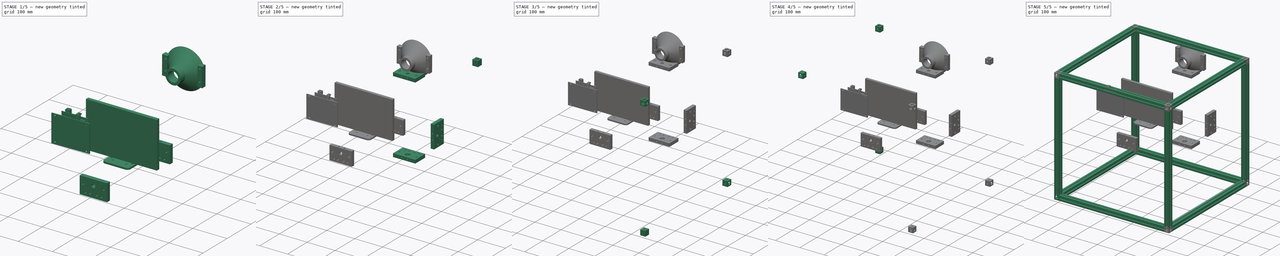
[diagram: build sequence overview — one tinted view per stage of 5, left to right]
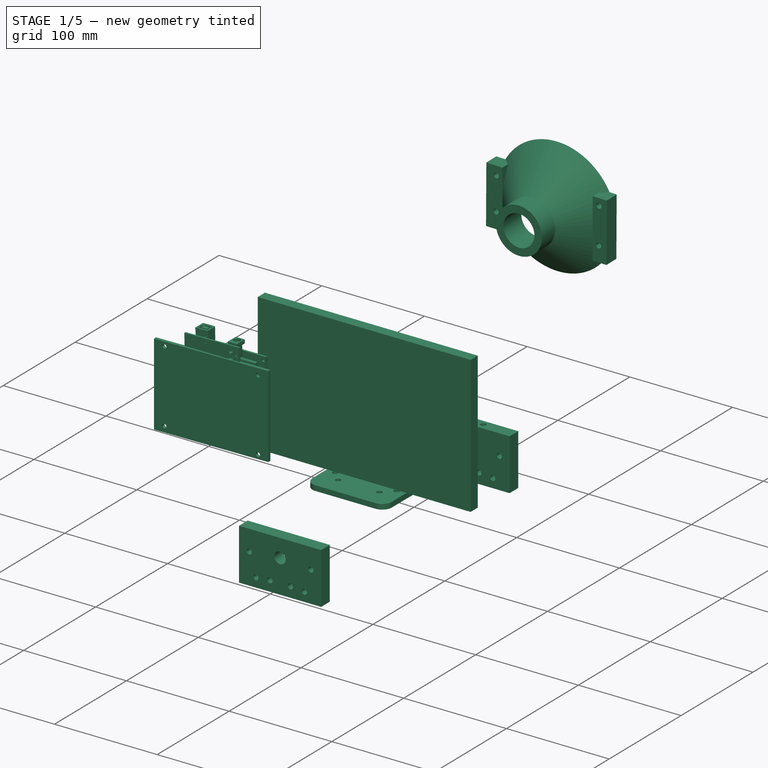
[diagram: stage 1 of 5 — iso view after this stage's code; geometry added in this stage tinted green]
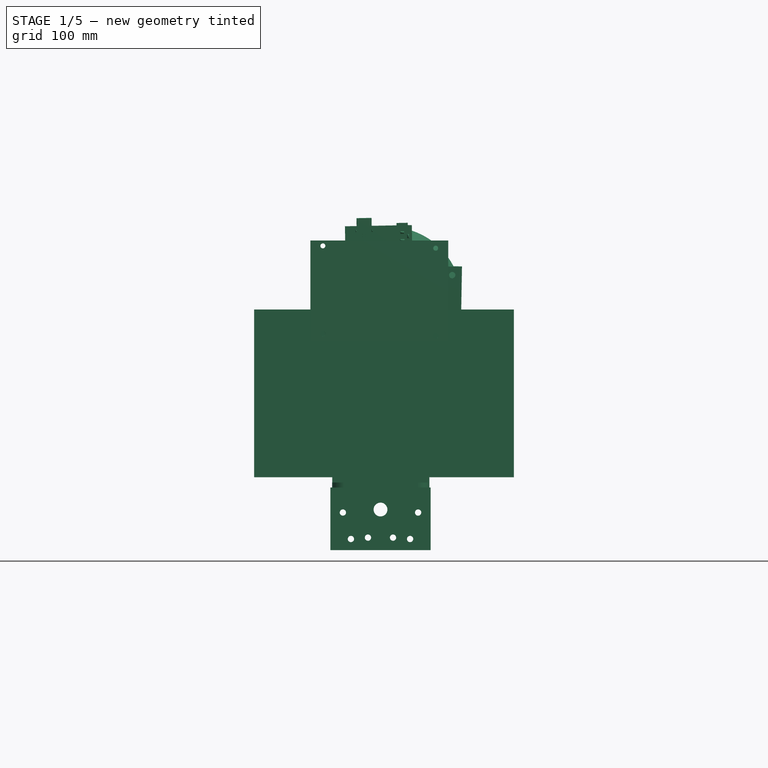
[diagram: stage 1 of 5 — front view after this stage's code; geometry added in this stage tinted green]
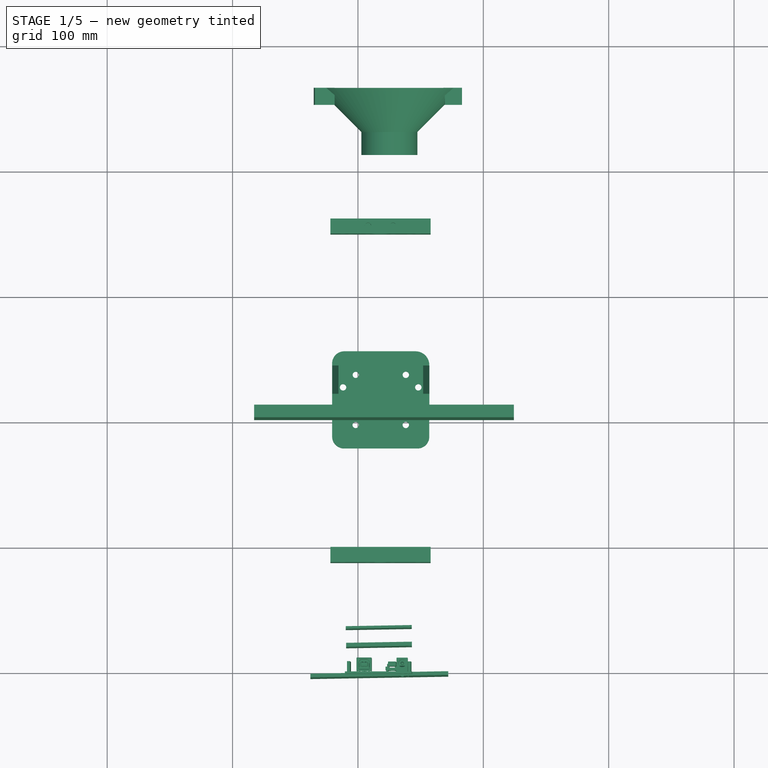
[diagram: stage 1 of 5 — top view after this stage's code; geometry added in this stage tinted green]
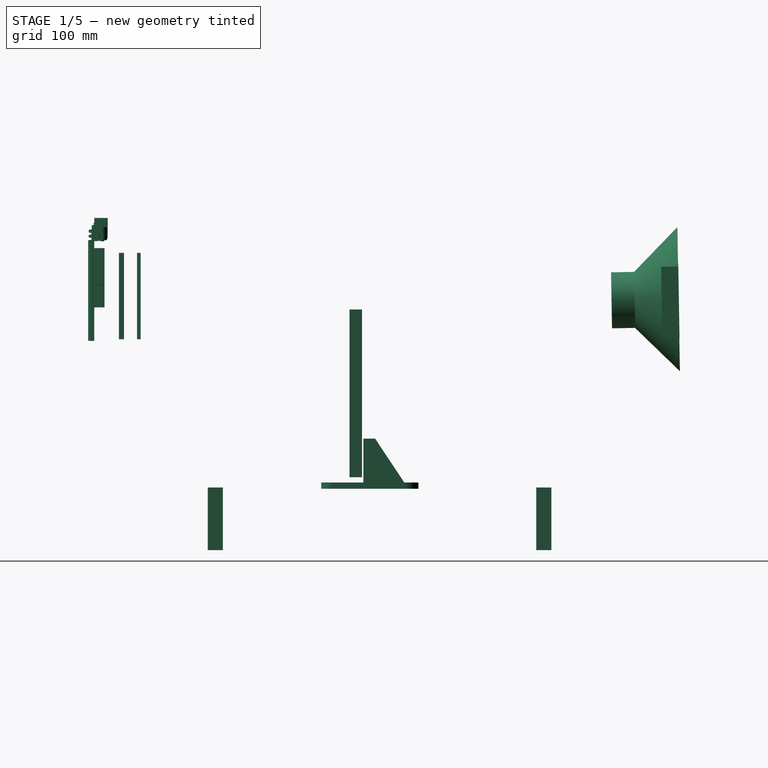
[diagram: stage 1 of 5 — right view after this stage's code; geometry added in this stage tinted green]
FCSTD DOCUMENT  (FreeCAD 0.15R4671 (Git))
Label: microscope design
License: All rights reserved
LicenseURL: http://en.wikipedia.org/wiki/All_rights_reserved
objects: Part::Feature×246, Sketcher::SketchObject×110, PartDesign::Pocket×71, App::DocumentObjectGroup×42, PartDesign::Pad×36, Part::Extrusion×3, PartDesign::Revolution×1, Image::ImagePlane×1, Part::MultiFuse×1
note: 576 computed .brp shape members not serialized (recipe doc carries the construction recipe); baked Part::Feature solids carry a one-line shape summary decoded from their .brp

FEATURE [App::DocumentObjectGroup] Group009  label="endplate003"
  Group = -> [Pad003,Pocket009,Pocket010,Pocket011]
FEATURE [Part::Feature] Part__Feature043  label="gantry assem v018"
  Placement = pos=(217.223,368.136,220.654) rot=(0,-0.707107,0.707107;3.14159rad)
  shape: bbox 77.51 x 6 x 77.52 mm, 60 faces (baked)
FEATURE [Part::Feature] Part__Feature044  label="gantry assem v019"
  Placement = pos=(247.273,368.136,206.403) rot=(0.57735,0.57735,-0.57735;4.18879rad)
  shape: bbox 7.901 x 7.62 x 9.087 mm, 13 faces (baked)
FEATURE [Part::Feature] Part__Feature045  label="gantry assem v020"
  Placement = pos=(187.273,374.486,234.903) rot=(-0.696444,0.696444,-0.17301;2.79896rad)
  shape: bbox 8 x 6.35 x 8 mm, 4 faces (baked)
FEATURE [Part::Feature] Part__Feature046  label="gantry assem v021"
  Placement = pos=(187.273,368.136,206.403) rot=(0.57735,0.57735,-0.57735;4.18879rad)
  shape: bbox 7.901 x 7.62 x 9.087 mm, 13 faces (baked)
FEATURE [Part::Feature] Part__Feature047  label="gantry assem v022"
  Placement = pos=(247.273,374.486,234.903) rot=(-0.696444,0.696444,-0.17301;2.79896rad)
  shape: bbox 8 x 6.35 x 8 mm, 4 faces (baked)
FEATURE [Part::Feature] Part__Feature048  label="gantry assem v023"
  Placement = pos=(187.273,361.886,234.903) rot=(-0.556666,-0.556666,0.616642;2.03646rad)
  shape: bbox 9.5 x 27.17 x 9.5 mm, 18 faces (baked)
FEATURE [Part::Feature] Part__Feature049  label="gantry assem v024"
  Placement = pos=(186.483,361.886,206.403) rot=(-0.556666,-0.556666,0.616642;2.03646rad)
  shape: bbox 9.5 x 27.17 x 9.5 mm, 18 faces (baked)
FEATURE [Part::Feature] Part__Feature050  label="gantry assem v025"
  Placement = pos=(246.483,361.886,206.403) rot=(-0.556666,-0.556666,0.616642;2.03646rad)
  shape: bbox 9.5 x 27.17 x 9.5 mm, 18 faces (baked)
FEATURE [Part::Feature] Part__Feature051  label="gantry assem v026"
  Placement = pos=(247.273,361.886,234.903) rot=(0.621193,0.621193,-0.477744;4.03296rad)
  shape: bbox 9.5 x 27.17 x 9.5 mm, 18 faces (baked)
FEATURE [Part::Feature] Part__Feature052  label="gantry assem v027"
  Placement = pos=(246.483,383.886,206.403) rot=(-0.962564,-0.191664,-0.191664;1.60894rad)
  shape: bbox 6 x 0.36 x 6 mm, 4 faces (baked)
FEATURE [Part::Feature] Part__Feature053  label="gantry assem v028"
  Placement = pos=(246.483,383.886,206.403) rot=(-0.962564,-0.191664,-0.191664;1.60894rad)
  shape: bbox 8.745 x 4.5 x 8.171 mm, 63 faces (baked)
FEATURE [Part::Feature] Part__Feature054  label="gantry assem v029"
  Placement = pos=(187.273,383.886,234.903) rot=(-0.962564,-0.191664,-0.191664;1.60894rad)
  shape: bbox 6 x 0.36 x 6 mm, 4 faces (baked)
FEATURE [Part::Feature] Part__Feature055  label="gantry assem v030"
  Placement = pos=(187.273,383.886,234.903) rot=(-0.962564,-0.191664,-0.191664;1.60894rad)
  shape: bbox 8.745 x 4.5 x 8.171 mm, 63 faces (baked)
FEATURE [Part::Feature] Part__Feature056  label="gantry assem v031"
  Placement = pos=(186.483,383.886,206.403) rot=(-0.962564,-0.191664,-0.191664;1.60894rad)
  shape: bbox 6 x 0.36 x 6 mm, 4 faces (baked)
FEATURE [Part::Feature] Part__Feature057  label="gantry assem v032"
  Placement = pos=(186.483,383.886,206.403) rot=(-0.962564,-0.191664,-0.191664;1.60894rad)
  shape: bbox 8.745 x 4.5 x 8.171 mm, 63 faces (baked)
FEATURE [Part::Feature] Part__Feature058  label="gantry assem v033"
  Placement = pos=(247.273,383.886,234.903) rot=(-0.962564,-0.191664,-0.191664;1.60894rad)
  shape: bbox 6 x 0.36 x 6 mm, 4 faces (baked)
FEATURE [Part::Feature] Part__Feature059  label="gantry assem v034"
  Placement = pos=(247.273,383.886,234.903) rot=(-0.962564,-0.191664,-0.191664;1.60894rad)
  shape: bbox 8.745 x 4.5 x 8.171 mm, 63 faces (baked)
FEATURE [Part::Feature] Part__Feature060  label="MINI WHEEL ASSEM016"
  Placement = pos=(187.273,379.186,234.903) rot=(0,-0.707107,0.707107;3.14159rad)
  shape: bbox 15.23 x 8.8 x 15.23 mm, 12 faces (baked)
FEATURE [Part::Feature] Part__Feature061  label="MINI WHEEL ASSEM017"
  Placement = pos=(187.273,379.686,234.903) rot=(0.57735,-0.57735,0.57735;4.18879rad)
  shape: bbox 8 x 1 x 8 mm, 4 faces (baked)
FEATURE [Part::Feature] Part__Feature062  label="MINI WHEEL ASSEM018"
  Placement = pos=(187.273,381.786,234.903) rot=(0.57735,-0.57735,0.57735;4.18879rad)
  shape: bbox 10 x 4.2 x 10 mm, 15 faces (baked)
FEATURE [Part::Feature] Part__Feature063  label="MINI WHEEL ASSEM019"
  Placement = pos=(187.273,376.586,234.903) rot=(0.639388,0.639388,-0.427043;3.94879rad)
  shape: bbox 10 x 4.2 x 10 mm, 15 faces (baked)
FEATURE [Part::Feature] Part__Feature064  label="MINI WHEEL ASSEM020"
  Placement = pos=(186.483,379.186,206.403) rot=(0,-0.707107,0.707107;3.14159rad)
  shape: bbox 15.23 x 8.8 x 15.23 mm, 12 faces (baked)
FEATURE [Part::Feature] Part__Feature065  label="MINI WHEEL ASSEM021"
  Placement = pos=(186.483,379.686,206.403) rot=(0.57735,-0.57735,0.57735;4.18879rad)
  shape: bbox 8 x 1 x 8 mm, 4 faces (baked)
FEATURE [Part::Feature] Part__Feature066  label="MINI WHEEL ASSEM022"
  Placement = pos=(186.483,381.786,206.403) rot=(0.57735,-0.57735,0.57735;4.18879rad)
  shape: bbox 10 x 4.2 x 10 mm, 15 faces (baked)
FEATURE [Part::Feature] Part__Feature067  label="MINI WHEEL ASSEM023"
  Placement = pos=(186.483,376.586,206.403) rot=(0.639388,0.639388,-0.427043;3.94879rad)
  shape: bbox 10 x 4.2 x 10 mm, 15 faces (baked)
FEATURE [Part::Feature] Part__Feature068  label="MINI WHEEL ASSEM024"
  Placement = pos=(247.273,379.186,234.903) rot=(0,-0.707107,0.707107;3.14159rad)
  shape: bbox 15.23 x 8.8 x 15.23 mm, 12 faces (baked)
FEATURE [Part::Feature] Part__Feature069  label="MINI WHEEL ASSEM025"
  Placement = pos=(247.273,379.686,234.903) rot=(0.57735,-0.57735,0.57735;4.18879rad)
  shape: bbox 8 x 1 x 8 mm, 4 faces (baked)
FEATURE [Part::Feature] Part__Feature070  label="MINI WHEEL ASSEM026"
  Placement = pos=(247.273,381.786,234.903) rot=(0.57735,-0.57735,0.57735;4.18879rad)
  shape: bbox 10 x 4.2 x 10 mm, 15 faces (baked)
FEATURE [Part::Feature] Part__Feature071  label="MINI WHEEL ASSEM027"
  Placement = pos=(247.273,376.586,234.903) rot=(0.639388,0.639388,-0.427043;3.94879rad)
  shape: bbox 10 x 4.2 x 10 mm, 15 faces (baked)
FEATURE [Part::Feature] Part__Feature072  label="MINI WHEEL ASSEM028"
  Placement = pos=(246.483,379.186,206.403) rot=(0,-0.707107,0.707107;3.14159rad)
  shape: bbox 15.23 x 8.8 x 15.23 mm, 12 faces (baked)
FEATURE [Part::Feature] Part__Feature073  label="MINI WHEEL ASSEM029"
  Placement = pos=(246.483,379.686,206.403) rot=(0.57735,-0.57735,0.57735;4.18879rad)
  shape: bbox 8 x 1 x 8 mm, 4 faces (baked)
FEATURE [Part::Feature] Part__Feature074  label="MINI WHEEL ASSEM030"
  Placement = pos=(246.483,381.786,206.403) rot=(0.57735,-0.57735,0.57735;4.18879rad)
  shape: bbox 10 x 4.2 x 10 mm, 15 faces (baked)
FEATURE [Part::Feature] Part__Feature075  label="MINI WHEEL ASSEM031"
  Placement = pos=(246.483,376.586,206.403) rot=(0.639388,0.639388,-0.427043;3.94879rad)
  shape: bbox 10 x 4.2 x 10 mm, 15 faces (baked)
FEATURE [App::DocumentObjectGroup] Group010  label="gantry assembly001"
  Group = -> [Part__Feature043,Part__Feature044,Part__Feature045,Part__Feature046,Part__Feature047,Part__Feature048,Part__Feature049,Part__Feature050,Part__Feature051,Part__Feature052,Part__Feature053,Part__Feature054,Part__Feature055,Part__Feature056,Part__Feature057,Part__Feature058,Part__Feature059,Part__Feature060,Part__Feature061,Part__Feature062,Part__Feature063,Part__Feature064,Part__Feature065,+10 more]
FEATURE [Part::Feature] Part__Feature076  label="1.5 inch Aluminum Spacer002"
  Placement = pos=(88,403,197) rot=(0,1,0;3.14159rad)
  shape: bbox 38.1 x 8 x 8 mm, 6 faces (baked)
FEATURE [Part::Feature] Part__Feature077  label="1.5 inch Aluminum Spacer003"
  Placement = pos=(88,403,245) rot=(0,1,0;3.14159rad)
  shape: bbox 38.1 x 8 x 8 mm, 6 faces (baked)
FEATURE [Part::Feature] Part__Feature078  label="5mm x 8mm Flexible Coupling007"
  Placement = pos=(85,378,220) rot=(0,1,0;1.5708rad)
  shape: bbox 3.49 x 23.97 x 24 mm, 14 faces (baked)
FEATURE [Part::Feature] Part__Feature079  label="5mm x 8mm Flexible Coupling008"
  Placement = pos=(85,378,220) rot=(0,1,0;1.5708rad)
  shape: bbox 3.49 x 23.97 x 24 mm, 10 faces (baked)
FEATURE [Part::Feature] Part__Feature080  label="5mm x 8mm Flexible Coupling009"
  Placement = pos=(85,378,220) rot=(0,1,0;1.5708rad)
  shape: bbox 3.49 x 23.97 x 24 mm, 10 faces (baked)
FEATURE [Part::Feature] Part__Feature081  label="5mm x 8mm Flexible Coupling010"
  Placement = pos=(85,378,220) rot=(0,1,0;1.5708rad)
  shape: bbox 3.67 x 23.96 x 24 mm, 10 faces (baked)
FEATURE [Part::Feature] Part__Feature082  label="5mm x 8mm Flexible Coupling011"
  Placement = pos=(85,378,220) rot=(0,1,0;1.5708rad)
  shape: bbox 9.007 x 23.97 x 24 mm, 31 faces (baked)
FEATURE [Part::Feature] Part__Feature083  label="5mm x 8mm Flexible Coupling012"
  Placement = pos=(85,378,220) rot=(0,1,0;1.5708rad)
  shape: bbox 10.64 x 23.96 x 24 mm, 31 faces (baked)
FEATURE [App::DocumentObjectGroup] Group011  label="5mm x 8mm Flexible Coupling013"
  Group = -> [Part__Feature078,Part__Feature079,Part__Feature080,Part__Feature081,Part__Feature082,Part__Feature083]
FEATURE [Part::Feature] Part__Feature084  label="Nema23Motor_part001"
  Placement = pos=(-50,320,1392) rot=(0.57735,-0.57735,-0.57735;4.18879rad)
  shape: bbox 75.2 x 61.91 x 61.91 mm, 24 faces (baked)
FEATURE [App::DocumentObjectGroup] Group012  label="Y axis linear motor"
  Group = -> [Group007,Group008,Group009,Group010,Part__Feature076,Part__Feature077,Group011,Part__Feature084]
FEATURE [Sketcher::SketchObject] Sketch018
  sketch-geometry (252):
    g0: LineSegment StartX=57.3 StartY=-18.2 StartZ=0 EndX=57.3 EndY=-16.239 EndZ=0
    g1: LineSegment StartX=57.3 StartY=-16.239 StartZ=0 EndX=53.9 EndY=-12.839 EndZ=0
    g2: LineSegment StartX=53.9 StartY=-12.839 StartZ=0 EndX=53.9 EndY=-7.161 EndZ=0
    g3: LineSegment StartX=53.9 StartY=-7.161 StartZ=0 EndX=57.3 EndY=-3.761 EndZ=0
    g4: LineSegment StartX=57.3 StartY=-3.761 StartZ=0 EndX=57.3 EndY=-1.8 EndZ=0
    g5: LineSegment StartX=57.3 StartY=-1.8 StartZ=0 EndX=60 EndY=-1.8 EndZ=0
    g6: LineSegment StartX=60 StartY=-1.8 StartZ=0 EndX=62.7 EndY=-1.8 EndZ=0
    g7: LineSegment StartX=62.7 StartY=-1.8 StartZ=0 EndX=62.7 EndY=-3.761 EndZ=0
    g8: LineSegment StartX=62.7 StartY=-3.761 StartZ=0 EndX=66.1 EndY=-7.161 EndZ=0
    g9: LineSegment StartX=66.1 StartY=-7.161 StartZ=0 EndX=66.1 EndY=-12.839 EndZ=0
    g10: LineSegment StartX=66.1 StartY=-12.839 StartZ=0 EndX=60.6708 EndY=-18.2 EndZ=0
    g11: LineSegment StartX=60.6708 StartY=-18.2 StartZ=0 EndX=60 EndY=-18.2 EndZ=0
    g12: LineSegment StartX=60 StartY=-18.2 StartZ=0 EndX=57.3 EndY=-18.2 EndZ=0
    g13: LineSegment StartX=20 StartY=-18.2 StartZ=0 EndX=19.3292 EndY=-18.2 EndZ=0
    g14: LineSegment StartX=19.3292 StartY=-18.2 StartZ=0 EndX=13.9 EndY=-12.839 EndZ=0
    g15: LineSegment StartX=13.9 StartY=-12.839 StartZ=0 EndX=13.9 EndY=-7.161 EndZ=0
    g16: LineSegment StartX=13.9 StartY=-7.161 StartZ=0 EndX=17.3 EndY=-3.761 EndZ=0
    g17: LineSegment StartX=17.3 StartY=-3.761 StartZ=0 EndX=17.3 EndY=-1.8 EndZ=0
    g18: LineSegment StartX=17.3 StartY=-1.8 StartZ=0 EndX=20 EndY=-1.8 EndZ=0
    g19: LineSegment StartX=20 StartY=-1.8 StartZ=0 EndX=22.7 EndY=-1.8 EndZ=0
    g20: LineSegment StartX=22.7 StartY=-1.8 StartZ=0 EndX=22.7 EndY=-3.761 EndZ=0
    g21: LineSegment StartX=22.7 StartY=-3.761 StartZ=0 EndX=26.1 EndY=-7.161 EndZ=0
    g22: LineSegment StartX=26.1 StartY=-7.161 StartZ=0 EndX=26.1 EndY=-12.839 EndZ=0
    g23: LineSegment StartX=26.1 StartY=-12.839 StartZ=0 EndX=22.7 EndY=-16.239 EndZ=0
    g24: LineSegment StartX=22.7 StartY=-16.239 StartZ=0 EndX=22.7 EndY=-18.2 EndZ=0
    g25: LineSegment StartX=22.7 StartY=-18.2 StartZ=0 EndX=20 EndY=-18.2 EndZ=0
    g26: ArcOfCircle CenterX=1.5 CenterY=-1.5 CenterZ=0 NormalX=0 NormalY=0 NormalZ=1 Radius=1.5 StartAngle=1.5708 EndAngle=3.14159
    g27: LineSegment StartX=5.114 StartY=0 StartZ=0 EndX=1.5 EndY=0 EndZ=0
    g28: LineSegment StartX=0 StartY=-1.5 StartZ=0 EndX=0 EndY=-5.2509 EndZ=0
    g29: LineSegment StartX=0 StartY=-5.2509 StartZ=0 EndX=1.3621 EndY=-6.613 EndZ=0
    g30: LineSegment StartX=1.3621 StartY=-6.613 StartZ=0 EndX=1.6631 EndY=-6.613 EndZ=0
    g31: LineSegment StartX=1.6631 StartY=-6.613 StartZ=0 EndX=1.6631 EndY=-4.5 EndZ=0
    g32: LineSegment StartX=1.6631 StartY=-4.5 StartZ=0 EndX=3.3021 EndY=-4.5 EndZ=0
    g33: LineSegment StartX=3.3021 StartY=-4.5 StartZ=0 EndX=6.1 EndY=-7.2979 EndZ=0
    g34: LineSegment StartX=6.1 StartY=-7.2979 StartZ=0 EndX=6.1 EndY=-12.7021 EndZ=0
    g35: LineSegment StartX=6.1 StartY=-12.7021 StartZ=0 EndX=3.3021 EndY=-15.5 EndZ=0
    g36: LineSegment StartX=3.3021 StartY=-15.5 StartZ=0 EndX=1.6631 EndY=-15.5 EndZ=0
    g37: LineSegment StartX=1.6631 StartY=-15.5 StartZ=0 EndX=1.6631 EndY=-13.387 EndZ=0
    g38: LineSegment StartX=1.6631 StartY=-13.387 StartZ=0 EndX=1.3621 EndY=-13.387 EndZ=0
    g39: LineSegment StartX=1.3621 StartY=-13.387 StartZ=0 EndX=0 EndY=-14.7491 EndZ=0
    g40: LineSegment StartX=0 StartY=-14.7491 StartZ=0 EndX=0 EndY=-25.2509 EndZ=0
    g41: LineSegment StartX=0 StartY=-25.2509 StartZ=0 EndX=1.3621 EndY=-26.613 EndZ=0
    g42: LineSegment StartX=1.3621 StartY=-26.613 StartZ=0 EndX=1.6631 EndY=-26.613 EndZ=0
    g43: LineSegment StartX=1.6631 StartY=-26.613 StartZ=0 EndX=1.6631 EndY=-24.5 EndZ=0
    g44: LineSegment StartX=1.6631 StartY=-24.5 StartZ=0 EndX=3.3021 EndY=-24.5 EndZ=0
    g45: LineSegment StartX=3.3021 StartY=-24.5 StartZ=0 EndX=6.1 EndY=-27.2979 EndZ=0
    g46: LineSegment StartX=6.1 StartY=-27.2979 StartZ=0 EndX=6.1 EndY=-32.7021 EndZ=0
    g47: LineSegment StartX=6.1 StartY=-32.7021 StartZ=0 EndX=3.3021 EndY=-35.5 EndZ=0
    g48: LineSegment StartX=3.3021 StartY=-35.5 StartZ=0 EndX=1.6631 EndY=-35.5 EndZ=0
    g49: LineSegment StartX=1.6631 StartY=-35.5 StartZ=0 EndX=1.6631 EndY=-33.387 EndZ=0
    g50: LineSegment StartX=1.6631 StartY=-33.387 StartZ=0 EndX=1.3621 EndY=-33.387 EndZ=0
    g51: LineSegment StartX=1.3621 StartY=-33.387 StartZ=0 EndX=0 EndY=-34.7491 EndZ=0
    g52: LineSegment StartX=0 StartY=-34.7491 StartZ=0 EndX=0 EndY=-38.5 EndZ=0
    g53: ArcOfCircle CenterX=1.5 CenterY=-38.5 CenterZ=0 NormalX=0 NormalY=0 NormalZ=1 Radius=1.5 StartAngle=3.14159 EndAngle=4.71239
    g54: LineSegment StartX=1.5 StartY=-40 StartZ=0 EndX=5.114 EndY=-40 EndZ=0
    g55: LineSegment StartX=5.114 StartY=-40 StartZ=0 EndX=6.613 EndY=-38.501 EndZ=0
    g56: LineSegment StartX=6.613 StartY=-38.501 StartZ=0 EndX=6.613 EndY=-38.2 EndZ=0
    g57: LineSegment StartX=6.613 StartY=-38.2 StartZ=0 EndX=4.5 EndY=-38.2 EndZ=0
    g58: LineSegment StartX=4.5 StartY=-38.2 StartZ=0 EndX=4.5 EndY=-36.561 EndZ=0
    g59: LineSegment StartX=4.5 StartY=-36.561 StartZ=0 EndX=7.161 EndY=-33.9 EndZ=0
    g60: LineSegment StartX=7.161 StartY=-33.9 StartZ=0 EndX=12.839 EndY=-33.9 EndZ=0
    g61: LineSegment StartX=12.839 StartY=-33.9 StartZ=0 EndX=15.5 EndY=-36.561 EndZ=0
    g62: LineSegment StartX=15.5 StartY=-36.561 StartZ=0 EndX=15.5 EndY=-38.2 EndZ=0
    g63: LineSegment StartX=15.5 StartY=-38.2 StartZ=0 EndX=13.387 EndY=-38.2 EndZ=0
    g64: LineSegment StartX=13.387 StartY=-38.2 StartZ=0 EndX=13.387 EndY=-38.501 EndZ=0
    g65: LineSegment StartX=13.387 StartY=-38.501 StartZ=0 EndX=14.886 EndY=-40 EndZ=0
    g66: LineSegment StartX=14.886 StartY=-40 StartZ=0 EndX=18.5 EndY=-40 EndZ=0
    g67: ArcOfCircle CenterX=18.5 CenterY=-38.5 CenterZ=0 NormalX=0 NormalY=0 NormalZ=1 Radius=1.5 StartAngle=4.71239 EndAngle=6.28319
    g68: LineSegment StartX=20 StartY=-38.5 StartZ=0 EndX=20 EndY=-34.886 EndZ=0
    g69: LineSegment StartX=20 StartY=-34.886 StartZ=0 EndX=18.501 EndY=-33.387 EndZ=0
    g70: LineSegment StartX=18.501 StartY=-33.387 StartZ=0 EndX=18.2 EndY=-33.387 EndZ=0
    g71: LineSegment StartX=18.2 StartY=-33.387 StartZ=0 EndX=18.2 EndY=-35.5 EndZ=0
    g72: LineSegment StartX=18.2 StartY=-35.5 StartZ=0 EndX=16.561 EndY=-35.5 EndZ=0
    g73: LineSegment StartX=16.561 StartY=-35.5 StartZ=0 EndX=13.9 EndY=-32.839 EndZ=0
    g74: LineSegment StartX=13.9 StartY=-32.839 StartZ=0 EndX=13.9 EndY=-27.161 EndZ=0
    g75: LineSegment StartX=13.9 StartY=-27.161 StartZ=0 EndX=16.561 EndY=-24.5 EndZ=0
    g76: LineSegment StartX=16.561 StartY=-24.5 StartZ=0 EndX=18.2 EndY=-24.5 EndZ=0
    g77: LineSegment StartX=18.2 StartY=-24.5 StartZ=0 EndX=18.2 EndY=-26.613 EndZ=0
    g78: LineSegment StartX=18.2 StartY=-26.613 StartZ=0 EndX=18.501 EndY=-26.613 EndZ=0
    g79: LineSegment StartX=18.501 StartY=-26.613 StartZ=0 EndX=20 EndY=-25.114 EndZ=0
    g80: LineSegment StartX=20 StartY=-25.114 StartZ=0 EndX=20 EndY=-20 EndZ=0
    g81: LineSegment StartX=20 StartY=-20 StartZ=0 EndX=25.114 EndY=-20 EndZ=0
    g82: LineSegment StartX=25.114 StartY=-20 StartZ=0 EndX=26.613 EndY=-18.501 EndZ=0
    g83: LineSegment StartX=26.613 StartY=-18.501 StartZ=0 EndX=26.613 EndY=-18.2 EndZ=0
    g84: LineSegment StartX=26.613 StartY=-18.2 StartZ=0 EndX=24.5 EndY=-18.2 EndZ=0
    g85: LineSegment StartX=24.5 StartY=-18.2 StartZ=0 EndX=24.5 EndY=-16.561 EndZ=0
    g86: LineSegment StartX=24.5 StartY=-16.561 StartZ=0 EndX=27.161 EndY=-13.9 EndZ=0
    g87: LineSegment StartX=27.161 StartY=-13.9 StartZ=0 EndX=32.839 EndY=-13.9 EndZ=0
    g88: LineSegment StartX=32.839 StartY=-13.9 StartZ=0 EndX=35.5 EndY=-16.561 EndZ=0
    g89: LineSegment StartX=35.5 StartY=-16.561 StartZ=0 EndX=35.5 EndY=-18.2 EndZ=0
    g90: LineSegment StartX=35.5 StartY=-18.2 StartZ=0 EndX=33.387 EndY=-18.2 EndZ=0
    g91: LineSegment StartX=33.387 StartY=-18.2 StartZ=0 EndX=33.387 EndY=-18.501 EndZ=0
    g92: LineSegment StartX=33.387 StartY=-18.501 StartZ=0 EndX=34.886 EndY=-20 EndZ=0
    g93: LineSegment StartX=34.886 StartY=-20 StartZ=0 EndX=45.114 EndY=-20 EndZ=0
    g94: LineSegment StartX=45.114 StartY=-20 StartZ=0 EndX=46.613 EndY=-18.501 EndZ=0
    g95: LineSegment StartX=46.613 StartY=-18.501 StartZ=0 EndX=46.613 EndY=-18.2 EndZ=0
    g96: LineSegment StartX=46.613 StartY=-18.2 StartZ=0 EndX=44.5 EndY=-18.2 EndZ=0
    g97: LineSegment StartX=44.5 StartY=-18.2 StartZ=0 EndX=44.5 EndY=-16.561 EndZ=0
    g98: LineSegment StartX=44.5 StartY=-16.561 StartZ=0 EndX=47.161 EndY=-13.9 EndZ=0
    g99: LineSegment StartX=47.161 StartY=-13.9 StartZ=0 EndX=52.839 EndY=-13.9 EndZ=0
    g100: LineSegment StartX=52.839 StartY=-13.9 StartZ=0 EndX=55.5 EndY=-16.561 EndZ=0
    g101: LineSegment StartX=55.5 StartY=-16.561 StartZ=0 EndX=55.5 EndY=-18.2 EndZ=0
    g102: LineSegment StartX=55.5 StartY=-18.2 StartZ=0 EndX=53.387 EndY=-18.2 EndZ=0
    g103: LineSegment StartX=53.387 StartY=-18.2 StartZ=0 EndX=53.387 EndY=-18.501 EndZ=0
    g104: LineSegment StartX=53.387 StartY=-18.501 StartZ=0 EndX=54.886 EndY=-20 EndZ=0
    g105: LineSegment StartX=54.886 StartY=-20 StartZ=0 EndX=54.8918 EndY=-20 EndZ=0
    g106: LineSegment StartX=54.8918 StartY=-20 StartZ=0 EndX=55.1918 EndY=-19.9988 EndZ=0
    g107: LineSegment StartX=55.1918 StartY=-19.9988 StartZ=0 EndX=60 EndY=-20 EndZ=0
    g108: LineSegment StartX=60 StartY=-20 StartZ=0 EndX=60 EndY=-25.114 EndZ=0
    g109: LineSegment StartX=60 StartY=-25.114 StartZ=0 EndX=61.499 EndY=-26.613 EndZ=0
    g110: LineSegment StartX=61.499 StartY=-26.613 StartZ=0 EndX=61.8 EndY=-26.613 EndZ=0
    g111: LineSegment StartX=61.8 StartY=-26.613 StartZ=0 EndX=61.8 EndY=-24.5 EndZ=0
    g112: LineSegment StartX=61.8 StartY=-24.5 StartZ=0 EndX=63.439 EndY=-24.5 EndZ=0
    g113: LineSegment StartX=63.439 StartY=-24.5 StartZ=0 EndX=66.1 EndY=-27.161 EndZ=0
    g114: LineSegment StartX=66.1 StartY=-27.161 StartZ=0 EndX=66.1 EndY=-32.839 EndZ=0
    g115: LineSegment StartX=66.1 StartY=-32.839 StartZ=0 EndX=63.439 EndY=-35.5 EndZ=0
    g116: LineSegment StartX=63.439 StartY=-35.5 StartZ=0 EndX=61.8 EndY=-35.5 EndZ=0
    g117: LineSegment StartX=61.8 StartY=-35.5 StartZ=0 EndX=61.8 EndY=-33.387 EndZ=0
    g118: LineSegment StartX=61.8 StartY=-33.387 StartZ=0 EndX=61.499 EndY=-33.387 EndZ=0
    g119: LineSegment StartX=61.499 StartY=-33.387 StartZ=0 EndX=60 EndY=-34.886 EndZ=0
    g120: LineSegment StartX=60 StartY=-34.886 StartZ=0 EndX=60 EndY=-38.5 EndZ=0
    g121: ArcOfCircle CenterX=61.5 CenterY=-38.5 CenterZ=0 NormalX=0 NormalY=0 NormalZ=1 Radius=1.5 StartAngle=3.14159 EndAngle=4.71239
    g122: LineSegment StartX=61.5 StartY=-40 StartZ=0 EndX=65.114 EndY=-40 EndZ=0
    g123: LineSegment StartX=65.114 StartY=-40 StartZ=0 EndX=66.613 EndY=-38.501 EndZ=0
    g124: LineSegment StartX=66.613 StartY=-38.501 StartZ=0 EndX=66.613 EndY=-38.2 EndZ=0
    g125: LineSegment StartX=66.613 StartY=-38.2 StartZ=0 EndX=64.5 EndY=-38.2 EndZ=0
    g126: LineSegment StartX=64.5 StartY=-38.2 StartZ=0 EndX=64.5 EndY=-36.561 EndZ=0
    g127: LineSegment StartX=64.5 StartY=-36.561 StartZ=0 EndX=67.161 EndY=-33.9 EndZ=0
    g128: LineSegment StartX=67.161 StartY=-33.9 StartZ=0 EndX=72.839 EndY=-33.9 EndZ=0
    g129: LineSegment StartX=72.839 StartY=-33.9 StartZ=0 EndX=75.5 EndY=-36.561 EndZ=0
    g130: LineSegment StartX=75.5 StartY=-36.561 StartZ=0 EndX=75.5 EndY=-38.2 EndZ=0
    g131: LineSegment StartX=75.5 StartY=-38.2 StartZ=0 EndX=73.387 EndY=-38.2 EndZ=0
    g132: LineSegment StartX=73.387 StartY=-38.2 StartZ=0 EndX=73.387 EndY=-38.501 EndZ=0
    g133: LineSegment StartX=73.387 StartY=-38.501 StartZ=0 EndX=74.886 EndY=-40 EndZ=0
    g134: LineSegment StartX=74.886 StartY=-40 StartZ=0 EndX=78.5 EndY=-40 EndZ=0
    g135: ArcOfCircle CenterX=78.5 CenterY=-38.5 CenterZ=0 NormalX=0 NormalY=0 NormalZ=1 Radius=1.5 StartAngle=4.71239 EndAngle=6.28319
    g136: LineSegment StartX=80 StartY=-38.5 StartZ=0 EndX=80 EndY=-34.7491 EndZ=0
    g137: LineSegment StartX=80 StartY=-34.7491 StartZ=0 EndX=78.6379 EndY=-33.387 EndZ=0
    g138: LineSegment StartX=78.6379 StartY=-33.387 StartZ=0 EndX=78.3369 EndY=-33.387 EndZ=0
    g139: LineSegment StartX=78.3369 StartY=-33.387 StartZ=0 EndX=78.3369 EndY=-35.5 EndZ=0
    g140: LineSegment StartX=78.3369 StartY=-35.5 StartZ=0 EndX=76.6979 EndY=-35.5 EndZ=0
    g141: LineSegment StartX=76.6979 StartY=-35.5 StartZ=0 EndX=73.9 EndY=-32.7021 EndZ=0
    g142: LineSegment StartX=73.9 StartY=-32.7021 StartZ=0 EndX=73.9 EndY=-27.2979 EndZ=0
    g143: LineSegment StartX=73.9 StartY=-27.2979 StartZ=0 EndX=76.6979 EndY=-24.5 EndZ=0
    g144: LineSegment StartX=76.6979 StartY=-24.5 StartZ=0 EndX=78.3369 EndY=-24.5 EndZ=0
    g145: LineSegment StartX=78.3369 StartY=-24.5 StartZ=0 EndX=78.3369 EndY=-26.613 EndZ=0
    g146: LineSegment StartX=78.3369 StartY=-26.613 StartZ=0 EndX=78.6379 EndY=-26.613 EndZ=0
    g147: LineSegment StartX=78.6379 StartY=-26.613 StartZ=0 EndX=80 EndY=-25.2509 EndZ=0
    g148: LineSegment StartX=80 StartY=-25.2509 StartZ=0 EndX=80 EndY=-14.7491 EndZ=0
    g149: LineSegment StartX=80 StartY=-14.7491 StartZ=0 EndX=78.6379 EndY=-13.387 EndZ=0
    g150: LineSegment StartX=78.6379 StartY=-13.387 StartZ=0 EndX=78.3369 EndY=-13.387 EndZ=0
    g151: LineSegment StartX=78.3369 StartY=-13.387 StartZ=0 EndX=78.3369 EndY=-15.5 EndZ=0
    g152: LineSegment StartX=78.3369 StartY=-15.5 StartZ=0 EndX=76.6979 EndY=-15.5 EndZ=0
    g153: LineSegment StartX=76.6979 StartY=-15.5 StartZ=0 EndX=73.9 EndY=-12.7021 EndZ=0
    g154: LineSegment StartX=73.9 StartY=-12.7021 StartZ=0 EndX=73.9 EndY=-7.2979 EndZ=0
    g155: LineSegment StartX=73.9 StartY=-7.2979 StartZ=0 EndX=76.6979 EndY=-4.5 EndZ=0
    g156: LineSegment StartX=76.6979 StartY=-4.5 StartZ=0 EndX=78.3369 EndY=-4.5 EndZ=0
    g157: LineSegment StartX=78.3369 StartY=-4.5 StartZ=0 EndX=78.3369 EndY=-6.613 EndZ=0
    g158: LineSegment StartX=78.3369 StartY=-6.613 StartZ=0 EndX=78.6379 EndY=-6.613 EndZ=0
    g159: LineSegment StartX=78.6379 StartY=-6.613 StartZ=0 EndX=80 EndY=-5.2509 EndZ=0
    g160: LineSegment StartX=80 StartY=-5.2509 StartZ=0 EndX=80 EndY=-1.5 EndZ=0
    g161: ArcOfCircle CenterX=78.5 CenterY=-1.5 CenterZ=0 NormalX=0 NormalY=0 NormalZ=1 Radius=1.5 StartAngle=0 EndAngle=1.5708
    g162: LineSegment StartX=78.5 StartY=0 StartZ=0 EndX=74.886 EndY=0 EndZ=0
    g163: LineSegment StartX=74.886 StartY=0 StartZ=0 EndX=73.387 EndY=-1.499 EndZ=0
    g164: LineSegment StartX=73.387 StartY=-1.499 StartZ=0 EndX=73.387 EndY=-1.8 EndZ=0
    g165: LineSegment StartX=73.387 StartY=-1.8 StartZ=0 EndX=75.5 EndY=-1.8 EndZ=0
    g166: LineSegment StartX=75.5 StartY=-1.8 StartZ=0 EndX=75.5 EndY=-3.439 EndZ=0
    g167: LineSegment StartX=75.5 StartY=-3.439 StartZ=0 EndX=72.839 EndY=-6.1 EndZ=0
    g168: LineSegment StartX=72.839 StartY=-6.1 StartZ=0 EndX=67.161 EndY=-6.1 EndZ=0
    g169: LineSegment StartX=67.161 StartY=-6.1 StartZ=0 EndX=64.5 EndY=-3.439 EndZ=0
    g170: LineSegment StartX=64.5 StartY=-3.439 StartZ=0 EndX=64.5 EndY=-1.8 EndZ=0
    g171: LineSegment StartX=64.5 StartY=-1.8 StartZ=0 EndX=66.613 EndY=-1.8 EndZ=0
    g172: LineSegment StartX=66.613 StartY=-1.8 StartZ=0 EndX=66.613 EndY=-1.499 EndZ=0
    g173: LineSegment StartX=66.613 StartY=-1.499 StartZ=0 EndX=65.114 EndY=0 EndZ=0
    g174: LineSegment StartX=65.114 StartY=0 StartZ=0 EndX=54.886 EndY=0 EndZ=0
    g175: LineSegment StartX=54.886 StartY=0 StartZ=0 EndX=53.387 EndY=-1.499 EndZ=0
    g176: LineSegment StartX=53.387 StartY=-1.499 StartZ=0 EndX=53.387 EndY=-1.8 EndZ=0
    g177: LineSegment StartX=53.387 StartY=-1.8 StartZ=0 EndX=55.5 EndY=-1.8 EndZ=0
    g178: LineSegment StartX=55.5 StartY=-1.8 StartZ=0 EndX=55.5 EndY=-3.439 EndZ=0
    g179: LineSegment StartX=55.5 StartY=-3.439 StartZ=0 EndX=52.839 EndY=-6.1 EndZ=0
    g180: LineSegment StartX=52.839 StartY=-6.1 StartZ=0 EndX=47.161 EndY=-6.1 EndZ=0
    g181: LineSegment StartX=47.161 StartY=-6.1 StartZ=0 EndX=44.5 EndY=-3.439 EndZ=0
    g182: LineSegment StartX=44.5 StartY=-3.439 StartZ=0 EndX=44.5 EndY=-1.8 EndZ=0
    g183: LineSegment StartX=44.5 StartY=-1.8 StartZ=0 EndX=46.613 EndY=-1.8 EndZ=0
    g184: LineSegment StartX=46.613 StartY=-1.8 StartZ=0 EndX=46.613 EndY=-1.499 EndZ=0
    g185: LineSegment StartX=46.613 StartY=-1.499 StartZ=0 EndX=45.114 EndY=0 EndZ=0
    g186: LineSegment StartX=45.114 StartY=0 StartZ=0 EndX=34.886 EndY=0 EndZ=0
    g187: LineSegment StartX=34.886 StartY=0 StartZ=0 EndX=33.387 EndY=-1.499 EndZ=0
    g188: LineSegment StartX=33.387 StartY=-1.499 StartZ=0 EndX=33.387 EndY=-1.8 EndZ=0
    g189: LineSegment StartX=33.387 StartY=-1.8 StartZ=0 EndX=35.5 EndY=-1.8 EndZ=0
    g190: LineSegment StartX=35.5 StartY=-1.8 StartZ=0 EndX=35.5 EndY=-3.439 EndZ=0
    g191: LineSegment StartX=35.5 StartY=-3.439 StartZ=0 EndX=32.839 EndY=-6.1 EndZ=0
    g192: LineSegment StartX=32.839 StartY=-6.1 StartZ=0 EndX=27.161 EndY=-6.1 EndZ=0
    g193: LineSegment StartX=27.161 StartY=-6.1 StartZ=0 EndX=24.5 EndY=-3.439 EndZ=0
    g194: LineSegment StartX=24.5 StartY=-3.439 StartZ=0 EndX=24.5 EndY=-1.8 EndZ=0
    g195: LineSegment StartX=24.5 StartY=-1.8 StartZ=0 EndX=26.613 EndY=-1.8 EndZ=0
    g196: LineSegment StartX=26.613 StartY=-1.8 StartZ=0 EndX=26.613 EndY=-1.499 EndZ=0
    g197: LineSegment StartX=26.613 StartY=-1.499 StartZ=0 EndX=25.114 EndY=0 EndZ=0
    g198: LineSegment StartX=25.114 StartY=0 StartZ=0 EndX=14.886 EndY=0 EndZ=0
    g199: LineSegment StartX=14.886 StartY=0 StartZ=0 EndX=13.387 EndY=-1.499 EndZ=0
    g200: LineSegment StartX=13.387 StartY=-1.499 StartZ=0 EndX=13.387 EndY=-1.8 EndZ=0
    g201: LineSegment StartX=13.387 StartY=-1.8 StartZ=0 EndX=15.5 EndY=-1.8 EndZ=0
    g202: LineSegment StartX=15.5 StartY=-1.8 StartZ=0 EndX=15.5 EndY=-3.439 EndZ=0
    g203: LineSegment StartX=15.5 StartY=-3.439 StartZ=0 EndX=12.839 EndY=-6.1 EndZ=0
    g204: LineSegment StartX=12.839 StartY=-6.1 StartZ=0 EndX=7.161 EndY=-6.1 EndZ=0
    g205: LineSegment StartX=7.161 StartY=-6.1 StartZ=0 EndX=4.5 EndY=-3.439 EndZ=0
    g206: LineSegment StartX=4.5 StartY=-3.439 StartZ=0 EndX=4.5 EndY=-1.8 EndZ=0
    g207: LineSegment StartX=4.5 StartY=-1.8 StartZ=0 EndX=6.613 EndY=-1.8 EndZ=0
    g208: LineSegment StartX=6.613 StartY=-1.8 StartZ=0 EndX=6.613 EndY=-1.499 EndZ=0
    g209: LineSegment StartX=6.613 StartY=-1.499 StartZ=0 EndX=5.114 EndY=0 EndZ=0
    g210: Circle CenterX=10 CenterY=-30 CenterZ=0 NormalX=0 NormalY=0 NormalZ=-1 Radius=2.1
    g211: Circle CenterX=70 CenterY=-30 CenterZ=0 NormalX=0 NormalY=0 NormalZ=-1 Radius=2.1
    g212: Circle CenterX=70 CenterY=-10 CenterZ=0 NormalX=0 NormalY=0 NormalZ=-1 Radius=2.1
    g213: Circle CenterX=10 CenterY=-10 CenterZ=0 NormalX=0 NormalY=0 NormalZ=-1 Radius=2.1
    g214: Circle CenterX=30 CenterY=-10 CenterZ=0 NormalX=0 NormalY=0 NormalZ=-1 Radius=2.1
    g215: Circle CenterX=50 CenterY=-10 CenterZ=0 NormalX=0 NormalY=0 NormalZ=-1 Radius=2.1
    g216: LineSegment StartX=42.7156 StartY=-3.79115 StartZ=0 EndX=46.1296 EndY=-7.17706 EndZ=0
    g217: LineSegment StartX=46.1296 StartY=-7.17706 StartZ=0 EndX=46.1531 EndY=-12.855 EndZ=0
    g218: LineSegment StartX=46.1531 StartY=-12.855 StartZ=0 EndX=42.7672 EndY=-16.269 EndZ=0
    g219: LineSegment StartX=42.7672 StartY=-16.269 StartZ=0 EndX=42.7753 EndY=-18.23 EndZ=0
    g220: LineSegment StartX=42.7753 StartY=-18.23 StartZ=0 EndX=39.9247 EndY=-18.2412 EndZ=0
    g221: LineSegment StartX=39.9247 StartY=-18.2412 StartZ=0 EndX=37.2247 EndY=-18.23 EndZ=0
    g222: LineSegment StartX=37.2247 StartY=-18.23 StartZ=0 EndX=37.2328 EndY=-16.269 EndZ=0
    g223: LineSegment StartX=37.2328 StartY=-16.269 StartZ=0 EndX=33.8469 EndY=-12.855 EndZ=0
    g224: LineSegment StartX=33.8469 StartY=-12.855 StartZ=0 EndX=33.8704 EndY=-7.17706 EndZ=0
    g225: LineSegment StartX=33.8704 StartY=-7.17706 StartZ=0 EndX=37.2844 EndY=-3.79115 EndZ=0
    g226: LineSegment StartX=37.2844 StartY=-3.79115 StartZ=0 EndX=37.2925 EndY=-1.83017 EndZ=0
    g227: LineSegment StartX=37.2925 StartY=-1.83017 StartZ=0 EndX=39.9925 EndY=-1.84133 EndZ=0
    g228: LineSegment StartX=39.9925 StartY=-1.84133 StartZ=0 EndX=42.7075 EndY=-1.83017 EndZ=0
    g229: LineSegment StartX=42.7075 StartY=-1.83017 StartZ=0 EndX=42.7156 EndY=-3.79115 EndZ=0
    g230: LineSegment StartX=15.939 StartY=-23 StartZ=0 EndX=12.839 EndY=-26.1 EndZ=0
    g231: LineSegment StartX=12.839 StartY=-26.1 StartZ=0 EndX=7.161 EndY=-26.1 EndZ=0
    g232: LineSegment StartX=7.161 StartY=-26.1 StartZ=0 EndX=4.061 EndY=-23 EndZ=0
    g233: LineSegment StartX=4.061 StartY=-23 StartZ=0 EndX=1.6631 EndY=-23 EndZ=0
    g234: LineSegment StartX=1.6631 StartY=-23 StartZ=0 EndX=1.6631 EndY=-17 EndZ=0
    g235: LineSegment StartX=1.6631 StartY=-17 StartZ=0 EndX=4.061 EndY=-17 EndZ=0
    g236: LineSegment StartX=4.061 StartY=-17 StartZ=0 EndX=7.161 EndY=-13.9 EndZ=0
    g237: LineSegment StartX=7.161 StartY=-13.9 StartZ=0 EndX=12.839 EndY=-13.9 EndZ=0
    g238: LineSegment StartX=12.839 StartY=-13.9 StartZ=0 EndX=18.2 EndY=-19.261 EndZ=0
    g239: LineSegment StartX=18.2 StartY=-19.261 StartZ=0 EndX=18.2 EndY=-23 EndZ=0
    g240: LineSegment StartX=18.2 StartY=-23 StartZ=0 EndX=15.939 EndY=-23 EndZ=0
    g241: LineSegment StartX=78.3369 StartY=-23 StartZ=0 EndX=75.939 EndY=-23 EndZ=0
    g242: LineSegment StartX=75.939 StartY=-23 StartZ=0 EndX=72.839 EndY=-26.1 EndZ=0
    g243: LineSegment StartX=72.839 StartY=-26.1 StartZ=0 EndX=67.161 EndY=-26.1 EndZ=0
    g244: LineSegment StartX=67.161 StartY=-26.1 StartZ=0 EndX=64.061 EndY=-23 EndZ=0
    g245: LineSegment StartX=64.061 StartY=-23 StartZ=0 EndX=61.8 EndY=-23 EndZ=0
    g246: LineSegment StartX=61.8 StartY=-23 StartZ=0 EndX=61.8 EndY=-19.261 EndZ=0
    g247: LineSegment StartX=61.8 StartY=-19.261 StartZ=0 EndX=67.161 EndY=-13.9 EndZ=0
    g248: LineSegment StartX=67.161 StartY=-13.9 StartZ=0 EndX=72.839 EndY=-13.9 EndZ=0
    g249: LineSegment StartX=72.839 StartY=-13.9 StartZ=0 EndX=75.939 EndY=-17 EndZ=0
    g250: LineSegment StartX=75.939 StartY=-17 StartZ=0 EndX=78.3369 EndY=-17 EndZ=0
    g251: LineSegment StartX=78.3369 StartY=-17 StartZ=0 EndX=78.3369 EndY=-23 EndZ=0
FEATURE [Part::Extrusion] Extrude002
  Base = -> Sketch018
  Dir = (0,0,250)
  Placement = pos=(178,100,200) rot=(-1,0,0;1.5708rad)
  Solid = false
FEATURE [App::DocumentObjectGroup] Group013  label="profile002"
  Group = -> [Extrude002]
FEATURE [Sketcher::SketchObject] Sketch019
  Placement = pos=(258,88,200) rot=(0,0.707107,0.707107;3.14159rad)
  sketch-geometry (11):
    g0: LineSegment StartX=0 StartY=0 StartZ=0 EndX=80 EndY=0 EndZ=0
    g1: LineSegment StartX=80 StartY=0 StartZ=0 EndX=80 EndY=50 EndZ=0
    g2: LineSegment StartX=80 StartY=50 StartZ=0 EndX=0 EndY=50 EndZ=0
    g3: LineSegment StartX=0 StartY=50 StartZ=0 EndX=0 EndY=0 EndZ=0
    g4: Circle CenterX=10 CenterY=30 CenterZ=0 NormalX=0 NormalY=0 NormalZ=1 Radius=2.5
    g5: Circle CenterX=30 CenterY=10 CenterZ=0 NormalX=0 NormalY=0 NormalZ=1 Radius=2.5
    g6: Circle CenterX=16.4 CenterY=8.9 CenterZ=0 NormalX=0 NormalY=0 NormalZ=1 Radius=2.5
    g7: Circle CenterX=50 CenterY=10 CenterZ=0 NormalX=0 NormalY=0 NormalZ=1 Radius=2.5
    g8: Circle CenterX=63.6 CenterY=8.9 CenterZ=0 NormalX=0 NormalY=0 NormalZ=1 Radius=2.5
    g9: Circle CenterX=70 CenterY=30 CenterZ=0 NormalX=0 NormalY=0 NormalZ=1 Radius=2.5
    g10: Circle CenterX=40 CenterY=32.4 CenterZ=0 NormalX=0 NormalY=0 NormalZ=1 Radius=5.5
  constraints (34):
    c: Coincident(g0,g1)
    c: Coincident(g1,g2)
    c: Coincident(g2,g3)
    c: Coincident(g3,g0)
    c: Horizontal(g0)
    c: Horizontal(g2)
    c: Vertical(g1)
    c: Vertical(g3)
    c: Coincident(g0,g-1)
    c: Radius(g4) = 2.5
    c: Radius(g9) = 2.5
    c: Radius(g8) = 2.5
    c: Radius(g7) = 2.5
    c: Radius(g5) = 2.5
    c: Radius(g6) = 2.5
    c: Radius(g10) = 5.5
    c: Equal(g0,g2)
    c: Equal(g3,g1)
    c: DistanceX(g2) = -80
    c: DistanceY(g3) = -50
    c: DistanceX(g1,g9) = -10
    c: DistanceY(g8,g0) = -8.9
    c: DistanceX(g8,g0) = 16.4
    c: DistanceX(g7,g0) = 30
    c: DistanceY(g7,g0) = -10
    c: DistanceX(g-1,g5) = 30
    c: DistanceY(g-1,g5) = 10
    c: DistanceY(g-1,g6) = 8.9
    c: DistanceX(g-1,g6) = 16.4
    c: DistanceX(g10,g2) = -40
    c: DistanceY(g10,g2) = 17.6
    c: DistanceY(g9,g0) = -30
    c: DistanceY(g-1,g4) = 30
    c: DistanceX(g-1,g4) = 10
FEATURE [PartDesign::Pad] Pad004
  Length = 12
  Length2 = 100
  Placement = pos=(258,88,200) rot=(0,0.707107,0.707107;3.14159rad)
  Sketch = -> Sketch019
  Type = 0
FEATURE [App::DocumentObjectGroup] Group014  label="endplate004"
  Group = -> [Pad004,Pocket012,Pocket013,Pocket014]
FEATURE [Sketcher::SketchObject] Sketch023
  Placement = pos=(178,362,200) rot=(1,0,0;1.5708rad)
  sketch-geometry (11):
    g0: LineSegment StartX=0 StartY=0 StartZ=0 EndX=80 EndY=0 EndZ=0
    g1: LineSegment StartX=80 StartY=0 StartZ=0 EndX=80 EndY=50 EndZ=0
    g2: LineSegment StartX=80 StartY=50 StartZ=0 EndX=0 EndY=50 EndZ=0
    g3: LineSegment StartX=0 StartY=50 StartZ=0 EndX=0 EndY=0 EndZ=0
    g4: Circle CenterX=10 CenterY=30 CenterZ=0 NormalX=0 NormalY=0 NormalZ=1 Radius=2.5
    g5: Circle CenterX=30 CenterY=10 CenterZ=0 NormalX=0 NormalY=0 NormalZ=1 Radius=2.5
    g6: Circle CenterX=16.4 CenterY=8.9 CenterZ=0 NormalX=0 NormalY=0 NormalZ=1 Radius=2.5
    g7: Circle CenterX=50 CenterY=10 CenterZ=0 NormalX=0 NormalY=0 NormalZ=1 Radius=2.5
    g8: Circle CenterX=63.6 CenterY=8.9 CenterZ=0 NormalX=0 NormalY=0 NormalZ=1 Radius=2.5
    g9: Circle CenterX=70 CenterY=30 CenterZ=0 NormalX=0 NormalY=0 NormalZ=1 Radius=2.5
    g10: Circle CenterX=40 CenterY=32.4 CenterZ=0 NormalX=0 NormalY=0 NormalZ=1 Radius=5.5
  constraints (34):
    c: Coincident(g0,g1)
    c: Coincident(g1,g2)
    c: Coincident(g2,g3)
    c: Coincident(g3,g0)
    c: Horizontal(g0)
    c: Horizontal(g2)
    c: Vertical(g1)
    c: Vertical(g3)
    c: Coincident(g0,g-1)
    c: Radius(g4) = 2.5
    c: Radius(g9) = 2.5
    c: Radius(g8) = 2.5
    c: Radius(g7) = 2.5
    c: Radius(g5) = 2.5
    c: Radius(g6) = 2.5
    c: Radius(g10) = 5.5
    c: Equal(g0,g2)
    c: Equal(g3,g1)
    c: DistanceX(g2) = -80
    c: DistanceY(g3) = -50
    c: DistanceX(g1,g9) = -10
    c: DistanceY(g8,g0) = -8.9
    c: DistanceX(g8,g0) = 16.4
    c: DistanceX(g7,g0) = 30
    c: DistanceY(g7,g0) = -10
    c: DistanceX(g-1,g5) = 30
    c: DistanceY(g-1,g5) = 10
    c: DistanceY(g-1,g6) = 8.9
    c: DistanceX(g-1,g6) = 16.4
    c: DistanceX(g10,g2) = -40
    c: DistanceY(g10,g2) = 17.6
    c: DistanceY(g9,g0) = -30
    c: DistanceY(g-1,g4) = 30
    c: DistanceX(g-1,g4) = 10
FEATURE [PartDesign::Pad] Pad005
  Length = 12
  Length2 = 100
  Placement = pos=(178,362,200) rot=(1,0,0;1.5708rad)
  Sketch = -> Sketch023
  Type = 0
FEATURE [Sketcher::SketchObject] Sketch024
  Placement = pos=(178,362,250) rot=(0,0,1;3.14159rad)
  Support = -> Pad005 [Face3]
  sketch-geometry (2):
    g0: Circle CenterX=-30.0338 CenterY=5.85009 CenterZ=0 NormalX=0 NormalY=0 NormalZ=1 Radius=2.5
    g1: Circle CenterX=-50.0038 CenterY=5.78884 CenterZ=0 NormalX=0 NormalY=0 NormalZ=1 Radius=2.5
  constraints (2):
    c: Radius(g0) = 2.5
    c: Radius(g1) = 2.5
FEATURE [PartDesign::Pocket] Pocket015
  Length = 11
  Placement = pos=(178,362,200) rot=(1,0,0;1.5708rad)
  Sketch = -> Sketch024
  Type = 0
FEATURE [Sketcher::SketchObject] Sketch025
  Placement = pos=(178,350,200) rot=(1,0,0;1.5708rad)
  Support = -> Pocket015 [Face5]
  sketch-geometry (1):
    g0: Circle CenterX=40 CenterY=32.4 CenterZ=0 NormalX=0 NormalY=0 NormalZ=1 Radius=8.05
  constraints (3):
    c: Radius(g0) = 8.05
    c: DistanceY(g-1,g0) = 32.4
    c: DistanceX(g-1,g0) = 40
FEATURE [PartDesign::Pocket] Pocket016
  Length = 4.5
  Placement = pos=(178,362,200) rot=(1,0,0;1.5708rad)
  Sketch = -> Sketch025
  Type = 0
FEATURE [Sketcher::SketchObject] Sketch026
  Placement = pos=(178,362,200) rot=(-1,0,0;1.5708rad)
  Support = -> Pocket016 [Face4]
  sketch-geometry (4):
    g0: Circle CenterX=10 CenterY=-30 CenterZ=0 NormalX=0 NormalY=0 NormalZ=1 Radius=4.6
    g1: Circle CenterX=70 CenterY=-30 CenterZ=0 NormalX=0 NormalY=0 NormalZ=1 Radius=4.62459
    g2: Circle CenterX=30 CenterY=-10 CenterZ=0 NormalX=0 NormalY=0 NormalZ=1 Radius=4.58345
    g3: Circle CenterX=50 CenterY=-10 CenterZ=0 NormalX=0 NormalY=0 NormalZ=1 Radius=4.6246
  constraints (9):
    c: Radius(g0) = 4.6
    c: DistanceX(g-1,g2) = 30
    c: DistanceY(g-1,g2) = -10
    c: DistanceX(g-1,g3) = 50
    c: DistanceY(g-1,g3) = -10
    c: DistanceY(g-1,g0) = -30
    c: DistanceX(g-1,g0) = 10
    c: DistanceY(g-1,g1) = -30
    c: DistanceX(g-1,g1) = 70
FEATURE [PartDesign::Pocket] Pocket017
  Length = 1.55
  Placement = pos=(178,362,200) rot=(1,0,0;1.5708rad)
  Sketch = -> Sketch026
  Type = 0
FEATURE [App::DocumentObjectGroup] Group025  label="aluminum_extrusion_20mm_corner_cube7"
  Group = -> [Pad025,Pocket060,Pocket061,Pocket062,Pocket063,Pocket064,Pocket065]
FEATURE [App::DocumentObjectGroup] Group026  label="frame"
  Group = -> [Pad006,Pad007,Pad008,Pad009,Pad010,Pad011,Pad012,Pad013,Pad014,Pad015,Pad016,Pad017,Group019,Group020,Group021,Group022,Group023,Group005,Group024,Group025]
FEATURE [App::DocumentObjectGroup] Group027  label="XYZ assembly"
  Group = -> [Group006,Group012,Group018]
FEATURE [Sketcher::SketchObject] Sketch095
  Placement = pos=(238.863,436.141,334.496) rot=(-0.006224,0.713237,-0.700896;3.15383rad)
  sketch-geometry (2):
    g0: Circle CenterX=14.9157 CenterY=-64.9773 CenterZ=0 NormalX=0 NormalY=0 NormalZ=1 Radius=15.1
    g1: Circle CenterX=14.9157 CenterY=-64.9773 CenterZ=0 NormalX=0 NormalY=0 NormalZ=1 Radius=22.3374
  constraints (2):
    c: Radius(g0) = 15.1
    c: Coincident(g1,g0)
FEATURE [PartDesign::Pad] Pad026  label="tube holder"
  Length = 25
  Length2 = 100
  Placement = pos=(238.863,436.141,334.496) rot=(-0.006224,0.713237,-0.700896;3.15383rad)
  Sketch = -> Sketch095
  Type = 0
FEATURE [App::DocumentObjectGroup] Group028  label="microscope tube holder"
  Group = -> [Pad026]
FEATURE [Part::Feature] Part__Feature127  label="Thorlabs camera"
  Placement = pos=(225,450,400) rot=(0.573962,0.584068,-0.573962;2.11449rad)
  shape: bbox 51.81 x 31.13 x 50.06 mm, 629 faces (baked)
FEATURE [Part::Feature] Part__Feature128  label="microscope objective"
  Placement = pos=(191.534,304.483,371.036) rot=(0.573962,0.584068,-0.573962;2.11449rad)
  shape: bbox 24 x 31.19 x 24.38 mm, 446 faces, 0 solids (baked)
FEATURE [Part::Feature] Part__Feature129  label="microscope tube"
  Placement = pos=(225,324.019,397.801) rot=(-0.006224,0.713237,-0.700896;3.15383rad)
  shape: bbox 30 x 116 x 31.94 mm, 18 faces (baked)
FEATURE [App::DocumentObjectGroup] Group029  label="optical assembly"
  Group = -> [Part__Feature129,Part__Feature128]
FEATURE [Sketcher::SketchObject] Sketch096
  Placement = pos=(225,450,400) rot=(0.999962,7.6e-05,-0.008727;3.15904rad)
  sketch-geometry (4):
    g0: LineSegment StartX=-15.0029 StartY=28.9731 StartZ=0 EndX=-57.514 EndY=-13.538 EndZ=0
    g1: LineSegment StartX=-57.514 StartY=-13.538 StartZ=0 EndX=-43.5665 EndY=-13.538 EndZ=0
    g2: LineSegment StartX=-43.5665 StartY=-13.538 StartZ=0 EndX=-15.0029 EndY=15.0256 EndZ=0
    g3: LineSegment StartX=-15.0029 StartY=15.0256 StartZ=0 EndX=-15.0029 EndY=28.9731 EndZ=0
  constraints (8):
    c: Coincident(g0,g1)
    c: Horizontal(g1)
    c: Coincident(g2,g3)
    c: Coincident(g3,g0)
    c: Vertical(g3)
    c: Coincident(g1,g2)
    c: Angle(g2) = 0.785398
    c: Parallel(g0,g2)
FEATURE [PartDesign::Revolution] Revolution
  Angle = 360
  Axis = (0,-0.999848,-0.0174524)
  Base = (225,450,400)
  Placement = pos=(225,450,400) rot=(0.999962,7.6e-05,-0.008727;3.15904rad)
  ReferenceAxis = -> Sketch096 [V_Axis]
  Sketch = -> Sketch096
FEATURE [Sketcher::SketchObject] Sketch097
  Placement = pos=(225,450,400) rot=(0.573962,0.584068,-0.573962;2.11449rad)
  sketch-geometry (12):
    g0: LineSegment StartX=29.2357 StartY=-44.0703 StartZ=0 EndX=-27.2151 EndY=-44.0703 EndZ=0
    g1: LineSegment StartX=-27.2151 StartY=-44.0703 StartZ=0 EndX=-27.2151 EndY=-59.7845 EndZ=0
    g2: LineSegment StartX=-27.2151 StartY=-59.7845 StartZ=0 EndX=29.2357 EndY=-59.7845 EndZ=0
    g3: LineSegment StartX=29.2357 StartY=-59.7845 StartZ=0 EndX=29.2357 EndY=-44.0703 EndZ=0
    g4: Circle CenterX=-18.472 CenterY=-50.1384 CenterZ=0 NormalX=0 NormalY=0 NormalZ=1 Radius=2.5137
    g5: Circle CenterX=13.5348 CenterY=-50.1384 CenterZ=0 NormalX=0 NormalY=0 NormalZ=1 Radius=2.53094
    g6: LineSegment StartX=-27.1176 StartY=57.5121 StartZ=0 EndX=30.1927 EndY=57.5121 EndZ=0
    g7: LineSegment StartX=30.1927 StartY=57.5121 StartZ=0 EndX=30.1927 EndY=43.8213 EndZ=0
    g8: LineSegment StartX=30.1927 StartY=43.8213 StartZ=0 EndX=-27.1176 EndY=43.8213 EndZ=0
    g9: LineSegment StartX=-27.1176 StartY=43.8213 StartZ=0 EndX=-27.1176 EndY=57.5121 EndZ=0
    g10: Circle CenterX=-20.2722 CenterY=49.8707 CenterZ=0 NormalX=0 NormalY=0 NormalZ=1 Radius=2.5171
    g11: Circle CenterX=15.0691 CenterY=49.7115 CenterZ=0 NormalX=0 NormalY=0 NormalZ=1 Radius=2.51709
  constraints (16):
    c: Coincident(g0,g1)
    c: Coincident(g1,g2)
    c: Coincident(g2,g3)
    c: Coincident(g3,g0)
    c: Horizontal(g0)
    c: Horizontal(g2)
    c: Vertical(g1)
    c: Vertical(g3)
    c: Coincident(g6,g7)
    c: Coincident(g7,g8)
    c: Coincident(g8,g9)
    c: Coincident(g9,g6)
    c: Horizontal(g6)
    c: Horizontal(g8)
    c: Vertical(g7)
    c: Vertical(g9)
FEATURE [PartDesign::Pad] Pad027
  Length = 13.7
  Length2 = 100
  Placement = pos=(225,450,400) rot=(0.573962,0.584068,-0.573962;2.11449rad)
  Reversed = true
  Sketch = -> Sketch097
  Type = 0
FEATURE [App::DocumentObjectGroup] Group030  label="mounting bracket"
  Group = -> [Pad027]
FEATURE [App::DocumentObjectGroup] Group031  label="optics"
  Group = -> [Group028,Part__Feature127,Group029,Revolution,Group030]
FEATURE [Part::Feature] Part__Feature130  label="Document063"
  Placement = pos=(240.677,15.8991,411) rot=(0.573962,0.584068,-0.573962;2.08435rad)
  shape: bbox 2.602 x 2.856 x 3.704 mm, 23 faces, 0 solids (baked)
FEATURE [Part::Feature] Part__Feature131  label="Document"
  Placement = pos=(191.684,15.044,433) rot=(0.573962,0.584068,-0.573962;2.08435rad)
  shape: bbox 0.1102 x 0.6676 x 2.485e-05 mm, 0 faces, 0 solids (baked)
FEATURE [Part::Feature] Part__Feature132  label="Document001"
  Placement = pos=(191.684,15.044,433) rot=(0.573962,0.584068,-0.573962;2.08435rad)
  shape: bbox 0.8447 x 12.7 x 0.6505 mm, 14 faces (baked)
FEATURE [Part::Feature] Part__Feature133  label="Document002"
  Placement = pos=(191.684,15.044,433) rot=(0.573962,0.584068,-0.573962;2.08435rad)
  shape: bbox 0.8447 x 12.7 x 0.6505 mm, 14 faces (baked)
FEATURE [Part::Feature] Part__Feature134  label="Document003"
  Placement = pos=(191.684,15.044,433) rot=(0.573962,0.584068,-0.573962;2.08435rad)
  shape: bbox 0.8447 x 12.7 x 0.6505 mm, 14 faces (baked)
FEATURE [Part::Feature] Part__Feature135  label="Document004"
  Placement = pos=(191.684,15.044,433) rot=(0.573962,0.584068,-0.573962;2.08435rad)
  shape: bbox 0.8447 x 12.7 x 0.6505 mm, 14 faces (baked)
FEATURE [Part::Feature] Part__Feature136  label="Document005"
  Placement = pos=(191.684,15.044,433) rot=(0.573962,0.584068,-0.573962;2.08435rad)
  shape: bbox 0.8447 x 12.7 x 0.6505 mm, 14 faces (baked)
FEATURE [Part::Feature] Part__Feature137  label="Document006"
  Placement = pos=(191.684,15.044,433) rot=(0.573962,0.584068,-0.573962;2.08435rad)
  shape: bbox 2.602 x 2.856 x 3.704 mm, 22 faces, 0 solids (baked)
FEATURE [Part::Feature] Part__Feature138  label="Document007"
  Placement = pos=(191.684,15.044,433) rot=(0.573962,0.584068,-0.573962;2.08435rad)
  shape: bbox 2.602 x 2.856 x 3.704 mm, 22 faces, 0 solids (baked)
FEATURE [Part::Feature] Part__Feature139  label="Document008"
  Placement = pos=(191.684,15.044,433) rot=(0.573962,0.584068,-0.573962;2.08435rad)
  shape: bbox 2.602 x 2.856 x 3.704 mm, 23 faces, 0 solids (baked)
FEATURE [Part::Feature] Part__Feature140  label="Document009"
  Placement = pos=(191.684,15.044,433) rot=(0.573962,0.584068,-0.573962;2.08435rad)
  shape: bbox 2.602 x 2.856 x 3.704 mm, 22 faces, 0 solids (baked)
FEATURE [Part::Feature] Part__Feature141  label="Document010"
  Placement = pos=(191.684,15.044,433) rot=(0.573962,0.584068,-0.573962;2.08435rad)
  shape: bbox 2.602 x 2.856 x 3.704 mm, 23 faces, 0 solids (baked)
FEATURE [App::DocumentObjectGroup] Group032  label="5 pin stacking headers"
  Group = -> [Part__Feature131,Part__Feature132,Part__Feature133,Part__Feature134,Part__Feature135,Part__Feature136,Part__Feature137,Part__Feature138,Part__Feature139,Part__Feature140,Part__Feature141]
FEATURE [Part::Feature] Part__Feature142  label="Document011"
  Placement = pos=(191.684,15.044,415) rot=(0.573962,0.584068,-0.573962;2.08435rad)
  shape: bbox 0.1102 x 0.6676 x 2.485e-05 mm, 0 faces, 0 solids (baked)
FEATURE [Part::Feature] Part__Feature143  label="Document012"
  Placement = pos=(191.684,15.044,415) rot=(0.573962,0.584068,-0.573962;2.08435rad)
  shape: bbox 0.8447 x 12.7 x 0.6505 mm, 14 faces (baked)
FEATURE [Part::Feature] Part__Feature144  label="Document013"
  Placement = pos=(191.684,15.044,415) rot=(0.573962,0.584068,-0.573962;2.08435rad)
  shape: bbox 0.8447 x 12.7 x 0.6505 mm, 14 faces (baked)
FEATURE [Part::Feature] Part__Feature145  label="Document014"
  Placement = pos=(191.684,15.044,415) rot=(0.573962,0.584068,-0.573962;2.08435rad)
  shape: bbox 0.8447 x 12.7 x 0.6505 mm, 14 faces (baked)
FEATURE [Part::Feature] Part__Feature146  label="Document015"
  Placement = pos=(191.684,15.044,415) rot=(0.573962,0.584068,-0.573962;2.08435rad)
  shape: bbox 0.8447 x 12.7 x 0.6505 mm, 14 faces (baked)
FEATURE [Part::Feature] Part__Feature147  label="Document016"
  Placement = pos=(191.684,15.044,415) rot=(0.573962,0.584068,-0.573962;2.08435rad)
  shape: bbox 0.8447 x 12.7 x 0.6505 mm, 14 faces (baked)
FEATURE [Part::Feature] Part__Feature148  label="Document017"
  Placement = pos=(191.684,15.044,415) rot=(0.573962,0.584068,-0.573962;2.08435rad)
  shape: bbox 0.8447 x 12.7 x 0.6505 mm, 14 faces (baked)
FEATURE [Part::Feature] Part__Feature149  label="Document018"
  Placement = pos=(191.684,15.044,415) rot=(0.573962,0.584068,-0.573962;2.08435rad)
  shape: bbox 0.8447 x 12.7 x 0.6505 mm, 14 faces (baked)
FEATURE [Part::Feature] Part__Feature150  label="Document019"
  Placement = pos=(191.684,15.044,415) rot=(0.573962,0.584068,-0.573962;2.08435rad)
  shape: bbox 0.8447 x 12.7 x 0.6505 mm, 14 faces (baked)
FEATURE [Part::Feature] Part__Feature151  label="Document020"
  Placement = pos=(191.684,15.044,415) rot=(0.573962,0.584068,-0.573962;2.08435rad)
  shape: bbox 2.602 x 2.856 x 3.704 mm, 22 faces, 0 solids (baked)
FEATURE [Part::Feature] Part__Feature152  label="Document021"
  Placement = pos=(191.684,15.044,415) rot=(0.573962,0.584068,-0.573962;2.08435rad)
  shape: bbox 2.602 x 2.856 x 3.704 mm, 22 faces, 0 solids (baked)
FEATURE [Part::Feature] Part__Feature153  label="Document022"
  Placement = pos=(191.684,15.044,415) rot=(0.573962,0.584068,-0.573962;2.08435rad)
  shape: bbox 2.602 x 2.856 x 3.704 mm, 22 faces, 0 solids (baked)
FEATURE [Part::Feature] Part__Feature154  label="Document023"
  Placement = pos=(191.684,15.044,415) rot=(0.573962,0.584068,-0.573962;2.08435rad)
  shape: bbox 2.602 x 2.856 x 3.704 mm, 23 faces, 0 solids (baked)
FEATURE [Part::Feature] Part__Feature155  label="Document024"
  Placement = pos=(191.684,15.044,415) rot=(0.573962,0.584068,-0.573962;2.08435rad)
  shape: bbox 2.602 x 2.856 x 3.704 mm, 22 faces, 0 solids (baked)
FEATURE [Part::Feature] Part__Feature156  label="Document025"
  Placement = pos=(191.684,15.044,415) rot=(0.573962,0.584068,-0.573962;2.08435rad)
  shape: bbox 2.602 x 2.856 x 3.704 mm, 22 faces, 0 solids (baked)
FEATURE [Part::Feature] Part__Feature157  label="Document026"
  Placement = pos=(191.684,15.044,415) rot=(0.573962,0.584068,-0.573962;2.08435rad)
  shape: bbox 2.602 x 2.856 x 3.704 mm, 22 faces, 0 solids (baked)
FEATURE [Part::Feature] Part__Feature158  label="Document027"
  Placement = pos=(191.684,15.044,415) rot=(0.573962,0.584068,-0.573962;2.08435rad)
  shape: bbox 2.602 x 2.856 x 3.704 mm, 23 faces, 0 solids (baked)
FEATURE [App::DocumentObjectGroup] Group033  label="8 pin stacking headers"
  Group = -> [Part__Feature142,Part__Feature143,Part__Feature144,Part__Feature145,Part__Feature146,Part__Feature147,Part__Feature148,Part__Feature149,Part__Feature150,Part__Feature151,Part__Feature152,Part__Feature153,Part__Feature154,Part__Feature155,Part__Feature156,Part__Feature157,Part__Feature158]
FEATURE [Part::Feature] Part__Feature159  label="Document028"
  Placement = pos=(240.677,15.8991,433) rot=(0.573962,0.584068,-0.573962;2.08435rad)
  shape: bbox 0.1102 x 0.6676 x 2.485e-05 mm, 0 faces, 0 solids (baked)
FEATURE [Part::Feature] Part__Feature160  label="Document029"
  Placement = pos=(240.677,15.8991,433) rot=(0.573962,0.584068,-0.573962;2.08435rad)
  shape: bbox 0.8447 x 12.7 x 0.6505 mm, 14 faces (baked)
FEATURE [Part::Feature] Part__Feature161  label="Document030"
  Placement = pos=(240.677,15.8991,433) rot=(0.573962,0.584068,-0.573962;2.08435rad)
  shape: bbox 0.8447 x 12.7 x 0.6505 mm, 14 faces (baked)
FEATURE [Part::Feature] Part__Feature162  label="Document031"
  Placement = pos=(240.677,15.8991,433) rot=(0.573962,0.584068,-0.573962;2.08435rad)
  shape: bbox 0.8447 x 12.7 x 0.6505 mm, 14 faces (baked)
FEATURE [Part::Feature] Part__Feature163  label="Document032"
  Placement = pos=(240.677,15.8991,433) rot=(0.573962,0.584068,-0.573962;2.08435rad)
  shape: bbox 0.8447 x 12.7 x 0.6505 mm, 14 faces (baked)
FEATURE [Part::Feature] Part__Feature164  label="Document033"
  Placement = pos=(240.677,15.8991,433) rot=(0.573962,0.584068,-0.573962;2.08435rad)
  shape: bbox 0.8447 x 12.7 x 0.6505 mm, 14 faces (baked)
FEATURE [Part::Feature] Part__Feature165  label="Document034"
  Placement = pos=(240.677,15.8991,433) rot=(0.573962,0.584068,-0.573962;2.08435rad)
  shape: bbox 0.8447 x 12.7 x 0.6505 mm, 14 faces (baked)
FEATURE [Part::Feature] Part__Feature166  label="Document035"
  Placement = pos=(240.677,15.8991,433) rot=(0.573962,0.584068,-0.573962;2.08435rad)
  shape: bbox 0.8447 x 12.7 x 0.6505 mm, 14 faces (baked)
FEATURE [Part::Feature] Part__Feature167  label="Document036"
  Placement = pos=(240.677,15.8991,433) rot=(0.573962,0.584068,-0.573962;2.08435rad)
  shape: bbox 0.8447 x 12.7 x 0.6505 mm, 14 faces (baked)
FEATURE [Part::Feature] Part__Feature168  label="Document037"
  Placement = pos=(240.677,15.8991,433) rot=(0.573962,0.584068,-0.573962;2.08435rad)
  shape: bbox 2.602 x 2.856 x 3.704 mm, 22 faces, 0 solids (baked)
FEATURE [Part::Feature] Part__Feature169  label="Document038"
  Placement = pos=(240.677,15.8991,433) rot=(0.573962,0.584068,-0.573962;2.08435rad)
  shape: bbox 2.602 x 2.856 x 3.704 mm, 22 faces, 0 solids (baked)
FEATURE [Part::Feature] Part__Feature170  label="Document039"
  Placement = pos=(240.677,15.8991,433) rot=(0.573962,0.584068,-0.573962;2.08435rad)
  shape: bbox 2.602 x 2.856 x 3.704 mm, 22 faces, 0 solids (baked)
FEATURE [Part::Feature] Part__Feature171  label="Document040"
  Placement = pos=(240.677,15.8991,433) rot=(0.573962,0.584068,-0.573962;2.08435rad)
  shape: bbox 2.602 x 2.856 x 3.704 mm, 23 faces, 0 solids (baked)
FEATURE [Part::Feature] Part__Feature172  label="Document041"
  Placement = pos=(240.677,15.8991,433) rot=(0.573962,0.584068,-0.573962;2.08435rad)
  shape: bbox 2.602 x 2.856 x 3.704 mm, 22 faces, 0 solids (baked)
FEATURE [Part::Feature] Part__Feature173  label="Document042"
  Placement = pos=(240.677,15.8991,433) rot=(0.573962,0.584068,-0.573962;2.08435rad)
  shape: bbox 2.602 x 2.856 x 3.704 mm, 22 faces, 0 solids (baked)
FEATURE [Part::Feature] Part__Feature174  label="Document043"
  Placement = pos=(240.677,15.8991,433) rot=(0.573962,0.584068,-0.573962;2.08435rad)
  shape: bbox 2.602 x 2.856 x 3.704 mm, 22 faces, 0 solids (baked)
FEATURE [Part::Feature] Part__Feature175  label="Document044"
  Placement = pos=(240.677,15.8991,433) rot=(0.573962,0.584068,-0.573962;2.08435rad)
  shape: bbox 2.602 x 2.856 x 3.704 mm, 23 faces, 0 solids (baked)
FEATURE [App::DocumentObjectGroup] Group034  label="8 pin stacking headers 2"
  Group = -> [Part__Feature159,Part__Feature160,Part__Feature161,Part__Feature162,Part__Feature163,Part__Feature164,Part__Feature165,Part__Feature166,Part__Feature167,Part__Feature168,Part__Feature169,Part__Feature170,Part__Feature171,Part__Feature172,Part__Feature173,Part__Feature174,Part__Feature175]
FEATURE [Part::Feature] Part__Feature176  label="Document045"
  Placement = pos=(240.677,15.8991,411) rot=(0.573962,0.584068,-0.573962;2.08435rad)
  shape: bbox 0.1102 x 0.6676 x 2.485e-05 mm, 0 faces, 0 solids (baked)
FEATURE [Part::Feature] Part__Feature177  label="Document046"
  Placement = pos=(240.677,15.8991,411) rot=(0.573962,0.584068,-0.573962;2.08435rad)
  shape: bbox 0.8447 x 12.7 x 0.6505 mm, 14 faces (baked)
FEATURE [Part::Feature] Part__Feature178  label="Document047"
  Placement = pos=(240.677,15.8991,411) rot=(0.573962,0.584068,-0.573962;2.08435rad)
  shape: bbox 0.8447 x 12.7 x 0.6505 mm, 14 faces (baked)
FEATURE [Part::Feature] Part__Feature179  label="Document048"
  Placement = pos=(240.677,15.8991,411) rot=(0.573962,0.584068,-0.573962;2.08435rad)
  shape: bbox 0.8447 x 12.7 x 0.6505 mm, 14 faces (baked)
FEATURE [Part::Feature] Part__Feature180  label="Document049"
  Placement = pos=(240.677,15.8991,411) rot=(0.573962,0.584068,-0.573962;2.08435rad)
  shape: bbox 0.8447 x 12.7 x 0.6505 mm, 14 faces (baked)
FEATURE [Part::Feature] Part__Feature181  label="Document050"
  Placement = pos=(240.677,15.8991,411) rot=(0.573962,0.584068,-0.573962;2.08435rad)
  shape: bbox 0.8447 x 12.7 x 0.6505 mm, 14 faces (baked)
FEATURE [Part::Feature] Part__Feature182  label="Document051"
  Placement = pos=(240.677,15.8991,411) rot=(0.573962,0.584068,-0.573962;2.08435rad)
  shape: bbox 0.8447 x 12.7 x 0.6505 mm, 14 faces (baked)
FEATURE [Part::Feature] Part__Feature183  label="Document052"
  Placement = pos=(240.677,15.8991,411) rot=(0.573962,0.584068,-0.573962;2.08435rad)
  shape: bbox 0.8447 x 12.7 x 0.6505 mm, 14 faces (baked)
FEATURE [Part::Feature] Part__Feature184  label="Document053"
  Placement = pos=(240.677,15.8991,411) rot=(0.573962,0.584068,-0.573962;2.08435rad)
  shape: bbox 0.8447 x 12.7 x 0.6505 mm, 14 faces (baked)
FEATURE [Part::Feature] Part__Feature185  label="Document054"
  Placement = pos=(240.677,15.8991,411) rot=(0.573962,0.584068,-0.573962;2.08435rad)
  shape: bbox 0.8447 x 12.7 x 0.6505 mm, 14 faces (baked)
FEATURE [Part::Feature] Part__Feature186  label="Document055"
  Placement = pos=(240.677,15.8991,411) rot=(0.573962,0.584068,-0.573962;2.08435rad)
  shape: bbox 2.602 x 2.856 x 3.704 mm, 22 faces, 0 solids (baked)
FEATURE [Part::Feature] Part__Feature187  label="Document056"
  Placement = pos=(240.677,15.8991,411) rot=(0.573962,0.584068,-0.573962;2.08435rad)
  shape: bbox 2.602 x 2.856 x 3.704 mm, 22 faces, 0 solids (baked)
FEATURE [Part::Feature] Part__Feature188  label="Document057"
  Placement = pos=(240.677,15.8991,411) rot=(0.573962,0.584068,-0.573962;2.08435rad)
  shape: bbox 2.602 x 2.856 x 3.704 mm, 22 faces, 0 solids (baked)
FEATURE [Part::Feature] Part__Feature189  label="Document058"
  Placement = pos=(240.677,15.8991,411) rot=(0.573962,0.584068,-0.573962;2.08435rad)
  shape: bbox 2.602 x 2.856 x 3.704 mm, 22 faces, 0 solids (baked)
FEATURE [Part::Feature] Part__Feature190  label="Document059"
  Placement = pos=(240.677,15.8991,411) rot=(0.573962,0.584068,-0.573962;2.08435rad)
  shape: bbox 2.602 x 2.856 x 3.704 mm, 23 faces, 0 solids (baked)
FEATURE [Part::Feature] Part__Feature191  label="Document060"
  Placement = pos=(240.677,15.8991,411) rot=(0.573962,0.584068,-0.573962;2.08435rad)
  shape: bbox 2.602 x 2.856 x 3.704 mm, 22 faces, 0 solids (baked)
FEATURE [Part::Feature] Part__Feature192  label="Document061"
  Placement = pos=(240.677,15.8991,411) rot=(0.573962,0.584068,-0.573962;2.08435rad)
  shape: bbox 2.602 x 2.856 x 3.704 mm, 22 faces, 0 solids (baked)
FEATURE [Part::Feature] Part__Feature193  label="Document062"
  Placement = pos=(240.677,15.8991,411) rot=(0.573962,0.584068,-0.573962;2.08435rad)
  shape: bbox 2.602 x 2.856 x 3.704 mm, 22 faces, 0 solids (baked)
FEATURE [App::DocumentObjectGroup] Group035  label="9 pin stacking headers"
  Group = -> [Part__Feature176,Part__Feature177,Part__Feature178,Part__Feature179,Part__Feature180,Part__Feature181,Part__Feature182,Part__Feature183,Part__Feature184,Part__Feature185,Part__Feature186,Part__Feature187,Part__Feature188,Part__Feature189,Part__Feature190,Part__Feature191,Part__Feature192,Part__Feature193,Part__Feature130]
FEATURE [App::DocumentObjectGroup] Group036  label="Arduino to neopixel shield stacking headers"
  Group = -> [Group032,Group033,Group034,Group035]
FEATURE [Sketcher::SketchObject] Sketch099
  Placement = pos=(188.397,31.4891,435) rot=(0.999924,0.008726,-0.008726;4.71231rad)
  sketch-geometry (4):
    g0: LineSegment StartX=1.87529 StartY=66.7579 StartZ=0 EndX=54.5708 EndY=66.7579 EndZ=0
    g1: LineSegment StartX=54.5708 StartY=66.7579 StartZ=0 EndX=54.5708 EndY=-2.06247 EndZ=0
    g2: LineSegment StartX=54.5708 StartY=-2.06247 StartZ=0 EndX=1.87529 EndY=-2.06247 EndZ=0
    g3: LineSegment StartX=1.87529 StartY=-2.06247 StartZ=0 EndX=1.87529 EndY=66.7579 EndZ=0
  constraints (8):
    c: Coincident(g0,g1)
    c: Coincident(g1,g2)
    c: Coincident(g2,g3)
    c: Coincident(g3,g0)
    c: Horizontal(g0)
    c: Horizontal(g2)
    c: Vertical(g1)
    c: Vertical(g3)
FEATURE [PartDesign::Pad] Pad028  label="diffuser"
  Length = 2
  Length2 = 100
  Placement = pos=(188.397,31.4891,435) rot=(0.999924,0.008726,-0.008726;4.71231rad)
  Sketch = -> Sketch099
  Type = 0
FEATURE [Sketcher::SketchObject] Sketch098  label="neopixel_shield_holes001"
  Placement = pos=(188.397,31.4891,435) rot=(0.999924,0.008726,0.008726;1.57087rad)
  Support = -> Pad028 [Face5]
  sketch-geometry (4):
    g0: Circle CenterX=3.56862 CenterY=-0.376378 CenterZ=0 NormalX=0 NormalY=0 NormalZ=1 Radius=1.5
    g1: Circle CenterX=52.3317 CenterY=-1.34574 CenterZ=0 NormalX=0 NormalY=0 NormalZ=1 Radius=1.5
    g2: Circle CenterX=52.6894 CenterY=-52.4533 CenterZ=0 NormalX=0 NormalY=0 NormalZ=1 Radius=1.5
    g3: Circle CenterX=3.7906 CenterY=-52.8664 CenterZ=0 NormalX=0 NormalY=0 NormalZ=1 Radius=1.5
  constraints (9):
    c: Radius(g3) = 1.5
    c: Radius(g2) = 1.5
    c: Radius(g0) = 1.5
    c: Radius(g1) = 1.5
    c: Distance(g0,g2) = 71.5881
    c: Distance(g3,g1) = 70.7857
    c: Distance(g0,g1) = 48.7727
    c: Distance(g3,g2) = 48.9005
    c: Distance(g0,g3) = 52.4905
FEATURE [PartDesign::Pocket] Pocket066  label="diffuser holes"
  Length = 2
  Placement = pos=(188.397,31.4891,435) rot=(0.999924,0.008726,-0.008726;4.71231rad)
  Sketch = -> Sketch098
  Type = 0
FEATURE [App::DocumentObjectGroup] Group037  label="diffuser001"
  Group = -> [Pad028,Pocket066]
FEATURE [Sketcher::SketchObject] Sketch100  label="neopixel_shield_plate"
  Placement = pos=(14.6765,13.9546,611) rot=(0.999924,0.008726,-0.008726;4.71231rad)
  sketch-geometry (4):
    g0: LineSegment StartX=175.938 StartY=242.819 StartZ=0 EndX=228.425 EndY=242.819 EndZ=0
    g1: LineSegment StartX=228.425 StartY=242.819 StartZ=0 EndX=228.425 EndY=173.908 EndZ=0
    g2: LineSegment StartX=228.425 StartY=173.908 StartZ=0 EndX=175.938 EndY=173.908 EndZ=0
    g3: LineSegment StartX=175.938 StartY=173.908 StartZ=0 EndX=175.938 EndY=242.819 EndZ=0
  constraints (8):
    c: Coincident(g0,g1)
    c: Coincident(g1,g2)
    c: Coincident(g2,g3)
    c: Coincident(g3,g0)
    c: Horizontal(g0)
    c: Horizontal(g2)
    c: Vertical(g1)
    c: Vertical(g3)
FEATURE [Image::ImagePlane] ImagePlane
  Placement = pos=(216.086,20.8707,402.5) rot=(0.573962,0.584068,0.573962;4.19884rad)
  XSize = 68.85
  YSize = 53.36
FEATURE [PartDesign::Pad] Pad029
  Length = 3.22
  Length2 = 100
  Placement = pos=(14.6765,13.9546,611) rot=(0.999924,0.008726,-0.008726;4.71231rad)
  Sketch = -> Sketch100
  Type = 0
FEATURE [Sketcher::SketchObject] Sketch101  label="neopixel_shield_holes"
  Placement = pos=(14.6203,17.1741,611) rot=(-0.999924,-0.008726,0.008726;1.57087rad)
  Support = -> Pad029 [Face6]
  sketch-geometry (4):
    g0: Circle CenterX=177.704 CenterY=229.147 CenterZ=0 NormalX=0 NormalY=0 NormalZ=1 Radius=1.5
    g1: Circle CenterX=226.464 CenterY=228.013 CenterZ=0 NormalX=0 NormalY=0 NormalZ=1 Radius=1.5
    g2: Circle CenterX=226.649 CenterY=176.904 CenterZ=0 NormalX=0 NormalY=0 NormalZ=1 Radius=1.5
    g3: Circle CenterX=177.749 CenterY=176.656 CenterZ=0 NormalX=0 NormalY=0 NormalZ=1 Radius=1.5
  constraints (9):
    c: Radius(g3) = 1.5
    c: Radius(g2) = 1.5
    c: Radius(g0) = 1.5
    c: Radius(g1) = 1.5
    c: Distance(g0,g2) = 71.5881
    c: Distance(g3,g1) = 70.7857
    c: Distance(g0,g1) = 48.7727
    c: Distance(g3,g2) = 48.9005
    c: Distance(g0,g3) = 52.4905
FEATURE [PartDesign::Pocket] Pocket067
  Length = 3.22
  Placement = pos=(14.6765,13.9546,611) rot=(0.999924,0.008726,-0.008726;4.71231rad)
  Sketch = -> Sketch101
  Type = 0
FEATURE [App::DocumentObjectGroup] Group038  label="neopixel shield"
  Group = -> [ImagePlane,Pocket067,Pad029]
FEATURE [PartDesign::Pocket] Pocket068
  Length = 5
  Placement = pos=(422.033,-2.93862,475) rot=(0.58068,-0.570633,-0.58068;4.17868rad)
  Type = 0
FEATURE [Sketcher::SketchObject] Sketch102
  Placement = pos=(422.033,-2.93862,475) rot=(0.58068,-0.570633,-0.58068;4.17868rad)
  sketch-geometry (4):
    g0: LineSegment StartX=28.0672 StartY=259.993 StartZ=0 EndX=108.067 EndY=259.993 EndZ=0
    g1: LineSegment StartX=108.067 StartY=259.993 StartZ=0 EndX=108.067 EndY=149.993 EndZ=0
    g2: LineSegment StartX=108.067 StartY=149.993 StartZ=0 EndX=28.0672 EndY=149.993 EndZ=0
    g3: LineSegment StartX=28.0672 StartY=149.993 StartZ=0 EndX=28.0672 EndY=259.993 EndZ=0
  constraints (12):
    c: Coincident(g0,g1)
    c: Coincident(g1,g2)
    c: Coincident(g2,g3)
    c: Coincident(g3,g0)
    c: Horizontal(g0)
    c: Horizontal(g2)
    c: Vertical(g1)
    c: Vertical(g3)
    c: Equal(g0,g2)
    c: DistanceX(g0) = 80
    c: Equal(g1,g3)
    c: DistanceY(g3) = 110
FEATURE [PartDesign::Pad] Pad030
  Length = 3
  Length2 = 100
  Placement = pos=(422.033,-2.93862,475) rot=(0.58068,-0.570633,-0.58068;4.17868rad)
  Sketch = -> Sketch102
  Type = 0
FEATURE [Sketcher::SketchObject] Sketch103
  Placement = pos=(421.981,0.0609219,475) rot=(-0.58068,0.570633,0.58068;2.1045rad)
  Support = -> Pad030 [Face6]
  sketch-geometry (4):
    g0: Circle CenterX=32.2898 CenterY=250 CenterZ=0 NormalX=0 NormalY=0 NormalZ=1 Radius=2.0007
    g1: Circle CenterX=102.482 CenterY=250 CenterZ=0 NormalX=0 NormalY=0 NormalZ=1 Radius=1.96184
    g2: Circle CenterX=34.1514 CenterY=160 CenterZ=0 NormalX=0 NormalY=0 NormalZ=1 Radius=2.00069
    g3: Circle CenterX=104.124 CenterY=160 CenterZ=0 NormalX=0 NormalY=0 NormalZ=1 Radius=2.05328
FEATURE [PartDesign::Pocket] Pocket069
  Length = 5
  Placement = pos=(422.033,-2.93862,475) rot=(0.58068,-0.570633,-0.58068;4.17868rad)
  Sketch = -> Sketch103
  Type = 0
FEATURE [App::DocumentObjectGroup] Group039  label="arduino frame mounting bracket"
  Group = -> [Pad030,Pocket069,Pocket068]
FEATURE [Part::Feature] Part__Feature194  label="arduino uno038"
  Placement = pos=(418.49,446.423,591.383) rot=(0.700909,0.71325,0;3.14159rad)
  shape: bbox 7.639 x 34.99 x 7.87 mm, 709 faces (baked)
FEATURE [Part::Feature] Part__Feature195  label="dip051"
  Placement = pos=(418.69,434.995,595.193) rot=(0.700909,0.71325,0;3.14159rad)
  shape: bbox 7.384 x 1.717 x 1.7 mm, 18 faces (baked)
FEATURE [Part::Feature] Part__Feature196  label="arduino uno036"
  Placement = pos=(418.49,446.423,591.383) rot=(0.700909,0.71325,0;3.14159rad)
  shape: bbox 5.498 x 1.538 x 7.87 mm, 30 faces (baked)
FEATURE [Part::Feature] Part__Feature197  label="arduino uno035"
  Placement = pos=(418.49,446.423,591.383) rot=(0.700909,0.71325,0;3.14159rad)
  shape: bbox 5.498 x 1.538 x 7.87 mm, 30 faces (baked)
FEATURE [Part::Feature] Part__Feature198  label="arduino uno033"
  Placement = pos=(418.49,446.423,591.383) rot=(0.700909,0.71325,0;3.14159rad)
  shape: bbox 5.498 x 1.038 x 7.87 mm, 22 faces (baked)
FEATURE [Part::Feature] Part__Feature199  label="arduino uno032"
  Placement = pos=(418.49,446.423,591.383) rot=(0.700909,0.71325,0;3.14159rad)
  shape: bbox 5.498 x 1.538 x 7.87 mm, 30 faces (baked)
FEATURE [Part::Feature] Part__Feature200  label="arduino uno031"
  Placement = pos=(418.49,446.423,591.383) rot=(0.700909,0.71325,0;3.14159rad)
  shape: bbox 5.498 x 1.538 x 7.87 mm, 30 faces (baked)
FEATURE [Part::Feature] Part__Feature201  label="arduino uno029"
  Placement = pos=(418.49,446.423,591.383) rot=(0.700909,0.71325,0;3.14159rad)
  shape: bbox 5.498 x 1.538 x 7.87 mm, 30 faces (baked)
FEATURE [Part::Feature] Part__Feature202  label="arduino uno034"
  Placement = pos=(418.49,446.423,591.383) rot=(0.700909,0.71325,0;3.14159rad)
  shape: bbox 5.498 x 1.538 x 7.87 mm, 30 faces (baked)
FEATURE [Part::Feature] Part__Feature203  label="arduino uno030"
  Placement = pos=(418.49,446.423,591.383) rot=(0.700909,0.71325,0;3.14159rad)
  shape: bbox 5.498 x 1.538 x 7.87 mm, 30 faces (baked)
FEATURE [Part::Feature] Part__Feature204  label="arduino uno028"
  Placement = pos=(418.49,446.423,591.383) rot=(0.700909,0.71325,0;3.14159rad)
  shape: bbox 5.489 x 1.096 x 7.87 mm, 22 faces (baked)
FEATURE [Part::Feature] Part__Feature205  label="arduino uno027"
  Placement = pos=(414.672,418.793,625.8) rot=(0.700909,0.71325,0;3.14159rad)
  shape: bbox 10.99 x 25.54 x 2.41 mm, 346 faces (baked)
FEATURE [Part::Feature] Part__Feature206  label="dip056"
  Placement = pos=(418.778,429.915,587.573) rot=(0.700909,0.71325,0;3.14159rad)
  shape: bbox 7.384 x 1.717 x 1.7 mm, 18 faces (baked)
FEATURE [Part::Feature] Part__Feature207  label="dip055"
  Placement = pos=(418.778,429.915,595.193) rot=(0.700909,0.71325,0;3.14159rad)
  shape: bbox 7.384 x 1.717 x 1.7 mm, 18 faces (baked)
FEATURE [Part::Feature] Part__Feature208  label="dip053"
  Placement = pos=(418.734,432.455,595.193) rot=(0.700909,0.71325,0;3.14159rad)
  shape: bbox 7.384 x 1.717 x 1.7 mm, 18 faces (baked)
FEATURE [Part::Feature] Part__Feature209  label="dip052"
  Placement = pos=(418.69,434.995,587.573) rot=(0.700909,0.71325,0;3.14159rad)
  shape: bbox 7.384 x 1.717 x 1.7 mm, 18 faces (baked)
FEATURE [Part::Feature] Part__Feature210  label="arduino uno025"
  Placement = pos=(414.512,427.936,577.54) rot=(0.700909,0.71325,0;3.14159rad)
  shape: bbox 10.9 x 20.47 x 2.41 mm, 278 faces (baked)
FEATURE [Part::Feature] Part__Feature211  label="dip048"
  Placement = pos=(418.601,440.074,587.573) rot=(0.700909,0.71325,0;3.14159rad)
  shape: bbox 7.384 x 1.717 x 1.7 mm, 18 faces (baked)
FEATURE [Part::Feature] Part__Feature212  label="dip047"
  Placement = pos=(418.601,440.074,595.193) rot=(0.700909,0.71325,0;3.14159rad)
  shape: bbox 7.384 x 1.717 x 1.7 mm, 18 faces (baked)
FEATURE [Part::Feature] Part__Feature213  label="dip049"
  Placement = pos=(418.645,437.534,595.193) rot=(0.700909,0.71325,0;3.14159rad)
  shape: bbox 7.384 x 1.717 x 1.7 mm, 18 faces (baked)
FEATURE [Part::Feature] Part__Feature214  label="dip044"
  Placement = pos=(418.513,445.153,587.573) rot=(0.700909,0.71325,0;3.14159rad)
  shape: bbox 7.384 x 1.717 x 1.7 mm, 18 faces (baked)
FEATURE [Part::Feature] Part__Feature215  label="dip043"
  Placement = pos=(418.513,445.153,595.193) rot=(0.700909,0.71325,0;3.14159rad)
  shape: bbox 7.384 x 1.717 x 1.7 mm, 18 faces (baked)
FEATURE [Part::Feature] Part__Feature216  label="dip042"
  Placement = pos=(418.468,447.693,587.573) rot=(0.700909,0.71325,0;3.14159rad)
  shape: bbox 7.384 x 1.717 x 1.7 mm, 18 faces (baked)
FEATURE [Part::Feature] Part__Feature217  label="dip039"
  Placement = pos=(418.424,450.232,595.193) rot=(0.700909,0.71325,0;3.14159rad)
  shape: bbox 7.384 x 1.717 x 1.7 mm, 18 faces (baked)
FEATURE [Part::Feature] Part__Feature218  label="dip040"
  Placement = pos=(418.424,450.232,587.573) rot=(0.700909,0.71325,0;3.14159rad)
  shape: bbox 7.384 x 1.717 x 1.7 mm, 18 faces (baked)
FEATURE [Part::Feature] Part__Feature219  label="dip036"
  Placement = pos=(418.335,455.312,587.573) rot=(0.700909,0.71325,0;3.14159rad)
  shape: bbox 7.384 x 1.717 x 1.7 mm, 18 faces (baked)
FEATURE [Part::Feature] Part__Feature220  label="dip031"
  Placement = pos=(418.247,460.391,595.193) rot=(0.700909,0.71325,0;3.14159rad)
  shape: bbox 7.384 x 1.717 x 1.7 mm, 18 faces (baked)
FEATURE [Part::Feature] Part__Feature221  label="dip030"
  Placement = pos=(418.202,462.93,587.573) rot=(0.700909,0.71325,0;3.14159rad)
  shape: bbox 7.384 x 1.717 x 1.7 mm, 18 faces (baked)
FEATURE [Part::Feature] Part__Feature222  label="arduino uno026"
  Placement = pos=(414.113,450.792,577.54) rot=(0.700909,0.71325,0;3.14159rad)
  shape: bbox 10.81 x 15.39 x 2.41 mm, 210 faces (baked)
FEATURE [Part::Feature] Part__Feature223  label="dip032"
  Placement = pos=(418.247,460.391,587.573) rot=(0.700909,0.71325,0;3.14159rad)
  shape: bbox 7.384 x 1.717 x 1.7 mm, 18 faces (baked)
FEATURE [Part::Feature] Part__Feature224  label="dip046"
  Placement = pos=(418.557,442.614,587.573) rot=(0.700909,0.71325,0;3.14159rad)
  shape: bbox 7.384 x 1.717 x 1.7 mm, 18 faces (baked)
FEATURE [Part::Feature] Part__Feature225  label="arduino uno004"
  Placement = pos=(415.033,398.095,582.675) rot=(0.573962,0.584068,-0.573962;2.08435rad)
  shape: bbox 15.38 x 15.87 x 11.2 mm, 144 faces (baked)
FEATURE [Part::Feature] Part__Feature226  label="arduino uno003"
  Placement = pos=(415.033,398.095,582.675) rot=(0.573962,0.584068,-0.573962;2.08435rad)
  shape: bbox 3.608 x 13.13 x 3.6 mm, 10 faces (baked)
FEATURE [Part::Feature] Part__Feature227  label="dip029"
  Placement = pos=(418.202,462.93,595.193) rot=(0.700909,0.71325,0;3.14159rad)
  shape: bbox 7.384 x 1.717 x 1.7 mm, 18 faces (baked)
FEATURE [Part::Feature] Part__Feature228  label="USB type b.SLDPRT005"
  Placement = pos=(421.623,394.145,614.27) rot=(0.573962,0.584068,-0.573962;2.08435rad)
  shape: bbox 9.867 x 13.75 x 1 mm, 20 faces (baked)
FEATURE [Part::Feature] Part__Feature229  label="dip28"
  Placement = pos=(415.691,446.374,591.383) rot=(0.700909,0.71325,0;3.14159rad)
  shape: bbox 3.419 x 35.52 x 10.1 mm, 158 faces (baked)
FEATURE [Part::Feature] Part__Feature230  label="dip045"
  Placement = pos=(418.557,442.614,595.193) rot=(0.700909,0.71325,0;3.14159rad)
  shape: bbox 7.384 x 1.717 x 1.7 mm, 18 faces (baked)
FEATURE [Part::Feature] Part__Feature231  label="dip037"
  Placement = pos=(418.38,452.772,595.193) rot=(0.700909,0.71325,0;3.14159rad)
  shape: bbox 7.384 x 1.717 x 1.7 mm, 18 faces (baked)
FEATURE [Part::Feature] Part__Feature232  label="USB type b.SLDPRT003"
  Placement = pos=(419.943,394.115,611.77) rot=(0.573962,0.584068,-0.573962;2.08435rad)
  shape: bbox 7.036 x 11.75 x 1 mm, 22 faces (baked)
FEATURE [Part::Feature] Part__Feature233  label="dip033"
  Placement = pos=(418.291,457.851,595.193) rot=(0.700909,0.71325,0;3.14159rad)
  shape: bbox 7.384 x 1.717 x 1.7 mm, 18 faces (baked)
FEATURE [Part::Feature] Part__Feature234  label="USB type b.SLDPRT001"
  Placement = pos=(415.541,393.658,613.02) rot=(0.573962,0.584068,-0.573962;2.08435rad)
  shape: bbox 10.95 x 15.92 x 11.3 mm, 98 faces (baked)
FEATURE [Part::Feature] Part__Feature235  label="arduino uno037"
  Placement = pos=(418.49,446.423,591.383) rot=(0.700909,0.71325,0;3.14159rad)
  shape: bbox 5.498 x 1.538 x 7.87 mm, 30 faces (baked)
FEATURE [Part::Feature] Part__Feature236  label="USB type b.SLDPRT002"
  Placement = pos=(421.623,394.145,611.77) rot=(0.573962,0.584068,-0.573962;2.08435rad)
  shape: bbox 9.867 x 13.75 x 1 mm, 20 faces (baked)
FEATURE [Part::Feature] Part__Feature237  label="dip050"
  Placement = pos=(418.645,437.534,587.573) rot=(0.700909,0.71325,0;3.14159rad)
  shape: bbox 7.384 x 1.717 x 1.7 mm, 18 faces (baked)
FEATURE [Part::Feature] Part__Feature238  label="arduino uno024"
  Placement = pos=(414.202,445.713,625.8) rot=(0.700909,0.71325,0;3.14159rad)
  shape: bbox 10.9 x 20.47 x 2.41 mm, 278 faces (baked)
FEATURE [Part::Feature] Part__Feature239  label="dip054"
  Placement = pos=(418.734,432.455,587.573) rot=(0.700909,0.71325,0;3.14159rad)
  shape: bbox 7.384 x 1.717 x 1.7 mm, 18 faces (baked)
FEATURE [Part::Feature] Part__Feature240  label="USB type b.SLDPRT004"
  Placement = pos=(419.943,394.115,614.27) rot=(0.573962,0.584068,-0.573962;2.08435rad)
  shape: bbox 7.036 x 11.75 x 1 mm, 22 faces (baked)
FEATURE [Part::Feature] Part__Feature241  label="dip038"
  Placement = pos=(418.38,452.772,587.573) rot=(0.700909,0.71325,0;3.14159rad)
  shape: bbox 7.384 x 1.717 x 1.7 mm, 18 faces (baked)
FEATURE [Part::Feature] Part__Feature242  label="dip034"
  Placement = pos=(418.291,457.851,587.573) rot=(0.700909,0.71325,0;3.14159rad)
  shape: bbox 7.384 x 1.717 x 1.7 mm, 18 faces (baked)
FEATURE [Part::Feature] Part__Feature243  label="USB type b.SLDPRT"
  Placement = pos=(415.541,393.658,613.02) rot=(0.573962,0.584068,-0.573962;2.08435rad)
  shape: bbox 15.37 x 16.67 x 13.78 mm, 218 faces (baked)
FEATURE [Part::Feature] Part__Feature244  label="arduino uno"
  Placement = pos=(415,400,575) rot=(0.573962,0.584068,-0.573962;2.08435rad)
  shape: bbox 2.847 x 68.6 x 53.34 mm, 174 faces (baked)
FEATURE [Part::Feature] Part__Feature245  label="dip041"
  Placement = pos=(418.468,447.693,595.193) rot=(0.700909,0.71325,0;3.14159rad)
  shape: bbox 7.384 x 1.717 x 1.7 mm, 18 faces (baked)
FEATURE [Part::Feature] Part__Feature246  label="dip035"
  Placement = pos=(418.335,455.312,595.193) rot=(0.700909,0.71325,0;3.14159rad)
  shape: bbox 7.384 x 1.717 x 1.7 mm, 18 faces (baked)
FEATURE [Part::MultiFuse] Fusion  label="arduino uno039"
  Placement = pos=(811.023,-424.868,861.93) rot=(0.577233,0.587397,-0.567245;4.18861rad)
  Shapes = -> [Part__Feature244,Part__Feature243,Part__Feature234,Part__Feature236,Part__Feature232,Part__Feature240,Part__Feature228,Part__Feature226,Part__Feature225,Part__Feature229,Part__Feature227,Part__Feature221,Part__Feature220,Part__Feature223,Part__Feature233,Part__Feature242,Part__Feature246,Part__Feature219,Part__Feature231,Part__Feature241,Part__Feature217,Part__Feature218,Part__Feature245,+30 more]
FEATURE [App::DocumentObjectGroup] Group040  label="illuminator"
  Group = -> [Group036,Group037,Group038,Group039,Fusion]
FEATURE [Sketcher::SketchObject] Sketch104  label="microplate platform"
  Placement = pos=(0,211,-6) rot=(-1,0,0;4.71239rad)
  sketch-geometry (4):
    g0: LineSegment StartX=324.404 StartY=264.171 StartZ=0 EndX=117.174 EndY=264.171 EndZ=0
    g1: LineSegment StartX=117.174 StartY=264.171 StartZ=0 EndX=117.174 EndY=397.913 EndZ=0
    g2: LineSegment StartX=117.174 StartY=397.913 StartZ=0 EndX=324.404 EndY=397.913 EndZ=0
    g3: LineSegment StartX=324.404 StartY=397.913 StartZ=0 EndX=324.404 EndY=264.171 EndZ=0
  constraints (8):
    c: Coincident(g0,g1)
    c: Coincident(g1,g2)
    c: Coincident(g2,g3)
    c: Coincident(g3,g0)
    c: Horizontal(g0)
    c: Horizontal(g2)
    c: Vertical(g1)
    c: Vertical(g3)
FEATURE [PartDesign::Pad] Pad031  label="microplate platform001"
  Length = 10
  Length2 = 100
  Placement = pos=(0,211,-6) rot=(-1,0,0;4.71239rad)
  Sketch = -> Sketch104
  Type = 0
FEATURE [Sketcher::SketchObject] Sketch105
  Placement = pos=(179.4,256,249) rot=(0,0,1;4.71239rad)
  sketch-geometry (16):
    g0: LineSegment StartX=9.70494 StartY=0 StartZ=0 EndX=67.8794 EndY=0 EndZ=0
    g1: LineSegment StartX=77.51 StartY=9.6306 StartZ=0 EndX=77.51 EndY=68.0986 EndZ=0
    g2: LineSegment StartX=68.0986 StartY=77.51 StartZ=0 EndX=10.9616 EndY=77.51 EndZ=0
    g3: LineSegment StartX=0 StartY=66.5484 StartZ=0 EndX=0 EndY=9.70494 EndZ=0
    g4: Circle CenterX=28.75 CenterY=68.75 CenterZ=0 NormalX=0 NormalY=0 NormalZ=1 Radius=2.55
    g5: Circle CenterX=48.75 CenterY=68.75 CenterZ=0 NormalX=0 NormalY=0 NormalZ=1 Radius=2.55
    g6: Circle CenterX=48.76 CenterY=8.76 CenterZ=0 NormalX=0 NormalY=0 NormalZ=1 Radius=2.55
    g7: Circle CenterX=28.76 CenterY=8.76 CenterZ=0 NormalX=0 NormalY=0 NormalZ=1 Radius=2.55
    g8: Circle CenterX=18.755 CenterY=58.7909 CenterZ=0 NormalX=0 NormalY=0 NormalZ=1 Radius=2.55
    g9: Circle CenterX=58.755 CenterY=58.7765 CenterZ=0 NormalX=0 NormalY=0 NormalZ=1 Radius=2.53802
    g10: Circle CenterX=58.7985 CenterY=18.7777 CenterZ=0 NormalX=0 NormalY=0 NormalZ=1 Radius=2.49102
    g11: Circle CenterX=18.7993 CenterY=18.8618 CenterZ=0 NormalX=0 NormalY=0 NormalZ=1 Radius=2.47518
    g12: ArcOfCircle CenterX=10.9616 CenterY=66.5484 CenterZ=0 NormalX=0 NormalY=0 NormalZ=1 Radius=10.9616 StartAngle=1.5708 EndAngle=3.14159
    g13: ArcOfCircle CenterX=68.0986 CenterY=68.0986 CenterZ=0 NormalX=0 NormalY=0 NormalZ=1 Radius=9.41137 StartAngle=0 EndAngle=1.5708
    g14: ArcOfCircle CenterX=67.8794 CenterY=9.6306 CenterZ=0 NormalX=0 NormalY=0 NormalZ=1 Radius=9.6306 StartAngle=4.71239 EndAngle=6.28319
    g15: ArcOfCircle CenterX=9.70494 CenterY=9.70494 CenterZ=0 NormalX=0 NormalY=0 NormalZ=1 Radius=9.70494 StartAngle=3.14159 EndAngle=4.71239
  constraints (8):
    c: Tangent(g2,g12) = -1.5708
    c: Tangent(g3,g12) = -1.5708
    c: Tangent(g1,g13) = -1.5708
    c: Tangent(g2,g13) = -1.5708
    c: Tangent(g0,g14) = -1.5708
    c: Tangent(g1,g14) = -1.5708
    c: Tangent(g0,g15) = -1.5708
    c: Tangent(g3,g15) = -1.5708
FEATURE [PartDesign::Pad] Pad032
  Length = 5
  Length2 = 100
  Placement = pos=(179.4,256,249) rot=(0,0,1;4.71239rad)
  Sketch = -> Sketch105
  Type = 0
FEATURE [Sketcher::SketchObject] Sketch106
  Placement = pos=(257,256,249) rot=(0,0,1;3.14159rad)
  sketch-geometry (4):
    g0: LineSegment StartX=0 StartY=43.9597 StartZ=0 EndX=77.4599 EndY=43.9597 EndZ=0
    g1: LineSegment StartX=77.4599 StartY=43.9597 StartZ=0 EndX=77.4599 EndY=34.4451 EndZ=0
    g2: LineSegment StartX=77.4599 StartY=34.4451 StartZ=0 EndX=0 EndY=34.4451 EndZ=0
    g3: LineSegment StartX=0 StartY=34.4451 StartZ=0 EndX=0 EndY=43.9597 EndZ=0
  constraints (9):
    c: Coincident(g0,g1)
    c: Coincident(g1,g2)
    c: Coincident(g2,g3)
    c: Coincident(g3,g0)
    c: Horizontal(g0)
    c: Horizontal(g2)
    c: Vertical(g1)
    c: Vertical(g3)
    c: PointOnObject(g0,g-2)
FEATURE [PartDesign::Pad] Pad033
  Length = 40
  Length2 = 100
  Placement = pos=(257,256,249) rot=(0,0,1;3.14159rad)
  Sketch = -> Sketch106
  Type = 0
FEATURE [Sketcher::SketchObject] Sketch107
  Placement = pos=(257,212.04,249) rot=(1,0,0;1.5708rad)
  Support = -> Pad033 [Face1]
  sketch-geometry (4):
    g0: Circle CenterX=-15.7771 CenterY=33.4012 CenterZ=0 NormalX=0 NormalY=0 NormalZ=1 Radius=2.5
    g1: Circle CenterX=-15.4766 CenterY=15.2734 CenterZ=0 NormalX=0 NormalY=0 NormalZ=1 Radius=2.5
    g2: Circle CenterX=-63.35 CenterY=33.4012 CenterZ=0 NormalX=0 NormalY=0 NormalZ=1 Radius=2.5
    g3: Circle CenterX=-63.6505 CenterY=15.2734 CenterZ=0 NormalX=0 NormalY=0 NormalZ=1 Radius=2.5
  constraints (6):
    c: Radius(g2) = 2.5
    c: Radius(g3) = 2.5
    c: Radius(g0) = 2.5
    c: Radius(g1) = 2.5
    c: DistanceY(g0,g2) = 0
    c: DistanceY(g3,g1) = 0
FEATURE [PartDesign::Pocket] Pocket070
  Length = 20
  Placement = pos=(257,256,249) rot=(0,0,1;3.14159rad)
  Sketch = -> Sketch107
  Type = 0
FEATURE [Sketcher::SketchObject] Sketch108
  Placement = pos=(257,255.98,249) rot=(-0.57735,0.57735,0.57735;4.18879rad)
  sketch-geometry (3):
    g0: LineSegment StartX=11.2585 StartY=4.91979 StartZ=0 EndX=34.4402 EndY=39.8674 EndZ=0
    g1: LineSegment StartX=34.4402 StartY=39.8674 StartZ=0 EndX=34.4402 EndY=4.91979 EndZ=0
    g2: LineSegment StartX=34.4402 StartY=4.91979 StartZ=0 EndX=11.2585 EndY=4.91979 EndZ=0
  constraints (5):
    c: Coincident(g0,g1)
    c: Vertical(g1)
    c: Coincident(g1,g2)
    c: Coincident(g2,g0)
    c: Horizontal(g2)
FEATURE [PartDesign::Pad] Pad034
  Length = 5
  Length2 = 100
  Placement = pos=(257,255.98,249) rot=(-0.57735,0.57735,0.57735;4.18879rad)
  Sketch = -> Sketch108
  Type = 0
FEATURE [Sketcher::SketchObject] Sketch109
  Placement = pos=(179.5,255.98,249) rot=(-0.57735,0.57735,0.57735;4.18879rad)
  sketch-geometry (3):
    g0: LineSegment StartX=11.2585 StartY=4.91979 StartZ=0 EndX=34.4402 EndY=39.8674 EndZ=0
    g1: LineSegment StartX=34.4402 StartY=39.8674 StartZ=0 EndX=34.4402 EndY=4.91979 EndZ=0
    g2: LineSegment StartX=34.4402 StartY=4.91979 StartZ=0 EndX=11.2585 EndY=4.91979 EndZ=0
  constraints (5):
    c: Coincident(g0,g1)
    c: Vertical(g1)
    c: Coincident(g1,g2)
    c: Coincident(g2,g0)
    c: Horizontal(g2)
FEATURE [PartDesign::Pad] Pad035
  Length = 5
  Length2 = 100
  Placement = pos=(179.5,255.98,249) rot=(-0.57735,0.57735,0.57735;4.18879rad)
  Reversed = true
  Sketch = -> Sketch109
  Type = 0
FEATURE [App::DocumentObjectGroup] Group041
  Group = -> [Pad032,Pad033,Pocket070,Pad034,Pad035]
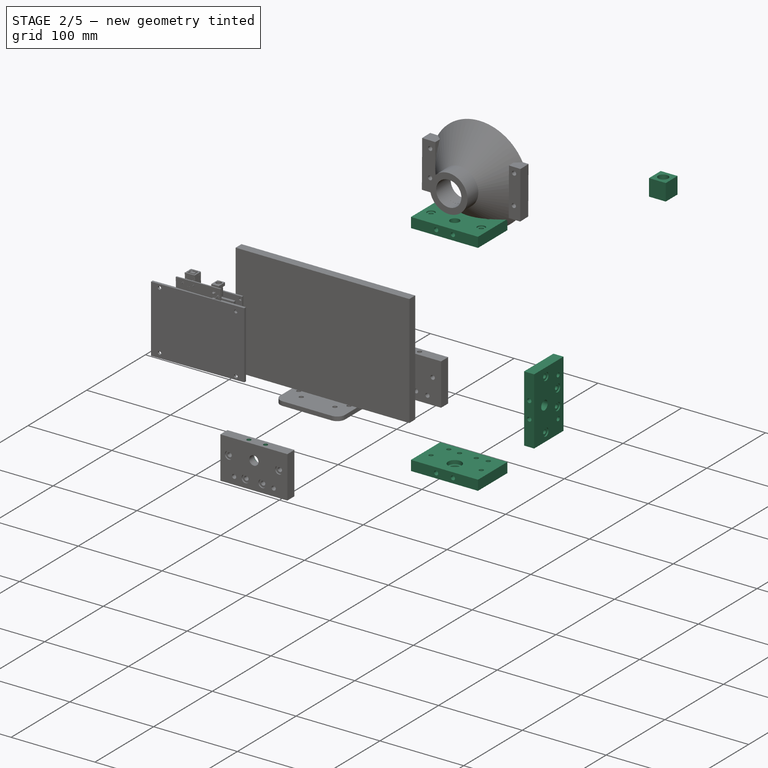
[diagram: stage 2 of 5 — iso view after this stage's code; geometry added in this stage tinted green]
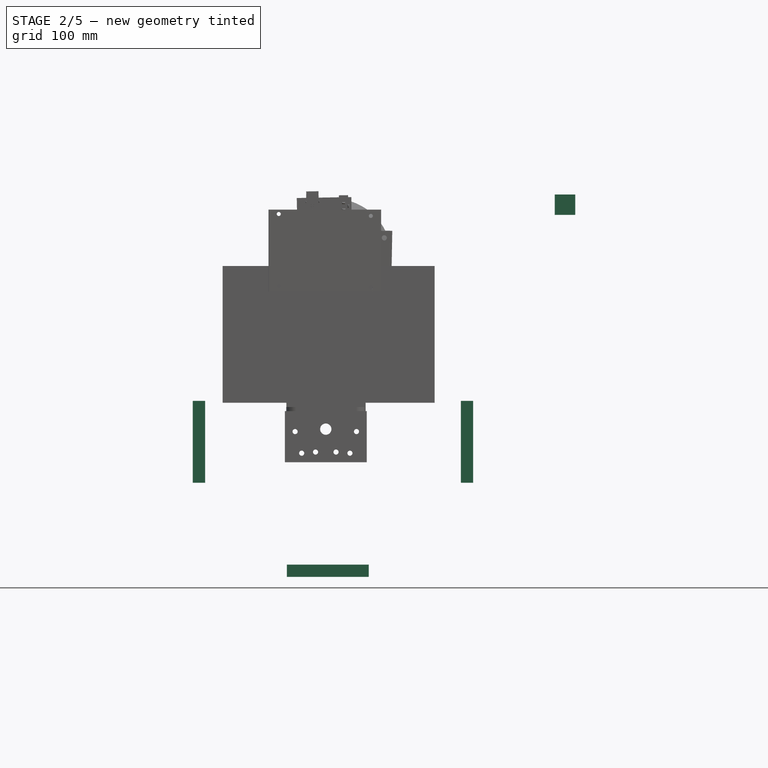
[diagram: stage 2 of 5 — front view after this stage's code; geometry added in this stage tinted green]
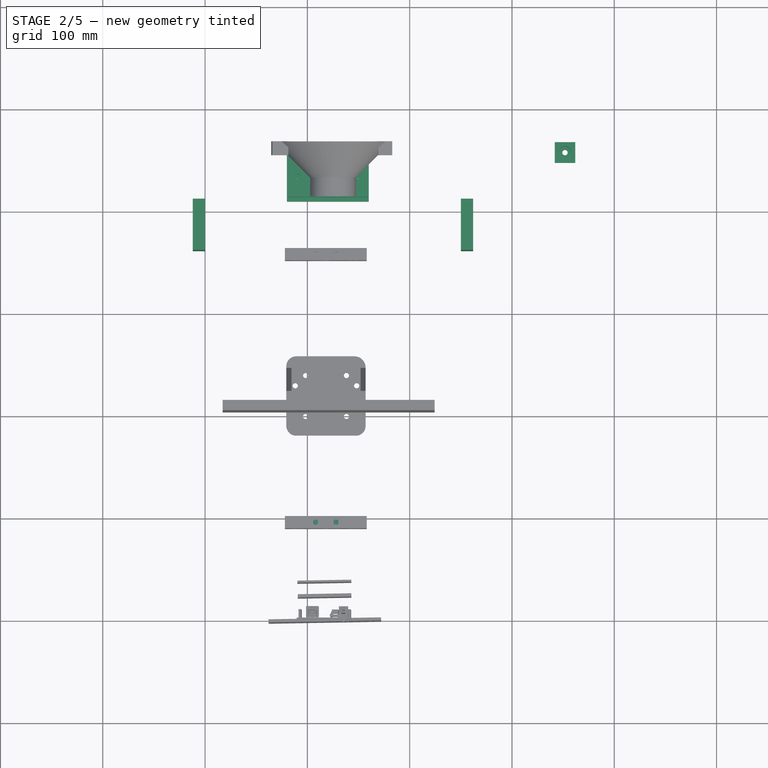
[diagram: stage 2 of 5 — top view after this stage's code; geometry added in this stage tinted green]
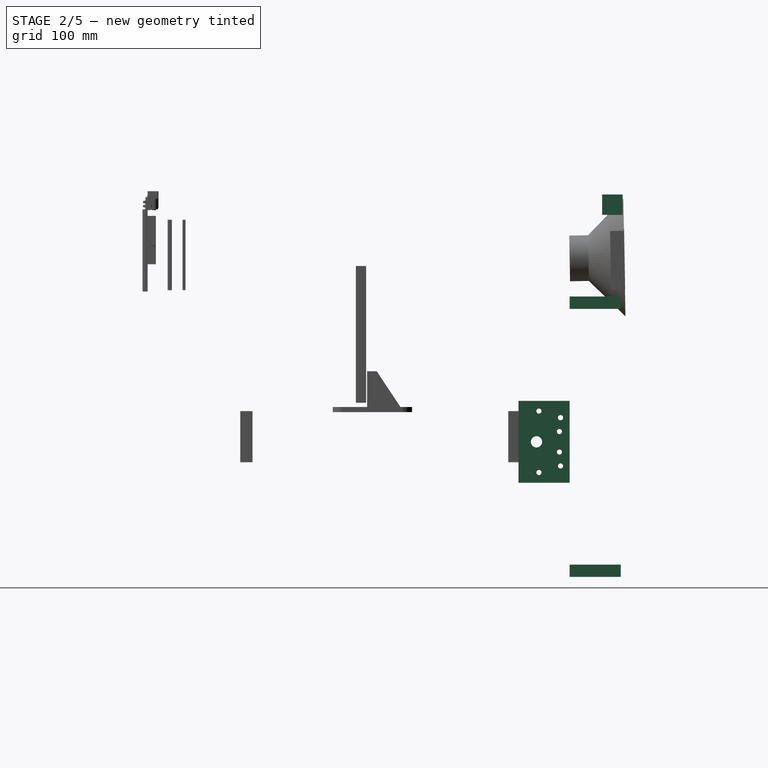
[diagram: stage 2 of 5 — right view after this stage's code; geometry added in this stage tinted green]
FEATURE [Sketcher::SketchObject] Sketch
  sketch-geometry (252):
    g0: LineSegment StartX=57.3 StartY=-18.2 StartZ=0 EndX=57.3 EndY=-16.239 EndZ=0
    g1: LineSegment StartX=57.3 StartY=-16.239 StartZ=0 EndX=53.9 EndY=-12.839 EndZ=0
    g2: LineSegment StartX=53.9 StartY=-12.839 StartZ=0 EndX=53.9 EndY=-7.161 EndZ=0
    g3: LineSegment StartX=53.9 StartY=-7.161 StartZ=0 EndX=57.3 EndY=-3.761 EndZ=0
    g4: LineSegment StartX=57.3 StartY=-3.761 StartZ=0 EndX=57.3 EndY=-1.8 EndZ=0
    g5: LineSegment StartX=57.3 StartY=-1.8 StartZ=0 EndX=60 EndY=-1.8 EndZ=0
    g6: LineSegment StartX=60 StartY=-1.8 StartZ=0 EndX=62.7 EndY=-1.8 EndZ=0
    g7: LineSegment StartX=62.7 StartY=-1.8 StartZ=0 EndX=62.7 EndY=-3.761 EndZ=0
    g8: LineSegment StartX=62.7 StartY=-3.761 StartZ=0 EndX=66.1 EndY=-7.161 EndZ=0
    g9: LineSegment StartX=66.1 StartY=-7.161 StartZ=0 EndX=66.1 EndY=-12.839 EndZ=0
    g10: LineSegment StartX=66.1 StartY=-12.839 StartZ=0 EndX=60.6708 EndY=-18.2 EndZ=0
    g11: LineSegment StartX=60.6708 StartY=-18.2 StartZ=0 EndX=60 EndY=-18.2 EndZ=0
    g12: LineSegment StartX=60 StartY=-18.2 StartZ=0 EndX=57.3 EndY=-18.2 EndZ=0
    g13: LineSegment StartX=20 StartY=-18.2 StartZ=0 EndX=19.3292 EndY=-18.2 EndZ=0
    g14: LineSegment StartX=19.3292 StartY=-18.2 StartZ=0 EndX=13.9 EndY=-12.839 EndZ=0
    g15: LineSegment StartX=13.9 StartY=-12.839 StartZ=0 EndX=13.9 EndY=-7.161 EndZ=0
    g16: LineSegment StartX=13.9 StartY=-7.161 StartZ=0 EndX=17.3 EndY=-3.761 EndZ=0
    g17: LineSegment StartX=17.3 StartY=-3.761 StartZ=0 EndX=17.3 EndY=-1.8 EndZ=0
    g18: LineSegment StartX=17.3 StartY=-1.8 StartZ=0 EndX=20 EndY=-1.8 EndZ=0
    g19: LineSegment StartX=20 StartY=-1.8 StartZ=0 EndX=22.7 EndY=-1.8 EndZ=0
    g20: LineSegment StartX=22.7 StartY=-1.8 StartZ=0 EndX=22.7 EndY=-3.761 EndZ=0
    g21: LineSegment StartX=22.7 StartY=-3.761 StartZ=0 EndX=26.1 EndY=-7.161 EndZ=0
    g22: LineSegment StartX=26.1 StartY=-7.161 StartZ=0 EndX=26.1 EndY=-12.839 EndZ=0
    g23: LineSegment StartX=26.1 StartY=-12.839 StartZ=0 EndX=22.7 EndY=-16.239 EndZ=0
    g24: LineSegment StartX=22.7 StartY=-16.239 StartZ=0 EndX=22.7 EndY=-18.2 EndZ=0
    g25: LineSegment StartX=22.7 StartY=-18.2 StartZ=0 EndX=20 EndY=-18.2 EndZ=0
    g26: ArcOfCircle CenterX=1.5 CenterY=-1.5 CenterZ=0 NormalX=0 NormalY=0 NormalZ=1 Radius=1.5 StartAngle=1.5708 EndAngle=3.14159
    g27: LineSegment StartX=5.114 StartY=0 StartZ=0 EndX=1.5 EndY=0 EndZ=0
    g28: LineSegment StartX=0 StartY=-1.5 StartZ=0 EndX=0 EndY=-5.2509 EndZ=0
    g29: LineSegment StartX=0 StartY=-5.2509 StartZ=0 EndX=1.3621 EndY=-6.613 EndZ=0
    g30: LineSegment StartX=1.3621 StartY=-6.613 StartZ=0 EndX=1.6631 EndY=-6.613 EndZ=0
    g31: LineSegment StartX=1.6631 StartY=-6.613 StartZ=0 EndX=1.6631 EndY=-4.5 EndZ=0
    g32: LineSegment StartX=1.6631 StartY=-4.5 StartZ=0 EndX=3.3021 EndY=-4.5 EndZ=0
    g33: LineSegment StartX=3.3021 StartY=-4.5 StartZ=0 EndX=6.1 EndY=-7.2979 EndZ=0
    g34: LineSegment StartX=6.1 StartY=-7.2979 StartZ=0 EndX=6.1 EndY=-12.7021 EndZ=0
    g35: LineSegment StartX=6.1 StartY=-12.7021 StartZ=0 EndX=3.3021 EndY=-15.5 EndZ=0
    g36: LineSegment StartX=3.3021 StartY=-15.5 StartZ=0 EndX=1.6631 EndY=-15.5 EndZ=0
    g37: LineSegment StartX=1.6631 StartY=-15.5 StartZ=0 EndX=1.6631 EndY=-13.387 EndZ=0
    g38: LineSegment StartX=1.6631 StartY=-13.387 StartZ=0 EndX=1.3621 EndY=-13.387 EndZ=0
    g39: LineSegment StartX=1.3621 StartY=-13.387 StartZ=0 EndX=0 EndY=-14.7491 EndZ=0
    g40: LineSegment StartX=0 StartY=-14.7491 StartZ=0 EndX=0 EndY=-25.2509 EndZ=0
    g41: LineSegment StartX=0 StartY=-25.2509 StartZ=0 EndX=1.3621 EndY=-26.613 EndZ=0
    g42: LineSegment StartX=1.3621 StartY=-26.613 StartZ=0 EndX=1.6631 EndY=-26.613 EndZ=0
    g43: LineSegment StartX=1.6631 StartY=-26.613 StartZ=0 EndX=1.6631 EndY=-24.5 EndZ=0
    g44: LineSegment StartX=1.6631 StartY=-24.5 StartZ=0 EndX=3.3021 EndY=-24.5 EndZ=0
    g45: LineSegment StartX=3.3021 StartY=-24.5 StartZ=0 EndX=6.1 EndY=-27.2979 EndZ=0
    g46: LineSegment StartX=6.1 StartY=-27.2979 StartZ=0 EndX=6.1 EndY=-32.7021 EndZ=0
    g47: LineSegment StartX=6.1 StartY=-32.7021 StartZ=0 EndX=3.3021 EndY=-35.5 EndZ=0
    g48: LineSegment StartX=3.3021 StartY=-35.5 StartZ=0 EndX=1.6631 EndY=-35.5 EndZ=0
    g49: LineSegment StartX=1.6631 StartY=-35.5 StartZ=0 EndX=1.6631 EndY=-33.387 EndZ=0
    g50: LineSegment StartX=1.6631 StartY=-33.387 StartZ=0 EndX=1.3621 EndY=-33.387 EndZ=0
    g51: LineSegment StartX=1.3621 StartY=-33.387 StartZ=0 EndX=0 EndY=-34.7491 EndZ=0
    g52: LineSegment StartX=0 StartY=-34.7491 StartZ=0 EndX=0 EndY=-38.5 EndZ=0
    g53: ArcOfCircle CenterX=1.5 CenterY=-38.5 CenterZ=0 NormalX=0 NormalY=0 NormalZ=1 Radius=1.5 StartAngle=3.14159 EndAngle=4.71239
    g54: LineSegment StartX=1.5 StartY=-40 StartZ=0 EndX=5.114 EndY=-40 EndZ=0
    g55: LineSegment StartX=5.114 StartY=-40 StartZ=0 EndX=6.613 EndY=-38.501 EndZ=0
    g56: LineSegment StartX=6.613 StartY=-38.501 StartZ=0 EndX=6.613 EndY=-38.2 EndZ=0
    g57: LineSegment StartX=6.613 StartY=-38.2 StartZ=0 EndX=4.5 EndY=-38.2 EndZ=0
    g58: LineSegment StartX=4.5 StartY=-38.2 StartZ=0 EndX=4.5 EndY=-36.561 EndZ=0
    g59: LineSegment StartX=4.5 StartY=-36.561 StartZ=0 EndX=7.161 EndY=-33.9 EndZ=0
    g60: LineSegment StartX=7.161 StartY=-33.9 StartZ=0 EndX=12.839 EndY=-33.9 EndZ=0
    g61: LineSegment StartX=12.839 StartY=-33.9 StartZ=0 EndX=15.5 EndY=-36.561 EndZ=0
    g62: LineSegment StartX=15.5 StartY=-36.561 StartZ=0 EndX=15.5 EndY=-38.2 EndZ=0
    g63: LineSegment StartX=15.5 StartY=-38.2 StartZ=0 EndX=13.387 EndY=-38.2 EndZ=0
    g64: LineSegment StartX=13.387 StartY=-38.2 StartZ=0 EndX=13.387 EndY=-38.501 EndZ=0
    g65: LineSegment StartX=13.387 StartY=-38.501 StartZ=0 EndX=14.886 EndY=-40 EndZ=0
    g66: LineSegment StartX=14.886 StartY=-40 StartZ=0 EndX=18.5 EndY=-40 EndZ=0
    g67: ArcOfCircle CenterX=18.5 CenterY=-38.5 CenterZ=0 NormalX=0 NormalY=0 NormalZ=1 Radius=1.5 StartAngle=4.71239 EndAngle=6.28319
    g68: LineSegment StartX=20 StartY=-38.5 StartZ=0 EndX=20 EndY=-34.886 EndZ=0
    g69: LineSegment StartX=20 StartY=-34.886 StartZ=0 EndX=18.501 EndY=-33.387 EndZ=0
    g70: LineSegment StartX=18.501 StartY=-33.387 StartZ=0 EndX=18.2 EndY=-33.387 EndZ=0
    g71: LineSegment StartX=18.2 StartY=-33.387 StartZ=0 EndX=18.2 EndY=-35.5 EndZ=0
    g72: LineSegment StartX=18.2 StartY=-35.5 StartZ=0 EndX=16.561 EndY=-35.5 EndZ=0
    g73: LineSegment StartX=16.561 StartY=-35.5 StartZ=0 EndX=13.9 EndY=-32.839 EndZ=0
    g74: LineSegment StartX=13.9 StartY=-32.839 StartZ=0 EndX=13.9 EndY=-27.161 EndZ=0
    g75: LineSegment StartX=13.9 StartY=-27.161 StartZ=0 EndX=16.561 EndY=-24.5 EndZ=0
    g76: LineSegment StartX=16.561 StartY=-24.5 StartZ=0 EndX=18.2 EndY=-24.5 EndZ=0
    g77: LineSegment StartX=18.2 StartY=-24.5 StartZ=0 EndX=18.2 EndY=-26.613 EndZ=0
    g78: LineSegment StartX=18.2 StartY=-26.613 StartZ=0 EndX=18.501 EndY=-26.613 EndZ=0
    g79: LineSegment StartX=18.501 StartY=-26.613 StartZ=0 EndX=20 EndY=-25.114 EndZ=0
    g80: LineSegment StartX=20 StartY=-25.114 StartZ=0 EndX=20 EndY=-20 EndZ=0
    g81: LineSegment StartX=20 StartY=-20 StartZ=0 EndX=25.114 EndY=-20 EndZ=0
    g82: LineSegment StartX=25.114 StartY=-20 StartZ=0 EndX=26.613 EndY=-18.501 EndZ=0
    g83: LineSegment StartX=26.613 StartY=-18.501 StartZ=0 EndX=26.613 EndY=-18.2 EndZ=0
    g84: LineSegment StartX=26.613 StartY=-18.2 StartZ=0 EndX=24.5 EndY=-18.2 EndZ=0
    g85: LineSegment StartX=24.5 StartY=-18.2 StartZ=0 EndX=24.5 EndY=-16.561 EndZ=0
    g86: LineSegment StartX=24.5 StartY=-16.561 StartZ=0 EndX=27.161 EndY=-13.9 EndZ=0
    g87: LineSegment StartX=27.161 StartY=-13.9 StartZ=0 EndX=32.839 EndY=-13.9 EndZ=0
    g88: LineSegment StartX=32.839 StartY=-13.9 StartZ=0 EndX=35.5 EndY=-16.561 EndZ=0
    g89: LineSegment StartX=35.5 StartY=-16.561 StartZ=0 EndX=35.5 EndY=-18.2 EndZ=0
    g90: LineSegment StartX=35.5 StartY=-18.2 StartZ=0 EndX=33.387 EndY=-18.2 EndZ=0
    g91: LineSegment StartX=33.387 StartY=-18.2 StartZ=0 EndX=33.387 EndY=-18.501 EndZ=0
    g92: LineSegment StartX=33.387 StartY=-18.501 StartZ=0 EndX=34.886 EndY=-20 EndZ=0
    g93: LineSegment StartX=34.886 StartY=-20 StartZ=0 EndX=45.114 EndY=-20 EndZ=0
    g94: LineSegment StartX=45.114 StartY=-20 StartZ=0 EndX=46.613 EndY=-18.501 EndZ=0
    g95: LineSegment StartX=46.613 StartY=-18.501 StartZ=0 EndX=46.613 EndY=-18.2 EndZ=0
    g96: LineSegment StartX=46.613 StartY=-18.2 StartZ=0 EndX=44.5 EndY=-18.2 EndZ=0
    g97: LineSegment StartX=44.5 StartY=-18.2 StartZ=0 EndX=44.5 EndY=-16.561 EndZ=0
    g98: LineSegment StartX=44.5 StartY=-16.561 StartZ=0 EndX=47.161 EndY=-13.9 EndZ=0
    g99: LineSegment StartX=47.161 StartY=-13.9 StartZ=0 EndX=52.839 EndY=-13.9 EndZ=0
    g100: LineSegment StartX=52.839 StartY=-13.9 StartZ=0 EndX=55.5 EndY=-16.561 EndZ=0
    g101: LineSegment StartX=55.5 StartY=-16.561 StartZ=0 EndX=55.5 EndY=-18.2 EndZ=0
    g102: LineSegment StartX=55.5 StartY=-18.2 StartZ=0 EndX=53.387 EndY=-18.2 EndZ=0
    g103: LineSegment StartX=53.387 StartY=-18.2 StartZ=0 EndX=53.387 EndY=-18.501 EndZ=0
    g104: LineSegment StartX=53.387 StartY=-18.501 StartZ=0 EndX=54.886 EndY=-20 EndZ=0
    g105: LineSegment StartX=54.886 StartY=-20 StartZ=0 EndX=54.8918 EndY=-20 EndZ=0
    g106: LineSegment StartX=54.8918 StartY=-20 StartZ=0 EndX=55.1918 EndY=-19.9988 EndZ=0
    g107: LineSegment StartX=55.1918 StartY=-19.9988 StartZ=0 EndX=60 EndY=-20 EndZ=0
    g108: LineSegment StartX=60 StartY=-20 StartZ=0 EndX=60 EndY=-25.114 EndZ=0
    g109: LineSegment StartX=60 StartY=-25.114 StartZ=0 EndX=61.499 EndY=-26.613 EndZ=0
    g110: LineSegment StartX=61.499 StartY=-26.613 StartZ=0 EndX=61.8 EndY=-26.613 EndZ=0
    g111: LineSegment StartX=61.8 StartY=-26.613 StartZ=0 EndX=61.8 EndY=-24.5 EndZ=0
    g112: LineSegment StartX=61.8 StartY=-24.5 StartZ=0 EndX=63.439 EndY=-24.5 EndZ=0
    g113: LineSegment StartX=63.439 StartY=-24.5 StartZ=0 EndX=66.1 EndY=-27.161 EndZ=0
    g114: LineSegment StartX=66.1 StartY=-27.161 StartZ=0 EndX=66.1 EndY=-32.839 EndZ=0
    g115: LineSegment StartX=66.1 StartY=-32.839 StartZ=0 EndX=63.439 EndY=-35.5 EndZ=0
    g116: LineSegment StartX=63.439 StartY=-35.5 StartZ=0 EndX=61.8 EndY=-35.5 EndZ=0
    g117: LineSegment StartX=61.8 StartY=-35.5 StartZ=0 EndX=61.8 EndY=-33.387 EndZ=0
    g118: LineSegment StartX=61.8 StartY=-33.387 StartZ=0 EndX=61.499 EndY=-33.387 EndZ=0
    g119: LineSegment StartX=61.499 StartY=-33.387 StartZ=0 EndX=60 EndY=-34.886 EndZ=0
    g120: LineSegment StartX=60 StartY=-34.886 StartZ=0 EndX=60 EndY=-38.5 EndZ=0
    g121: ArcOfCircle CenterX=61.5 CenterY=-38.5 CenterZ=0 NormalX=0 NormalY=0 NormalZ=1 Radius=1.5 StartAngle=3.14159 EndAngle=4.71239
    g122: LineSegment StartX=61.5 StartY=-40 StartZ=0 EndX=65.114 EndY=-40 EndZ=0
    g123: LineSegment StartX=65.114 StartY=-40 StartZ=0 EndX=66.613 EndY=-38.501 EndZ=0
    g124: LineSegment StartX=66.613 StartY=-38.501 StartZ=0 EndX=66.613 EndY=-38.2 EndZ=0
    g125: LineSegment StartX=66.613 StartY=-38.2 StartZ=0 EndX=64.5 EndY=-38.2 EndZ=0
    g126: LineSegment StartX=64.5 StartY=-38.2 StartZ=0 EndX=64.5 EndY=-36.561 EndZ=0
    g127: LineSegment StartX=64.5 StartY=-36.561 StartZ=0 EndX=67.161 EndY=-33.9 EndZ=0
    g128: LineSegment StartX=67.161 StartY=-33.9 StartZ=0 EndX=72.839 EndY=-33.9 EndZ=0
    g129: LineSegment StartX=72.839 StartY=-33.9 StartZ=0 EndX=75.5 EndY=-36.561 EndZ=0
    g130: LineSegment StartX=75.5 StartY=-36.561 StartZ=0 EndX=75.5 EndY=-38.2 EndZ=0
    g131: LineSegment StartX=75.5 StartY=-38.2 StartZ=0 EndX=73.387 EndY=-38.2 EndZ=0
    g132: LineSegment StartX=73.387 StartY=-38.2 StartZ=0 EndX=73.387 EndY=-38.501 EndZ=0
    g133: LineSegment StartX=73.387 StartY=-38.501 StartZ=0 EndX=74.886 EndY=-40 EndZ=0
    g134: LineSegment StartX=74.886 StartY=-40 StartZ=0 EndX=78.5 EndY=-40 EndZ=0
    g135: ArcOfCircle CenterX=78.5 CenterY=-38.5 CenterZ=0 NormalX=0 NormalY=0 NormalZ=1 Radius=1.5 StartAngle=4.71239 EndAngle=6.28319
    g136: LineSegment StartX=80 StartY=-38.5 StartZ=0 EndX=80 EndY=-34.7491 EndZ=0
    g137: LineSegment StartX=80 StartY=-34.7491 StartZ=0 EndX=78.6379 EndY=-33.387 EndZ=0
    g138: LineSegment StartX=78.6379 StartY=-33.387 StartZ=0 EndX=78.3369 EndY=-33.387 EndZ=0
    g139: LineSegment StartX=78.3369 StartY=-33.387 StartZ=0 EndX=78.3369 EndY=-35.5 EndZ=0
    g140: LineSegment StartX=78.3369 StartY=-35.5 StartZ=0 EndX=76.6979 EndY=-35.5 EndZ=0
    g141: LineSegment StartX=76.6979 StartY=-35.5 StartZ=0 EndX=73.9 EndY=-32.7021 EndZ=0
    g142: LineSegment StartX=73.9 StartY=-32.7021 StartZ=0 EndX=73.9 EndY=-27.2979 EndZ=0
    g143: LineSegment StartX=73.9 StartY=-27.2979 StartZ=0 EndX=76.6979 EndY=-24.5 EndZ=0
    g144: LineSegment StartX=76.6979 StartY=-24.5 StartZ=0 EndX=78.3369 EndY=-24.5 EndZ=0
    g145: LineSegment StartX=78.3369 StartY=-24.5 StartZ=0 EndX=78.3369 EndY=-26.613 EndZ=0
    g146: LineSegment StartX=78.3369 StartY=-26.613 StartZ=0 EndX=78.6379 EndY=-26.613 EndZ=0
    g147: LineSegment StartX=78.6379 StartY=-26.613 StartZ=0 EndX=80 EndY=-25.2509 EndZ=0
    g148: LineSegment StartX=80 StartY=-25.2509 StartZ=0 EndX=80 EndY=-14.7491 EndZ=0
    g149: LineSegment StartX=80 StartY=-14.7491 StartZ=0 EndX=78.6379 EndY=-13.387 EndZ=0
    g150: LineSegment StartX=78.6379 StartY=-13.387 StartZ=0 EndX=78.3369 EndY=-13.387 EndZ=0
    g151: LineSegment StartX=78.3369 StartY=-13.387 StartZ=0 EndX=78.3369 EndY=-15.5 EndZ=0
    g152: LineSegment StartX=78.3369 StartY=-15.5 StartZ=0 EndX=76.6979 EndY=-15.5 EndZ=0
    g153: LineSegment StartX=76.6979 StartY=-15.5 StartZ=0 EndX=73.9 EndY=-12.7021 EndZ=0
    g154: LineSegment StartX=73.9 StartY=-12.7021 StartZ=0 EndX=73.9 EndY=-7.2979 EndZ=0
    g155: LineSegment StartX=73.9 StartY=-7.2979 StartZ=0 EndX=76.6979 EndY=-4.5 EndZ=0
    g156: LineSegment StartX=76.6979 StartY=-4.5 StartZ=0 EndX=78.3369 EndY=-4.5 EndZ=0
    g157: LineSegment StartX=78.3369 StartY=-4.5 StartZ=0 EndX=78.3369 EndY=-6.613 EndZ=0
    g158: LineSegment StartX=78.3369 StartY=-6.613 StartZ=0 EndX=78.6379 EndY=-6.613 EndZ=0
    g159: LineSegment StartX=78.6379 StartY=-6.613 StartZ=0 EndX=80 EndY=-5.2509 EndZ=0
    g160: LineSegment StartX=80 StartY=-5.2509 StartZ=0 EndX=80 EndY=-1.5 EndZ=0
    g161: ArcOfCircle CenterX=78.5 CenterY=-1.5 CenterZ=0 NormalX=0 NormalY=0 NormalZ=1 Radius=1.5 StartAngle=0 EndAngle=1.5708
    g162: LineSegment StartX=78.5 StartY=0 StartZ=0 EndX=74.886 EndY=0 EndZ=0
    g163: LineSegment StartX=74.886 StartY=0 StartZ=0 EndX=73.387 EndY=-1.499 EndZ=0
    g164: LineSegment StartX=73.387 StartY=-1.499 StartZ=0 EndX=73.387 EndY=-1.8 EndZ=0
    g165: LineSegment StartX=73.387 StartY=-1.8 StartZ=0 EndX=75.5 EndY=-1.8 EndZ=0
    g166: LineSegment StartX=75.5 StartY=-1.8 StartZ=0 EndX=75.5 EndY=-3.439 EndZ=0
    g167: LineSegment StartX=75.5 StartY=-3.439 StartZ=0 EndX=72.839 EndY=-6.1 EndZ=0
    g168: LineSegment StartX=72.839 StartY=-6.1 StartZ=0 EndX=67.161 EndY=-6.1 EndZ=0
    g169: LineSegment StartX=67.161 StartY=-6.1 StartZ=0 EndX=64.5 EndY=-3.439 EndZ=0
    g170: LineSegment StartX=64.5 StartY=-3.439 StartZ=0 EndX=64.5 EndY=-1.8 EndZ=0
    g171: LineSegment StartX=64.5 StartY=-1.8 StartZ=0 EndX=66.613 EndY=-1.8 EndZ=0
    g172: LineSegment StartX=66.613 StartY=-1.8 StartZ=0 EndX=66.613 EndY=-1.499 EndZ=0
    g173: LineSegment StartX=66.613 StartY=-1.499 StartZ=0 EndX=65.114 EndY=0 EndZ=0
    g174: LineSegment StartX=65.114 StartY=0 StartZ=0 EndX=54.886 EndY=0 EndZ=0
    g175: LineSegment StartX=54.886 StartY=0 StartZ=0 EndX=53.387 EndY=-1.499 EndZ=0
    g176: LineSegment StartX=53.387 StartY=-1.499 StartZ=0 EndX=53.387 EndY=-1.8 EndZ=0
    g177: LineSegment StartX=53.387 StartY=-1.8 StartZ=0 EndX=55.5 EndY=-1.8 EndZ=0
    g178: LineSegment StartX=55.5 StartY=-1.8 StartZ=0 EndX=55.5 EndY=-3.439 EndZ=0
    g179: LineSegment StartX=55.5 StartY=-3.439 StartZ=0 EndX=52.839 EndY=-6.1 EndZ=0
    g180: LineSegment StartX=52.839 StartY=-6.1 StartZ=0 EndX=47.161 EndY=-6.1 EndZ=0
    g181: LineSegment StartX=47.161 StartY=-6.1 StartZ=0 EndX=44.5 EndY=-3.439 EndZ=0
    g182: LineSegment StartX=44.5 StartY=-3.439 StartZ=0 EndX=44.5 EndY=-1.8 EndZ=0
    g183: LineSegment StartX=44.5 StartY=-1.8 StartZ=0 EndX=46.613 EndY=-1.8 EndZ=0
    g184: LineSegment StartX=46.613 StartY=-1.8 StartZ=0 EndX=46.613 EndY=-1.499 EndZ=0
    g185: LineSegment StartX=46.613 StartY=-1.499 StartZ=0 EndX=45.114 EndY=0 EndZ=0
    g186: LineSegment StartX=45.114 StartY=0 StartZ=0 EndX=34.886 EndY=0 EndZ=0
    g187: LineSegment StartX=34.886 StartY=0 StartZ=0 EndX=33.387 EndY=-1.499 EndZ=0
    g188: LineSegment StartX=33.387 StartY=-1.499 StartZ=0 EndX=33.387 EndY=-1.8 EndZ=0
    g189: LineSegment StartX=33.387 StartY=-1.8 StartZ=0 EndX=35.5 EndY=-1.8 EndZ=0
    g190: LineSegment StartX=35.5 StartY=-1.8 StartZ=0 EndX=35.5 EndY=-3.439 EndZ=0
    g191: LineSegment StartX=35.5 StartY=-3.439 StartZ=0 EndX=32.839 EndY=-6.1 EndZ=0
    g192: LineSegment StartX=32.839 StartY=-6.1 StartZ=0 EndX=27.161 EndY=-6.1 EndZ=0
    g193: LineSegment StartX=27.161 StartY=-6.1 StartZ=0 EndX=24.5 EndY=-3.439 EndZ=0
    g194: LineSegment StartX=24.5 StartY=-3.439 StartZ=0 EndX=24.5 EndY=-1.8 EndZ=0
    g195: LineSegment StartX=24.5 StartY=-1.8 StartZ=0 EndX=26.613 EndY=-1.8 EndZ=0
    g196: LineSegment StartX=26.613 StartY=-1.8 StartZ=0 EndX=26.613 EndY=-1.499 EndZ=0
    g197: LineSegment StartX=26.613 StartY=-1.499 StartZ=0 EndX=25.114 EndY=0 EndZ=0
    g198: LineSegment StartX=25.114 StartY=0 StartZ=0 EndX=14.886 EndY=0 EndZ=0
    g199: LineSegment StartX=14.886 StartY=0 StartZ=0 EndX=13.387 EndY=-1.499 EndZ=0
    g200: LineSegment StartX=13.387 StartY=-1.499 StartZ=0 EndX=13.387 EndY=-1.8 EndZ=0
    g201: LineSegment StartX=13.387 StartY=-1.8 StartZ=0 EndX=15.5 EndY=-1.8 EndZ=0
    g202: LineSegment StartX=15.5 StartY=-1.8 StartZ=0 EndX=15.5 EndY=-3.439 EndZ=0
    g203: LineSegment StartX=15.5 StartY=-3.439 StartZ=0 EndX=12.839 EndY=-6.1 EndZ=0
    g204: LineSegment StartX=12.839 StartY=-6.1 StartZ=0 EndX=7.161 EndY=-6.1 EndZ=0
    g205: LineSegment StartX=7.161 StartY=-6.1 StartZ=0 EndX=4.5 EndY=-3.439 EndZ=0
    g206: LineSegment StartX=4.5 StartY=-3.439 StartZ=0 EndX=4.5 EndY=-1.8 EndZ=0
    g207: LineSegment StartX=4.5 StartY=-1.8 StartZ=0 EndX=6.613 EndY=-1.8 EndZ=0
    g208: LineSegment StartX=6.613 StartY=-1.8 StartZ=0 EndX=6.613 EndY=-1.499 EndZ=0
    g209: LineSegment StartX=6.613 StartY=-1.499 StartZ=0 EndX=5.114 EndY=0 EndZ=0
    g210: Circle CenterX=10 CenterY=-30 CenterZ=0 NormalX=0 NormalY=0 NormalZ=-1 Radius=2.1
    g211: Circle CenterX=70 CenterY=-30 CenterZ=0 NormalX=0 NormalY=0 NormalZ=-1 Radius=2.1
    g212: Circle CenterX=70 CenterY=-10 CenterZ=0 NormalX=0 NormalY=0 NormalZ=-1 Radius=2.1
    g213: Circle CenterX=10 CenterY=-10 CenterZ=0 NormalX=0 NormalY=0 NormalZ=-1 Radius=2.1
    g214: Circle CenterX=30 CenterY=-10 CenterZ=0 NormalX=0 NormalY=0 NormalZ=-1 Radius=2.1
    g215: Circle CenterX=50 CenterY=-10 CenterZ=0 NormalX=0 NormalY=0 NormalZ=-1 Radius=2.1
    g216: LineSegment StartX=42.7156 StartY=-3.79115 StartZ=0 EndX=46.1296 EndY=-7.17706 EndZ=0
    g217: LineSegment StartX=46.1296 StartY=-7.17706 StartZ=0 EndX=46.1531 EndY=-12.855 EndZ=0
    g218: LineSegment StartX=46.1531 StartY=-12.855 StartZ=0 EndX=42.7672 EndY=-16.269 EndZ=0
    g219: LineSegment StartX=42.7672 StartY=-16.269 StartZ=0 EndX=42.7753 EndY=-18.23 EndZ=0
    g220: LineSegment StartX=42.7753 StartY=-18.23 StartZ=0 EndX=39.9247 EndY=-18.2412 EndZ=0
    g221: LineSegment StartX=39.9247 StartY=-18.2412 StartZ=0 EndX=37.2247 EndY=-18.23 EndZ=0
    g222: LineSegment StartX=37.2247 StartY=-18.23 StartZ=0 EndX=37.2328 EndY=-16.269 EndZ=0
    g223: LineSegment StartX=37.2328 StartY=-16.269 StartZ=0 EndX=33.8469 EndY=-12.855 EndZ=0
    g224: LineSegment StartX=33.8469 StartY=-12.855 StartZ=0 EndX=33.8704 EndY=-7.17706 EndZ=0
    g225: LineSegment StartX=33.8704 StartY=-7.17706 StartZ=0 EndX=37.2844 EndY=-3.79115 EndZ=0
    g226: LineSegment StartX=37.2844 StartY=-3.79115 StartZ=0 EndX=37.2925 EndY=-1.83017 EndZ=0
    g227: LineSegment StartX=37.2925 StartY=-1.83017 StartZ=0 EndX=39.9925 EndY=-1.84133 EndZ=0
    g228: LineSegment StartX=39.9925 StartY=-1.84133 StartZ=0 EndX=42.7075 EndY=-1.83017 EndZ=0
    g229: LineSegment StartX=42.7075 StartY=-1.83017 StartZ=0 EndX=42.7156 EndY=-3.79115 EndZ=0
    g230: LineSegment StartX=15.939 StartY=-23 StartZ=0 EndX=12.839 EndY=-26.1 EndZ=0
    g231: LineSegment StartX=12.839 StartY=-26.1 StartZ=0 EndX=7.161 EndY=-26.1 EndZ=0
    g232: LineSegment StartX=7.161 StartY=-26.1 StartZ=0 EndX=4.061 EndY=-23 EndZ=0
    g233: LineSegment StartX=4.061 StartY=-23 StartZ=0 EndX=1.6631 EndY=-23 EndZ=0
    g234: LineSegment StartX=1.6631 StartY=-23 StartZ=0 EndX=1.6631 EndY=-17 EndZ=0
    g235: LineSegment StartX=1.6631 StartY=-17 StartZ=0 EndX=4.061 EndY=-17 EndZ=0
    g236: LineSegment StartX=4.061 StartY=-17 StartZ=0 EndX=7.161 EndY=-13.9 EndZ=0
    g237: LineSegment StartX=7.161 StartY=-13.9 StartZ=0 EndX=12.839 EndY=-13.9 EndZ=0
    g238: LineSegment StartX=12.839 StartY=-13.9 StartZ=0 EndX=18.2 EndY=-19.261 EndZ=0
    g239: LineSegment StartX=18.2 StartY=-19.261 StartZ=0 EndX=18.2 EndY=-23 EndZ=0
    g240: LineSegment StartX=18.2 StartY=-23 StartZ=0 EndX=15.939 EndY=-23 EndZ=0
    g241: LineSegment StartX=78.3369 StartY=-23 StartZ=0 EndX=75.939 EndY=-23 EndZ=0
    g242: LineSegment StartX=75.939 StartY=-23 StartZ=0 EndX=72.839 EndY=-26.1 EndZ=0
    g243: LineSegment StartX=72.839 StartY=-26.1 StartZ=0 EndX=67.161 EndY=-26.1 EndZ=0
    g244: LineSegment StartX=67.161 StartY=-26.1 StartZ=0 EndX=64.061 EndY=-23 EndZ=0
    g245: LineSegment StartX=64.061 StartY=-23 StartZ=0 EndX=61.8 EndY=-23 EndZ=0
    g246: LineSegment StartX=61.8 StartY=-23 StartZ=0 EndX=61.8 EndY=-19.261 EndZ=0
    g247: LineSegment StartX=61.8 StartY=-19.261 StartZ=0 EndX=67.161 EndY=-13.9 EndZ=0
    g248: LineSegment StartX=67.161 StartY=-13.9 StartZ=0 EndX=72.839 EndY=-13.9 EndZ=0
    g249: LineSegment StartX=72.839 StartY=-13.9 StartZ=0 EndX=75.939 EndY=-17 EndZ=0
    g250: LineSegment StartX=75.939 StartY=-17 StartZ=0 EndX=78.3369 EndY=-17 EndZ=0
    g251: LineSegment StartX=78.3369 StartY=-17 StartZ=0 EndX=78.3369 EndY=-23 EndZ=0
FEATURE [Part::Extrusion] Extrude
  Base = -> Sketch
  Dir = (0,0,250)
  Placement = pos=(180,460,100) rot=(0,0,1;0rad)
  Solid = false
FEATURE [App::DocumentObjectGroup] Group  label="profile"
  Group = -> [Extrude]
FEATURE [Sketcher::SketchObject] Sketch001
  Placement = pos=(260,460,88) rot=(0,0,1;3.14159rad)
  sketch-geometry (11):
    g0: LineSegment StartX=0 StartY=0 StartZ=0 EndX=80 EndY=0 EndZ=0
    g1: LineSegment StartX=80 StartY=0 StartZ=0 EndX=80 EndY=50 EndZ=0
    g2: LineSegment StartX=80 StartY=50 StartZ=0 EndX=0 EndY=50 EndZ=0
    g3: LineSegment StartX=0 StartY=50 StartZ=0 EndX=0 EndY=0 EndZ=0
    g4: Circle CenterX=10 CenterY=30 CenterZ=0 NormalX=0 NormalY=0 NormalZ=1 Radius=2.5
    g5: Circle CenterX=30 CenterY=10 CenterZ=0 NormalX=0 NormalY=0 NormalZ=1 Radius=2.5
    g6: Circle CenterX=16.4 CenterY=8.9 CenterZ=0 NormalX=0 NormalY=0 NormalZ=1 Radius=2.5
    g7: Circle CenterX=50 CenterY=10 CenterZ=0 NormalX=0 NormalY=0 NormalZ=1 Radius=2.5
    g8: Circle CenterX=63.6 CenterY=8.9 CenterZ=0 NormalX=0 NormalY=0 NormalZ=1 Radius=2.5
    g9: Circle CenterX=70 CenterY=30 CenterZ=0 NormalX=0 NormalY=0 NormalZ=1 Radius=2.5
    g10: Circle CenterX=40 CenterY=32.4 CenterZ=0 NormalX=0 NormalY=0 NormalZ=1 Radius=5.5
  constraints (34):
    c: Coincident(g0,g1)
    c: Coincident(g1,g2)
    c: Coincident(g2,g3)
    c: Coincident(g3,g0)
    c: Horizontal(g0)
    c: Horizontal(g2)
    c: Vertical(g1)
    c: Vertical(g3)
    c: Coincident(g0,g-1)
    c: Radius(g4) = 2.5
    c: Radius(g9) = 2.5
    c: Radius(g8) = 2.5
    c: Radius(g7) = 2.5
    c: Radius(g5) = 2.5
    c: Radius(g6) = 2.5
    c: Radius(g10) = 5.5
    c: Equal(g0,g2)
    c: Equal(g3,g1)
    c: DistanceX(g2) = -80
    c: DistanceY(g3) = -50
    c: DistanceX(g1,g9) = -10
    c: DistanceY(g8,g0) = -8.9
    c: DistanceX(g8,g0) = 16.4
    c: DistanceX(g7,g0) = 30
    c: DistanceY(g7,g0) = -10
    c: DistanceX(g-1,g5) = 30
    c: DistanceY(g-1,g5) = 10
    c: DistanceY(g-1,g6) = 8.9
    c: DistanceX(g-1,g6) = 16.4
    c: DistanceX(g10,g2) = -40
    c: DistanceY(g10,g2) = 17.6
    c: DistanceY(g9,g0) = -30
    c: DistanceY(g-1,g4) = 30
    c: DistanceX(g-1,g4) = 10
FEATURE [PartDesign::Pad] Pad
  Length = 12
  Length2 = 100
  Placement = pos=(260,460,88) rot=(0,0,1;3.14159rad)
  Sketch = -> Sketch001
  Type = 0
FEATURE [Sketcher::SketchObject] Sketch002
  Placement = pos=(260,410,88) rot=(1,0,0;1.5708rad)
  Support = -> Pad [Face3]
  sketch-geometry (2):
    g0: Circle CenterX=-30.0338 CenterY=5.85009 CenterZ=0 NormalX=0 NormalY=0 NormalZ=1 Radius=2.5
    g1: Circle CenterX=-50.0038 CenterY=5.78884 CenterZ=0 NormalX=0 NormalY=0 NormalZ=1 Radius=2.5
  constraints (2):
    c: Radius(g0) = 2.5
    c: Radius(g1) = 2.5
FEATURE [PartDesign::Pocket] Pocket
  Length = 11
  Placement = pos=(260,460,88) rot=(0,0,1;3.14159rad)
  Sketch = -> Sketch002
  Type = 0
FEATURE [Sketcher::SketchObject] Sketch003
  Placement = pos=(260,460,100) rot=(0,0,1;3.14159rad)
  Support = -> Pocket [Face5]
  sketch-geometry (1):
    g0: Circle CenterX=40 CenterY=32.4 CenterZ=0 NormalX=0 NormalY=0 NormalZ=1 Radius=8.05
  constraints (3):
    c: Radius(g0) = 8.05
    c: DistanceY(g-1,g0) = 32.4
    c: DistanceX(g-1,g0) = 40
FEATURE [PartDesign::Pocket] Pocket001
  Length = 4.5
  Placement = pos=(260,460,88) rot=(0,0,1;3.14159rad)
  Sketch = -> Sketch003
  Type = 0
FEATURE [Sketcher::SketchObject] Sketch004
  Placement = pos=(260,460,88) rot=(0,1,0;3.14159rad)
  Support = -> Pocket001 [Face4]
  sketch-geometry (4):
    g0: Circle CenterX=10 CenterY=-30 CenterZ=0 NormalX=0 NormalY=0 NormalZ=1 Radius=4.6
    g1: Circle CenterX=70 CenterY=-30 CenterZ=0 NormalX=0 NormalY=0 NormalZ=1 Radius=4.62459
    g2: Circle CenterX=30 CenterY=-10 CenterZ=0 NormalX=0 NormalY=0 NormalZ=1 Radius=4.58345
    g3: Circle CenterX=50 CenterY=-10 CenterZ=0 NormalX=0 NormalY=0 NormalZ=1 Radius=4.6246
  constraints (9):
    c: Radius(g0) = 4.6
    c: DistanceX(g-1,g2) = 30
    c: DistanceY(g-1,g2) = -10
    c: DistanceX(g-1,g3) = 50
    c: DistanceY(g-1,g3) = -10
    c: DistanceY(g-1,g0) = -30
    c: DistanceX(g-1,g0) = 10
    c: DistanceY(g-1,g1) = -30
    c: DistanceX(g-1,g1) = 70
FEATURE [PartDesign::Pocket] Pocket002
  Length = 1.55
  Placement = pos=(260,460,88) rot=(0,0,1;3.14159rad)
  Sketch = -> Sketch004
  Type = 0
FEATURE [App::DocumentObjectGroup] Group001  label="endplate"
  Group = -> [Pad,Pocket,Pocket001,Pocket002]
FEATURE [Sketcher::SketchObject] Sketch005
  Placement = pos=(180,460,362) rot=(1,0,0;3.14159rad)
  sketch-geometry (11):
    g0: LineSegment StartX=0 StartY=0 StartZ=0 EndX=80 EndY=0 EndZ=0
    g1: LineSegment StartX=80 StartY=0 StartZ=0 EndX=80 EndY=50 EndZ=0
    g2: LineSegment StartX=80 StartY=50 StartZ=0 EndX=0 EndY=50 EndZ=0
    g3: LineSegment StartX=0 StartY=50 StartZ=0 EndX=0 EndY=0 EndZ=0
    g4: Circle CenterX=10 CenterY=30 CenterZ=0 NormalX=0 NormalY=0 NormalZ=1 Radius=2.5
    g5: Circle CenterX=30 CenterY=10 CenterZ=0 NormalX=0 NormalY=0 NormalZ=1 Radius=2.5
    g6: Circle CenterX=16.4 CenterY=8.9 CenterZ=0 NormalX=0 NormalY=0 NormalZ=1 Radius=2.5
    g7: Circle CenterX=50 CenterY=10 CenterZ=0 NormalX=0 NormalY=0 NormalZ=1 Radius=2.5
    g8: Circle CenterX=63.6 CenterY=8.9 CenterZ=0 NormalX=0 NormalY=0 NormalZ=1 Radius=2.5
    g9: Circle CenterX=70 CenterY=30 CenterZ=0 NormalX=0 NormalY=0 NormalZ=1 Radius=2.5
    g10: Circle CenterX=40 CenterY=32.4 CenterZ=0 NormalX=0 NormalY=0 NormalZ=1 Radius=5.5
  constraints (34):
    c: Coincident(g0,g1)
    c: Coincident(g1,g2)
    c: Coincident(g2,g3)
    c: Coincident(g3,g0)
    c: Horizontal(g0)
    c: Horizontal(g2)
    c: Vertical(g1)
    c: Vertical(g3)
    c: Coincident(g0,g-1)
    c: Radius(g4) = 2.5
    c: Radius(g9) = 2.5
    c: Radius(g8) = 2.5
    c: Radius(g7) = 2.5
    c: Radius(g5) = 2.5
    c: Radius(g6) = 2.5
    c: Radius(g10) = 5.5
    c: Equal(g0,g2)
    c: Equal(g3,g1)
    c: DistanceX(g2) = -80
    c: DistanceY(g3) = -50
    c: DistanceX(g1,g9) = -10
    c: DistanceY(g8,g0) = -8.9
    c: DistanceX(g8,g0) = 16.4
    c: DistanceX(g7,g0) = 30
    c: DistanceY(g7,g0) = -10
    c: DistanceX(g-1,g5) = 30
    c: DistanceY(g-1,g5) = 10
    c: DistanceY(g-1,g6) = 8.9
    c: DistanceX(g-1,g6) = 16.4
    c: DistanceX(g10,g2) = -40
    c: DistanceY(g10,g2) = 17.6
    c: DistanceY(g9,g0) = -30
    c: DistanceY(g-1,g4) = 30
    c: DistanceX(g-1,g4) = 10
FEATURE [PartDesign::Pad] Pad001
  Length = 12
  Length2 = 100
  Placement = pos=(180,460,362) rot=(1,0,0;3.14159rad)
  Sketch = -> Sketch005
  Type = 0
FEATURE [Sketcher::SketchObject] Sketch006
  Placement = pos=(180,410,362) rot=(0,0.707107,-0.707107;3.14159rad)
  Support = -> Pad001 [Face3]
  sketch-geometry (2):
    g0: Circle CenterX=-30.0338 CenterY=5.85009 CenterZ=0 NormalX=0 NormalY=0 NormalZ=1 Radius=2.5
    g1: Circle CenterX=-50.0038 CenterY=5.78884 CenterZ=0 NormalX=0 NormalY=0 NormalZ=1 Radius=2.5
  constraints (2):
    c: Radius(g0) = 2.5
    c: Radius(g1) = 2.5
FEATURE [PartDesign::Pocket] Pocket003
  Length = 11
  Placement = pos=(180,460,362) rot=(1,0,0;3.14159rad)
  Sketch = -> Sketch006
  Type = 0
FEATURE [Sketcher::SketchObject] Sketch007
  Placement = pos=(180,460,350) rot=(1,0,0;3.14159rad)
  Support = -> Pocket003 [Face5]
  sketch-geometry (1):
    g0: Circle CenterX=40 CenterY=32.4 CenterZ=0 NormalX=0 NormalY=0 NormalZ=1 Radius=8.05
  constraints (3):
    c: Radius(g0) = 8.05
    c: DistanceY(g-1,g0) = 32.4
    c: DistanceX(g-1,g0) = 40
FEATURE [PartDesign::Pocket] Pocket004
  Length = 4.5
  Placement = pos=(180,460,362) rot=(1,0,0;3.14159rad)
  Sketch = -> Sketch007
  Type = 0
FEATURE [Sketcher::SketchObject] Sketch008
  Placement = pos=(180,460,362) rot=(0,0,1;0rad)
  Support = -> Pocket004 [Face4]
  sketch-geometry (4):
    g0: Circle CenterX=10 CenterY=-30 CenterZ=0 NormalX=0 NormalY=0 NormalZ=1 Radius=4.6
    g1: Circle CenterX=70 CenterY=-30 CenterZ=0 NormalX=0 NormalY=0 NormalZ=1 Radius=4.62459
    g2: Circle CenterX=30 CenterY=-10 CenterZ=0 NormalX=0 NormalY=0 NormalZ=1 Radius=4.58345
    g3: Circle CenterX=50 CenterY=-10 CenterZ=0 NormalX=0 NormalY=0 NormalZ=1 Radius=4.6246
  constraints (9):
    c: Radius(g0) = 4.6
    c: DistanceX(g-1,g2) = 30
    c: DistanceY(g-1,g2) = -10
    c: DistanceX(g-1,g3) = 50
    c: DistanceY(g-1,g3) = -10
    c: DistanceY(g-1,g0) = -30
    c: DistanceX(g-1,g0) = 10
    c: DistanceY(g-1,g1) = -30
    c: DistanceX(g-1,g1) = 70
FEATURE [PartDesign::Pocket] Pocket005
  Length = 1.55
  Placement = pos=(180,460,362) rot=(1,0,0;3.14159rad)
  Sketch = -> Sketch008
  Type = 0
FEATURE [App::DocumentObjectGroup] Group002  label="endplate001"
  Group = -> [Pad001,Pocket003,Pocket004,Pocket005]
FEATURE [Part::Feature] Part__Feature  label="gantry assem v1"
  Placement = pos=(219.346,418.136,217.223) rot=(0.57735,0.57735,-0.57735;2.0944rad)
  shape: bbox 77.52 x 6 x 77.51 mm, 60 faces (baked)
FEATURE [Part::Feature] Part__Feature001  label="gantry assem v002"
  Placement = pos=(233.597,418.136,247.273) rot=(0.707107,0.707107,0;3.14159rad)
  shape: bbox 9.087 x 7.62 x 7.901 mm, 13 faces (baked)
FEATURE [Part::Feature] Part__Feature002  label="gantry assem v003"
  Placement = pos=(205.097,424.486,187.273) rot=(-0.458392,0.458392,-0.761416;1.84006rad)
  shape: bbox 8 x 6.35 x 8 mm, 4 faces (baked)
FEATURE [Part::Feature] Part__Feature003  label="gantry assem v004"
  Placement = pos=(233.597,418.136,187.273) rot=(0.707107,0.707107,0;3.14159rad)
  shape: bbox 9.087 x 7.62 x 7.901 mm, 13 faces (baked)
FEATURE [Part::Feature] Part__Feature004  label="gantry assem v005"
  Placement = pos=(205.097,424.486,247.273) rot=(-0.458392,0.458392,-0.761416;1.84006rad)
  shape: bbox 8 x 6.35 x 8 mm, 4 faces (baked)
FEATURE [Part::Feature] Part__Feature005  label="gantry assem v006"
  Placement = pos=(205.097,411.886,187.273) rot=(0.706645,0.706645,-0.036122;3.2138rad)
  shape: bbox 9.5 x 27.17 x 9.5 mm, 18 faces (baked)
FEATURE [Part::Feature] Part__Feature006  label="gantry assem v007"
  Placement = pos=(233.597,411.886,186.483) rot=(0.706645,0.706645,-0.036122;3.2138rad)
  shape: bbox 9.5 x 27.17 x 9.5 mm, 18 faces (baked)
FEATURE [Part::Feature] Part__Feature007  label="gantry assem v008"
  Placement = pos=(233.597,411.886,246.483) rot=(0.706645,0.706645,-0.036122;3.2138rad)
  shape: bbox 9.5 x 27.17 x 9.5 mm, 18 faces (baked)
FEATURE [Part::Feature] Part__Feature008  label="gantry assem v009"
  Placement = pos=(205.097,411.886,247.273) rot=(0.704114,0.704114,0.09191;2.95829rad)
  shape: bbox 9.5 x 27.17 x 9.5 mm, 18 faces (baked)
FEATURE [Part::Feature] Part__Feature009  label="gantry assem v010"
  Placement = pos=(233.597,433.886,246.483) rot=(0.427043,0.639388,0.639388;3.94879rad)
  shape: bbox 6 x 0.36 x 6 mm, 4 faces (baked)
FEATURE [Part::Feature] Part__Feature010  label="gantry assem v011"
  Placement = pos=(233.597,433.886,246.483) rot=(0.427043,0.639388,0.639388;3.94879rad)
  shape: bbox 8.171 x 4.5 x 8.745 mm, 63 faces (baked)
FEATURE [Part::Feature] Part__Feature011  label="gantry assem v012"
  Placement = pos=(205.097,433.886,187.273) rot=(0.427043,0.639388,0.639388;3.94879rad)
  shape: bbox 6 x 0.36 x 6 mm, 4 faces (baked)
FEATURE [Part::Feature] Part__Feature012  label="gantry assem v013"
  Placement = pos=(205.097,433.886,187.273) rot=(0.427043,0.639388,0.639388;3.94879rad)
  shape: bbox 8.171 x 4.5 x 8.745 mm, 63 faces (baked)
FEATURE [Part::Feature] Part__Feature013  label="gantry assem v014"
  Placement = pos=(233.597,433.886,186.483) rot=(0.427043,0.639388,0.639388;3.94879rad)
  shape: bbox 6 x 0.36 x 6 mm, 4 faces (baked)
FEATURE [Part::Feature] Part__Feature014  label="gantry assem v015"
  Placement = pos=(233.597,433.886,186.483) rot=(0.427043,0.639388,0.639388;3.94879rad)
  shape: bbox 8.171 x 4.5 x 8.745 mm, 63 faces (baked)
FEATURE [Part::Feature] Part__Feature015  label="gantry assem v016"
  Placement = pos=(205.097,433.886,247.273) rot=(0.427043,0.639388,0.639388;3.94879rad)
  shape: bbox 6 x 0.36 x 6 mm, 4 faces (baked)
FEATURE [Part::Feature] Part__Feature016  label="gantry assem v017"
  Placement = pos=(205.097,433.886,247.273) rot=(0.427043,0.639388,0.639388;3.94879rad)
  shape: bbox 8.171 x 4.5 x 8.745 mm, 63 faces (baked)
FEATURE [Part::Feature] Part__Feature017  label="MINI WHEEL ASSEM"
  Placement = pos=(205.097,429.186,187.273) rot=(0.57735,0.57735,-0.57735;2.0944rad)
  shape: bbox 15.23 x 8.8 x 15.23 mm, 12 faces (baked)
FEATURE [Part::Feature] Part__Feature018  label="MINI WHEEL ASSEM001"
  Placement = pos=(205.097,429.686,187.273) rot=(0,0,-1;1.5708rad)
  shape: bbox 8 x 1 x 8 mm, 4 faces (baked)
FEATURE [Part::Feature] Part__Feature019  label="MINI WHEEL ASSEM002"
  Placement = pos=(205.097,431.786,187.273) rot=(0,0,-1;1.5708rad)
  shape: bbox 10 x 4.2 x 10 mm, 15 faces (baked)
FEATURE [Part::Feature] Part__Feature020  label="MINI WHEEL ASSEM003"
  Placement = pos=(205.097,426.586,187.273) rot=(0.7002,0.7002,0.139423;2.86453rad)
  shape: bbox 10 x 4.2 x 10 mm, 15 faces (baked)
FEATURE [Part::Feature] Part__Feature021  label="MINI WHEEL ASSEM004"
  Placement = pos=(233.597,429.186,186.483) rot=(0.57735,0.57735,-0.57735;2.0944rad)
  shape: bbox 15.23 x 8.8 x 15.23 mm, 12 faces (baked)
FEATURE [Part::Feature] Part__Feature022  label="MINI WHEEL ASSEM005"
  Placement = pos=(233.597,429.686,186.483) rot=(0,0,-1;1.5708rad)
  shape: bbox 8 x 1 x 8 mm, 4 faces (baked)
FEATURE [Part::Feature] Part__Feature023  label="MINI WHEEL ASSEM006"
  Placement = pos=(233.597,431.786,186.483) rot=(0,0,-1;1.5708rad)
  shape: bbox 10 x 4.2 x 10 mm, 15 faces (baked)
FEATURE [Part::Feature] Part__Feature024  label="MINI WHEEL ASSEM007"
  Placement = pos=(233.597,426.586,186.483) rot=(0.7002,0.7002,0.139423;2.86453rad)
  shape: bbox 10 x 4.2 x 10 mm, 15 faces (baked)
FEATURE [Part::Feature] Part__Feature025  label="MINI WHEEL ASSEM008"
  Placement = pos=(205.097,429.186,247.273) rot=(0.57735,0.57735,-0.57735;2.0944rad)
  shape: bbox 15.23 x 8.8 x 15.23 mm, 12 faces (baked)
FEATURE [Part::Feature] Part__Feature026  label="MINI WHEEL ASSEM009"
  Placement = pos=(205.097,429.686,247.273) rot=(0,0,-1;1.5708rad)
  shape: bbox 8 x 1 x 8 mm, 4 faces (baked)
FEATURE [Part::Feature] Part__Feature027  label="MINI WHEEL ASSEM010"
  Placement = pos=(205.097,431.786,247.273) rot=(0,0,-1;1.5708rad)
  shape: bbox 10 x 4.2 x 10 mm, 15 faces (baked)
FEATURE [Part::Feature] Part__Feature028  label="MINI WHEEL ASSEM011"
  Placement = pos=(205.097,426.586,247.273) rot=(0.7002,0.7002,0.139423;2.86453rad)
  shape: bbox 10 x 4.2 x 10 mm, 15 faces (baked)
FEATURE [Part::Feature] Part__Feature029  label="MINI WHEEL ASSEM012"
  Placement = pos=(233.597,429.186,246.483) rot=(0.57735,0.57735,-0.57735;2.0944rad)
  shape: bbox 15.23 x 8.8 x 15.23 mm, 12 faces (baked)
FEATURE [Part::Feature] Part__Feature030  label="MINI WHEEL ASSEM013"
  Placement = pos=(233.597,429.686,246.483) rot=(0,0,-1;1.5708rad)
  shape: bbox 8 x 1 x 8 mm, 4 faces (baked)
FEATURE [Part::Feature] Part__Feature031  label="MINI WHEEL ASSEM014"
  Placement = pos=(233.597,431.786,246.483) rot=(0,0,-1;1.5708rad)
  shape: bbox 10 x 4.2 x 10 mm, 15 faces (baked)
FEATURE [Part::Feature] Part__Feature032  label="MINI WHEEL ASSEM015"
  Placement = pos=(233.597,426.586,246.483) rot=(0.7002,0.7002,0.139423;2.86453rad)
  shape: bbox 10 x 4.2 x 10 mm, 15 faces (baked)
FEATURE [App::DocumentObjectGroup] Group003  label="gantry assembly"
  Group = -> [Part__Feature,Part__Feature001,Part__Feature002,Part__Feature003,Part__Feature004,Part__Feature005,Part__Feature006,Part__Feature007,Part__Feature008,Part__Feature009,Part__Feature010,Part__Feature011,Part__Feature012,Part__Feature013,Part__Feature014,Part__Feature015,Part__Feature016,Part__Feature017,Part__Feature018,Part__Feature019,Part__Feature020,Part__Feature021,Part__Feature022,+10 more]
FEATURE [Part::Feature] Part__Feature033  label="1.5 inch Aluminum Spacer"
  Placement = pos=(243,453,88) rot=(0,1,0;1.5708rad)
  shape: bbox 8 x 8 x 38.1 mm, 6 faces (baked)
FEATURE [Part::Feature] Part__Feature034  label="1.5 inch Aluminum Spacer001"
  Placement = pos=(195,453,88) rot=(0,1,0;1.5708rad)
  shape: bbox 8 x 8 x 38.1 mm, 6 faces (baked)
FEATURE [Part::Feature] Part__Feature036  label="5mm x 8mm Flexible Coupling"
  Placement = pos=(220,428,85) rot=(0,0,1;0rad)
  shape: bbox 24 x 23.97 x 3.49 mm, 14 faces (baked)
FEATURE [Part::Feature] Part__Feature037  label="5mm x 8mm Flexible Coupling001"
  Placement = pos=(220,428,85) rot=(0,0,1;0rad)
  shape: bbox 24 x 23.97 x 3.49 mm, 10 faces (baked)
FEATURE [Part::Feature] Part__Feature038  label="5mm x 8mm Flexible Coupling002"
  Placement = pos=(220,428,85) rot=(0,0,1;0rad)
  shape: bbox 24 x 23.97 x 3.49 mm, 10 faces (baked)
FEATURE [Part::Feature] Part__Feature039  label="5mm x 8mm Flexible Coupling003"
  Placement = pos=(220,428,85) rot=(0,0,1;0rad)
  shape: bbox 24 x 23.96 x 3.67 mm, 10 faces (baked)
FEATURE [Part::Feature] Part__Feature040  label="5mm x 8mm Flexible Coupling004"
  Placement = pos=(220,428,85) rot=(0,0,1;0rad)
  shape: bbox 24 x 23.97 x 9.007 mm, 31 faces (baked)
FEATURE [Part::Feature] Part__Feature041  label="5mm x 8mm Flexible Coupling005"
  Placement = pos=(220,428,85) rot=(0,0,1;0rad)
  shape: bbox 24 x 23.96 x 10.64 mm, 31 faces (baked)
FEATURE [App::DocumentObjectGroup] Group004  label="5mm x 8mm Flexible Coupling006"
  Group = -> [Part__Feature036,Part__Feature037,Part__Feature038,Part__Feature039,Part__Feature040,Part__Feature041]
FEATURE [Part::Feature] Part__Feature042  label="Nema23Motor_part"
  Placement = pos=(-952,370,-50) rot=(-1,0,0;1.5708rad)
  shape: bbox 61.91 x 61.91 x 75.2 mm, 24 faces (baked)
FEATURE [App::DocumentObjectGroup] Group006  label="X axis linear motor"
  Group = -> [Group,Group001,Group002,Group003,Part__Feature033,Part__Feature034,Group004,Part__Feature042]
FEATURE [Sketcher::SketchObject] Sketch009
  sketch-geometry (252):
    g0: LineSegment StartX=57.3 StartY=-18.2 StartZ=0 EndX=57.3 EndY=-16.239 EndZ=0
    g1: LineSegment StartX=57.3 StartY=-16.239 StartZ=0 EndX=53.9 EndY=-12.839 EndZ=0
    g2: LineSegment StartX=53.9 StartY=-12.839 StartZ=0 EndX=53.9 EndY=-7.161 EndZ=0
    g3: LineSegment StartX=53.9 StartY=-7.161 StartZ=0 EndX=57.3 EndY=-3.761 EndZ=0
    g4: LineSegment StartX=57.3 StartY=-3.761 StartZ=0 EndX=57.3 EndY=-1.8 EndZ=0
    g5: LineSegment StartX=57.3 StartY=-1.8 StartZ=0 EndX=60 EndY=-1.8 EndZ=0
    g6: LineSegment StartX=60 StartY=-1.8 StartZ=0 EndX=62.7 EndY=-1.8 EndZ=0
    g7: LineSegment StartX=62.7 StartY=-1.8 StartZ=0 EndX=62.7 EndY=-3.761 EndZ=0
    g8: LineSegment StartX=62.7 StartY=-3.761 StartZ=0 EndX=66.1 EndY=-7.161 EndZ=0
    g9: LineSegment StartX=66.1 StartY=-7.161 StartZ=0 EndX=66.1 EndY=-12.839 EndZ=0
    g10: LineSegment StartX=66.1 StartY=-12.839 StartZ=0 EndX=60.6708 EndY=-18.2 EndZ=0
    g11: LineSegment StartX=60.6708 StartY=-18.2 StartZ=0 EndX=60 EndY=-18.2 EndZ=0
    g12: LineSegment StartX=60 StartY=-18.2 StartZ=0 EndX=57.3 EndY=-18.2 EndZ=0
    g13: LineSegment StartX=20 StartY=-18.2 StartZ=0 EndX=19.3292 EndY=-18.2 EndZ=0
    g14: LineSegment StartX=19.3292 StartY=-18.2 StartZ=0 EndX=13.9 EndY=-12.839 EndZ=0
    g15: LineSegment StartX=13.9 StartY=-12.839 StartZ=0 EndX=13.9 EndY=-7.161 EndZ=0
    g16: LineSegment StartX=13.9 StartY=-7.161 StartZ=0 EndX=17.3 EndY=-3.761 EndZ=0
    g17: LineSegment StartX=17.3 StartY=-3.761 StartZ=0 EndX=17.3 EndY=-1.8 EndZ=0
    g18: LineSegment StartX=17.3 StartY=-1.8 StartZ=0 EndX=20 EndY=-1.8 EndZ=0
    g19: LineSegment StartX=20 StartY=-1.8 StartZ=0 EndX=22.7 EndY=-1.8 EndZ=0
    g20: LineSegment StartX=22.7 StartY=-1.8 StartZ=0 EndX=22.7 EndY=-3.761 EndZ=0
    g21: LineSegment StartX=22.7 StartY=-3.761 StartZ=0 EndX=26.1 EndY=-7.161 EndZ=0
    g22: LineSegment StartX=26.1 StartY=-7.161 StartZ=0 EndX=26.1 EndY=-12.839 EndZ=0
    g23: LineSegment StartX=26.1 StartY=-12.839 StartZ=0 EndX=22.7 EndY=-16.239 EndZ=0
    g24: LineSegment StartX=22.7 StartY=-16.239 StartZ=0 EndX=22.7 EndY=-18.2 EndZ=0
    g25: LineSegment StartX=22.7 StartY=-18.2 StartZ=0 EndX=20 EndY=-18.2 EndZ=0
    g26: ArcOfCircle CenterX=1.5 CenterY=-1.5 CenterZ=0 NormalX=0 NormalY=0 NormalZ=1 Radius=1.5 StartAngle=1.5708 EndAngle=3.14159
    g27: LineSegment StartX=5.114 StartY=0 StartZ=0 EndX=1.5 EndY=0 EndZ=0
    g28: LineSegment StartX=0 StartY=-1.5 StartZ=0 EndX=0 EndY=-5.2509 EndZ=0
    g29: LineSegment StartX=0 StartY=-5.2509 StartZ=0 EndX=1.3621 EndY=-6.613 EndZ=0
    g30: LineSegment StartX=1.3621 StartY=-6.613 StartZ=0 EndX=1.6631 EndY=-6.613 EndZ=0
    g31: LineSegment StartX=1.6631 StartY=-6.613 StartZ=0 EndX=1.6631 EndY=-4.5 EndZ=0
    g32: LineSegment StartX=1.6631 StartY=-4.5 StartZ=0 EndX=3.3021 EndY=-4.5 EndZ=0
    g33: LineSegment StartX=3.3021 StartY=-4.5 StartZ=0 EndX=6.1 EndY=-7.2979 EndZ=0
    g34: LineSegment StartX=6.1 StartY=-7.2979 StartZ=0 EndX=6.1 EndY=-12.7021 EndZ=0
    g35: LineSegment StartX=6.1 StartY=-12.7021 StartZ=0 EndX=3.3021 EndY=-15.5 EndZ=0
    g36: LineSegment StartX=3.3021 StartY=-15.5 StartZ=0 EndX=1.6631 EndY=-15.5 EndZ=0
    g37: LineSegment StartX=1.6631 StartY=-15.5 StartZ=0 EndX=1.6631 EndY=-13.387 EndZ=0
    g38: LineSegment StartX=1.6631 StartY=-13.387 StartZ=0 EndX=1.3621 EndY=-13.387 EndZ=0
    g39: LineSegment StartX=1.3621 StartY=-13.387 StartZ=0 EndX=0 EndY=-14.7491 EndZ=0
    g40: LineSegment StartX=0 StartY=-14.7491 StartZ=0 EndX=0 EndY=-25.2509 EndZ=0
    g41: LineSegment StartX=0 StartY=-25.2509 StartZ=0 EndX=1.3621 EndY=-26.613 EndZ=0
    g42: LineSegment StartX=1.3621 StartY=-26.613 StartZ=0 EndX=1.6631 EndY=-26.613 EndZ=0
    g43: LineSegment StartX=1.6631 StartY=-26.613 StartZ=0 EndX=1.6631 EndY=-24.5 EndZ=0
    g44: LineSegment StartX=1.6631 StartY=-24.5 StartZ=0 EndX=3.3021 EndY=-24.5 EndZ=0
    g45: LineSegment StartX=3.3021 StartY=-24.5 StartZ=0 EndX=6.1 EndY=-27.2979 EndZ=0
    g46: LineSegment StartX=6.1 StartY=-27.2979 StartZ=0 EndX=6.1 EndY=-32.7021 EndZ=0
    g47: LineSegment StartX=6.1 StartY=-32.7021 StartZ=0 EndX=3.3021 EndY=-35.5 EndZ=0
    g48: LineSegment StartX=3.3021 StartY=-35.5 StartZ=0 EndX=1.6631 EndY=-35.5 EndZ=0
    g49: LineSegment StartX=1.6631 StartY=-35.5 StartZ=0 EndX=1.6631 EndY=-33.387 EndZ=0
    g50: LineSegment StartX=1.6631 StartY=-33.387 StartZ=0 EndX=1.3621 EndY=-33.387 EndZ=0
    g51: LineSegment StartX=1.3621 StartY=-33.387 StartZ=0 EndX=0 EndY=-34.7491 EndZ=0
    g52: LineSegment StartX=0 StartY=-34.7491 StartZ=0 EndX=0 EndY=-38.5 EndZ=0
    g53: ArcOfCircle CenterX=1.5 CenterY=-38.5 CenterZ=0 NormalX=0 NormalY=0 NormalZ=1 Radius=1.5 StartAngle=3.14159 EndAngle=4.71239
    g54: LineSegment StartX=1.5 StartY=-40 StartZ=0 EndX=5.114 EndY=-40 EndZ=0
    g55: LineSegment StartX=5.114 StartY=-40 StartZ=0 EndX=6.613 EndY=-38.501 EndZ=0
    g56: LineSegment StartX=6.613 StartY=-38.501 StartZ=0 EndX=6.613 EndY=-38.2 EndZ=0
    g57: LineSegment StartX=6.613 StartY=-38.2 StartZ=0 EndX=4.5 EndY=-38.2 EndZ=0
    g58: LineSegment StartX=4.5 StartY=-38.2 StartZ=0 EndX=4.5 EndY=-36.561 EndZ=0
    g59: LineSegment StartX=4.5 StartY=-36.561 StartZ=0 EndX=7.161 EndY=-33.9 EndZ=0
    g60: LineSegment StartX=7.161 StartY=-33.9 StartZ=0 EndX=12.839 EndY=-33.9 EndZ=0
    g61: LineSegment StartX=12.839 StartY=-33.9 StartZ=0 EndX=15.5 EndY=-36.561 EndZ=0
    g62: LineSegment StartX=15.5 StartY=-36.561 StartZ=0 EndX=15.5 EndY=-38.2 EndZ=0
    g63: LineSegment StartX=15.5 StartY=-38.2 StartZ=0 EndX=13.387 EndY=-38.2 EndZ=0
    g64: LineSegment StartX=13.387 StartY=-38.2 StartZ=0 EndX=13.387 EndY=-38.501 EndZ=0
    g65: LineSegment StartX=13.387 StartY=-38.501 StartZ=0 EndX=14.886 EndY=-40 EndZ=0
    g66: LineSegment StartX=14.886 StartY=-40 StartZ=0 EndX=18.5 EndY=-40 EndZ=0
    g67: ArcOfCircle CenterX=18.5 CenterY=-38.5 CenterZ=0 NormalX=0 NormalY=0 NormalZ=1 Radius=1.5 StartAngle=4.71239 EndAngle=6.28319
    g68: LineSegment StartX=20 StartY=-38.5 StartZ=0 EndX=20 EndY=-34.886 EndZ=0
    g69: LineSegment StartX=20 StartY=-34.886 StartZ=0 EndX=18.501 EndY=-33.387 EndZ=0
    g70: LineSegment StartX=18.501 StartY=-33.387 StartZ=0 EndX=18.2 EndY=-33.387 EndZ=0
    g71: LineSegment StartX=18.2 StartY=-33.387 StartZ=0 EndX=18.2 EndY=-35.5 EndZ=0
    g72: LineSegment StartX=18.2 StartY=-35.5 StartZ=0 EndX=16.561 EndY=-35.5 EndZ=0
    g73: LineSegment StartX=16.561 StartY=-35.5 StartZ=0 EndX=13.9 EndY=-32.839 EndZ=0
    g74: LineSegment StartX=13.9 StartY=-32.839 StartZ=0 EndX=13.9 EndY=-27.161 EndZ=0
    g75: LineSegment StartX=13.9 StartY=-27.161 StartZ=0 EndX=16.561 EndY=-24.5 EndZ=0
    g76: LineSegment StartX=16.561 StartY=-24.5 StartZ=0 EndX=18.2 EndY=-24.5 EndZ=0
    g77: LineSegment StartX=18.2 StartY=-24.5 StartZ=0 EndX=18.2 EndY=-26.613 EndZ=0
    g78: LineSegment StartX=18.2 StartY=-26.613 StartZ=0 EndX=18.501 EndY=-26.613 EndZ=0
    g79: LineSegment StartX=18.501 StartY=-26.613 StartZ=0 EndX=20 EndY=-25.114 EndZ=0
    g80: LineSegment StartX=20 StartY=-25.114 StartZ=0 EndX=20 EndY=-20 EndZ=0
    g81: LineSegment StartX=20 StartY=-20 StartZ=0 EndX=25.114 EndY=-20 EndZ=0
    g82: LineSegment StartX=25.114 StartY=-20 StartZ=0 EndX=26.613 EndY=-18.501 EndZ=0
    g83: LineSegment StartX=26.613 StartY=-18.501 StartZ=0 EndX=26.613 EndY=-18.2 EndZ=0
    g84: LineSegment StartX=26.613 StartY=-18.2 StartZ=0 EndX=24.5 EndY=-18.2 EndZ=0
    g85: LineSegment StartX=24.5 StartY=-18.2 StartZ=0 EndX=24.5 EndY=-16.561 EndZ=0
    g86: LineSegment StartX=24.5 StartY=-16.561 StartZ=0 EndX=27.161 EndY=-13.9 EndZ=0
    g87: LineSegment StartX=27.161 StartY=-13.9 StartZ=0 EndX=32.839 EndY=-13.9 EndZ=0
    g88: LineSegment StartX=32.839 StartY=-13.9 StartZ=0 EndX=35.5 EndY=-16.561 EndZ=0
    g89: LineSegment StartX=35.5 StartY=-16.561 StartZ=0 EndX=35.5 EndY=-18.2 EndZ=0
    g90: LineSegment StartX=35.5 StartY=-18.2 StartZ=0 EndX=33.387 EndY=-18.2 EndZ=0
    g91: LineSegment StartX=33.387 StartY=-18.2 StartZ=0 EndX=33.387 EndY=-18.501 EndZ=0
    g92: LineSegment StartX=33.387 StartY=-18.501 StartZ=0 EndX=34.886 EndY=-20 EndZ=0
    g93: LineSegment StartX=34.886 StartY=-20 StartZ=0 EndX=45.114 EndY=-20 EndZ=0
    g94: LineSegment StartX=45.114 StartY=-20 StartZ=0 EndX=46.613 EndY=-18.501 EndZ=0
    g95: LineSegment StartX=46.613 StartY=-18.501 StartZ=0 EndX=46.613 EndY=-18.2 EndZ=0
    g96: LineSegment StartX=46.613 StartY=-18.2 StartZ=0 EndX=44.5 EndY=-18.2 EndZ=0
    g97: LineSegment StartX=44.5 StartY=-18.2 StartZ=0 EndX=44.5 EndY=-16.561 EndZ=0
    g98: LineSegment StartX=44.5 StartY=-16.561 StartZ=0 EndX=47.161 EndY=-13.9 EndZ=0
    g99: LineSegment StartX=47.161 StartY=-13.9 StartZ=0 EndX=52.839 EndY=-13.9 EndZ=0
    g100: LineSegment StartX=52.839 StartY=-13.9 StartZ=0 EndX=55.5 EndY=-16.561 EndZ=0
    g101: LineSegment StartX=55.5 StartY=-16.561 StartZ=0 EndX=55.5 EndY=-18.2 EndZ=0
    g102: LineSegment StartX=55.5 StartY=-18.2 StartZ=0 EndX=53.387 EndY=-18.2 EndZ=0
    g103: LineSegment StartX=53.387 StartY=-18.2 StartZ=0 EndX=53.387 EndY=-18.501 EndZ=0
    g104: LineSegment StartX=53.387 StartY=-18.501 StartZ=0 EndX=54.886 EndY=-20 EndZ=0
    g105: LineSegment StartX=54.886 StartY=-20 StartZ=0 EndX=54.8918 EndY=-20 EndZ=0
    g106: LineSegment StartX=54.8918 StartY=-20 StartZ=0 EndX=55.1918 EndY=-19.9988 EndZ=0
    g107: LineSegment StartX=55.1918 StartY=-19.9988 StartZ=0 EndX=60 EndY=-20 EndZ=0
    g108: LineSegment StartX=60 StartY=-20 StartZ=0 EndX=60 EndY=-25.114 EndZ=0
    g109: LineSegment StartX=60 StartY=-25.114 StartZ=0 EndX=61.499 EndY=-26.613 EndZ=0
    g110: LineSegment StartX=61.499 StartY=-26.613 StartZ=0 EndX=61.8 EndY=-26.613 EndZ=0
    g111: LineSegment StartX=61.8 StartY=-26.613 StartZ=0 EndX=61.8 EndY=-24.5 EndZ=0
    g112: LineSegment StartX=61.8 StartY=-24.5 StartZ=0 EndX=63.439 EndY=-24.5 EndZ=0
    g113: LineSegment StartX=63.439 StartY=-24.5 StartZ=0 EndX=66.1 EndY=-27.161 EndZ=0
    g114: LineSegment StartX=66.1 StartY=-27.161 StartZ=0 EndX=66.1 EndY=-32.839 EndZ=0
    g115: LineSegment StartX=66.1 StartY=-32.839 StartZ=0 EndX=63.439 EndY=-35.5 EndZ=0
    g116: LineSegment StartX=63.439 StartY=-35.5 StartZ=0 EndX=61.8 EndY=-35.5 EndZ=0
    g117: LineSegment StartX=61.8 StartY=-35.5 StartZ=0 EndX=61.8 EndY=-33.387 EndZ=0
    g118: LineSegment StartX=61.8 StartY=-33.387 StartZ=0 EndX=61.499 EndY=-33.387 EndZ=0
    g119: LineSegment StartX=61.499 StartY=-33.387 StartZ=0 EndX=60 EndY=-34.886 EndZ=0
    g120: LineSegment StartX=60 StartY=-34.886 StartZ=0 EndX=60 EndY=-38.5 EndZ=0
    g121: ArcOfCircle CenterX=61.5 CenterY=-38.5 CenterZ=0 NormalX=0 NormalY=0 NormalZ=1 Radius=1.5 StartAngle=3.14159 EndAngle=4.71239
    g122: LineSegment StartX=61.5 StartY=-40 StartZ=0 EndX=65.114 EndY=-40 EndZ=0
    g123: LineSegment StartX=65.114 StartY=-40 StartZ=0 EndX=66.613 EndY=-38.501 EndZ=0
    g124: LineSegment StartX=66.613 StartY=-38.501 StartZ=0 EndX=66.613 EndY=-38.2 EndZ=0
    g125: LineSegment StartX=66.613 StartY=-38.2 StartZ=0 EndX=64.5 EndY=-38.2 EndZ=0
    g126: LineSegment StartX=64.5 StartY=-38.2 StartZ=0 EndX=64.5 EndY=-36.561 EndZ=0
    g127: LineSegment StartX=64.5 StartY=-36.561 StartZ=0 EndX=67.161 EndY=-33.9 EndZ=0
    g128: LineSegment StartX=67.161 StartY=-33.9 StartZ=0 EndX=72.839 EndY=-33.9 EndZ=0
    g129: LineSegment StartX=72.839 StartY=-33.9 StartZ=0 EndX=75.5 EndY=-36.561 EndZ=0
    g130: LineSegment StartX=75.5 StartY=-36.561 StartZ=0 EndX=75.5 EndY=-38.2 EndZ=0
    g131: LineSegment StartX=75.5 StartY=-38.2 StartZ=0 EndX=73.387 EndY=-38.2 EndZ=0
    g132: LineSegment StartX=73.387 StartY=-38.2 StartZ=0 EndX=73.387 EndY=-38.501 EndZ=0
    g133: LineSegment StartX=73.387 StartY=-38.501 StartZ=0 EndX=74.886 EndY=-40 EndZ=0
    g134: LineSegment StartX=74.886 StartY=-40 StartZ=0 EndX=78.5 EndY=-40 EndZ=0
    g135: ArcOfCircle CenterX=78.5 CenterY=-38.5 CenterZ=0 NormalX=0 NormalY=0 NormalZ=1 Radius=1.5 StartAngle=4.71239 EndAngle=6.28319
    g136: LineSegment StartX=80 StartY=-38.5 StartZ=0 EndX=80 EndY=-34.7491 EndZ=0
    g137: LineSegment StartX=80 StartY=-34.7491 StartZ=0 EndX=78.6379 EndY=-33.387 EndZ=0
    g138: LineSegment StartX=78.6379 StartY=-33.387 StartZ=0 EndX=78.3369 EndY=-33.387 EndZ=0
    g139: LineSegment StartX=78.3369 StartY=-33.387 StartZ=0 EndX=78.3369 EndY=-35.5 EndZ=0
    g140: LineSegment StartX=78.3369 StartY=-35.5 StartZ=0 EndX=76.6979 EndY=-35.5 EndZ=0
    g141: LineSegment StartX=76.6979 StartY=-35.5 StartZ=0 EndX=73.9 EndY=-32.7021 EndZ=0
    g142: LineSegment StartX=73.9 StartY=-32.7021 StartZ=0 EndX=73.9 EndY=-27.2979 EndZ=0
    g143: LineSegment StartX=73.9 StartY=-27.2979 StartZ=0 EndX=76.6979 EndY=-24.5 EndZ=0
    g144: LineSegment StartX=76.6979 StartY=-24.5 StartZ=0 EndX=78.3369 EndY=-24.5 EndZ=0
    g145: LineSegment StartX=78.3369 StartY=-24.5 StartZ=0 EndX=78.3369 EndY=-26.613 EndZ=0
    g146: LineSegment StartX=78.3369 StartY=-26.613 StartZ=0 EndX=78.6379 EndY=-26.613 EndZ=0
    g147: LineSegment StartX=78.6379 StartY=-26.613 StartZ=0 EndX=80 EndY=-25.2509 EndZ=0
    g148: LineSegment StartX=80 StartY=-25.2509 StartZ=0 EndX=80 EndY=-14.7491 EndZ=0
    g149: LineSegment StartX=80 StartY=-14.7491 StartZ=0 EndX=78.6379 EndY=-13.387 EndZ=0
    g150: LineSegment StartX=78.6379 StartY=-13.387 StartZ=0 EndX=78.3369 EndY=-13.387 EndZ=0
    g151: LineSegment StartX=78.3369 StartY=-13.387 StartZ=0 EndX=78.3369 EndY=-15.5 EndZ=0
    g152: LineSegment StartX=78.3369 StartY=-15.5 StartZ=0 EndX=76.6979 EndY=-15.5 EndZ=0
    g153: LineSegment StartX=76.6979 StartY=-15.5 StartZ=0 EndX=73.9 EndY=-12.7021 EndZ=0
    g154: LineSegment StartX=73.9 StartY=-12.7021 StartZ=0 EndX=73.9 EndY=-7.2979 EndZ=0
    g155: LineSegment StartX=73.9 StartY=-7.2979 StartZ=0 EndX=76.6979 EndY=-4.5 EndZ=0
    g156: LineSegment StartX=76.6979 StartY=-4.5 StartZ=0 EndX=78.3369 EndY=-4.5 EndZ=0
    g157: LineSegment StartX=78.3369 StartY=-4.5 StartZ=0 EndX=78.3369 EndY=-6.613 EndZ=0
    g158: LineSegment StartX=78.3369 StartY=-6.613 StartZ=0 EndX=78.6379 EndY=-6.613 EndZ=0
    g159: LineSegment StartX=78.6379 StartY=-6.613 StartZ=0 EndX=80 EndY=-5.2509 EndZ=0
    g160: LineSegment StartX=80 StartY=-5.2509 StartZ=0 EndX=80 EndY=-1.5 EndZ=0
    g161: ArcOfCircle CenterX=78.5 CenterY=-1.5 CenterZ=0 NormalX=0 NormalY=0 NormalZ=1 Radius=1.5 StartAngle=0 EndAngle=1.5708
    g162: LineSegment StartX=78.5 StartY=0 StartZ=0 EndX=74.886 EndY=0 EndZ=0
    g163: LineSegment StartX=74.886 StartY=0 StartZ=0 EndX=73.387 EndY=-1.499 EndZ=0
    g164: LineSegment StartX=73.387 StartY=-1.499 StartZ=0 EndX=73.387 EndY=-1.8 EndZ=0
    g165: LineSegment StartX=73.387 StartY=-1.8 StartZ=0 EndX=75.5 EndY=-1.8 EndZ=0
    g166: LineSegment StartX=75.5 StartY=-1.8 StartZ=0 EndX=75.5 EndY=-3.439 EndZ=0
    g167: LineSegment StartX=75.5 StartY=-3.439 StartZ=0 EndX=72.839 EndY=-6.1 EndZ=0
    g168: LineSegment StartX=72.839 StartY=-6.1 StartZ=0 EndX=67.161 EndY=-6.1 EndZ=0
    g169: LineSegment StartX=67.161 StartY=-6.1 StartZ=0 EndX=64.5 EndY=-3.439 EndZ=0
    g170: LineSegment StartX=64.5 StartY=-3.439 StartZ=0 EndX=64.5 EndY=-1.8 EndZ=0
    g171: LineSegment StartX=64.5 StartY=-1.8 StartZ=0 EndX=66.613 EndY=-1.8 EndZ=0
    g172: LineSegment StartX=66.613 StartY=-1.8 StartZ=0 EndX=66.613 EndY=-1.499 EndZ=0
    g173: LineSegment StartX=66.613 StartY=-1.499 StartZ=0 EndX=65.114 EndY=0 EndZ=0
    g174: LineSegment StartX=65.114 StartY=0 StartZ=0 EndX=54.886 EndY=0 EndZ=0
    g175: LineSegment StartX=54.886 StartY=0 StartZ=0 EndX=53.387 EndY=-1.499 EndZ=0
    g176: LineSegment StartX=53.387 StartY=-1.499 StartZ=0 EndX=53.387 EndY=-1.8 EndZ=0
    g177: LineSegment StartX=53.387 StartY=-1.8 StartZ=0 EndX=55.5 EndY=-1.8 EndZ=0
    g178: LineSegment StartX=55.5 StartY=-1.8 StartZ=0 EndX=55.5 EndY=-3.439 EndZ=0
    g179: LineSegment StartX=55.5 StartY=-3.439 StartZ=0 EndX=52.839 EndY=-6.1 EndZ=0
    g180: LineSegment StartX=52.839 StartY=-6.1 StartZ=0 EndX=47.161 EndY=-6.1 EndZ=0
    g181: LineSegment StartX=47.161 StartY=-6.1 StartZ=0 EndX=44.5 EndY=-3.439 EndZ=0
    g182: LineSegment StartX=44.5 StartY=-3.439 StartZ=0 EndX=44.5 EndY=-1.8 EndZ=0
    g183: LineSegment StartX=44.5 StartY=-1.8 StartZ=0 EndX=46.613 EndY=-1.8 EndZ=0
    g184: LineSegment StartX=46.613 StartY=-1.8 StartZ=0 EndX=46.613 EndY=-1.499 EndZ=0
    g185: LineSegment StartX=46.613 StartY=-1.499 StartZ=0 EndX=45.114 EndY=0 EndZ=0
    g186: LineSegment StartX=45.114 StartY=0 StartZ=0 EndX=34.886 EndY=0 EndZ=0
    g187: LineSegment StartX=34.886 StartY=0 StartZ=0 EndX=33.387 EndY=-1.499 EndZ=0
    g188: LineSegment StartX=33.387 StartY=-1.499 StartZ=0 EndX=33.387 EndY=-1.8 EndZ=0
    g189: LineSegment StartX=33.387 StartY=-1.8 StartZ=0 EndX=35.5 EndY=-1.8 EndZ=0
    g190: LineSegment StartX=35.5 StartY=-1.8 StartZ=0 EndX=35.5 EndY=-3.439 EndZ=0
    g191: LineSegment StartX=35.5 StartY=-3.439 StartZ=0 EndX=32.839 EndY=-6.1 EndZ=0
    g192: LineSegment StartX=32.839 StartY=-6.1 StartZ=0 EndX=27.161 EndY=-6.1 EndZ=0
    g193: LineSegment StartX=27.161 StartY=-6.1 StartZ=0 EndX=24.5 EndY=-3.439 EndZ=0
    g194: LineSegment StartX=24.5 StartY=-3.439 StartZ=0 EndX=24.5 EndY=-1.8 EndZ=0
    g195: LineSegment StartX=24.5 StartY=-1.8 StartZ=0 EndX=26.613 EndY=-1.8 EndZ=0
    g196: LineSegment StartX=26.613 StartY=-1.8 StartZ=0 EndX=26.613 EndY=-1.499 EndZ=0
    g197: LineSegment StartX=26.613 StartY=-1.499 StartZ=0 EndX=25.114 EndY=0 EndZ=0
    g198: LineSegment StartX=25.114 StartY=0 StartZ=0 EndX=14.886 EndY=0 EndZ=0
    g199: LineSegment StartX=14.886 StartY=0 StartZ=0 EndX=13.387 EndY=-1.499 EndZ=0
    g200: LineSegment StartX=13.387 StartY=-1.499 StartZ=0 EndX=13.387 EndY=-1.8 EndZ=0
    g201: LineSegment StartX=13.387 StartY=-1.8 StartZ=0 EndX=15.5 EndY=-1.8 EndZ=0
    g202: LineSegment StartX=15.5 StartY=-1.8 StartZ=0 EndX=15.5 EndY=-3.439 EndZ=0
    g203: LineSegment StartX=15.5 StartY=-3.439 StartZ=0 EndX=12.839 EndY=-6.1 EndZ=0
    g204: LineSegment StartX=12.839 StartY=-6.1 StartZ=0 EndX=7.161 EndY=-6.1 EndZ=0
    g205: LineSegment StartX=7.161 StartY=-6.1 StartZ=0 EndX=4.5 EndY=-3.439 EndZ=0
    g206: LineSegment StartX=4.5 StartY=-3.439 StartZ=0 EndX=4.5 EndY=-1.8 EndZ=0
    g207: LineSegment StartX=4.5 StartY=-1.8 StartZ=0 EndX=6.613 EndY=-1.8 EndZ=0
    g208: LineSegment StartX=6.613 StartY=-1.8 StartZ=0 EndX=6.613 EndY=-1.499 EndZ=0
    g209: LineSegment StartX=6.613 StartY=-1.499 StartZ=0 EndX=5.114 EndY=0 EndZ=0
    g210: Circle CenterX=10 CenterY=-30 CenterZ=0 NormalX=0 NormalY=0 NormalZ=-1 Radius=2.1
    g211: Circle CenterX=70 CenterY=-30 CenterZ=0 NormalX=0 NormalY=0 NormalZ=-1 Radius=2.1
    g212: Circle CenterX=70 CenterY=-10 CenterZ=0 NormalX=0 NormalY=0 NormalZ=-1 Radius=2.1
    g213: Circle CenterX=10 CenterY=-10 CenterZ=0 NormalX=0 NormalY=0 NormalZ=-1 Radius=2.1
    g214: Circle CenterX=30 CenterY=-10 CenterZ=0 NormalX=0 NormalY=0 NormalZ=-1 Radius=2.1
    g215: Circle CenterX=50 CenterY=-10 CenterZ=0 NormalX=0 NormalY=0 NormalZ=-1 Radius=2.1
    g216: LineSegment StartX=42.7156 StartY=-3.79115 StartZ=0 EndX=46.1296 EndY=-7.17706 EndZ=0
    g217: LineSegment StartX=46.1296 StartY=-7.17706 StartZ=0 EndX=46.1531 EndY=-12.855 EndZ=0
    g218: LineSegment StartX=46.1531 StartY=-12.855 StartZ=0 EndX=42.7672 EndY=-16.269 EndZ=0
    g219: LineSegment StartX=42.7672 StartY=-16.269 StartZ=0 EndX=42.7753 EndY=-18.23 EndZ=0
    g220: LineSegment StartX=42.7753 StartY=-18.23 StartZ=0 EndX=39.9247 EndY=-18.2412 EndZ=0
    g221: LineSegment StartX=39.9247 StartY=-18.2412 StartZ=0 EndX=37.2247 EndY=-18.23 EndZ=0
    g222: LineSegment StartX=37.2247 StartY=-18.23 StartZ=0 EndX=37.2328 EndY=-16.269 EndZ=0
    g223: LineSegment StartX=37.2328 StartY=-16.269 StartZ=0 EndX=33.8469 EndY=-12.855 EndZ=0
    g224: LineSegment StartX=33.8469 StartY=-12.855 StartZ=0 EndX=33.8704 EndY=-7.17706 EndZ=0
    g225: LineSegment StartX=33.8704 StartY=-7.17706 StartZ=0 EndX=37.2844 EndY=-3.79115 EndZ=0
    g226: LineSegment StartX=37.2844 StartY=-3.79115 StartZ=0 EndX=37.2925 EndY=-1.83017 EndZ=0
    g227: LineSegment StartX=37.2925 StartY=-1.83017 StartZ=0 EndX=39.9925 EndY=-1.84133 EndZ=0
    g228: LineSegment StartX=39.9925 StartY=-1.84133 StartZ=0 EndX=42.7075 EndY=-1.83017 EndZ=0
    g229: LineSegment StartX=42.7075 StartY=-1.83017 StartZ=0 EndX=42.7156 EndY=-3.79115 EndZ=0
    g230: LineSegment StartX=15.939 StartY=-23 StartZ=0 EndX=12.839 EndY=-26.1 EndZ=0
    g231: LineSegment StartX=12.839 StartY=-26.1 StartZ=0 EndX=7.161 EndY=-26.1 EndZ=0
    g232: LineSegment StartX=7.161 StartY=-26.1 StartZ=0 EndX=4.061 EndY=-23 EndZ=0
    g233: LineSegment StartX=4.061 StartY=-23 StartZ=0 EndX=1.6631 EndY=-23 EndZ=0
    g234: LineSegment StartX=1.6631 StartY=-23 StartZ=0 EndX=1.6631 EndY=-17 EndZ=0
    g235: LineSegment StartX=1.6631 StartY=-17 StartZ=0 EndX=4.061 EndY=-17 EndZ=0
    g236: LineSegment StartX=4.061 StartY=-17 StartZ=0 EndX=7.161 EndY=-13.9 EndZ=0
    g237: LineSegment StartX=7.161 StartY=-13.9 StartZ=0 EndX=12.839 EndY=-13.9 EndZ=0
    g238: LineSegment StartX=12.839 StartY=-13.9 StartZ=0 EndX=18.2 EndY=-19.261 EndZ=0
    g239: LineSegment StartX=18.2 StartY=-19.261 StartZ=0 EndX=18.2 EndY=-23 EndZ=0
    g240: LineSegment StartX=18.2 StartY=-23 StartZ=0 EndX=15.939 EndY=-23 EndZ=0
    g241: LineSegment StartX=78.3369 StartY=-23 StartZ=0 EndX=75.939 EndY=-23 EndZ=0
    g242: LineSegment StartX=75.939 StartY=-23 StartZ=0 EndX=72.839 EndY=-26.1 EndZ=0
    g243: LineSegment StartX=72.839 StartY=-26.1 StartZ=0 EndX=67.161 EndY=-26.1 EndZ=0
    g244: LineSegment StartX=67.161 StartY=-26.1 StartZ=0 EndX=64.061 EndY=-23 EndZ=0
    g245: LineSegment StartX=64.061 StartY=-23 StartZ=0 EndX=61.8 EndY=-23 EndZ=0
    g246: LineSegment StartX=61.8 StartY=-23 StartZ=0 EndX=61.8 EndY=-19.261 EndZ=0
    g247: LineSegment StartX=61.8 StartY=-19.261 StartZ=0 EndX=67.161 EndY=-13.9 EndZ=0
    g248: LineSegment StartX=67.161 StartY=-13.9 StartZ=0 EndX=72.839 EndY=-13.9 EndZ=0
    g249: LineSegment StartX=72.839 StartY=-13.9 StartZ=0 EndX=75.939 EndY=-17 EndZ=0
    g250: LineSegment StartX=75.939 StartY=-17 StartZ=0 EndX=78.3369 EndY=-17 EndZ=0
    g251: LineSegment StartX=78.3369 StartY=-17 StartZ=0 EndX=78.3369 EndY=-23 EndZ=0
FEATURE [Part::Extrusion] Extrude001
  Base = -> Sketch009
  Dir = (0,0,250)
  Placement = pos=(100,410,260) rot=(0,1,0;1.5708rad)
  Solid = false
FEATURE [App::DocumentObjectGroup] Group007  label="profile001"
  Group = -> [Extrude001]
FEATURE [Sketcher::SketchObject] Sketch010
  Placement = pos=(88,410,180) rot=(0.707107,0,0.707107;3.14159rad)
  sketch-geometry (11):
    g0: LineSegment StartX=0 StartY=0 StartZ=0 EndX=80 EndY=0 EndZ=0
    g1: LineSegment StartX=80 StartY=0 StartZ=0 EndX=80 EndY=50 EndZ=0
    g2: LineSegment StartX=80 StartY=50 StartZ=0 EndX=0 EndY=50 EndZ=0
    g3: LineSegment StartX=0 StartY=50 StartZ=0 EndX=0 EndY=0 EndZ=0
    g4: Circle CenterX=10 CenterY=30 CenterZ=0 NormalX=0 NormalY=0 NormalZ=1 Radius=2.5
    g5: Circle CenterX=30 CenterY=10 CenterZ=0 NormalX=0 NormalY=0 NormalZ=1 Radius=2.5
    g6: Circle CenterX=16.4 CenterY=8.9 CenterZ=0 NormalX=0 NormalY=0 NormalZ=1 Radius=2.5
    g7: Circle CenterX=50 CenterY=10 CenterZ=0 NormalX=0 NormalY=0 NormalZ=1 Radius=2.5
    g8: Circle CenterX=63.6 CenterY=8.9 CenterZ=0 NormalX=0 NormalY=0 NormalZ=1 Radius=2.5
    g9: Circle CenterX=70 CenterY=30 CenterZ=0 NormalX=0 NormalY=0 NormalZ=1 Radius=2.5
    g10: Circle CenterX=40 CenterY=32.4 CenterZ=0 NormalX=0 NormalY=0 NormalZ=1 Radius=5.5
  constraints (34):
    c: Coincident(g0,g1)
    c: Coincident(g1,g2)
    c: Coincident(g2,g3)
    c: Coincident(g3,g0)
    c: Horizontal(g0)
    c: Horizontal(g2)
    c: Vertical(g1)
    c: Vertical(g3)
    c: Coincident(g0,g-1)
    c: Radius(g4) = 2.5
    c: Radius(g9) = 2.5
    c: Radius(g8) = 2.5
    c: Radius(g7) = 2.5
    c: Radius(g5) = 2.5
    c: Radius(g6) = 2.5
    c: Radius(g10) = 5.5
    c: Equal(g0,g2)
    c: Equal(g3,g1)
    c: DistanceX(g2) = -80
    c: DistanceY(g3) = -50
    c: DistanceX(g1,g9) = -10
    c: DistanceY(g8,g0) = -8.9
    c: DistanceX(g8,g0) = 16.4
    c: DistanceX(g7,g0) = 30
    c: DistanceY(g7,g0) = -10
    c: DistanceX(g-1,g5) = 30
    c: DistanceY(g-1,g5) = 10
    c: DistanceY(g-1,g6) = 8.9
    c: DistanceX(g-1,g6) = 16.4
    c: DistanceX(g10,g2) = -40
    c: DistanceY(g10,g2) = 17.6
    c: DistanceY(g9,g0) = -30
    c: DistanceY(g-1,g4) = 30
    c: DistanceX(g-1,g4) = 10
FEATURE [PartDesign::Pad] Pad002
  Length = 12
  Length2 = 100
  Placement = pos=(88,410,180) rot=(0.707107,0,0.707107;3.14159rad)
  Sketch = -> Sketch010
  Type = 0
FEATURE [Sketcher::SketchObject] Sketch011
  Placement = pos=(88,360,180) rot=(0.57735,0.57735,-0.57735;2.0944rad)
  Support = -> Pad002 [Face3]
  sketch-geometry (2):
    g0: Circle CenterX=-30.0338 CenterY=5.85009 CenterZ=0 NormalX=0 NormalY=0 NormalZ=1 Radius=2.5
    g1: Circle CenterX=-50.0038 CenterY=5.78884 CenterZ=0 NormalX=0 NormalY=0 NormalZ=1 Radius=2.5
  constraints (2):
    c: Radius(g0) = 2.5
    c: Radius(g1) = 2.5
FEATURE [PartDesign::Pocket] Pocket006
  Length = 11
  Placement = pos=(88,410,180) rot=(0.707107,0,0.707107;3.14159rad)
  Sketch = -> Sketch011
  Type = 0
FEATURE [Sketcher::SketchObject] Sketch012
  Placement = pos=(100,410,180) rot=(0.707107,0,0.707107;3.14159rad)
  Support = -> Pocket006 [Face5]
  sketch-geometry (1):
    g0: Circle CenterX=40 CenterY=32.4 CenterZ=0 NormalX=0 NormalY=0 NormalZ=1 Radius=8.05
  constraints (3):
    c: Radius(g0) = 8.05
    c: DistanceY(g-1,g0) = 32.4
    c: DistanceX(g-1,g0) = 40
FEATURE [PartDesign::Pocket] Pocket007
  Length = 4.5
  Placement = pos=(88,410,180) rot=(0.707107,0,0.707107;3.14159rad)
  Sketch = -> Sketch012
  Type = 0
FEATURE [Sketcher::SketchObject] Sketch013
  Placement = pos=(88,410,180) rot=(0,-1,0;1.5708rad)
  Support = -> Pocket007 [Face4]
  sketch-geometry (4):
    g0: Circle CenterX=10 CenterY=-30 CenterZ=0 NormalX=0 NormalY=0 NormalZ=1 Radius=4.6
    g1: Circle CenterX=70 CenterY=-30 CenterZ=0 NormalX=0 NormalY=0 NormalZ=1 Radius=4.62459
    g2: Circle CenterX=30 CenterY=-10 CenterZ=0 NormalX=0 NormalY=0 NormalZ=1 Radius=4.58345
    g3: Circle CenterX=50 CenterY=-10 CenterZ=0 NormalX=0 NormalY=0 NormalZ=1 Radius=4.6246
  constraints (9):
    c: Radius(g0) = 4.6
    c: DistanceX(g-1,g2) = 30
    c: DistanceY(g-1,g2) = -10
    c: DistanceX(g-1,g3) = 50
    c: DistanceY(g-1,g3) = -10
    c: DistanceY(g-1,g0) = -30
    c: DistanceX(g-1,g0) = 10
    c: DistanceY(g-1,g1) = -30
    c: DistanceX(g-1,g1) = 70
FEATURE [PartDesign::Pocket] Pocket008
  Length = 1.55
  Placement = pos=(88,410,180) rot=(0.707107,0,0.707107;3.14159rad)
  Sketch = -> Sketch013
  Type = 0
FEATURE [App::DocumentObjectGroup] Group008  label="endplate002"
  Group = -> [Pad002,Pocket006,Pocket007,Pocket008]
FEATURE [Sketcher::SketchObject] Sketch014
  Placement = pos=(362,410,260) rot=(-0.707107,0,0.707107;3.14159rad)
  sketch-geometry (11):
    g0: LineSegment StartX=0 StartY=0 StartZ=0 EndX=80 EndY=0 EndZ=0
    g1: LineSegment StartX=80 StartY=0 StartZ=0 EndX=80 EndY=50 EndZ=0
    g2: LineSegment StartX=80 StartY=50 StartZ=0 EndX=0 EndY=50 EndZ=0
    g3: LineSegment StartX=0 StartY=50 StartZ=0 EndX=0 EndY=0 EndZ=0
    g4: Circle CenterX=10 CenterY=30 CenterZ=0 NormalX=0 NormalY=0 NormalZ=1 Radius=2.5
    g5: Circle CenterX=30 CenterY=10 CenterZ=0 NormalX=0 NormalY=0 NormalZ=1 Radius=2.5
    g6: Circle CenterX=16.4 CenterY=8.9 CenterZ=0 NormalX=0 NormalY=0 NormalZ=1 Radius=2.5
    g7: Circle CenterX=50 CenterY=10 CenterZ=0 NormalX=0 NormalY=0 NormalZ=1 Radius=2.5
    g8: Circle CenterX=63.6 CenterY=8.9 CenterZ=0 NormalX=0 NormalY=0 NormalZ=1 Radius=2.5
    g9: Circle CenterX=70 CenterY=30 CenterZ=0 NormalX=0 NormalY=0 NormalZ=1 Radius=2.5
    g10: Circle CenterX=40 CenterY=32.4 CenterZ=0 NormalX=0 NormalY=0 NormalZ=1 Radius=5.5
  constraints (34):
    c: Coincident(g0,g1)
    c: Coincident(g1,g2)
    c: Coincident(g2,g3)
    c: Coincident(g3,g0)
    c: Horizontal(g0)
    c: Horizontal(g2)
    c: Vertical(g1)
    c: Vertical(g3)
    c: Coincident(g0,g-1)
    c: Radius(g4) = 2.5
    c: Radius(g9) = 2.5
    c: Radius(g8) = 2.5
    c: Radius(g7) = 2.5
    c: Radius(g5) = 2.5
    c: Radius(g6) = 2.5
    c: Radius(g10) = 5.5
    c: Equal(g0,g2)
    c: Equal(g3,g1)
    c: DistanceX(g2) = -80
    c: DistanceY(g3) = -50
    c: DistanceX(g1,g9) = -10
    c: DistanceY(g8,g0) = -8.9
    c: DistanceX(g8,g0) = 16.4
    c: DistanceX(g7,g0) = 30
    c: DistanceY(g7,g0) = -10
    c: DistanceX(g-1,g5) = 30
    c: DistanceY(g-1,g5) = 10
    c: DistanceY(g-1,g6) = 8.9
    c: DistanceX(g-1,g6) = 16.4
    c: DistanceX(g10,g2) = -40
    c: DistanceY(g10,g2) = 17.6
    c: DistanceY(g9,g0) = -30
    c: DistanceY(g-1,g4) = 30
    c: DistanceX(g-1,g4) = 10
FEATURE [PartDesign::Pad] Pad003
  Length = 12
  Length2 = 100
  Placement = pos=(362,410,260) rot=(-0.707107,0,0.707107;3.14159rad)
  Sketch = -> Sketch014
  Type = 0
FEATURE [Sketcher::SketchObject] Sketch015
  Placement = pos=(362,360,260) rot=(0.57735,-0.57735,0.57735;2.0944rad)
  Support = -> Pad003 [Face3]
  sketch-geometry (2):
    g0: Circle CenterX=-30.0338 CenterY=5.85009 CenterZ=0 NormalX=0 NormalY=0 NormalZ=1 Radius=2.5
    g1: Circle CenterX=-50.0038 CenterY=5.78884 CenterZ=0 NormalX=0 NormalY=0 NormalZ=1 Radius=2.5
  constraints (2):
    c: Radius(g0) = 2.5
    c: Radius(g1) = 2.5
FEATURE [PartDesign::Pocket] Pocket009
  Length = 11
  Placement = pos=(362,410,260) rot=(-0.707107,0,0.707107;3.14159rad)
  Sketch = -> Sketch015
  Type = 0
FEATURE [Sketcher::SketchObject] Sketch016
  Placement = pos=(350,410,260) rot=(0.707107,0,-0.707107;3.14159rad)
  Support = -> Pocket009 [Face5]
  sketch-geometry (1):
    g0: Circle CenterX=40 CenterY=32.4 CenterZ=0 NormalX=0 NormalY=0 NormalZ=1 Radius=8.05
  constraints (3):
    c: Radius(g0) = 8.05
    c: DistanceY(g-1,g0) = 32.4
    c: DistanceX(g-1,g0) = 40
FEATURE [PartDesign::Pocket] Pocket010
  Length = 4.5
  Placement = pos=(362,410,260) rot=(-0.707107,0,0.707107;3.14159rad)
  Sketch = -> Sketch016
  Type = 0
FEATURE [Sketcher::SketchObject] Sketch017
  Placement = pos=(362,410,260) rot=(0,1,0;1.5708rad)
  Support = -> Pocket010 [Face4]
  sketch-geometry (4):
    g0: Circle CenterX=10 CenterY=-30 CenterZ=0 NormalX=0 NormalY=0 NormalZ=1 Radius=4.6
    g1: Circle CenterX=70 CenterY=-30 CenterZ=0 NormalX=0 NormalY=0 NormalZ=1 Radius=4.62459
    g2: Circle CenterX=30 CenterY=-10 CenterZ=0 NormalX=0 NormalY=0 NormalZ=1 Radius=4.58345
    g3: Circle CenterX=50 CenterY=-10 CenterZ=0 NormalX=0 NormalY=0 NormalZ=1 Radius=4.6246
  constraints (9):
    c: Radius(g0) = 4.6
    c: DistanceX(g-1,g2) = 30
    c: DistanceY(g-1,g2) = -10
    c: DistanceX(g-1,g3) = 50
    c: DistanceY(g-1,g3) = -10
    c: DistanceY(g-1,g0) = -30
    c: DistanceX(g-1,g0) = 10
    c: DistanceY(g-1,g1) = -30
    c: DistanceX(g-1,g1) = 70
FEATURE [PartDesign::Pocket] Pocket011
  Length = 1.55
  Placement = pos=(362,410,260) rot=(-0.707107,0,0.707107;3.14159rad)
  Sketch = -> Sketch017
  Type = 0
FEATURE [Sketcher::SketchObject] Sketch020
  Placement = pos=(258,88,250) rot=(0,0,1;0rad)
  Support = -> Pad004 [Face3]
  sketch-geometry (2):
    g0: Circle CenterX=-30.0338 CenterY=5.85009 CenterZ=0 NormalX=0 NormalY=0 NormalZ=1 Radius=2.5
    g1: Circle CenterX=-50.0038 CenterY=5.78884 CenterZ=0 NormalX=0 NormalY=0 NormalZ=1 Radius=2.5
  constraints (2):
    c: Radius(g0) = 2.5
    c: Radius(g1) = 2.5
FEATURE [PartDesign::Pocket] Pocket012
  Length = 11
  Placement = pos=(258,88,200) rot=(0,0.707107,0.707107;3.14159rad)
  Sketch = -> Sketch020
  Type = 0
FEATURE [Sketcher::SketchObject] Sketch021
  Placement = pos=(258,100,200) rot=(0,0.707107,0.707107;3.14159rad)
  Support = -> Pocket012 [Face5]
  sketch-geometry (1):
    g0: Circle CenterX=40 CenterY=32.4 CenterZ=0 NormalX=0 NormalY=0 NormalZ=1 Radius=8.05
  constraints (3):
    c: Radius(g0) = 8.05
    c: DistanceY(g-1,g0) = 32.4
    c: DistanceX(g-1,g0) = 40
FEATURE [PartDesign::Pocket] Pocket013
  Length = 4.5
  Placement = pos=(258,88,200) rot=(0,0.707107,0.707107;3.14159rad)
  Sketch = -> Sketch021
  Type = 0
FEATURE [Sketcher::SketchObject] Sketch022
  Placement = pos=(258,88,200) rot=(0,0.707107,-0.707107;3.14159rad)
  Support = -> Pocket013 [Face4]
  sketch-geometry (4):
    g0: Circle CenterX=10 CenterY=-30 CenterZ=0 NormalX=0 NormalY=0 NormalZ=1 Radius=4.6
    g1: Circle CenterX=70 CenterY=-30 CenterZ=0 NormalX=0 NormalY=0 NormalZ=1 Radius=4.62459
    g2: Circle CenterX=30 CenterY=-10 CenterZ=0 NormalX=0 NormalY=0 NormalZ=1 Radius=4.58345
    g3: Circle CenterX=50 CenterY=-10 CenterZ=0 NormalX=0 NormalY=0 NormalZ=1 Radius=4.6246
  constraints (9):
    c: Radius(g0) = 4.6
    c: DistanceX(g-1,g2) = 30
    c: DistanceY(g-1,g2) = -10
    c: DistanceX(g-1,g3) = 50
    c: DistanceY(g-1,g3) = -10
    c: DistanceY(g-1,g0) = -30
    c: DistanceX(g-1,g0) = 10
    c: DistanceY(g-1,g1) = -30
    c: DistanceX(g-1,g1) = 70
FEATURE [PartDesign::Pocket] Pocket014
  Length = 1.55
  Placement = pos=(258,88,200) rot=(0,0.707107,0.707107;3.14159rad)
  Sketch = -> Sketch022
  Type = 0
FEATURE [App::DocumentObjectGroup] Group024  label="aluminum_extrusion_20mm_corner_cube6"
  Group = -> [Pad024,Pocket054,Pocket055,Pocket056,Pocket057,Pocket058,Pocket059]
FEATURE [Sketcher::SketchObject] Sketch088
  Placement = pos=(451.8,451.8,451.8) rot=(1,0,0;3.14159rad)
  sketch-geometry (4):
    g0: LineSegment StartX=-10 StartY=10 StartZ=0 EndX=10 EndY=10 EndZ=0
    g1: LineSegment StartX=10 StartY=10 StartZ=0 EndX=10 EndY=-10 EndZ=0
    g2: LineSegment StartX=10 StartY=-10 StartZ=0 EndX=-10 EndY=-10 EndZ=0
    g3: LineSegment StartX=-10 StartY=-10 StartZ=0 EndX=-10 EndY=10 EndZ=0
  constraints (8):
    c: Coincident(g0,g1)
    c: Coincident(g1,g2)
    c: Coincident(g2,g3)
    c: Coincident(g3,g0)
    c: Horizontal(g0)
    c: Horizontal(g2)
    c: Vertical(g1)
    c: Vertical(g3)
FEATURE [PartDesign::Pad] Pad025
  Length = 20
  Length2 = 100
  Midplane = true
  Placement = pos=(451.8,451.8,451.8) rot=(1,0,0;3.14159rad)
  Sketch = -> Sketch088
  Type = 0
FEATURE [Sketcher::SketchObject] Sketch089
  Placement = pos=(451.8,451.8,461.8) rot=(0,0,1;0rad)
  Support = -> Pad025 [Face5]
  sketch-geometry (1):
    g0: Circle CenterX=0 CenterY=0 CenterZ=0 NormalX=0 NormalY=0 NormalZ=1 Radius=5.96622
FEATURE [PartDesign::Pocket] Pocket060
  Length = 18
  Placement = pos=(451.8,451.8,451.8) rot=(1,0,0;3.14159rad)
  Sketch = -> Sketch089
  Type = 0
FEATURE [Sketcher::SketchObject] Sketch090
  Placement = pos=(451.8,451.8,441.8) rot=(1,0,0;3.14159rad)
  Support = -> Pocket060 [Face5]
  sketch-geometry (1):
    g0: Circle CenterX=0 CenterY=0 CenterZ=0 NormalX=0 NormalY=0 NormalZ=1 Radius=2.58129
FEATURE [PartDesign::Pocket] Pocket061
  Length = 2
  Placement = pos=(451.8,451.8,451.8) rot=(1,0,0;3.14159rad)
  Sketch = -> Sketch090
  Type = 0
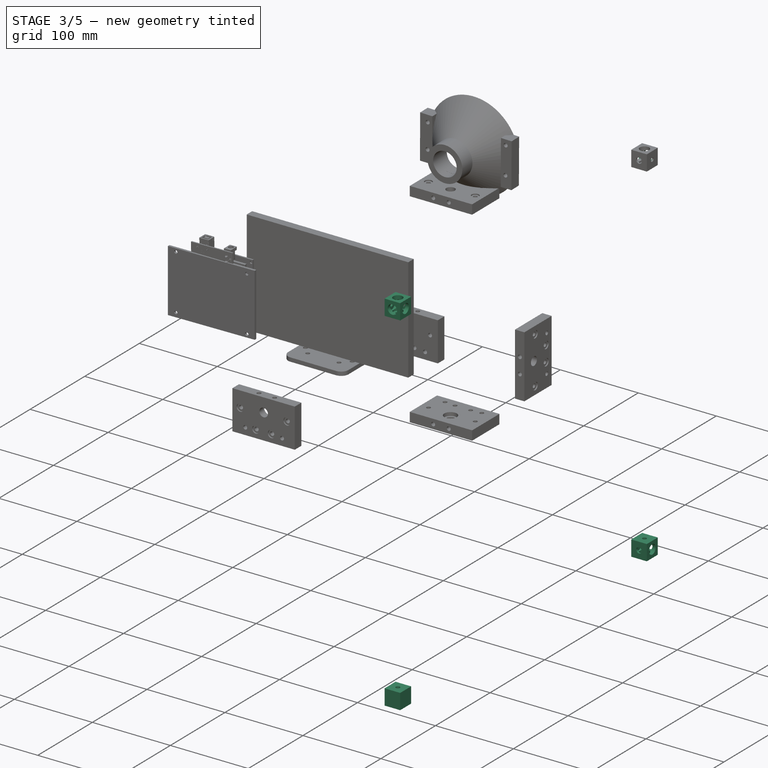
[diagram: stage 3 of 5 — iso view after this stage's code; geometry added in this stage tinted green]
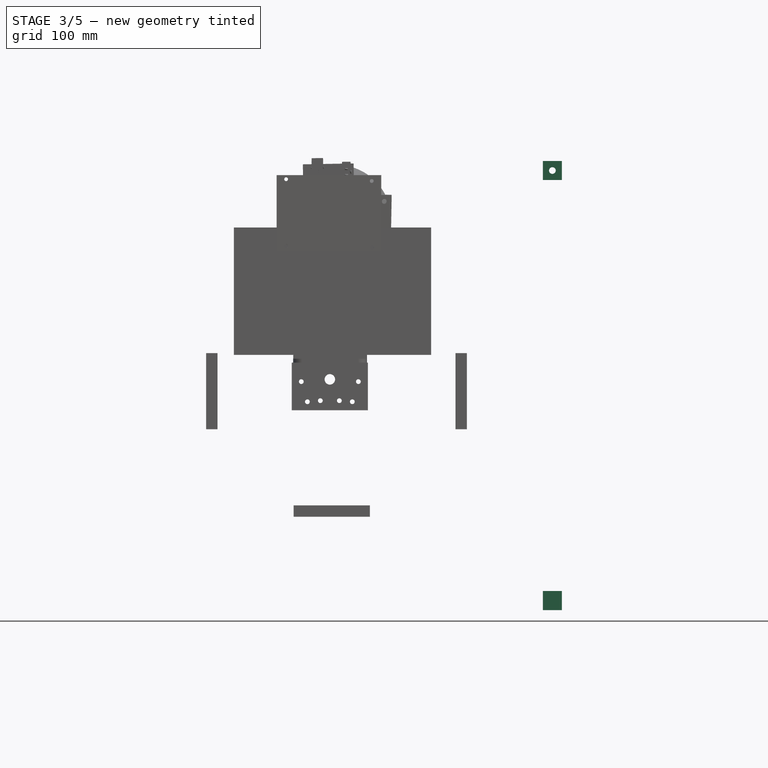
[diagram: stage 3 of 5 — front view after this stage's code; geometry added in this stage tinted green]
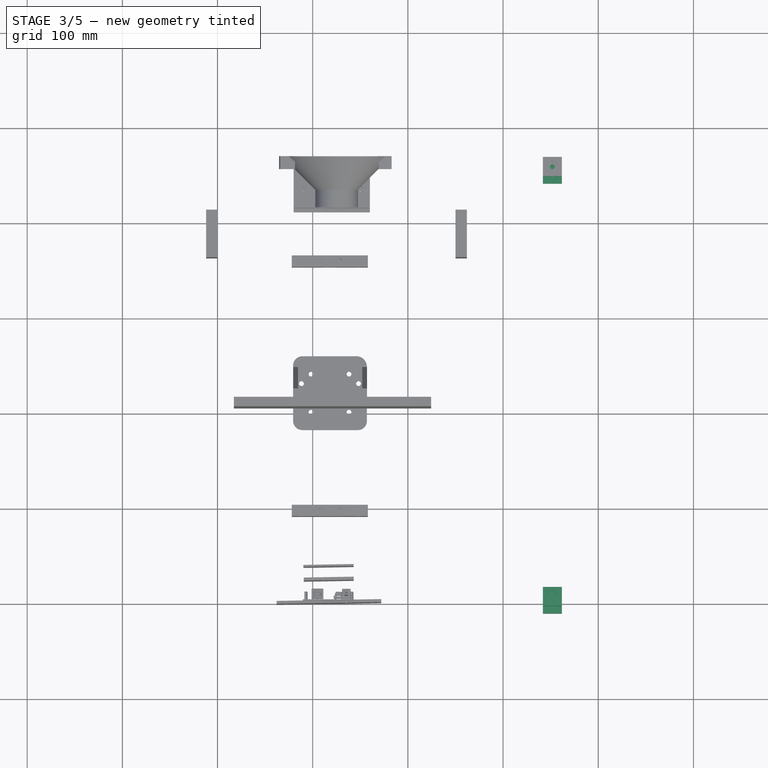
[diagram: stage 3 of 5 — top view after this stage's code; geometry added in this stage tinted green]
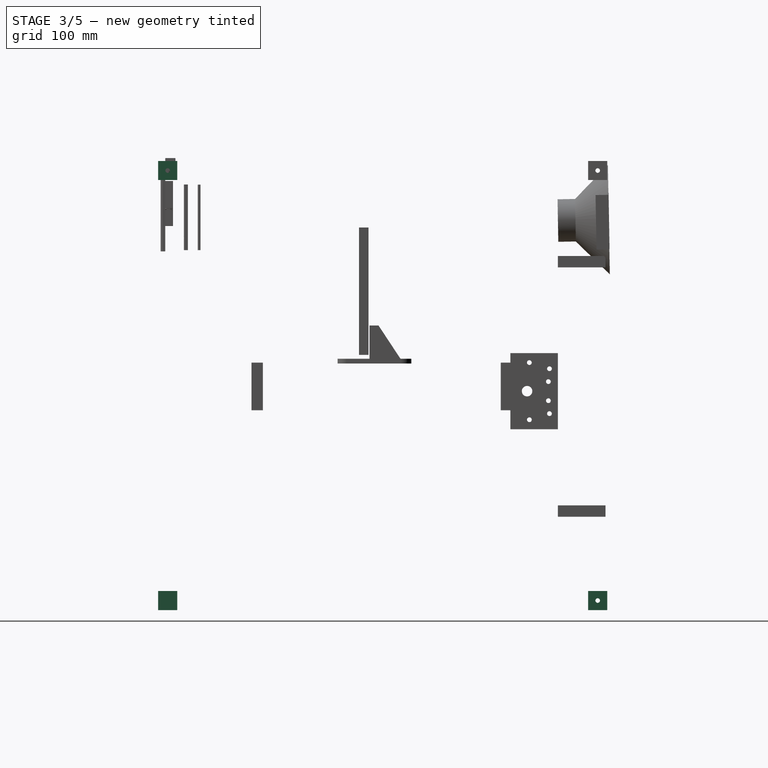
[diagram: stage 3 of 5 — right view after this stage's code; geometry added in this stage tinted green]
FEATURE [App::DocumentObjectGroup] Group022  label="aluminum_extrusion_20mm_corner_cube3"
  Group = -> [Pad021,Pocket036,Pocket037,Pocket038,Pocket039,Pocket040,Pocket041]
FEATURE [Sketcher::SketchObject] Sketch067
  Placement = pos=(451.8,0,0) rot=(0,0,1;1.5708rad)
  sketch-geometry (4):
    g0: LineSegment StartX=-10 StartY=10 StartZ=0 EndX=10 EndY=10 EndZ=0
    g1: LineSegment StartX=10 StartY=10 StartZ=0 EndX=10 EndY=-10 EndZ=0
    g2: LineSegment StartX=10 StartY=-10 StartZ=0 EndX=-10 EndY=-10 EndZ=0
    g3: LineSegment StartX=-10 StartY=-10 StartZ=0 EndX=-10 EndY=10 EndZ=0
  constraints (8):
    c: Coincident(g0,g1)
    c: Coincident(g1,g2)
    c: Coincident(g2,g3)
    c: Coincident(g3,g0)
    c: Horizontal(g0)
    c: Horizontal(g2)
    c: Vertical(g1)
    c: Vertical(g3)
FEATURE [PartDesign::Pad] Pad022
  Length = 20
  Length2 = 100
  Midplane = true
  Placement = pos=(451.8,0,0) rot=(0,0,1;1.5708rad)
  Sketch = -> Sketch067
  Type = 0
FEATURE [Sketcher::SketchObject] Sketch068
  Placement = pos=(451.8,0,-10) rot=(0.707107,0.707107,0;3.14159rad)
  Support = -> Pad022 [Face5]
  sketch-geometry (1):
    g0: Circle CenterX=0 CenterY=0 CenterZ=0 NormalX=0 NormalY=0 NormalZ=1 Radius=5.96622
FEATURE [PartDesign::Pocket] Pocket042
  Length = 18
  Placement = pos=(451.8,0,0) rot=(0,0,1;1.5708rad)
  Sketch = -> Sketch068
  Type = 0
FEATURE [Sketcher::SketchObject] Sketch069
  Placement = pos=(451.8,0,10) rot=(0,0,1;1.5708rad)
  Support = -> Pocket042 [Face5]
  sketch-geometry (1):
    g0: Circle CenterX=0 CenterY=0 CenterZ=0 NormalX=0 NormalY=0 NormalZ=1 Radius=2.58129
FEATURE [PartDesign::Pocket] Pocket043
  Length = 2
  Placement = pos=(451.8,0,0) rot=(0,0,1;1.5708rad)
  Sketch = -> Sketch069
  Type = 0
FEATURE [App::DocumentObjectGroup] Group023  label="aluminum_extrusion_20mm_corner_cube4"
  Group = -> [Pad022,Pocket042,Pocket043,Pocket044,Pocket045,Pocket046,Pocket047]
FEATURE [Sketcher::SketchObject] Sketch074
  Placement = pos=(451.8,451.8,0) rot=(0,0,1;3.14159rad)
  sketch-geometry (4):
    g0: LineSegment StartX=-10 StartY=10 StartZ=0 EndX=10 EndY=10 EndZ=0
    g1: LineSegment StartX=10 StartY=10 StartZ=0 EndX=10 EndY=-10 EndZ=0
    g2: LineSegment StartX=10 StartY=-10 StartZ=0 EndX=-10 EndY=-10 EndZ=0
    g3: LineSegment StartX=-10 StartY=-10 StartZ=0 EndX=-10 EndY=10 EndZ=0
  constraints (8):
    c: Coincident(g0,g1)
    c: Coincident(g1,g2)
    c: Coincident(g2,g3)
    c: Coincident(g3,g0)
    c: Horizontal(g0)
    c: Horizontal(g2)
    c: Vertical(g1)
    c: Vertical(g3)
FEATURE [PartDesign::Pad] Pad023
  Length = 20
  Length2 = 100
  Midplane = true
  Placement = pos=(451.8,451.8,0) rot=(0,0,1;3.14159rad)
  Sketch = -> Sketch074
  Type = 0
FEATURE [Sketcher::SketchObject] Sketch075
  Placement = pos=(451.8,451.8,-10) rot=(0,1,0;3.14159rad)
  Support = -> Pad023 [Face5]
  sketch-geometry (1):
    g0: Circle CenterX=0 CenterY=0 CenterZ=0 NormalX=0 NormalY=0 NormalZ=1 Radius=5.96622
FEATURE [PartDesign::Pocket] Pocket048
  Length = 18
  Placement = pos=(451.8,451.8,0) rot=(0,0,1;3.14159rad)
  Sketch = -> Sketch075
  Type = 0
FEATURE [Sketcher::SketchObject] Sketch076
  Placement = pos=(451.8,451.8,10) rot=(0,0,1;3.14159rad)
  Support = -> Pocket048 [Face5]
  sketch-geometry (1):
    g0: Circle CenterX=0 CenterY=0 CenterZ=0 NormalX=0 NormalY=0 NormalZ=1 Radius=2.58129
FEATURE [PartDesign::Pocket] Pocket049
  Length = 2
  Placement = pos=(451.8,451.8,0) rot=(0,0,1;3.14159rad)
  Sketch = -> Sketch076
  Type = 0
FEATURE [Sketcher::SketchObject] Sketch077
  Placement = pos=(451.8,461.8,0) rot=(0,0.707107,0.707107;3.14159rad)
  Support = -> Pocket049 [Face6]
  sketch-geometry (1):
    g0: Circle CenterX=0 CenterY=0 CenterZ=0 NormalX=0 NormalY=0 NormalZ=1 Radius=6.02055
FEATURE [PartDesign::Pocket] Pocket050
  Length = 18
  Placement = pos=(451.8,451.8,0) rot=(0,0,1;3.14159rad)
  Sketch = -> Sketch077
  Type = 0
FEATURE [Sketcher::SketchObject] Sketch078
  Placement = pos=(451.8,441.8,0) rot=(1,0,0;1.5708rad)
  Support = -> Pocket050 [Face1]
  sketch-geometry (1):
    g0: Circle CenterX=0 CenterY=0 CenterZ=0 NormalX=0 NormalY=0 NormalZ=1 Radius=3.5182
  constraints (1):
    c: Coincident(g0,g-1)
FEATURE [PartDesign::Pocket] Pocket051
  Length = 2
  Placement = pos=(451.8,451.8,0) rot=(0,0,1;3.14159rad)
  Sketch = -> Sketch078
  Type = 0
FEATURE [Sketcher::SketchObject] Sketch079
  Placement = pos=(461.8,451.8,0) rot=(0.57735,0.57735,0.57735;2.0944rad)
  Support = -> Pocket051 [Face2]
  sketch-geometry (1):
    g0: Circle CenterX=0 CenterY=0 CenterZ=0 NormalX=0 NormalY=0 NormalZ=1 Radius=6.02302
FEATURE [PartDesign::Pocket] Pocket052
  Length = 18
  Placement = pos=(451.8,451.8,0) rot=(0,0,1;3.14159rad)
  Sketch = -> Sketch079
  Type = 0
FEATURE [Sketcher::SketchObject] Sketch080
  Placement = pos=(441.8,451.8,0) rot=(-0.57735,0.57735,0.57735;4.18879rad)
  Support = -> Pocket052 [Face5]
  sketch-geometry (1):
    g0: Circle CenterX=0 CenterY=0 CenterZ=0 NormalX=0 NormalY=0 NormalZ=1 Radius=2.40921
FEATURE [PartDesign::Pocket] Pocket053
  Length = 2
  Placement = pos=(451.8,451.8,0) rot=(0,0,1;3.14159rad)
  Sketch = -> Sketch080
  Type = 0
FEATURE [App::DocumentObjectGroup] Group005  label="aluminum_extrusion_20mm_corner_cube5"
  Group = -> [Pad023,Pocket048,Pocket049,Pocket050,Pocket051,Pocket052,Pocket053]
FEATURE [Sketcher::SketchObject] Sketch081
  Placement = pos=(451.8,0,451.8) rot=(0,1,0;3.14159rad)
  sketch-geometry (4):
    g0: LineSegment StartX=-10 StartY=10 StartZ=0 EndX=10 EndY=10 EndZ=0
    g1: LineSegment StartX=10 StartY=10 StartZ=0 EndX=10 EndY=-10 EndZ=0
    g2: LineSegment StartX=10 StartY=-10 StartZ=0 EndX=-10 EndY=-10 EndZ=0
    g3: LineSegment StartX=-10 StartY=-10 StartZ=0 EndX=-10 EndY=10 EndZ=0
  constraints (8):
    c: Coincident(g0,g1)
    c: Coincident(g1,g2)
    c: Coincident(g2,g3)
    c: Coincident(g3,g0)
    c: Horizontal(g0)
    c: Horizontal(g2)
    c: Vertical(g1)
    c: Vertical(g3)
FEATURE [PartDesign::Pad] Pad024
  Length = 20
  Length2 = 100
  Midplane = true
  Placement = pos=(451.8,0,451.8) rot=(0,1,0;3.14159rad)
  Sketch = -> Sketch081
  Type = 0
FEATURE [Sketcher::SketchObject] Sketch082
  Placement = pos=(451.8,0,461.8) rot=(0,0,1;3.14159rad)
  Support = -> Pad024 [Face5]
  sketch-geometry (1):
    g0: Circle CenterX=0 CenterY=0 CenterZ=0 NormalX=0 NormalY=0 NormalZ=1 Radius=5.96622
FEATURE [PartDesign::Pocket] Pocket054
  Length = 18
  Placement = pos=(451.8,0,451.8) rot=(0,1,0;3.14159rad)
  Sketch = -> Sketch082
  Type = 0
FEATURE [Sketcher::SketchObject] Sketch083
  Placement = pos=(451.8,0,441.8) rot=(0,1,0;3.14159rad)
  Support = -> Pocket054 [Face5]
  sketch-geometry (1):
    g0: Circle CenterX=0 CenterY=0 CenterZ=0 NormalX=0 NormalY=0 NormalZ=1 Radius=2.58129
FEATURE [PartDesign::Pocket] Pocket055
  Length = 2
  Placement = pos=(451.8,0,451.8) rot=(0,1,0;3.14159rad)
  Sketch = -> Sketch083
  Type = 0
FEATURE [Sketcher::SketchObject] Sketch084
  Placement = pos=(451.8,-10,451.8) rot=(0,0.707107,-0.707107;3.14159rad)
  Support = -> Pocket055 [Face6]
  sketch-geometry (1):
    g0: Circle CenterX=0 CenterY=0 CenterZ=0 NormalX=0 NormalY=0 NormalZ=1 Radius=6.02055
FEATURE [PartDesign::Pocket] Pocket056
  Length = 18
  Placement = pos=(451.8,0,451.8) rot=(0,1,0;3.14159rad)
  Sketch = -> Sketch084
  Type = 0
FEATURE [Sketcher::SketchObject] Sketch085
  Placement = pos=(451.8,10,451.8) rot=(-1,0,0;1.5708rad)
  Support = -> Pocket056 [Face1]
  sketch-geometry (1):
    g0: Circle CenterX=0 CenterY=0 CenterZ=0 NormalX=0 NormalY=0 NormalZ=1 Radius=3.5182
  constraints (1):
    c: Coincident(g0,g-1)
FEATURE [PartDesign::Pocket] Pocket057
  Length = 2
  Placement = pos=(451.8,0,451.8) rot=(0,1,0;3.14159rad)
  Sketch = -> Sketch085
  Type = 0
FEATURE [Sketcher::SketchObject] Sketch086
  Placement = pos=(461.8,0,451.8) rot=(0.57735,-0.57735,0.57735;4.18879rad)
  Support = -> Pocket057 [Face2]
  sketch-geometry (1):
    g0: Circle CenterX=0 CenterY=0 CenterZ=0 NormalX=0 NormalY=0 NormalZ=1 Radius=6.02302
FEATURE [PartDesign::Pocket] Pocket058
  Length = 18
  Placement = pos=(451.8,0,451.8) rot=(0,1,0;3.14159rad)
  Sketch = -> Sketch086
  Type = 0
FEATURE [Sketcher::SketchObject] Sketch087
  Placement = pos=(441.8,0,451.8) rot=(0.57735,0.57735,-0.57735;4.18879rad)
  Support = -> Pocket058 [Face5]
  sketch-geometry (1):
    g0: Circle CenterX=0 CenterY=0 CenterZ=0 NormalX=0 NormalY=0 NormalZ=1 Radius=2.40921
FEATURE [PartDesign::Pocket] Pocket059
  Length = 2
  Placement = pos=(451.8,0,451.8) rot=(0,1,0;3.14159rad)
  Sketch = -> Sketch087
  Type = 0
FEATURE [Sketcher::SketchObject] Sketch091
  Placement = pos=(451.8,461.8,451.8) rot=(-1,0,0;1.5708rad)
  Support = -> Pocket061 [Face6]
  sketch-geometry (1):
    g0: Circle CenterX=0 CenterY=0 CenterZ=0 NormalX=0 NormalY=0 NormalZ=1 Radius=6.02055
FEATURE [PartDesign::Pocket] Pocket062
  Length = 18
  Placement = pos=(451.8,451.8,451.8) rot=(1,0,0;3.14159rad)
  Sketch = -> Sketch091
  Type = 0
FEATURE [Sketcher::SketchObject] Sketch092
  Placement = pos=(451.8,441.8,451.8) rot=(0,-0.707107,0.707107;3.14159rad)
  Support = -> Pocket062 [Face1]
  sketch-geometry (1):
    g0: Circle CenterX=0 CenterY=0 CenterZ=0 NormalX=0 NormalY=0 NormalZ=1 Radius=3.5182
  constraints (1):
    c: Coincident(g0,g-1)
FEATURE [PartDesign::Pocket] Pocket063
  Length = 2
  Placement = pos=(451.8,451.8,451.8) rot=(1,0,0;3.14159rad)
  Sketch = -> Sketch092
  Type = 0
FEATURE [Sketcher::SketchObject] Sketch093
  Placement = pos=(441.8,451.8,451.8) rot=(-0.57735,-0.57735,0.57735;2.0944rad)
  Support = -> Pocket063 [Face2]
  sketch-geometry (1):
    g0: Circle CenterX=0 CenterY=0 CenterZ=0 NormalX=0 NormalY=0 NormalZ=1 Radius=6.02302
FEATURE [PartDesign::Pocket] Pocket064
  Length = 18
  Placement = pos=(451.8,451.8,451.8) rot=(1,0,0;3.14159rad)
  Sketch = -> Sketch093
  Type = 0
FEATURE [Sketcher::SketchObject] Sketch094
  Placement = pos=(461.8,451.8,451.8) rot=(0.57735,-0.57735,0.57735;4.18879rad)
  Support = -> Pocket064 [Face5]
  sketch-geometry (1):
    g0: Circle CenterX=0 CenterY=0 CenterZ=0 NormalX=0 NormalY=0 NormalZ=1 Radius=2.40921
FEATURE [PartDesign::Pocket] Pocket065
  Length = 2
  Placement = pos=(451.8,451.8,451.8) rot=(1,0,0;3.14159rad)
  Sketch = -> Sketch094
  Type = 0
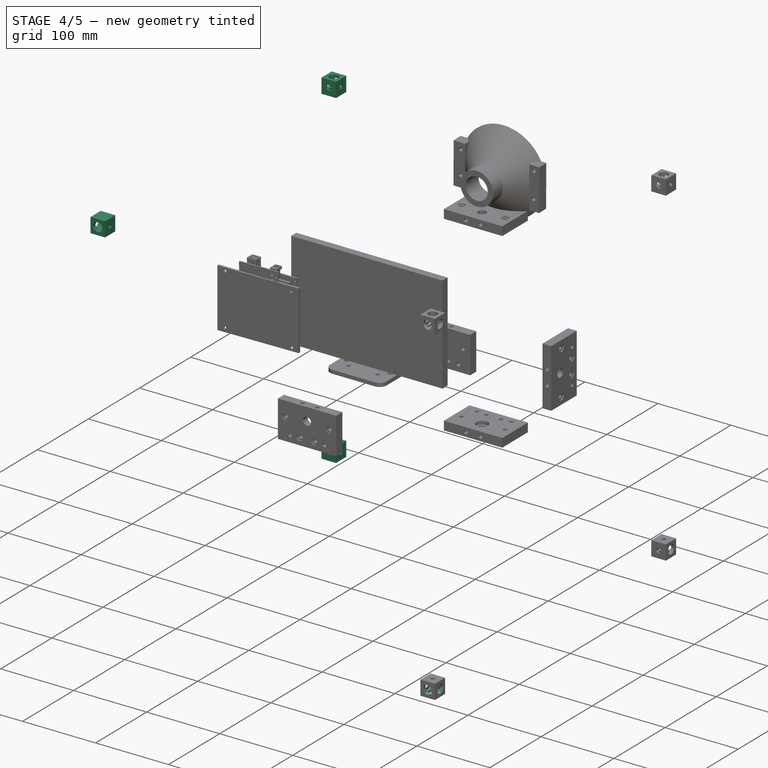
[diagram: stage 4 of 5 — iso view after this stage's code; geometry added in this stage tinted green]
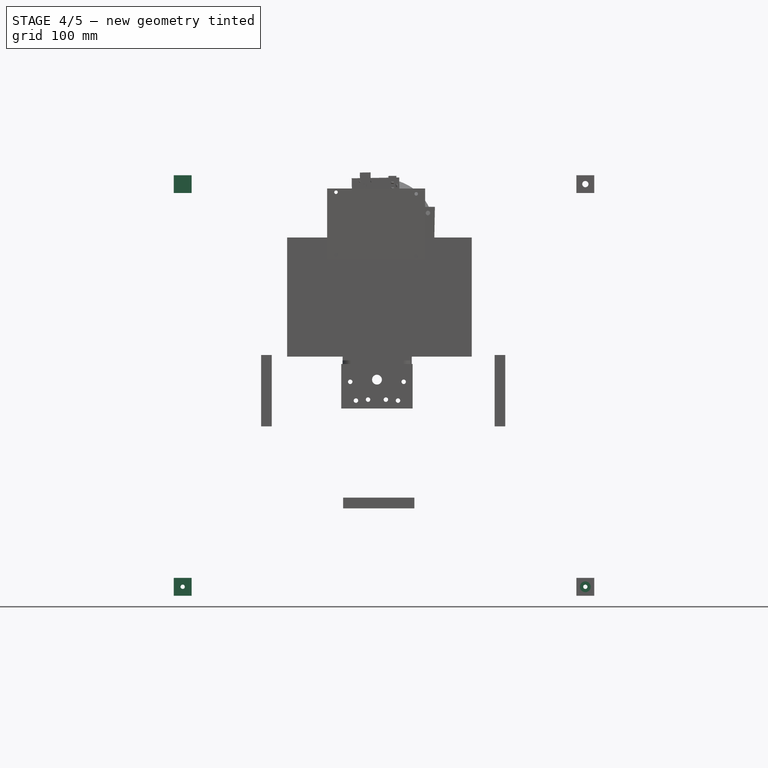
[diagram: stage 4 of 5 — front view after this stage's code; geometry added in this stage tinted green]
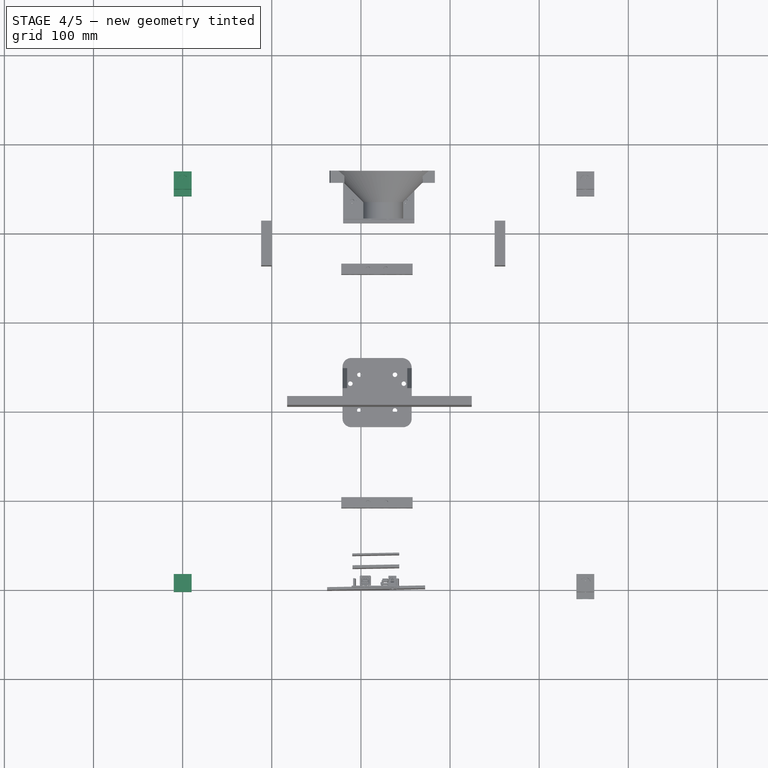
[diagram: stage 4 of 5 — top view after this stage's code; geometry added in this stage tinted green]
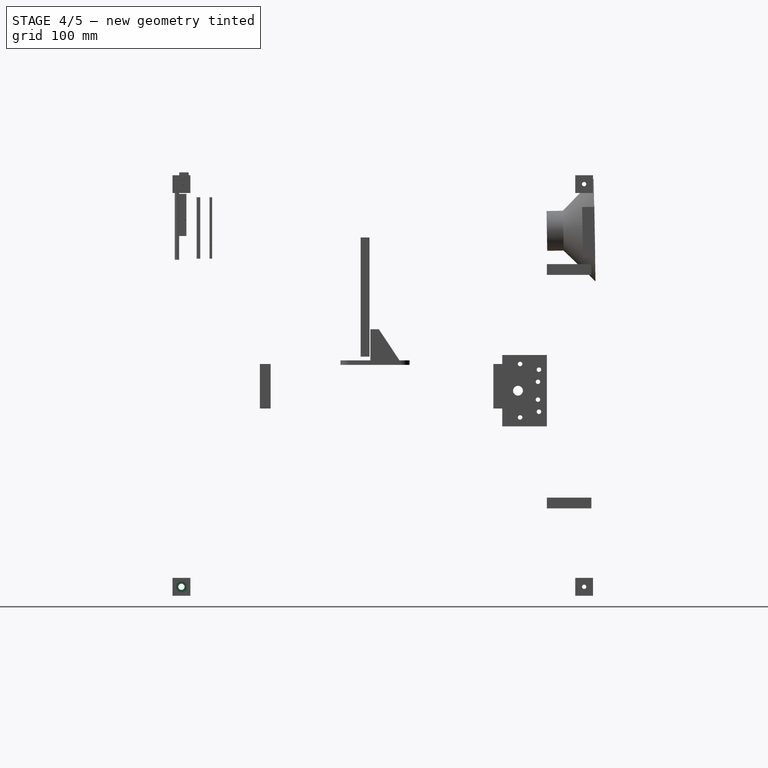
[diagram: stage 4 of 5 — right view after this stage's code; geometry added in this stage tinted green]
FEATURE [App::DocumentObjectGroup] Group019  label="aluminum_extrusion_20mm_corner_cube0"
  Group = -> [Pad018,Pocket018,Pocket019,Pocket020,Pocket021,Pocket022,Pocket023]
FEATURE [Sketcher::SketchObject] Sketch046
  Placement = pos=(0,0,451.8) rot=(0,1,0;1.5708rad)
  sketch-geometry (4):
    g0: LineSegment StartX=-10 StartY=10 StartZ=0 EndX=10 EndY=10 EndZ=0
    g1: LineSegment StartX=10 StartY=10 StartZ=0 EndX=10 EndY=-10 EndZ=0
    g2: LineSegment StartX=10 StartY=-10 StartZ=0 EndX=-10 EndY=-10 EndZ=0
    g3: LineSegment StartX=-10 StartY=-10 StartZ=0 EndX=-10 EndY=10 EndZ=0
  constraints (8):
    c: Coincident(g0,g1)
    c: Coincident(g1,g2)
    c: Coincident(g2,g3)
    c: Coincident(g3,g0)
    c: Horizontal(g0)
    c: Horizontal(g2)
    c: Vertical(g1)
    c: Vertical(g3)
FEATURE [PartDesign::Pad] Pad019
  Length = 20
  Length2 = 100
  Midplane = true
  Placement = pos=(0,0,451.8) rot=(0,1,0;1.5708rad)
  Sketch = -> Sketch046
  Type = 0
FEATURE [Sketcher::SketchObject] Sketch047
  Placement = pos=(-10,0,451.8) rot=(-0.707107,0,0.707107;3.14159rad)
  Support = -> Pad019 [Face5]
  sketch-geometry (1):
    g0: Circle CenterX=0 CenterY=0 CenterZ=0 NormalX=0 NormalY=0 NormalZ=1 Radius=5.96622
FEATURE [PartDesign::Pocket] Pocket024
  Length = 18
  Placement = pos=(0,0,451.8) rot=(0,1,0;1.5708rad)
  Sketch = -> Sketch047
  Type = 0
FEATURE [Sketcher::SketchObject] Sketch048
  Placement = pos=(10,0,451.8) rot=(0,1,0;1.5708rad)
  Support = -> Pocket024 [Face5]
  sketch-geometry (1):
    g0: Circle CenterX=0 CenterY=0 CenterZ=0 NormalX=0 NormalY=0 NormalZ=1 Radius=2.58129
FEATURE [PartDesign::Pocket] Pocket025
  Length = 2
  Placement = pos=(0,0,451.8) rot=(0,1,0;1.5708rad)
  Sketch = -> Sketch048
  Type = 0
FEATURE [Sketcher::SketchObject] Sketch049
  Placement = pos=(0,-10,451.8) rot=(0.57735,0.57735,-0.57735;2.0944rad)
  Support = -> Pocket025 [Face6]
  sketch-geometry (1):
    g0: Circle CenterX=0 CenterY=0 CenterZ=0 NormalX=0 NormalY=0 NormalZ=1 Radius=6.02055
FEATURE [PartDesign::Pocket] Pocket026
  Length = 18
  Placement = pos=(0,0,451.8) rot=(0,1,0;1.5708rad)
  Sketch = -> Sketch049
  Type = 0
FEATURE [App::DocumentObjectGroup] Group020  label="aluminum_extrusion_20mm_corner_cube1"
  Group = -> [Pad019,Pocket024,Pocket025,Pocket026,Pocket027,Pocket028,Pocket029]
FEATURE [Sketcher::SketchObject] Sketch053
  Placement = pos=(0,451.8,0) rot=(0,0,-1;1.5708rad)
  sketch-geometry (4):
    g0: LineSegment StartX=-10 StartY=10 StartZ=0 EndX=10 EndY=10 EndZ=0
    g1: LineSegment StartX=10 StartY=10 StartZ=0 EndX=10 EndY=-10 EndZ=0
    g2: LineSegment StartX=10 StartY=-10 StartZ=0 EndX=-10 EndY=-10 EndZ=0
    g3: LineSegment StartX=-10 StartY=-10 StartZ=0 EndX=-10 EndY=10 EndZ=0
  constraints (8):
    c: Coincident(g0,g1)
    c: Coincident(g1,g2)
    c: Coincident(g2,g3)
    c: Coincident(g3,g0)
    c: Horizontal(g0)
    c: Horizontal(g2)
    c: Vertical(g1)
    c: Vertical(g3)
FEATURE [PartDesign::Pad] Pad020
  Length = 20
  Length2 = 100
  Midplane = true
  Placement = pos=(0,451.8,0) rot=(0,0,-1;1.5708rad)
  Sketch = -> Sketch053
  Type = 0
FEATURE [Sketcher::SketchObject] Sketch054
  Placement = pos=(0,451.8,-10) rot=(-0.707107,0.707107,0;3.14159rad)
  Support = -> Pad020 [Face5]
  sketch-geometry (1):
    g0: Circle CenterX=0 CenterY=0 CenterZ=0 NormalX=0 NormalY=0 NormalZ=1 Radius=5.96622
FEATURE [PartDesign::Pocket] Pocket030
  Length = 18
  Placement = pos=(0,451.8,0) rot=(0,0,-1;1.5708rad)
  Sketch = -> Sketch054
  Type = 0
FEATURE [Sketcher::SketchObject] Sketch055
  Placement = pos=(0,451.8,10) rot=(0,0,-1;1.5708rad)
  Support = -> Pocket030 [Face5]
  sketch-geometry (1):
    g0: Circle CenterX=0 CenterY=0 CenterZ=0 NormalX=0 NormalY=0 NormalZ=1 Radius=2.58129
FEATURE [PartDesign::Pocket] Pocket031
  Length = 2
  Placement = pos=(0,451.8,0) rot=(0,0,-1;1.5708rad)
  Sketch = -> Sketch055
  Type = 0
FEATURE [Sketcher::SketchObject] Sketch056
  Placement = pos=(-10,451.8,0) rot=(-0.57735,0.57735,0.57735;4.18879rad)
  Support = -> Pocket031 [Face6]
  sketch-geometry (1):
    g0: Circle CenterX=0 CenterY=0 CenterZ=0 NormalX=0 NormalY=0 NormalZ=1 Radius=6.02055
FEATURE [PartDesign::Pocket] Pocket032
  Length = 18
  Placement = pos=(0,451.8,0) rot=(0,0,-1;1.5708rad)
  Sketch = -> Sketch056
  Type = 0
FEATURE [Sketcher::SketchObject] Sketch057
  Placement = pos=(10,451.8,0) rot=(0.57735,0.57735,0.57735;2.0944rad)
  Support = -> Pocket032 [Face1]
  sketch-geometry (1):
    g0: Circle CenterX=0 CenterY=0 CenterZ=0 NormalX=0 NormalY=0 NormalZ=1 Radius=3.5182
  constraints (1):
    c: Coincident(g0,g-1)
FEATURE [PartDesign::Pocket] Pocket033
  Length = 2
  Placement = pos=(0,451.8,0) rot=(0,0,-1;1.5708rad)
  Sketch = -> Sketch057
  Type = 0
FEATURE [Sketcher::SketchObject] Sketch058
  Placement = pos=(0,461.8,0) rot=(0,0.707107,0.707107;3.14159rad)
  Support = -> Pocket033 [Face2]
  sketch-geometry (1):
    g0: Circle CenterX=0 CenterY=0 CenterZ=0 NormalX=0 NormalY=0 NormalZ=1 Radius=6.02302
FEATURE [PartDesign::Pocket] Pocket034
  Length = 18
  Placement = pos=(0,451.8,0) rot=(0,0,-1;1.5708rad)
  Sketch = -> Sketch058
  Type = 0
FEATURE [Sketcher::SketchObject] Sketch059
  Placement = pos=(0,441.8,0) rot=(1,0,0;1.5708rad)
  Support = -> Pocket034 [Face5]
  sketch-geometry (1):
    g0: Circle CenterX=0 CenterY=0 CenterZ=0 NormalX=0 NormalY=0 NormalZ=1 Radius=2.40921
FEATURE [PartDesign::Pocket] Pocket035
  Length = 2
  Placement = pos=(0,451.8,0) rot=(0,0,-1;1.5708rad)
  Sketch = -> Sketch059
  Type = 0
FEATURE [App::DocumentObjectGroup] Group021  label="aluminum_extrusion_20mm_corner_cube2"
  Group = -> [Pad020,Pocket030,Pocket031,Pocket032,Pocket033,Pocket034,Pocket035]
FEATURE [Sketcher::SketchObject] Sketch060
  Placement = pos=(0,451.8,451.8) rot=(1,0,0;3.14159rad)
  sketch-geometry (4):
    g0: LineSegment StartX=-10 StartY=10 StartZ=0 EndX=10 EndY=10 EndZ=0
    g1: LineSegment StartX=10 StartY=10 StartZ=0 EndX=10 EndY=-10 EndZ=0
    g2: LineSegment StartX=10 StartY=-10 StartZ=0 EndX=-10 EndY=-10 EndZ=0
    g3: LineSegment StartX=-10 StartY=-10 StartZ=0 EndX=-10 EndY=10 EndZ=0
  constraints (8):
    c: Coincident(g0,g1)
    c: Coincident(g1,g2)
    c: Coincident(g2,g3)
    c: Coincident(g3,g0)
    c: Horizontal(g0)
    c: Horizontal(g2)
    c: Vertical(g1)
    c: Vertical(g3)
FEATURE [PartDesign::Pad] Pad021
  Length = 20
  Length2 = 100
  Midplane = true
  Placement = pos=(0,451.8,451.8) rot=(1,0,0;3.14159rad)
  Sketch = -> Sketch060
  Type = 0
FEATURE [Sketcher::SketchObject] Sketch061
  Placement = pos=(0,451.8,461.8) rot=(0,0,1;0rad)
  Support = -> Pad021 [Face5]
  sketch-geometry (1):
    g0: Circle CenterX=0 CenterY=0 CenterZ=0 NormalX=0 NormalY=0 NormalZ=1 Radius=5.96622
FEATURE [PartDesign::Pocket] Pocket036
  Length = 18
  Placement = pos=(0,451.8,451.8) rot=(1,0,0;3.14159rad)
  Sketch = -> Sketch061
  Type = 0
FEATURE [Sketcher::SketchObject] Sketch062
  Placement = pos=(0,451.8,441.8) rot=(1,0,0;3.14159rad)
  Support = -> Pocket036 [Face5]
  sketch-geometry (1):
    g0: Circle CenterX=0 CenterY=0 CenterZ=0 NormalX=0 NormalY=0 NormalZ=1 Radius=2.58129
FEATURE [PartDesign::Pocket] Pocket037
  Length = 2
  Placement = pos=(0,451.8,451.8) rot=(1,0,0;3.14159rad)
  Sketch = -> Sketch062
  Type = 0
FEATURE [Sketcher::SketchObject] Sketch063
  Placement = pos=(0,461.8,451.8) rot=(-1,0,0;1.5708rad)
  Support = -> Pocket037 [Face6]
  sketch-geometry (1):
    g0: Circle CenterX=0 CenterY=0 CenterZ=0 NormalX=0 NormalY=0 NormalZ=1 Radius=6.02055
FEATURE [PartDesign::Pocket] Pocket038
  Length = 18
  Placement = pos=(0,451.8,451.8) rot=(1,0,0;3.14159rad)
  Sketch = -> Sketch063
  Type = 0
FEATURE [Sketcher::SketchObject] Sketch064
  Placement = pos=(0,441.8,451.8) rot=(0,-0.707107,0.707107;3.14159rad)
  Support = -> Pocket038 [Face1]
  sketch-geometry (1):
    g0: Circle CenterX=0 CenterY=0 CenterZ=0 NormalX=0 NormalY=0 NormalZ=1 Radius=3.5182
  constraints (1):
    c: Coincident(g0,g-1)
FEATURE [PartDesign::Pocket] Pocket039
  Length = 2
  Placement = pos=(0,451.8,451.8) rot=(1,0,0;3.14159rad)
  Sketch = -> Sketch064
  Type = 0
FEATURE [Sketcher::SketchObject] Sketch065
  Placement = pos=(-10,451.8,451.8) rot=(-0.57735,-0.57735,0.57735;2.0944rad)
  Support = -> Pocket039 [Face2]
  sketch-geometry (1):
    g0: Circle CenterX=0 CenterY=0 CenterZ=0 NormalX=0 NormalY=0 NormalZ=1 Radius=6.02302
FEATURE [PartDesign::Pocket] Pocket040
  Length = 18
  Placement = pos=(0,451.8,451.8) rot=(1,0,0;3.14159rad)
  Sketch = -> Sketch065
  Type = 0
FEATURE [Sketcher::SketchObject] Sketch066
  Placement = pos=(10,451.8,451.8) rot=(0.57735,-0.57735,0.57735;4.18879rad)
  Support = -> Pocket040 [Face5]
  sketch-geometry (1):
    g0: Circle CenterX=0 CenterY=0 CenterZ=0 NormalX=0 NormalY=0 NormalZ=1 Radius=2.40921
FEATURE [PartDesign::Pocket] Pocket041
  Length = 2
  Placement = pos=(0,451.8,451.8) rot=(1,0,0;3.14159rad)
  Sketch = -> Sketch066
  Type = 0
FEATURE [Sketcher::SketchObject] Sketch070
  Placement = pos=(461.8,0,0) rot=(0.57735,0.57735,0.57735;2.0944rad)
  Support = -> Pocket043 [Face6]
  sketch-geometry (1):
    g0: Circle CenterX=0 CenterY=0 CenterZ=0 NormalX=0 NormalY=0 NormalZ=1 Radius=6.02055
FEATURE [PartDesign::Pocket] Pocket044
  Length = 18
  Placement = pos=(451.8,0,0) rot=(0,0,1;1.5708rad)
  Sketch = -> Sketch070
  Type = 0
FEATURE [Sketcher::SketchObject] Sketch071
  Placement = pos=(441.8,0,0) rot=(0.57735,-0.57735,-0.57735;2.0944rad)
  Support = -> Pocket044 [Face1]
  sketch-geometry (1):
    g0: Circle CenterX=0 CenterY=0 CenterZ=0 NormalX=0 NormalY=0 NormalZ=1 Radius=3.5182
  constraints (1):
    c: Coincident(g0,g-1)
FEATURE [PartDesign::Pocket] Pocket045
  Length = 2
  Placement = pos=(451.8,0,0) rot=(0,0,1;1.5708rad)
  Sketch = -> Sketch071
  Type = 0
FEATURE [Sketcher::SketchObject] Sketch072
  Placement = pos=(451.8,-10,0) rot=(1,0,0;1.5708rad)
  Support = -> Pocket045 [Face2]
  sketch-geometry (1):
    g0: Circle CenterX=0 CenterY=0 CenterZ=0 NormalX=0 NormalY=0 NormalZ=1 Radius=6.02302
FEATURE [PartDesign::Pocket] Pocket046
  Length = 18
  Placement = pos=(451.8,0,0) rot=(0,0,1;1.5708rad)
  Sketch = -> Sketch072
  Type = 0
FEATURE [Sketcher::SketchObject] Sketch073
  Placement = pos=(451.8,10,0) rot=(0,0.707107,0.707107;3.14159rad)
  Support = -> Pocket046 [Face5]
  sketch-geometry (1):
    g0: Circle CenterX=0 CenterY=0 CenterZ=0 NormalX=0 NormalY=0 NormalZ=1 Radius=2.40921
FEATURE [PartDesign::Pocket] Pocket047
  Length = 2
  Placement = pos=(451.8,0,0) rot=(0,0,1;1.5708rad)
  Sketch = -> Sketch073
  Type = 0
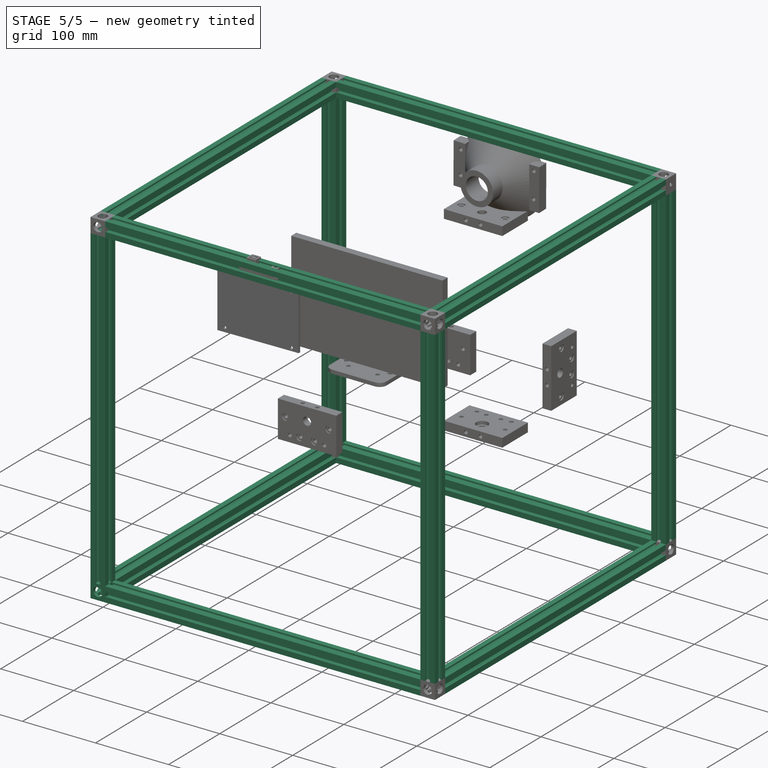
[diagram: stage 5 of 5 — iso view after this stage's code; geometry added in this stage tinted green]
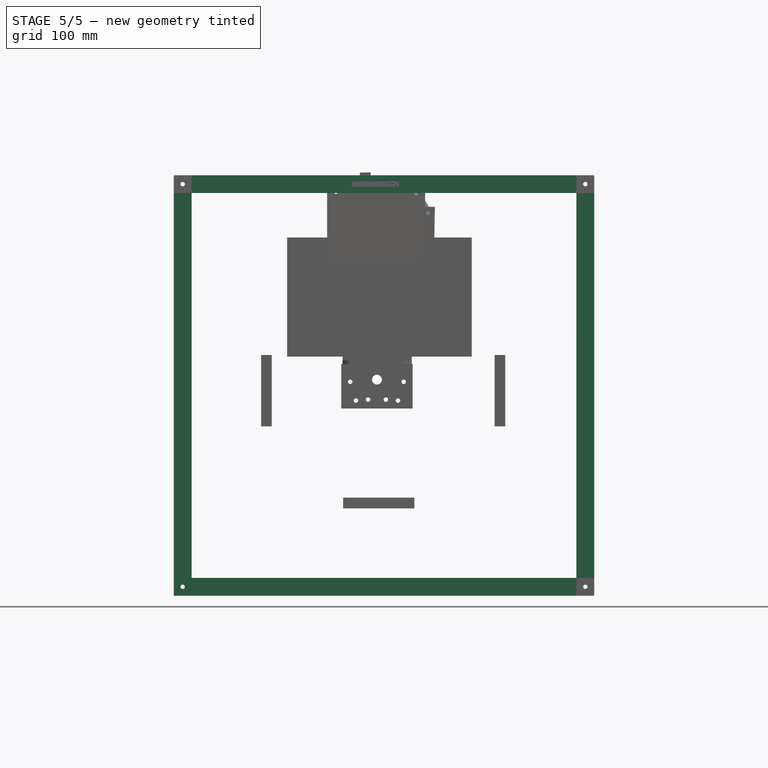
[diagram: stage 5 of 5 — front view after this stage's code; geometry added in this stage tinted green]
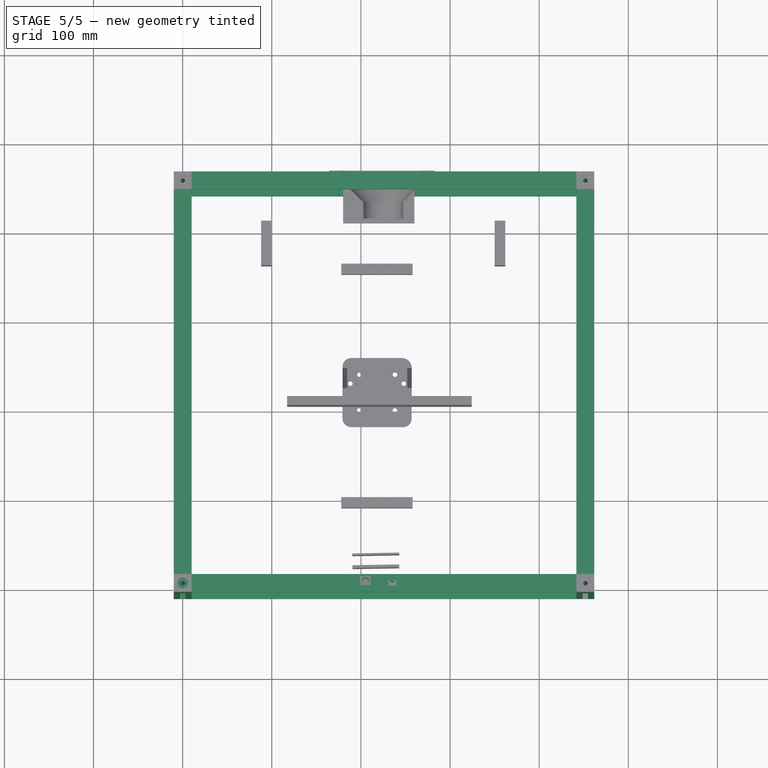
[diagram: stage 5 of 5 — top view after this stage's code; geometry added in this stage tinted green]
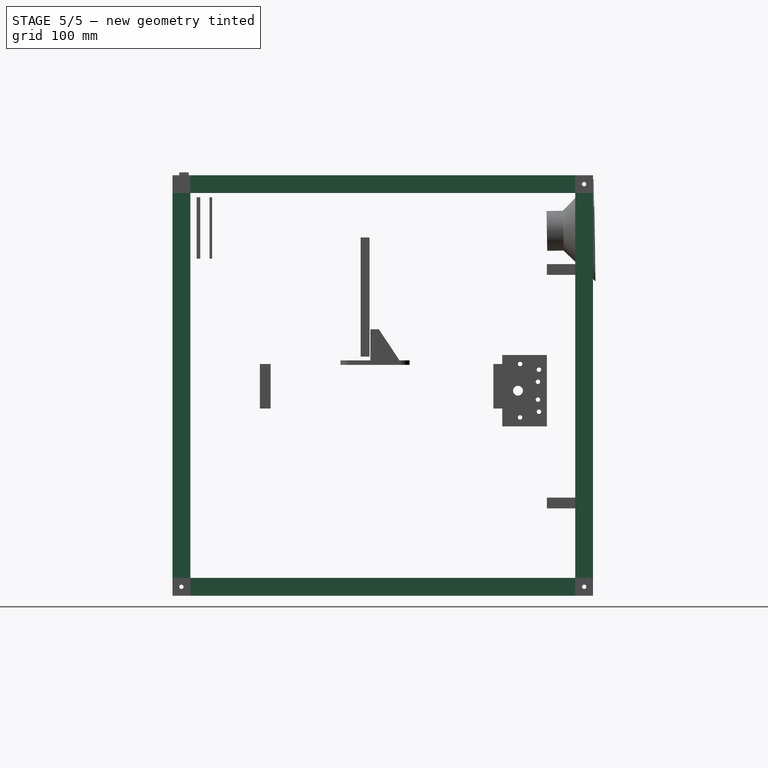
[diagram: stage 5 of 5 — right view after this stage's code; geometry added in this stage tinted green]
FEATURE [App::DocumentObjectGroup] Group015  label="endplate005"
  Group = -> [Pad005,Pocket015,Pocket016,Pocket017]
FEATURE [Part::Feature] Part__Feature085  label="gantry assem v035"
  Placement = pos=(217.346,217.223,241.864) rot=(0,0,-1;1.5708rad)
  shape: bbox 77.52 x 77.51 x 6 mm, 60 faces (baked)
FEATURE [Part::Feature] Part__Feature086  label="gantry assem v036"
  Placement = pos=(231.597,247.273,241.864) rot=(0.57735,0.57735,-0.57735;2.0944rad)
  shape: bbox 9.087 x 7.901 x 7.62 mm, 13 faces (baked)
FEATURE [Part::Feature] Part__Feature087  label="gantry assem v037"
  Placement = pos=(203.097,187.273,235.514) rot=(0.696444,0.17301,0.696444;3.48422rad)
  shape: bbox 8 x 8 x 6.35 mm, 4 faces (baked)
FEATURE [Part::Feature] Part__Feature088  label="gantry assem v038"
  Placement = pos=(231.597,187.273,241.864) rot=(0.57735,0.57735,-0.57735;2.0944rad)
  shape: bbox 9.087 x 7.901 x 7.62 mm, 13 faces (baked)
FEATURE [Part::Feature] Part__Feature089  label="gantry assem v039"
  Placement = pos=(203.097,247.273,235.514) rot=(0.696444,0.17301,0.696444;3.48422rad)
  shape: bbox 8 x 8 x 6.35 mm, 4 faces (baked)
FEATURE [Part::Feature] Part__Feature090  label="gantry assem v040"
  Placement = pos=(203.097,187.273,248.114) rot=(-0.596027,-0.538056,0.596027;4.12885rad)
  shape: bbox 9.5 x 9.5 x 27.17 mm, 18 faces (baked)
FEATURE [Part::Feature] Part__Feature091  label="gantry assem v041"
  Placement = pos=(231.597,186.483,248.114) rot=(-0.596027,-0.538056,0.596027;4.12885rad)
  shape: bbox 9.5 x 9.5 x 27.17 mm, 18 faces (baked)
FEATURE [Part::Feature] Part__Feature092  label="gantry assem v042"
  Placement = pos=(231.597,246.483,248.114) rot=(-0.596027,-0.538056,0.596027;4.12885rad)
  shape: bbox 9.5 x 9.5 x 27.17 mm, 18 faces (baked)
FEATURE [Part::Feature] Part__Feature093  label="gantry assem v043"
  Placement = pos=(203.097,247.273,248.114) rot=(0.520531,0.676827,-0.520531;1.95159rad)
  shape: bbox 9.5 x 9.5 x 27.17 mm, 18 faces (baked)
FEATURE [Part::Feature] Part__Feature094  label="gantry assem v044"
  Placement = pos=(231.597,246.483,226.114) rot=(0.555406,0.83158,0;3.14159rad)
  shape: bbox 6 x 6 x 0.36 mm, 4 faces (baked)
FEATURE [Part::Feature] Part__Feature095  label="gantry assem v045"
  Placement = pos=(231.597,246.483,226.114) rot=(0.555406,0.83158,0;3.14159rad)
  shape: bbox 8.171 x 8.745 x 4.5 mm, 63 faces (baked)
FEATURE [Part::Feature] Part__Feature096  label="gantry assem v046"
  Placement = pos=(203.097,187.273,226.114) rot=(0.555406,0.83158,0;3.14159rad)
  shape: bbox 6 x 6 x 0.36 mm, 4 faces (baked)
FEATURE [Part::Feature] Part__Feature097  label="gantry assem v047"
  Placement = pos=(203.097,187.273,226.114) rot=(0.555406,0.83158,0;3.14159rad)
  shape: bbox 8.171 x 8.745 x 4.5 mm, 63 faces (baked)
FEATURE [Part::Feature] Part__Feature098  label="gantry assem v048"
  Placement = pos=(231.597,186.483,226.114) rot=(0.555406,0.83158,0;3.14159rad)
  shape: bbox 6 x 6 x 0.36 mm, 4 faces (baked)
FEATURE [Part::Feature] Part__Feature099  label="gantry assem v049"
  Placement = pos=(231.597,186.483,226.114) rot=(0.555406,0.83158,0;3.14159rad)
  shape: bbox 8.171 x 8.745 x 4.5 mm, 63 faces (baked)
FEATURE [Part::Feature] Part__Feature100  label="gantry assem v050"
  Placement = pos=(203.097,247.273,226.114) rot=(0.555406,0.83158,0;3.14159rad)
  shape: bbox 6 x 6 x 0.36 mm, 4 faces (baked)
FEATURE [Part::Feature] Part__Feature101  label="gantry assem v051"
  Placement = pos=(203.097,247.273,226.114) rot=(0.555406,0.83158,0;3.14159rad)
  shape: bbox 8.171 x 8.745 x 4.5 mm, 63 faces (baked)
FEATURE [Part::Feature] Part__Feature102  label="MINI WHEEL ASSEM032"
  Placement = pos=(203.097,187.273,230.814) rot=(0,0,-1;1.5708rad)
  shape: bbox 15.23 x 15.23 x 8.8 mm, 12 faces (baked)
FEATURE [Part::Feature] Part__Feature103  label="MINI WHEEL ASSEM033"
  Placement = pos=(203.097,187.273,230.314) rot=(0.57735,0.57735,0.57735;4.18879rad)
  shape: bbox 8 x 8 x 1 mm, 4 faces (baked)
FEATURE [Part::Feature] Part__Feature104  label="MINI WHEEL ASSEM034"
  Placement = pos=(203.097,187.273,228.214) rot=(0.57735,0.57735,0.57735;4.18879rad)
  shape: bbox 10 x 10 x 4.2 mm, 15 faces (baked)
FEATURE [Part::Feature] Part__Feature105  label="MINI WHEEL ASSEM035"
  Placement = pos=(203.097,187.273,233.414) rot=(0.485543,0.726978,-0.485543;1.88439rad)
  shape: bbox 10 x 10 x 4.2 mm, 15 faces (baked)
FEATURE [Part::Feature] Part__Feature106  label="MINI WHEEL ASSEM036"
  Placement = pos=(231.597,186.483,230.814) rot=(0,0,-1;1.5708rad)
  shape: bbox 15.23 x 15.23 x 8.8 mm, 12 faces (baked)
FEATURE [Part::Feature] Part__Feature107  label="MINI WHEEL ASSEM037"
  Placement = pos=(231.597,186.483,230.314) rot=(0.57735,0.57735,0.57735;4.18879rad)
  shape: bbox 8 x 8 x 1 mm, 4 faces (baked)
FEATURE [Part::Feature] Part__Feature108  label="MINI WHEEL ASSEM038"
  Placement = pos=(231.597,186.483,228.214) rot=(0.57735,0.57735,0.57735;4.18879rad)
  shape: bbox 10 x 10 x 4.2 mm, 15 faces (baked)
FEATURE [Part::Feature] Part__Feature109  label="MINI WHEEL ASSEM039"
  Placement = pos=(231.597,186.483,233.414) rot=(0.485543,0.726978,-0.485543;1.88439rad)
  shape: bbox 10 x 10 x 4.2 mm, 15 faces (baked)
FEATURE [Part::Feature] Part__Feature110  label="MINI WHEEL ASSEM040"
  Placement = pos=(203.097,247.273,230.814) rot=(0,0,-1;1.5708rad)
  shape: bbox 15.23 x 15.23 x 8.8 mm, 12 faces (baked)
FEATURE [Part::Feature] Part__Feature111  label="MINI WHEEL ASSEM041"
  Placement = pos=(203.097,247.273,230.314) rot=(0.57735,0.57735,0.57735;4.18879rad)
  shape: bbox 8 x 8 x 1 mm, 4 faces (baked)
FEATURE [Part::Feature] Part__Feature112  label="MINI WHEEL ASSEM042"
  Placement = pos=(203.097,247.273,228.214) rot=(0.57735,0.57735,0.57735;4.18879rad)
  shape: bbox 10 x 10 x 4.2 mm, 15 faces (baked)
FEATURE [Part::Feature] Part__Feature113  label="MINI WHEEL ASSEM043"
  Placement = pos=(203.097,247.273,233.414) rot=(0.485543,0.726978,-0.485543;1.88439rad)
  shape: bbox 10 x 10 x 4.2 mm, 15 faces (baked)
FEATURE [Part::Feature] Part__Feature114  label="MINI WHEEL ASSEM044"
  Placement = pos=(231.597,246.483,230.814) rot=(0,0,-1;1.5708rad)
  shape: bbox 15.23 x 15.23 x 8.8 mm, 12 faces (baked)
FEATURE [Part::Feature] Part__Feature115  label="MINI WHEEL ASSEM045"
  Placement = pos=(231.597,246.483,230.314) rot=(0.57735,0.57735,0.57735;4.18879rad)
  shape: bbox 8 x 8 x 1 mm, 4 faces (baked)
FEATURE [Part::Feature] Part__Feature116  label="MINI WHEEL ASSEM046"
  Placement = pos=(231.597,246.483,228.214) rot=(0.57735,0.57735,0.57735;4.18879rad)
  shape: bbox 10 x 10 x 4.2 mm, 15 faces (baked)
FEATURE [Part::Feature] Part__Feature117  label="MINI WHEEL ASSEM047"
  Placement = pos=(231.597,246.483,233.414) rot=(0.485543,0.726978,-0.485543;1.88439rad)
  shape: bbox 10 x 10 x 4.2 mm, 15 faces (baked)
FEATURE [App::DocumentObjectGroup] Group016  label="gantry assembly002"
  Group = -> [Part__Feature085,Part__Feature086,Part__Feature087,Part__Feature088,Part__Feature089,Part__Feature090,Part__Feature091,Part__Feature092,Part__Feature093,Part__Feature094,Part__Feature095,Part__Feature096,Part__Feature097,Part__Feature098,Part__Feature099,Part__Feature100,Part__Feature101,Part__Feature102,Part__Feature103,Part__Feature104,Part__Feature105,Part__Feature106,Part__Feature107,+10 more]
FEATURE [Part::Feature] Part__Feature118  label="1.5 inch Aluminum Spacer004"
  Placement = pos=(241,88,207) rot=(0.57735,-0.57735,0.57735;4.18879rad)
  shape: bbox 8 x 38.1 x 8 mm, 6 faces (baked)
FEATURE [Part::Feature] Part__Feature119  label="1.5 inch Aluminum Spacer005"
  Placement = pos=(193,88,207) rot=(0.57735,-0.57735,0.57735;4.18879rad)
  shape: bbox 8 x 38.1 x 8 mm, 6 faces (baked)
FEATURE [Part::Feature] Part__Feature120  label="5mm x 8mm Flexible Coupling014"
  Placement = pos=(218,85,232) rot=(-1,0,0;1.5708rad)
  shape: bbox 24 x 3.49 x 23.97 mm, 14 faces (baked)
FEATURE [Part::Feature] Part__Feature121  label="5mm x 8mm Flexible Coupling015"
  Placement = pos=(218,85,232) rot=(-1,0,0;1.5708rad)
  shape: bbox 24 x 3.49 x 23.97 mm, 10 faces (baked)
FEATURE [Part::Feature] Part__Feature122  label="5mm x 8mm Flexible Coupling016"
  Placement = pos=(218,85,232) rot=(-1,0,0;1.5708rad)
  shape: bbox 24 x 3.49 x 23.97 mm, 10 faces (baked)
FEATURE [Part::Feature] Part__Feature123  label="5mm x 8mm Flexible Coupling017"
  Placement = pos=(218,85,232) rot=(-1,0,0;1.5708rad)
  shape: bbox 24 x 3.67 x 23.96 mm, 10 faces (baked)
FEATURE [Part::Feature] Part__Feature124  label="5mm x 8mm Flexible Coupling018"
  Placement = pos=(218,85,232) rot=(-1,0,0;1.5708rad)
  shape: bbox 24 x 9.007 x 23.97 mm, 31 faces (baked)
FEATURE [Part::Feature] Part__Feature125  label="5mm x 8mm Flexible Coupling019"
  Placement = pos=(218,85,232) rot=(-1,0,0;1.5708rad)
  shape: bbox 24 x 10.64 x 23.96 mm, 31 faces (baked)
FEATURE [App::DocumentObjectGroup] Group017  label="5mm x 8mm Flexible Coupling020"
  Group = -> [Part__Feature120,Part__Feature121,Part__Feature122,Part__Feature123,Part__Feature124,Part__Feature125]
FEATURE [Part::Feature] Part__Feature126  label="Nema23Motor_part002"
  Placement = pos=(-954,-50,290) rot=(1,0,0;3.14159rad)
  shape: bbox 61.91 x 75.2 x 61.91 mm, 24 faces (baked)
FEATURE [App::DocumentObjectGroup] Group018  label="Z axis linear motor"
  Group = -> [Group013,Group014,Group015,Group016,Part__Feature118,Part__Feature119,Group017,Part__Feature126]
FEATURE [Sketcher::SketchObject] Sketch027  label="aluminum_extrusion_20mm_profile0"
  Placement = pos=(0,0,10) rot=(0,0,1;0rad)
  sketch-geometry (45):
    g0: LineSegment StartX=-10 StartY=10 StartZ=0 EndX=-3 EndY=10 EndZ=0
    g1: LineSegment StartX=-3 StartY=10 StartZ=0 EndX=-3 EndY=8 EndZ=0
    g2: LineSegment StartX=-3 StartY=8 StartZ=0 EndX=-6 EndY=8 EndZ=0
    g3: LineSegment StartX=-6 StartY=8 StartZ=0 EndX=-6 EndY=7 EndZ=0
    g4: LineSegment StartX=-6 StartY=7 StartZ=0 EndX=-3 EndY=4 EndZ=0
    g5: LineSegment StartX=-3 StartY=4 StartZ=0 EndX=3 EndY=4 EndZ=0
    g6: LineSegment StartX=3 StartY=4 StartZ=0 EndX=6 EndY=7 EndZ=0
    g7: LineSegment StartX=6 StartY=7 StartZ=0 EndX=6 EndY=8 EndZ=0
    g8: LineSegment StartX=6 StartY=8 StartZ=0 EndX=3 EndY=8 EndZ=0
    g9: LineSegment StartX=3 StartY=8 StartZ=0 EndX=3 EndY=10 EndZ=0
    g10: LineSegment StartX=3 StartY=10 StartZ=0 EndX=10 EndY=10 EndZ=0
    g11: LineSegment StartX=10 StartY=10 StartZ=0 EndX=10 EndY=3 EndZ=0
    g12: LineSegment StartX=10 StartY=3 StartZ=0 EndX=8 EndY=3 EndZ=0
    g13: LineSegment StartX=8 StartY=3 StartZ=0 EndX=8 EndY=6 EndZ=0
    g14: LineSegment StartX=8 StartY=6 StartZ=0 EndX=7 EndY=6 EndZ=0
    g15: LineSegment StartX=7 StartY=6 StartZ=0 EndX=4 EndY=3 EndZ=0
    g16: LineSegment StartX=4 StartY=3 StartZ=0 EndX=4 EndY=-3 EndZ=0
    g17: LineSegment StartX=4 StartY=-3 StartZ=0 EndX=7 EndY=-6 EndZ=0
    g18: LineSegment StartX=7 StartY=-6 StartZ=0 EndX=8 EndY=-6 EndZ=0
    g19: LineSegment StartX=8 StartY=-6 StartZ=0 EndX=8 EndY=-3 EndZ=0
    g20: LineSegment StartX=8 StartY=-3 StartZ=0 EndX=10 EndY=-3 EndZ=0
    g21: LineSegment StartX=10 StartY=-3 StartZ=0 EndX=10 EndY=-10 EndZ=0
    g22: LineSegment StartX=10 StartY=-10 StartZ=0 EndX=3 EndY=-10 EndZ=0
    g23: LineSegment StartX=3 StartY=-10 StartZ=0 EndX=3 EndY=-8 EndZ=0
    g24: LineSegment StartX=3 StartY=-8 StartZ=0 EndX=6 EndY=-8 EndZ=0
    g25: LineSegment StartX=6 StartY=-8 StartZ=0 EndX=6 EndY=-7 EndZ=0
    g26: LineSegment StartX=6 StartY=-7 StartZ=0 EndX=3 EndY=-4 EndZ=0
    g27: LineSegment StartX=3 StartY=-4 StartZ=0 EndX=-3 EndY=-4 EndZ=0
    g28: LineSegment StartX=-3 StartY=-4 StartZ=0 EndX=-6 EndY=-7 EndZ=0
    g29: LineSegment StartX=-6 StartY=-7 StartZ=0 EndX=-6 EndY=-8 EndZ=0
    g30: LineSegment StartX=-6 StartY=-8 StartZ=0 EndX=-3 EndY=-8 EndZ=0
    g31: LineSegment StartX=-3 StartY=-8 StartZ=0 EndX=-3 EndY=-10 EndZ=0
    g32: LineSegment StartX=-3 StartY=-10 StartZ=0 EndX=-10 EndY=-10 EndZ=0
    g33: LineSegment StartX=-10 StartY=-10 StartZ=0 EndX=-10 EndY=-3 EndZ=0
    g34: LineSegment StartX=-10 StartY=-3 StartZ=0 EndX=-8 EndY=-3 EndZ=0
    g35: LineSegment StartX=-8 StartY=-3 StartZ=0 EndX=-8 EndY=-6 EndZ=0
    g36: LineSegment StartX=-8 StartY=-6 StartZ=0 EndX=-7 EndY=-6 EndZ=0
    g37: LineSegment StartX=-7 StartY=-6 StartZ=0 EndX=-4 EndY=-3 EndZ=0
    g38: LineSegment StartX=-4 StartY=-3 StartZ=0 EndX=-4 EndY=3 EndZ=0
    g39: LineSegment StartX=-4 StartY=3 StartZ=0 EndX=-7 EndY=6 EndZ=0
    g40: LineSegment StartX=-7 StartY=6 StartZ=0 EndX=-8 EndY=6 EndZ=0
    g41: LineSegment StartX=-8 StartY=6 StartZ=0 EndX=-8 EndY=3 EndZ=0
    g42: LineSegment StartX=-8 StartY=3 StartZ=0 EndX=-10 EndY=3 EndZ=0
    g43: LineSegment StartX=-10 StartY=3 StartZ=0 EndX=-10 EndY=10 EndZ=0
    g44: Circle CenterX=0 CenterY=0 CenterZ=0 NormalX=0 NormalY=0 NormalZ=1 Radius=2.47495
  constraints (61):
    c: Horizontal(g0)
    c: Vertical(g1)
    c: Horizontal(g2)
    c: Coincident(g2,g3)
    c: Vertical(g3)
    c: Coincident(g3,g4)
    c: Coincident(g4,g5)
    c: Horizontal(g5)
    c: Coincident(g5,g6)
    c: Coincident(g6,g7)
    c: Vertical(g7)
    c: Coincident(g7,g8)
    c: Horizontal(g8)
    c: Vertical(g9)
    c: Horizontal(g10)
    c: Vertical(g11)
    c: Horizontal(g12)
    c: Vertical(g13)
    c: Coincident(g13,g14)
    c: Horizontal(g14)
    c: Coincident(g14,g15)
    c: Coincident(g15,g16)
    c: Vertical(g16)
    c: Coincident(g16,g17)
    c: Coincident(g17,g18)
    c: Horizontal(g18)
    c: Coincident(g18,g19)
    c: Vertical(g19)
    c: Horizontal(g20)
    c: Vertical(g21)
    c: Horizontal(g22)
    c: Vertical(g23)
    c: Horizontal(g24)
    c: Coincident(g24,g25)
    c: Vertical(g25)
    c: Coincident(g25,g26)
    c: Coincident(g26,g27)
    c: Horizontal(g27)
    c: Coincident(g27,g28)
    c: Coincident(g28,g29)
    c: Vertical(g29)
    c: Coincident(g29,g30)
    c: Horizontal(g30)
    c: Vertical(g31)
    c: Horizontal(g32)
    c: Vertical(g33)
    c: Horizontal(g34)
    c: Vertical(g35)
    c: Coincident(g35,g36)
    c: Horizontal(g36)
    c: Coincident(g36,g37)
    c: Coincident(g37,g38)
    c: Vertical(g38)
    c: Coincident(g38,g39)
    c: Coincident(g39,g40)
    c: Horizontal(g40)
    c: Coincident(g40,g41)
    c: Vertical(g41)
    c: Horizontal(g42)
    c: Vertical(g43)
    c: Coincident(g44,g-1)
FEATURE [PartDesign::Pad] Pad006
  Length = 431.8
  Length2 = 100
  Placement = pos=(0,0,10) rot=(0,0,1;0rad)
  Sketch = -> Sketch027
  Type = 0
FEATURE [Sketcher::SketchObject] Sketch028  label="aluminum_extrusion_20mm_profile1"
  Placement = pos=(0,451.8,10) rot=(0,0,1;0rad)
  sketch-geometry (45):
    g0: LineSegment StartX=-10 StartY=10 StartZ=0 EndX=-3 EndY=10 EndZ=0
    g1: LineSegment StartX=-3 StartY=10 StartZ=0 EndX=-3 EndY=8 EndZ=0
    g2: LineSegment StartX=-3 StartY=8 StartZ=0 EndX=-6 EndY=8 EndZ=0
    g3: LineSegment StartX=-6 StartY=8 StartZ=0 EndX=-6 EndY=7 EndZ=0
    g4: LineSegment StartX=-6 StartY=7 StartZ=0 EndX=-3 EndY=4 EndZ=0
    g5: LineSegment StartX=-3 StartY=4 StartZ=0 EndX=3 EndY=4 EndZ=0
    g6: LineSegment StartX=3 StartY=4 StartZ=0 EndX=6 EndY=7 EndZ=0
    g7: LineSegment StartX=6 StartY=7 StartZ=0 EndX=6 EndY=8 EndZ=0
    g8: LineSegment StartX=6 StartY=8 StartZ=0 EndX=3 EndY=8 EndZ=0
    g9: LineSegment StartX=3 StartY=8 StartZ=0 EndX=3 EndY=10 EndZ=0
    g10: LineSegment StartX=3 StartY=10 StartZ=0 EndX=10 EndY=10 EndZ=0
    g11: LineSegment StartX=10 StartY=10 StartZ=0 EndX=10 EndY=3 EndZ=0
    g12: LineSegment StartX=10 StartY=3 StartZ=0 EndX=8 EndY=3 EndZ=0
    g13: LineSegment StartX=8 StartY=3 StartZ=0 EndX=8 EndY=6 EndZ=0
    g14: LineSegment StartX=8 StartY=6 StartZ=0 EndX=7 EndY=6 EndZ=0
    g15: LineSegment StartX=7 StartY=6 StartZ=0 EndX=4 EndY=3 EndZ=0
    g16: LineSegment StartX=4 StartY=3 StartZ=0 EndX=4 EndY=-3 EndZ=0
    g17: LineSegment StartX=4 StartY=-3 StartZ=0 EndX=7 EndY=-6 EndZ=0
    g18: LineSegment StartX=7 StartY=-6 StartZ=0 EndX=8 EndY=-6 EndZ=0
    g19: LineSegment StartX=8 StartY=-6 StartZ=0 EndX=8 EndY=-3 EndZ=0
    g20: LineSegment StartX=8 StartY=-3 StartZ=0 EndX=10 EndY=-3 EndZ=0
    g21: LineSegment StartX=10 StartY=-3 StartZ=0 EndX=10 EndY=-10 EndZ=0
    g22: LineSegment StartX=10 StartY=-10 StartZ=0 EndX=3 EndY=-10 EndZ=0
    g23: LineSegment StartX=3 StartY=-10 StartZ=0 EndX=3 EndY=-8 EndZ=0
    g24: LineSegment StartX=3 StartY=-8 StartZ=0 EndX=6 EndY=-8 EndZ=0
    g25: LineSegment StartX=6 StartY=-8 StartZ=0 EndX=6 EndY=-7 EndZ=0
    g26: LineSegment StartX=6 StartY=-7 StartZ=0 EndX=3 EndY=-4 EndZ=0
    g27: LineSegment StartX=3 StartY=-4 StartZ=0 EndX=-3 EndY=-4 EndZ=0
    g28: LineSegment StartX=-3 StartY=-4 StartZ=0 EndX=-6 EndY=-7 EndZ=0
    g29: LineSegment StartX=-6 StartY=-7 StartZ=0 EndX=-6 EndY=-8 EndZ=0
    g30: LineSegment StartX=-6 StartY=-8 StartZ=0 EndX=-3 EndY=-8 EndZ=0
    g31: LineSegment StartX=-3 StartY=-8 StartZ=0 EndX=-3 EndY=-10 EndZ=0
    g32: LineSegment StartX=-3 StartY=-10 StartZ=0 EndX=-10 EndY=-10 EndZ=0
    g33: LineSegment StartX=-10 StartY=-10 StartZ=0 EndX=-10 EndY=-3 EndZ=0
    g34: LineSegment StartX=-10 StartY=-3 StartZ=0 EndX=-8 EndY=-3 EndZ=0
    g35: LineSegment StartX=-8 StartY=-3 StartZ=0 EndX=-8 EndY=-6 EndZ=0
    g36: LineSegment StartX=-8 StartY=-6 StartZ=0 EndX=-7 EndY=-6 EndZ=0
    g37: LineSegment StartX=-7 StartY=-6 StartZ=0 EndX=-4 EndY=-3 EndZ=0
    g38: LineSegment StartX=-4 StartY=-3 StartZ=0 EndX=-4 EndY=3 EndZ=0
    g39: LineSegment StartX=-4 StartY=3 StartZ=0 EndX=-7 EndY=6 EndZ=0
    g40: LineSegment StartX=-7 StartY=6 StartZ=0 EndX=-8 EndY=6 EndZ=0
    g41: LineSegment StartX=-8 StartY=6 StartZ=0 EndX=-8 EndY=3 EndZ=0
    g42: LineSegment StartX=-8 StartY=3 StartZ=0 EndX=-10 EndY=3 EndZ=0
    g43: LineSegment StartX=-10 StartY=3 StartZ=0 EndX=-10 EndY=10 EndZ=0
    g44: Circle CenterX=0 CenterY=0 CenterZ=0 NormalX=0 NormalY=0 NormalZ=1 Radius=2.47495
  constraints (61):
    c: Horizontal(g0)
    c: Vertical(g1)
    c: Horizontal(g2)
    c: Coincident(g2,g3)
    c: Vertical(g3)
    c: Coincident(g3,g4)
    c: Coincident(g4,g5)
    c: Horizontal(g5)
    c: Coincident(g5,g6)
    c: Coincident(g6,g7)
    c: Vertical(g7)
    c: Coincident(g7,g8)
    c: Horizontal(g8)
    c: Vertical(g9)
    c: Horizontal(g10)
    c: Vertical(g11)
    c: Horizontal(g12)
    c: Vertical(g13)
    c: Coincident(g13,g14)
    c: Horizontal(g14)
    c: Coincident(g14,g15)
    c: Coincident(g15,g16)
    c: Vertical(g16)
    c: Coincident(g16,g17)
    c: Coincident(g17,g18)
    c: Horizontal(g18)
    c: Coincident(g18,g19)
    c: Vertical(g19)
    c: Horizontal(g20)
    c: Vertical(g21)
    c: Horizontal(g22)
    c: Vertical(g23)
    c: Horizontal(g24)
    c: Coincident(g24,g25)
    c: Vertical(g25)
    c: Coincident(g25,g26)
    c: Coincident(g26,g27)
    c: Horizontal(g27)
    c: Coincident(g27,g28)
    c: Coincident(g28,g29)
    c: Vertical(g29)
    c: Coincident(g29,g30)
    c: Horizontal(g30)
    c: Vertical(g31)
    c: Horizontal(g32)
    c: Vertical(g33)
    c: Horizontal(g34)
    c: Vertical(g35)
    c: Coincident(g35,g36)
    c: Horizontal(g36)
    c: Coincident(g36,g37)
    c: Coincident(g37,g38)
    c: Vertical(g38)
    c: Coincident(g38,g39)
    c: Coincident(g39,g40)
    c: Horizontal(g40)
    c: Coincident(g40,g41)
    c: Vertical(g41)
    c: Horizontal(g42)
    c: Vertical(g43)
    c: Coincident(g44,g-1)
FEATURE [PartDesign::Pad] Pad007
  Length = 431.8
  Length2 = 100
  Placement = pos=(0,451.8,10) rot=(0,0,1;0rad)
  Sketch = -> Sketch028
  Type = 0
FEATURE [Sketcher::SketchObject] Sketch029  label="aluminum_extrusion_20mm_profile2"
  Placement = pos=(451.8,0,10) rot=(0,0,1;0rad)
  sketch-geometry (45):
    g0: LineSegment StartX=-10 StartY=10 StartZ=0 EndX=-3 EndY=10 EndZ=0
    g1: LineSegment StartX=-3 StartY=10 StartZ=0 EndX=-3 EndY=8 EndZ=0
    g2: LineSegment StartX=-3 StartY=8 StartZ=0 EndX=-6 EndY=8 EndZ=0
    g3: LineSegment StartX=-6 StartY=8 StartZ=0 EndX=-6 EndY=7 EndZ=0
    g4: LineSegment StartX=-6 StartY=7 StartZ=0 EndX=-3 EndY=4 EndZ=0
    g5: LineSegment StartX=-3 StartY=4 StartZ=0 EndX=3 EndY=4 EndZ=0
    g6: LineSegment StartX=3 StartY=4 StartZ=0 EndX=6 EndY=7 EndZ=0
    g7: LineSegment StartX=6 StartY=7 StartZ=0 EndX=6 EndY=8 EndZ=0
    g8: LineSegment StartX=6 StartY=8 StartZ=0 EndX=3 EndY=8 EndZ=0
    g9: LineSegment StartX=3 StartY=8 StartZ=0 EndX=3 EndY=10 EndZ=0
    g10: LineSegment StartX=3 StartY=10 StartZ=0 EndX=10 EndY=10 EndZ=0
    g11: LineSegment StartX=10 StartY=10 StartZ=0 EndX=10 EndY=3 EndZ=0
    g12: LineSegment StartX=10 StartY=3 StartZ=0 EndX=8 EndY=3 EndZ=0
    g13: LineSegment StartX=8 StartY=3 StartZ=0 EndX=8 EndY=6 EndZ=0
    g14: LineSegment StartX=8 StartY=6 StartZ=0 EndX=7 EndY=6 EndZ=0
    g15: LineSegment StartX=7 StartY=6 StartZ=0 EndX=4 EndY=3 EndZ=0
    g16: LineSegment StartX=4 StartY=3 StartZ=0 EndX=4 EndY=-3 EndZ=0
    g17: LineSegment StartX=4 StartY=-3 StartZ=0 EndX=7 EndY=-6 EndZ=0
    g18: LineSegment StartX=7 StartY=-6 StartZ=0 EndX=8 EndY=-6 EndZ=0
    g19: LineSegment StartX=8 StartY=-6 StartZ=0 EndX=8 EndY=-3 EndZ=0
    g20: LineSegment StartX=8 StartY=-3 StartZ=0 EndX=10 EndY=-3 EndZ=0
    g21: LineSegment StartX=10 StartY=-3 StartZ=0 EndX=10 EndY=-10 EndZ=0
    g22: LineSegment StartX=10 StartY=-10 StartZ=0 EndX=3 EndY=-10 EndZ=0
    g23: LineSegment StartX=3 StartY=-10 StartZ=0 EndX=3 EndY=-8 EndZ=0
    g24: LineSegment StartX=3 StartY=-8 StartZ=0 EndX=6 EndY=-8 EndZ=0
    g25: LineSegment StartX=6 StartY=-8 StartZ=0 EndX=6 EndY=-7 EndZ=0
    g26: LineSegment StartX=6 StartY=-7 StartZ=0 EndX=3 EndY=-4 EndZ=0
    g27: LineSegment StartX=3 StartY=-4 StartZ=0 EndX=-3 EndY=-4 EndZ=0
    g28: LineSegment StartX=-3 StartY=-4 StartZ=0 EndX=-6 EndY=-7 EndZ=0
    g29: LineSegment StartX=-6 StartY=-7 StartZ=0 EndX=-6 EndY=-8 EndZ=0
    g30: LineSegment StartX=-6 StartY=-8 StartZ=0 EndX=-3 EndY=-8 EndZ=0
    g31: LineSegment StartX=-3 StartY=-8 StartZ=0 EndX=-3 EndY=-10 EndZ=0
    g32: LineSegment StartX=-3 StartY=-10 StartZ=0 EndX=-10 EndY=-10 EndZ=0
    g33: LineSegment StartX=-10 StartY=-10 StartZ=0 EndX=-10 EndY=-3 EndZ=0
    g34: LineSegment StartX=-10 StartY=-3 StartZ=0 EndX=-8 EndY=-3 EndZ=0
    g35: LineSegment StartX=-8 StartY=-3 StartZ=0 EndX=-8 EndY=-6 EndZ=0
    g36: LineSegment StartX=-8 StartY=-6 StartZ=0 EndX=-7 EndY=-6 EndZ=0
    g37: LineSegment StartX=-7 StartY=-6 StartZ=0 EndX=-4 EndY=-3 EndZ=0
    g38: LineSegment StartX=-4 StartY=-3 StartZ=0 EndX=-4 EndY=3 EndZ=0
    g39: LineSegment StartX=-4 StartY=3 StartZ=0 EndX=-7 EndY=6 EndZ=0
    g40: LineSegment StartX=-7 StartY=6 StartZ=0 EndX=-8 EndY=6 EndZ=0
    g41: LineSegment StartX=-8 StartY=6 StartZ=0 EndX=-8 EndY=3 EndZ=0
    g42: LineSegment StartX=-8 StartY=3 StartZ=0 EndX=-10 EndY=3 EndZ=0
    g43: LineSegment StartX=-10 StartY=3 StartZ=0 EndX=-10 EndY=10 EndZ=0
    g44: Circle CenterX=0 CenterY=0 CenterZ=0 NormalX=0 NormalY=0 NormalZ=1 Radius=2.47495
  constraints (61):
    c: Horizontal(g0)
    c: Vertical(g1)
    c: Horizontal(g2)
    c: Coincident(g2,g3)
    c: Vertical(g3)
    c: Coincident(g3,g4)
    c: Coincident(g4,g5)
    c: Horizontal(g5)
    c: Coincident(g5,g6)
    c: Coincident(g6,g7)
    c: Vertical(g7)
    c: Coincident(g7,g8)
    c: Horizontal(g8)
    c: Vertical(g9)
    c: Horizontal(g10)
    c: Vertical(g11)
    c: Horizontal(g12)
    c: Vertical(g13)
    c: Coincident(g13,g14)
    c: Horizontal(g14)
    c: Coincident(g14,g15)
    c: Coincident(g15,g16)
    c: Vertical(g16)
    c: Coincident(g16,g17)
    c: Coincident(g17,g18)
    c: Horizontal(g18)
    c: Coincident(g18,g19)
    c: Vertical(g19)
    c: Horizontal(g20)
    c: Vertical(g21)
    c: Horizontal(g22)
    c: Vertical(g23)
    c: Horizontal(g24)
    c: Coincident(g24,g25)
    c: Vertical(g25)
    c: Coincident(g25,g26)
    c: Coincident(g26,g27)
    c: Horizontal(g27)
    c: Coincident(g27,g28)
    c: Coincident(g28,g29)
    c: Vertical(g29)
    c: Coincident(g29,g30)
    c: Horizontal(g30)
    c: Vertical(g31)
    c: Horizontal(g32)
    c: Vertical(g33)
    c: Horizontal(g34)
    c: Vertical(g35)
    c: Coincident(g35,g36)
    c: Horizontal(g36)
    c: Coincident(g36,g37)
    c: Coincident(g37,g38)
    c: Vertical(g38)
    c: Coincident(g38,g39)
    c: Coincident(g39,g40)
    c: Horizontal(g40)
    c: Coincident(g40,g41)
    c: Vertical(g41)
    c: Horizontal(g42)
    c: Vertical(g43)
    c: Coincident(g44,g-1)
FEATURE [PartDesign::Pad] Pad008
  Length = 431.8
  Length2 = 100
  Placement = pos=(451.8,0,10) rot=(0,0,1;0rad)
  Sketch = -> Sketch029
  Type = 0
FEATURE [Sketcher::SketchObject] Sketch030  label="aluminum_extrusion_20mm_profile3"
  Placement = pos=(451.8,451.8,10) rot=(0,0,1;0rad)
  sketch-geometry (45):
    g0: LineSegment StartX=-10 StartY=10 StartZ=0 EndX=-3 EndY=10 EndZ=0
    g1: LineSegment StartX=-3 StartY=10 StartZ=0 EndX=-3 EndY=8 EndZ=0
    g2: LineSegment StartX=-3 StartY=8 StartZ=0 EndX=-6 EndY=8 EndZ=0
    g3: LineSegment StartX=-6 StartY=8 StartZ=0 EndX=-6 EndY=7 EndZ=0
    g4: LineSegment StartX=-6 StartY=7 StartZ=0 EndX=-3 EndY=4 EndZ=0
    g5: LineSegment StartX=-3 StartY=4 StartZ=0 EndX=3 EndY=4 EndZ=0
    g6: LineSegment StartX=3 StartY=4 StartZ=0 EndX=6 EndY=7 EndZ=0
    g7: LineSegment StartX=6 StartY=7 StartZ=0 EndX=6 EndY=8 EndZ=0
    g8: LineSegment StartX=6 StartY=8 StartZ=0 EndX=3 EndY=8 EndZ=0
    g9: LineSegment StartX=3 StartY=8 StartZ=0 EndX=3 EndY=10 EndZ=0
    g10: LineSegment StartX=3 StartY=10 StartZ=0 EndX=10 EndY=10 EndZ=0
    g11: LineSegment StartX=10 StartY=10 StartZ=0 EndX=10 EndY=3 EndZ=0
    g12: LineSegment StartX=10 StartY=3 StartZ=0 EndX=8 EndY=3 EndZ=0
    g13: LineSegment StartX=8 StartY=3 StartZ=0 EndX=8 EndY=6 EndZ=0
    g14: LineSegment StartX=8 StartY=6 StartZ=0 EndX=7 EndY=6 EndZ=0
    g15: LineSegment StartX=7 StartY=6 StartZ=0 EndX=4 EndY=3 EndZ=0
    g16: LineSegment StartX=4 StartY=3 StartZ=0 EndX=4 EndY=-3 EndZ=0
    g17: LineSegment StartX=4 StartY=-3 StartZ=0 EndX=7 EndY=-6 EndZ=0
    g18: LineSegment StartX=7 StartY=-6 StartZ=0 EndX=8 EndY=-6 EndZ=0
    g19: LineSegment StartX=8 StartY=-6 StartZ=0 EndX=8 EndY=-3 EndZ=0
    g20: LineSegment StartX=8 StartY=-3 StartZ=0 EndX=10 EndY=-3 EndZ=0
    g21: LineSegment StartX=10 StartY=-3 StartZ=0 EndX=10 EndY=-10 EndZ=0
    g22: LineSegment StartX=10 StartY=-10 StartZ=0 EndX=3 EndY=-10 EndZ=0
    g23: LineSegment StartX=3 StartY=-10 StartZ=0 EndX=3 EndY=-8 EndZ=0
    g24: LineSegment StartX=3 StartY=-8 StartZ=0 EndX=6 EndY=-8 EndZ=0
    g25: LineSegment StartX=6 StartY=-8 StartZ=0 EndX=6 EndY=-7 EndZ=0
    g26: LineSegment StartX=6 StartY=-7 StartZ=0 EndX=3 EndY=-4 EndZ=0
    g27: LineSegment StartX=3 StartY=-4 StartZ=0 EndX=-3 EndY=-4 EndZ=0
    g28: LineSegment StartX=-3 StartY=-4 StartZ=0 EndX=-6 EndY=-7 EndZ=0
    g29: LineSegment StartX=-6 StartY=-7 StartZ=0 EndX=-6 EndY=-8 EndZ=0
    g30: LineSegment StartX=-6 StartY=-8 StartZ=0 EndX=-3 EndY=-8 EndZ=0
    g31: LineSegment StartX=-3 StartY=-8 StartZ=0 EndX=-3 EndY=-10 EndZ=0
    g32: LineSegment StartX=-3 StartY=-10 StartZ=0 EndX=-10 EndY=-10 EndZ=0
    g33: LineSegment StartX=-10 StartY=-10 StartZ=0 EndX=-10 EndY=-3 EndZ=0
    g34: LineSegment StartX=-10 StartY=-3 StartZ=0 EndX=-8 EndY=-3 EndZ=0
    g35: LineSegment StartX=-8 StartY=-3 StartZ=0 EndX=-8 EndY=-6 EndZ=0
    g36: LineSegment StartX=-8 StartY=-6 StartZ=0 EndX=-7 EndY=-6 EndZ=0
    g37: LineSegment StartX=-7 StartY=-6 StartZ=0 EndX=-4 EndY=-3 EndZ=0
    g38: LineSegment StartX=-4 StartY=-3 StartZ=0 EndX=-4 EndY=3 EndZ=0
    g39: LineSegment StartX=-4 StartY=3 StartZ=0 EndX=-7 EndY=6 EndZ=0
    g40: LineSegment StartX=-7 StartY=6 StartZ=0 EndX=-8 EndY=6 EndZ=0
    g41: LineSegment StartX=-8 StartY=6 StartZ=0 EndX=-8 EndY=3 EndZ=0
    g42: LineSegment StartX=-8 StartY=3 StartZ=0 EndX=-10 EndY=3 EndZ=0
    g43: LineSegment StartX=-10 StartY=3 StartZ=0 EndX=-10 EndY=10 EndZ=0
    g44: Circle CenterX=0 CenterY=0 CenterZ=0 NormalX=0 NormalY=0 NormalZ=1 Radius=2.47495
  constraints (61):
    c: Horizontal(g0)
    c: Vertical(g1)
    c: Horizontal(g2)
    c: Coincident(g2,g3)
    c: Vertical(g3)
    c: Coincident(g3,g4)
    c: Coincident(g4,g5)
    c: Horizontal(g5)
    c: Coincident(g5,g6)
    c: Coincident(g6,g7)
    c: Vertical(g7)
    c: Coincident(g7,g8)
    c: Horizontal(g8)
    c: Vertical(g9)
    c: Horizontal(g10)
    c: Vertical(g11)
    c: Horizontal(g12)
    c: Vertical(g13)
    c: Coincident(g13,g14)
    c: Horizontal(g14)
    c: Coincident(g14,g15)
    c: Coincident(g15,g16)
    c: Vertical(g16)
    c: Coincident(g16,g17)
    c: Coincident(g17,g18)
    c: Horizontal(g18)
    c: Coincident(g18,g19)
    c: Vertical(g19)
    c: Horizontal(g20)
    c: Vertical(g21)
    c: Horizontal(g22)
    c: Vertical(g23)
    c: Horizontal(g24)
    c: Coincident(g24,g25)
    c: Vertical(g25)
    c: Coincident(g25,g26)
    c: Coincident(g26,g27)
    c: Horizontal(g27)
    c: Coincident(g27,g28)
    c: Coincident(g28,g29)
    c: Vertical(g29)
    c: Coincident(g29,g30)
    c: Horizontal(g30)
    c: Vertical(g31)
    c: Horizontal(g32)
    c: Vertical(g33)
    c: Horizontal(g34)
    c: Vertical(g35)
    c: Coincident(g35,g36)
    c: Horizontal(g36)
    c: Coincident(g36,g37)
    c: Coincident(g37,g38)
    c: Vertical(g38)
    c: Coincident(g38,g39)
    c: Coincident(g39,g40)
    c: Horizontal(g40)
    c: Coincident(g40,g41)
    c: Vertical(g41)
    c: Horizontal(g42)
    c: Vertical(g43)
    c: Coincident(g44,g-1)
FEATURE [PartDesign::Pad] Pad009
  Length = 431.8
  Length2 = 100
  Placement = pos=(451.8,451.8,10) rot=(0,0,1;0rad)
  Sketch = -> Sketch030
  Type = 0
FEATURE [Sketcher::SketchObject] Sketch031  label="aluminum_extrusion_20mm_profile4"
  Placement = pos=(10,0,0) rot=(0,1,0;1.5708rad)
  sketch-geometry (45):
    g0: LineSegment StartX=-10 StartY=10 StartZ=0 EndX=-3 EndY=10 EndZ=0
    g1: LineSegment StartX=-3 StartY=10 StartZ=0 EndX=-3 EndY=8 EndZ=0
    g2: LineSegment StartX=-3 StartY=8 StartZ=0 EndX=-6 EndY=8 EndZ=0
    g3: LineSegment StartX=-6 StartY=8 StartZ=0 EndX=-6 EndY=7 EndZ=0
    g4: LineSegment StartX=-6 StartY=7 StartZ=0 EndX=-3 EndY=4 EndZ=0
    g5: LineSegment StartX=-3 StartY=4 StartZ=0 EndX=3 EndY=4 EndZ=0
    g6: LineSegment StartX=3 StartY=4 StartZ=0 EndX=6 EndY=7 EndZ=0
    g7: LineSegment StartX=6 StartY=7 StartZ=0 EndX=6 EndY=8 EndZ=0
    g8: LineSegment StartX=6 StartY=8 StartZ=0 EndX=3 EndY=8 EndZ=0
    g9: LineSegment StartX=3 StartY=8 StartZ=0 EndX=3 EndY=10 EndZ=0
    g10: LineSegment StartX=3 StartY=10 StartZ=0 EndX=10 EndY=10 EndZ=0
    g11: LineSegment StartX=10 StartY=10 StartZ=0 EndX=10 EndY=3 EndZ=0
    g12: LineSegment StartX=10 StartY=3 StartZ=0 EndX=8 EndY=3 EndZ=0
    g13: LineSegment StartX=8 StartY=3 StartZ=0 EndX=8 EndY=6 EndZ=0
    g14: LineSegment StartX=8 StartY=6 StartZ=0 EndX=7 EndY=6 EndZ=0
    g15: LineSegment StartX=7 StartY=6 StartZ=0 EndX=4 EndY=3 EndZ=0
    g16: LineSegment StartX=4 StartY=3 StartZ=0 EndX=4 EndY=-3 EndZ=0
    g17: LineSegment StartX=4 StartY=-3 StartZ=0 EndX=7 EndY=-6 EndZ=0
    g18: LineSegment StartX=7 StartY=-6 StartZ=0 EndX=8 EndY=-6 EndZ=0
    g19: LineSegment StartX=8 StartY=-6 StartZ=0 EndX=8 EndY=-3 EndZ=0
    g20: LineSegment StartX=8 StartY=-3 StartZ=0 EndX=10 EndY=-3 EndZ=0
    g21: LineSegment StartX=10 StartY=-3 StartZ=0 EndX=10 EndY=-10 EndZ=0
    g22: LineSegment StartX=10 StartY=-10 StartZ=0 EndX=3 EndY=-10 EndZ=0
    g23: LineSegment StartX=3 StartY=-10 StartZ=0 EndX=3 EndY=-8 EndZ=0
    g24: LineSegment StartX=3 StartY=-8 StartZ=0 EndX=6 EndY=-8 EndZ=0
    g25: LineSegment StartX=6 StartY=-8 StartZ=0 EndX=6 EndY=-7 EndZ=0
    g26: LineSegment StartX=6 StartY=-7 StartZ=0 EndX=3 EndY=-4 EndZ=0
    g27: LineSegment StartX=3 StartY=-4 StartZ=0 EndX=-3 EndY=-4 EndZ=0
    g28: LineSegment StartX=-3 StartY=-4 StartZ=0 EndX=-6 EndY=-7 EndZ=0
    g29: LineSegment StartX=-6 StartY=-7 StartZ=0 EndX=-6 EndY=-8 EndZ=0
    g30: LineSegment StartX=-6 StartY=-8 StartZ=0 EndX=-3 EndY=-8 EndZ=0
    g31: LineSegment StartX=-3 StartY=-8 StartZ=0 EndX=-3 EndY=-10 EndZ=0
    g32: LineSegment StartX=-3 StartY=-10 StartZ=0 EndX=-10 EndY=-10 EndZ=0
    g33: LineSegment StartX=-10 StartY=-10 StartZ=0 EndX=-10 EndY=-3 EndZ=0
    g34: LineSegment StartX=-10 StartY=-3 StartZ=0 EndX=-8 EndY=-3 EndZ=0
    g35: LineSegment StartX=-8 StartY=-3 StartZ=0 EndX=-8 EndY=-6 EndZ=0
    g36: LineSegment StartX=-8 StartY=-6 StartZ=0 EndX=-7 EndY=-6 EndZ=0
    g37: LineSegment StartX=-7 StartY=-6 StartZ=0 EndX=-4 EndY=-3 EndZ=0
    g38: LineSegment StartX=-4 StartY=-3 StartZ=0 EndX=-4 EndY=3 EndZ=0
    g39: LineSegment StartX=-4 StartY=3 StartZ=0 EndX=-7 EndY=6 EndZ=0
    g40: LineSegment StartX=-7 StartY=6 StartZ=0 EndX=-8 EndY=6 EndZ=0
    g41: LineSegment StartX=-8 StartY=6 StartZ=0 EndX=-8 EndY=3 EndZ=0
    g42: LineSegment StartX=-8 StartY=3 StartZ=0 EndX=-10 EndY=3 EndZ=0
    g43: LineSegment StartX=-10 StartY=3 StartZ=0 EndX=-10 EndY=10 EndZ=0
    g44: Circle CenterX=0 CenterY=0 CenterZ=0 NormalX=0 NormalY=0 NormalZ=1 Radius=2.47495
  constraints (61):
    c: Horizontal(g0)
    c: Vertical(g1)
    c: Horizontal(g2)
    c: Coincident(g2,g3)
    c: Vertical(g3)
    c: Coincident(g3,g4)
    c: Coincident(g4,g5)
    c: Horizontal(g5)
    c: Coincident(g5,g6)
    c: Coincident(g6,g7)
    c: Vertical(g7)
    c: Coincident(g7,g8)
    c: Horizontal(g8)
    c: Vertical(g9)
    c: Horizontal(g10)
    c: Vertical(g11)
    c: Horizontal(g12)
    c: Vertical(g13)
    c: Coincident(g13,g14)
    c: Horizontal(g14)
    c: Coincident(g14,g15)
    c: Coincident(g15,g16)
    c: Vertical(g16)
    c: Coincident(g16,g17)
    c: Coincident(g17,g18)
    c: Horizontal(g18)
    c: Coincident(g18,g19)
    c: Vertical(g19)
    c: Horizontal(g20)
    c: Vertical(g21)
    c: Horizontal(g22)
    c: Vertical(g23)
    c: Horizontal(g24)
    c: Coincident(g24,g25)
    c: Vertical(g25)
    c: Coincident(g25,g26)
    c: Coincident(g26,g27)
    c: Horizontal(g27)
    c: Coincident(g27,g28)
    c: Coincident(g28,g29)
    c: Vertical(g29)
    c: Coincident(g29,g30)
    c: Horizontal(g30)
    c: Vertical(g31)
    c: Horizontal(g32)
    c: Vertical(g33)
    c: Horizontal(g34)
    c: Vertical(g35)
    c: Coincident(g35,g36)
    c: Horizontal(g36)
    c: Coincident(g36,g37)
    c: Coincident(g37,g38)
    c: Vertical(g38)
    c: Coincident(g38,g39)
    c: Coincident(g39,g40)
    c: Horizontal(g40)
    c: Coincident(g40,g41)
    c: Vertical(g41)
    c: Horizontal(g42)
    c: Vertical(g43)
    c: Coincident(g44,g-1)
FEATURE [PartDesign::Pad] Pad010
  Length = 431.8
  Length2 = 100
  Placement = pos=(10,0,0) rot=(0,1,0;1.5708rad)
  Sketch = -> Sketch031
  Type = 0
FEATURE [Sketcher::SketchObject] Sketch032  label="aluminum_extrusion_20mm_profile5"
  Placement = pos=(10,451.8,0) rot=(0,1,0;1.5708rad)
  sketch-geometry (45):
    g0: LineSegment StartX=-10 StartY=10 StartZ=0 EndX=-3 EndY=10 EndZ=0
    g1: LineSegment StartX=-3 StartY=10 StartZ=0 EndX=-3 EndY=8 EndZ=0
    g2: LineSegment StartX=-3 StartY=8 StartZ=0 EndX=-6 EndY=8 EndZ=0
    g3: LineSegment StartX=-6 StartY=8 StartZ=0 EndX=-6 EndY=7 EndZ=0
    g4: LineSegment StartX=-6 StartY=7 StartZ=0 EndX=-3 EndY=4 EndZ=0
    g5: LineSegment StartX=-3 StartY=4 StartZ=0 EndX=3 EndY=4 EndZ=0
    g6: LineSegment StartX=3 StartY=4 StartZ=0 EndX=6 EndY=7 EndZ=0
    g7: LineSegment StartX=6 StartY=7 StartZ=0 EndX=6 EndY=8 EndZ=0
    g8: LineSegment StartX=6 StartY=8 StartZ=0 EndX=3 EndY=8 EndZ=0
    g9: LineSegment StartX=3 StartY=8 StartZ=0 EndX=3 EndY=10 EndZ=0
    g10: LineSegment StartX=3 StartY=10 StartZ=0 EndX=10 EndY=10 EndZ=0
    g11: LineSegment StartX=10 StartY=10 StartZ=0 EndX=10 EndY=3 EndZ=0
    g12: LineSegment StartX=10 StartY=3 StartZ=0 EndX=8 EndY=3 EndZ=0
    g13: LineSegment StartX=8 StartY=3 StartZ=0 EndX=8 EndY=6 EndZ=0
    g14: LineSegment StartX=8 StartY=6 StartZ=0 EndX=7 EndY=6 EndZ=0
    g15: LineSegment StartX=7 StartY=6 StartZ=0 EndX=4 EndY=3 EndZ=0
    g16: LineSegment StartX=4 StartY=3 StartZ=0 EndX=4 EndY=-3 EndZ=0
    g17: LineSegment StartX=4 StartY=-3 StartZ=0 EndX=7 EndY=-6 EndZ=0
    g18: LineSegment StartX=7 StartY=-6 StartZ=0 EndX=8 EndY=-6 EndZ=0
    g19: LineSegment StartX=8 StartY=-6 StartZ=0 EndX=8 EndY=-3 EndZ=0
    g20: LineSegment StartX=8 StartY=-3 StartZ=0 EndX=10 EndY=-3 EndZ=0
    g21: LineSegment StartX=10 StartY=-3 StartZ=0 EndX=10 EndY=-10 EndZ=0
    g22: LineSegment StartX=10 StartY=-10 StartZ=0 EndX=3 EndY=-10 EndZ=0
    g23: LineSegment StartX=3 StartY=-10 StartZ=0 EndX=3 EndY=-8 EndZ=0
    g24: LineSegment StartX=3 StartY=-8 StartZ=0 EndX=6 EndY=-8 EndZ=0
    g25: LineSegment StartX=6 StartY=-8 StartZ=0 EndX=6 EndY=-7 EndZ=0
    g26: LineSegment StartX=6 StartY=-7 StartZ=0 EndX=3 EndY=-4 EndZ=0
    g27: LineSegment StartX=3 StartY=-4 StartZ=0 EndX=-3 EndY=-4 EndZ=0
    g28: LineSegment StartX=-3 StartY=-4 StartZ=0 EndX=-6 EndY=-7 EndZ=0
    g29: LineSegment StartX=-6 StartY=-7 StartZ=0 EndX=-6 EndY=-8 EndZ=0
    g30: LineSegment StartX=-6 StartY=-8 StartZ=0 EndX=-3 EndY=-8 EndZ=0
    g31: LineSegment StartX=-3 StartY=-8 StartZ=0 EndX=-3 EndY=-10 EndZ=0
    g32: LineSegment StartX=-3 StartY=-10 StartZ=0 EndX=-10 EndY=-10 EndZ=0
    g33: LineSegment StartX=-10 StartY=-10 StartZ=0 EndX=-10 EndY=-3 EndZ=0
    g34: LineSegment StartX=-10 StartY=-3 StartZ=0 EndX=-8 EndY=-3 EndZ=0
    g35: LineSegment StartX=-8 StartY=-3 StartZ=0 EndX=-8 EndY=-6 EndZ=0
    g36: LineSegment StartX=-8 StartY=-6 StartZ=0 EndX=-7 EndY=-6 EndZ=0
    g37: LineSegment StartX=-7 StartY=-6 StartZ=0 EndX=-4 EndY=-3 EndZ=0
    g38: LineSegment StartX=-4 StartY=-3 StartZ=0 EndX=-4 EndY=3 EndZ=0
    g39: LineSegment StartX=-4 StartY=3 StartZ=0 EndX=-7 EndY=6 EndZ=0
    g40: LineSegment StartX=-7 StartY=6 StartZ=0 EndX=-8 EndY=6 EndZ=0
    g41: LineSegment StartX=-8 StartY=6 StartZ=0 EndX=-8 EndY=3 EndZ=0
    g42: LineSegment StartX=-8 StartY=3 StartZ=0 EndX=-10 EndY=3 EndZ=0
    g43: LineSegment StartX=-10 StartY=3 StartZ=0 EndX=-10 EndY=10 EndZ=0
    g44: Circle CenterX=0 CenterY=0 CenterZ=0 NormalX=0 NormalY=0 NormalZ=1 Radius=2.47495
  constraints (61):
    c: Horizontal(g0)
    c: Vertical(g1)
    c: Horizontal(g2)
    c: Coincident(g2,g3)
    c: Vertical(g3)
    c: Coincident(g3,g4)
    c: Coincident(g4,g5)
    c: Horizontal(g5)
    c: Coincident(g5,g6)
    c: Coincident(g6,g7)
    c: Vertical(g7)
    c: Coincident(g7,g8)
    c: Horizontal(g8)
    c: Vertical(g9)
    c: Horizontal(g10)
    c: Vertical(g11)
    c: Horizontal(g12)
    c: Vertical(g13)
    c: Coincident(g13,g14)
    c: Horizontal(g14)
    c: Coincident(g14,g15)
    c: Coincident(g15,g16)
    c: Vertical(g16)
    c: Coincident(g16,g17)
    c: Coincident(g17,g18)
    c: Horizontal(g18)
    c: Coincident(g18,g19)
    c: Vertical(g19)
    c: Horizontal(g20)
    c: Vertical(g21)
    c: Horizontal(g22)
    c: Vertical(g23)
    c: Horizontal(g24)
    c: Coincident(g24,g25)
    c: Vertical(g25)
    c: Coincident(g25,g26)
    c: Coincident(g26,g27)
    c: Horizontal(g27)
    c: Coincident(g27,g28)
    c: Coincident(g28,g29)
    c: Vertical(g29)
    c: Coincident(g29,g30)
    c: Horizontal(g30)
    c: Vertical(g31)
    c: Horizontal(g32)
    c: Vertical(g33)
    c: Horizontal(g34)
    c: Vertical(g35)
    c: Coincident(g35,g36)
    c: Horizontal(g36)
    c: Coincident(g36,g37)
    c: Coincident(g37,g38)
    c: Vertical(g38)
    c: Coincident(g38,g39)
    c: Coincident(g39,g40)
    c: Horizontal(g40)
    c: Coincident(g40,g41)
    c: Vertical(g41)
    c: Horizontal(g42)
    c: Vertical(g43)
    c: Coincident(g44,g-1)
FEATURE [PartDesign::Pad] Pad011
  Length = 431.8
  Length2 = 100
  Placement = pos=(10,451.8,0) rot=(0,1,0;1.5708rad)
  Sketch = -> Sketch032
  Type = 0
FEATURE [Sketcher::SketchObject] Sketch033  label="aluminum_extrusion_20mm_profile6"
  Placement = pos=(10,451.8,451.8) rot=(0,1,0;1.5708rad)
  sketch-geometry (45):
    g0: LineSegment StartX=-10 StartY=10 StartZ=0 EndX=-3 EndY=10 EndZ=0
    g1: LineSegment StartX=-3 StartY=10 StartZ=0 EndX=-3 EndY=8 EndZ=0
    g2: LineSegment StartX=-3 StartY=8 StartZ=0 EndX=-6 EndY=8 EndZ=0
    g3: LineSegment StartX=-6 StartY=8 StartZ=0 EndX=-6 EndY=7 EndZ=0
    g4: LineSegment StartX=-6 StartY=7 StartZ=0 EndX=-3 EndY=4 EndZ=0
    g5: LineSegment StartX=-3 StartY=4 StartZ=0 EndX=3 EndY=4 EndZ=0
    g6: LineSegment StartX=3 StartY=4 StartZ=0 EndX=6 EndY=7 EndZ=0
    g7: LineSegment StartX=6 StartY=7 StartZ=0 EndX=6 EndY=8 EndZ=0
    g8: LineSegment StartX=6 StartY=8 StartZ=0 EndX=3 EndY=8 EndZ=0
    g9: LineSegment StartX=3 StartY=8 StartZ=0 EndX=3 EndY=10 EndZ=0
    g10: LineSegment StartX=3 StartY=10 StartZ=0 EndX=10 EndY=10 EndZ=0
    g11: LineSegment StartX=10 StartY=10 StartZ=0 EndX=10 EndY=3 EndZ=0
    g12: LineSegment StartX=10 StartY=3 StartZ=0 EndX=8 EndY=3 EndZ=0
    g13: LineSegment StartX=8 StartY=3 StartZ=0 EndX=8 EndY=6 EndZ=0
    g14: LineSegment StartX=8 StartY=6 StartZ=0 EndX=7 EndY=6 EndZ=0
    g15: LineSegment StartX=7 StartY=6 StartZ=0 EndX=4 EndY=3 EndZ=0
    g16: LineSegment StartX=4 StartY=3 StartZ=0 EndX=4 EndY=-3 EndZ=0
    g17: LineSegment StartX=4 StartY=-3 StartZ=0 EndX=7 EndY=-6 EndZ=0
    g18: LineSegment StartX=7 StartY=-6 StartZ=0 EndX=8 EndY=-6 EndZ=0
    g19: LineSegment StartX=8 StartY=-6 StartZ=0 EndX=8 EndY=-3 EndZ=0
    g20: LineSegment StartX=8 StartY=-3 StartZ=0 EndX=10 EndY=-3 EndZ=0
    g21: LineSegment StartX=10 StartY=-3 StartZ=0 EndX=10 EndY=-10 EndZ=0
    g22: LineSegment StartX=10 StartY=-10 StartZ=0 EndX=3 EndY=-10 EndZ=0
    g23: LineSegment StartX=3 StartY=-10 StartZ=0 EndX=3 EndY=-8 EndZ=0
    g24: LineSegment StartX=3 StartY=-8 StartZ=0 EndX=6 EndY=-8 EndZ=0
    g25: LineSegment StartX=6 StartY=-8 StartZ=0 EndX=6 EndY=-7 EndZ=0
    g26: LineSegment StartX=6 StartY=-7 StartZ=0 EndX=3 EndY=-4 EndZ=0
    g27: LineSegment StartX=3 StartY=-4 StartZ=0 EndX=-3 EndY=-4 EndZ=0
    g28: LineSegment StartX=-3 StartY=-4 StartZ=0 EndX=-6 EndY=-7 EndZ=0
    g29: LineSegment StartX=-6 StartY=-7 StartZ=0 EndX=-6 EndY=-8 EndZ=0
    g30: LineSegment StartX=-6 StartY=-8 StartZ=0 EndX=-3 EndY=-8 EndZ=0
    g31: LineSegment StartX=-3 StartY=-8 StartZ=0 EndX=-3 EndY=-10 EndZ=0
    g32: LineSegment StartX=-3 StartY=-10 StartZ=0 EndX=-10 EndY=-10 EndZ=0
    g33: LineSegment StartX=-10 StartY=-10 StartZ=0 EndX=-10 EndY=-3 EndZ=0
    g34: LineSegment StartX=-10 StartY=-3 StartZ=0 EndX=-8 EndY=-3 EndZ=0
    g35: LineSegment StartX=-8 StartY=-3 StartZ=0 EndX=-8 EndY=-6 EndZ=0
    g36: LineSegment StartX=-8 StartY=-6 StartZ=0 EndX=-7 EndY=-6 EndZ=0
    g37: LineSegment StartX=-7 StartY=-6 StartZ=0 EndX=-4 EndY=-3 EndZ=0
    g38: LineSegment StartX=-4 StartY=-3 StartZ=0 EndX=-4 EndY=3 EndZ=0
    g39: LineSegment StartX=-4 StartY=3 StartZ=0 EndX=-7 EndY=6 EndZ=0
    g40: LineSegment StartX=-7 StartY=6 StartZ=0 EndX=-8 EndY=6 EndZ=0
    g41: LineSegment StartX=-8 StartY=6 StartZ=0 EndX=-8 EndY=3 EndZ=0
    g42: LineSegment StartX=-8 StartY=3 StartZ=0 EndX=-10 EndY=3 EndZ=0
    g43: LineSegment StartX=-10 StartY=3 StartZ=0 EndX=-10 EndY=10 EndZ=0
    g44: Circle CenterX=0 CenterY=0 CenterZ=0 NormalX=0 NormalY=0 NormalZ=1 Radius=2.47495
  constraints (61):
    c: Horizontal(g0)
    c: Vertical(g1)
    c: Horizontal(g2)
    c: Coincident(g2,g3)
    c: Vertical(g3)
    c: Coincident(g3,g4)
    c: Coincident(g4,g5)
    c: Horizontal(g5)
    c: Coincident(g5,g6)
    c: Coincident(g6,g7)
    c: Vertical(g7)
    c: Coincident(g7,g8)
    c: Horizontal(g8)
    c: Vertical(g9)
    c: Horizontal(g10)
    c: Vertical(g11)
    c: Horizontal(g12)
    c: Vertical(g13)
    c: Coincident(g13,g14)
    c: Horizontal(g14)
    c: Coincident(g14,g15)
    c: Coincident(g15,g16)
    c: Vertical(g16)
    c: Coincident(g16,g17)
    c: Coincident(g17,g18)
    c: Horizontal(g18)
    c: Coincident(g18,g19)
    c: Vertical(g19)
    c: Horizontal(g20)
    c: Vertical(g21)
    c: Horizontal(g22)
    c: Vertical(g23)
    c: Horizontal(g24)
    c: Coincident(g24,g25)
    c: Vertical(g25)
    c: Coincident(g25,g26)
    c: Coincident(g26,g27)
    c: Horizontal(g27)
    c: Coincident(g27,g28)
    c: Coincident(g28,g29)
    c: Vertical(g29)
    c: Coincident(g29,g30)
    c: Horizontal(g30)
    c: Vertical(g31)
    c: Horizontal(g32)
    c: Vertical(g33)
    c: Horizontal(g34)
    c: Vertical(g35)
    c: Coincident(g35,g36)
    c: Horizontal(g36)
    c: Coincident(g36,g37)
    c: Coincident(g37,g38)
    c: Vertical(g38)
    c: Coincident(g38,g39)
    c: Coincident(g39,g40)
    c: Horizontal(g40)
    c: Coincident(g40,g41)
    c: Vertical(g41)
    c: Horizontal(g42)
    c: Vertical(g43)
    c: Coincident(g44,g-1)
FEATURE [PartDesign::Pad] Pad012
  Length = 431.8
  Length2 = 100
  Placement = pos=(10,451.8,451.8) rot=(0,1,0;1.5708rad)
  Sketch = -> Sketch033
  Type = 0
FEATURE [Sketcher::SketchObject] Sketch034  label="aluminum_extrusion_20mm_profile7"
  Placement = pos=(10,0,451.8) rot=(0,1,0;1.5708rad)
  sketch-geometry (45):
    g0: LineSegment StartX=-10 StartY=10 StartZ=0 EndX=-3 EndY=10 EndZ=0
    g1: LineSegment StartX=-3 StartY=10 StartZ=0 EndX=-3 EndY=8 EndZ=0
    g2: LineSegment StartX=-3 StartY=8 StartZ=0 EndX=-6 EndY=8 EndZ=0
    g3: LineSegment StartX=-6 StartY=8 StartZ=0 EndX=-6 EndY=7 EndZ=0
    g4: LineSegment StartX=-6 StartY=7 StartZ=0 EndX=-3 EndY=4 EndZ=0
    g5: LineSegment StartX=-3 StartY=4 StartZ=0 EndX=3 EndY=4 EndZ=0
    g6: LineSegment StartX=3 StartY=4 StartZ=0 EndX=6 EndY=7 EndZ=0
    g7: LineSegment StartX=6 StartY=7 StartZ=0 EndX=6 EndY=8 EndZ=0
    g8: LineSegment StartX=6 StartY=8 StartZ=0 EndX=3 EndY=8 EndZ=0
    g9: LineSegment StartX=3 StartY=8 StartZ=0 EndX=3 EndY=10 EndZ=0
    g10: LineSegment StartX=3 StartY=10 StartZ=0 EndX=10 EndY=10 EndZ=0
    g11: LineSegment StartX=10 StartY=10 StartZ=0 EndX=10 EndY=3 EndZ=0
    g12: LineSegment StartX=10 StartY=3 StartZ=0 EndX=8 EndY=3 EndZ=0
    g13: LineSegment StartX=8 StartY=3 StartZ=0 EndX=8 EndY=6 EndZ=0
    g14: LineSegment StartX=8 StartY=6 StartZ=0 EndX=7 EndY=6 EndZ=0
    g15: LineSegment StartX=7 StartY=6 StartZ=0 EndX=4 EndY=3 EndZ=0
    g16: LineSegment StartX=4 StartY=3 StartZ=0 EndX=4 EndY=-3 EndZ=0
    g17: LineSegment StartX=4 StartY=-3 StartZ=0 EndX=7 EndY=-6 EndZ=0
    g18: LineSegment StartX=7 StartY=-6 StartZ=0 EndX=8 EndY=-6 EndZ=0
    g19: LineSegment StartX=8 StartY=-6 StartZ=0 EndX=8 EndY=-3 EndZ=0
    g20: LineSegment StartX=8 StartY=-3 StartZ=0 EndX=10 EndY=-3 EndZ=0
    g21: LineSegment StartX=10 StartY=-3 StartZ=0 EndX=10 EndY=-10 EndZ=0
    g22: LineSegment StartX=10 StartY=-10 StartZ=0 EndX=3 EndY=-10 EndZ=0
    g23: LineSegment StartX=3 StartY=-10 StartZ=0 EndX=3 EndY=-8 EndZ=0
    g24: LineSegment StartX=3 StartY=-8 StartZ=0 EndX=6 EndY=-8 EndZ=0
    g25: LineSegment StartX=6 StartY=-8 StartZ=0 EndX=6 EndY=-7 EndZ=0
    g26: LineSegment StartX=6 StartY=-7 StartZ=0 EndX=3 EndY=-4 EndZ=0
    g27: LineSegment StartX=3 StartY=-4 StartZ=0 EndX=-3 EndY=-4 EndZ=0
    g28: LineSegment StartX=-3 StartY=-4 StartZ=0 EndX=-6 EndY=-7 EndZ=0
    g29: LineSegment StartX=-6 StartY=-7 StartZ=0 EndX=-6 EndY=-8 EndZ=0
    g30: LineSegment StartX=-6 StartY=-8 StartZ=0 EndX=-3 EndY=-8 EndZ=0
    g31: LineSegment StartX=-3 StartY=-8 StartZ=0 EndX=-3 EndY=-10 EndZ=0
    g32: LineSegment StartX=-3 StartY=-10 StartZ=0 EndX=-10 EndY=-10 EndZ=0
    g33: LineSegment StartX=-10 StartY=-10 StartZ=0 EndX=-10 EndY=-3 EndZ=0
    g34: LineSegment StartX=-10 StartY=-3 StartZ=0 EndX=-8 EndY=-3 EndZ=0
    g35: LineSegment StartX=-8 StartY=-3 StartZ=0 EndX=-8 EndY=-6 EndZ=0
    g36: LineSegment StartX=-8 StartY=-6 StartZ=0 EndX=-7 EndY=-6 EndZ=0
    g37: LineSegment StartX=-7 StartY=-6 StartZ=0 EndX=-4 EndY=-3 EndZ=0
    g38: LineSegment StartX=-4 StartY=-3 StartZ=0 EndX=-4 EndY=3 EndZ=0
    g39: LineSegment StartX=-4 StartY=3 StartZ=0 EndX=-7 EndY=6 EndZ=0
    g40: LineSegment StartX=-7 StartY=6 StartZ=0 EndX=-8 EndY=6 EndZ=0
    g41: LineSegment StartX=-8 StartY=6 StartZ=0 EndX=-8 EndY=3 EndZ=0
    g42: LineSegment StartX=-8 StartY=3 StartZ=0 EndX=-10 EndY=3 EndZ=0
    g43: LineSegment StartX=-10 StartY=3 StartZ=0 EndX=-10 EndY=10 EndZ=0
    g44: Circle CenterX=0 CenterY=0 CenterZ=0 NormalX=0 NormalY=0 NormalZ=1 Radius=2.47495
  constraints (61):
    c: Horizontal(g0)
    c: Vertical(g1)
    c: Horizontal(g2)
    c: Coincident(g2,g3)
    c: Vertical(g3)
    c: Coincident(g3,g4)
    c: Coincident(g4,g5)
    c: Horizontal(g5)
    c: Coincident(g5,g6)
    c: Coincident(g6,g7)
    c: Vertical(g7)
    c: Coincident(g7,g8)
    c: Horizontal(g8)
    c: Vertical(g9)
    c: Horizontal(g10)
    c: Vertical(g11)
    c: Horizontal(g12)
    c: Vertical(g13)
    c: Coincident(g13,g14)
    c: Horizontal(g14)
    c: Coincident(g14,g15)
    c: Coincident(g15,g16)
    c: Vertical(g16)
    c: Coincident(g16,g17)
    c: Coincident(g17,g18)
    c: Horizontal(g18)
    c: Coincident(g18,g19)
    c: Vertical(g19)
    c: Horizontal(g20)
    c: Vertical(g21)
    c: Horizontal(g22)
    c: Vertical(g23)
    c: Horizontal(g24)
    c: Coincident(g24,g25)
    c: Vertical(g25)
    c: Coincident(g25,g26)
    c: Coincident(g26,g27)
    c: Horizontal(g27)
    c: Coincident(g27,g28)
    c: Coincident(g28,g29)
    c: Vertical(g29)
    c: Coincident(g29,g30)
    c: Horizontal(g30)
    c: Vertical(g31)
    c: Horizontal(g32)
    c: Vertical(g33)
    c: Horizontal(g34)
    c: Vertical(g35)
    c: Coincident(g35,g36)
    c: Horizontal(g36)
    c: Coincident(g36,g37)
    c: Coincident(g37,g38)
    c: Vertical(g38)
    c: Coincident(g38,g39)
    c: Coincident(g39,g40)
    c: Horizontal(g40)
    c: Coincident(g40,g41)
    c: Vertical(g41)
    c: Horizontal(g42)
    c: Vertical(g43)
    c: Coincident(g44,g-1)
FEATURE [PartDesign::Pad] Pad013
  Length = 431.8
  Length2 = 100
  Placement = pos=(10,0,451.8) rot=(0,1,0;1.5708rad)
  Sketch = -> Sketch034
  Type = 0
FEATURE [Sketcher::SketchObject] Sketch035  label="aluminum_extrusion_20mm_profile8"
  Placement = pos=(0,10,0) rot=(-1,0,0;1.5708rad)
  sketch-geometry (45):
    g0: LineSegment StartX=-10 StartY=10 StartZ=0 EndX=-3 EndY=10 EndZ=0
    g1: LineSegment StartX=-3 StartY=10 StartZ=0 EndX=-3 EndY=8 EndZ=0
    g2: LineSegment StartX=-3 StartY=8 StartZ=0 EndX=-6 EndY=8 EndZ=0
    g3: LineSegment StartX=-6 StartY=8 StartZ=0 EndX=-6 EndY=7 EndZ=0
    g4: LineSegment StartX=-6 StartY=7 StartZ=0 EndX=-3 EndY=4 EndZ=0
    g5: LineSegment StartX=-3 StartY=4 StartZ=0 EndX=3 EndY=4 EndZ=0
    g6: LineSegment StartX=3 StartY=4 StartZ=0 EndX=6 EndY=7 EndZ=0
    g7: LineSegment StartX=6 StartY=7 StartZ=0 EndX=6 EndY=8 EndZ=0
    g8: LineSegment StartX=6 StartY=8 StartZ=0 EndX=3 EndY=8 EndZ=0
    g9: LineSegment StartX=3 StartY=8 StartZ=0 EndX=3 EndY=10 EndZ=0
    g10: LineSegment StartX=3 StartY=10 StartZ=0 EndX=10 EndY=10 EndZ=0
    g11: LineSegment StartX=10 StartY=10 StartZ=0 EndX=10 EndY=3 EndZ=0
    g12: LineSegment StartX=10 StartY=3 StartZ=0 EndX=8 EndY=3 EndZ=0
    g13: LineSegment StartX=8 StartY=3 StartZ=0 EndX=8 EndY=6 EndZ=0
    g14: LineSegment StartX=8 StartY=6 StartZ=0 EndX=7 EndY=6 EndZ=0
    g15: LineSegment StartX=7 StartY=6 StartZ=0 EndX=4 EndY=3 EndZ=0
    g16: LineSegment StartX=4 StartY=3 StartZ=0 EndX=4 EndY=-3 EndZ=0
    g17: LineSegment StartX=4 StartY=-3 StartZ=0 EndX=7 EndY=-6 EndZ=0
    g18: LineSegment StartX=7 StartY=-6 StartZ=0 EndX=8 EndY=-6 EndZ=0
    g19: LineSegment StartX=8 StartY=-6 StartZ=0 EndX=8 EndY=-3 EndZ=0
    g20: LineSegment StartX=8 StartY=-3 StartZ=0 EndX=10 EndY=-3 EndZ=0
    g21: LineSegment StartX=10 StartY=-3 StartZ=0 EndX=10 EndY=-10 EndZ=0
    g22: LineSegment StartX=10 StartY=-10 StartZ=0 EndX=3 EndY=-10 EndZ=0
    g23: LineSegment StartX=3 StartY=-10 StartZ=0 EndX=3 EndY=-8 EndZ=0
    g24: LineSegment StartX=3 StartY=-8 StartZ=0 EndX=6 EndY=-8 EndZ=0
    g25: LineSegment StartX=6 StartY=-8 StartZ=0 EndX=6 EndY=-7 EndZ=0
    g26: LineSegment StartX=6 StartY=-7 StartZ=0 EndX=3 EndY=-4 EndZ=0
    g27: LineSegment StartX=3 StartY=-4 StartZ=0 EndX=-3 EndY=-4 EndZ=0
    g28: LineSegment StartX=-3 StartY=-4 StartZ=0 EndX=-6 EndY=-7 EndZ=0
    g29: LineSegment StartX=-6 StartY=-7 StartZ=0 EndX=-6 EndY=-8 EndZ=0
    g30: LineSegment StartX=-6 StartY=-8 StartZ=0 EndX=-3 EndY=-8 EndZ=0
    g31: LineSegment StartX=-3 StartY=-8 StartZ=0 EndX=-3 EndY=-10 EndZ=0
    g32: LineSegment StartX=-3 StartY=-10 StartZ=0 EndX=-10 EndY=-10 EndZ=0
    g33: LineSegment StartX=-10 StartY=-10 StartZ=0 EndX=-10 EndY=-3 EndZ=0
    g34: LineSegment StartX=-10 StartY=-3 StartZ=0 EndX=-8 EndY=-3 EndZ=0
    g35: LineSegment StartX=-8 StartY=-3 StartZ=0 EndX=-8 EndY=-6 EndZ=0
    g36: LineSegment StartX=-8 StartY=-6 StartZ=0 EndX=-7 EndY=-6 EndZ=0
    g37: LineSegment StartX=-7 StartY=-6 StartZ=0 EndX=-4 EndY=-3 EndZ=0
    g38: LineSegment StartX=-4 StartY=-3 StartZ=0 EndX=-4 EndY=3 EndZ=0
    g39: LineSegment StartX=-4 StartY=3 StartZ=0 EndX=-7 EndY=6 EndZ=0
    g40: LineSegment StartX=-7 StartY=6 StartZ=0 EndX=-8 EndY=6 EndZ=0
    g41: LineSegment StartX=-8 StartY=6 StartZ=0 EndX=-8 EndY=3 EndZ=0
    g42: LineSegment StartX=-8 StartY=3 StartZ=0 EndX=-10 EndY=3 EndZ=0
    g43: LineSegment StartX=-10 StartY=3 StartZ=0 EndX=-10 EndY=10 EndZ=0
    g44: Circle CenterX=0 CenterY=0 CenterZ=0 NormalX=0 NormalY=0 NormalZ=1 Radius=2.47495
  constraints (61):
    c: Horizontal(g0)
    c: Vertical(g1)
    c: Horizontal(g2)
    c: Coincident(g2,g3)
    c: Vertical(g3)
    c: Coincident(g3,g4)
    c: Coincident(g4,g5)
    c: Horizontal(g5)
    c: Coincident(g5,g6)
    c: Coincident(g6,g7)
    c: Vertical(g7)
    c: Coincident(g7,g8)
    c: Horizontal(g8)
    c: Vertical(g9)
    c: Horizontal(g10)
    c: Vertical(g11)
    c: Horizontal(g12)
    c: Vertical(g13)
    c: Coincident(g13,g14)
    c: Horizontal(g14)
    c: Coincident(g14,g15)
    c: Coincident(g15,g16)
    c: Vertical(g16)
    c: Coincident(g16,g17)
    c: Coincident(g17,g18)
    c: Horizontal(g18)
    c: Coincident(g18,g19)
    c: Vertical(g19)
    c: Horizontal(g20)
    c: Vertical(g21)
    c: Horizontal(g22)
    c: Vertical(g23)
    c: Horizontal(g24)
    c: Coincident(g24,g25)
    c: Vertical(g25)
    c: Coincident(g25,g26)
    c: Coincident(g26,g27)
    c: Horizontal(g27)
    c: Coincident(g27,g28)
    c: Coincident(g28,g29)
    c: Vertical(g29)
    c: Coincident(g29,g30)
    c: Horizontal(g30)
    c: Vertical(g31)
    c: Horizontal(g32)
    c: Vertical(g33)
    c: Horizontal(g34)
    c: Vertical(g35)
    c: Coincident(g35,g36)
    c: Horizontal(g36)
    c: Coincident(g36,g37)
    c: Coincident(g37,g38)
    c: Vertical(g38)
    c: Coincident(g38,g39)
    c: Coincident(g39,g40)
    c: Horizontal(g40)
    c: Coincident(g40,g41)
    c: Vertical(g41)
    c: Horizontal(g42)
    c: Vertical(g43)
    c: Coincident(g44,g-1)
FEATURE [PartDesign::Pad] Pad014
  Length = 431.8
  Length2 = 100
  Placement = pos=(0,10,0) rot=(-1,0,0;1.5708rad)
  Sketch = -> Sketch035
  Type = 0
FEATURE [Sketcher::SketchObject] Sketch036  label="aluminum_extrusion_20mm_profile9"
  Placement = pos=(451.8,10,0) rot=(-1,0,0;1.5708rad)
  sketch-geometry (45):
    g0: LineSegment StartX=-10 StartY=10 StartZ=0 EndX=-3 EndY=10 EndZ=0
    g1: LineSegment StartX=-3 StartY=10 StartZ=0 EndX=-3 EndY=8 EndZ=0
    g2: LineSegment StartX=-3 StartY=8 StartZ=0 EndX=-6 EndY=8 EndZ=0
    g3: LineSegment StartX=-6 StartY=8 StartZ=0 EndX=-6 EndY=7 EndZ=0
    g4: LineSegment StartX=-6 StartY=7 StartZ=0 EndX=-3 EndY=4 EndZ=0
    g5: LineSegment StartX=-3 StartY=4 StartZ=0 EndX=3 EndY=4 EndZ=0
    g6: LineSegment StartX=3 StartY=4 StartZ=0 EndX=6 EndY=7 EndZ=0
    g7: LineSegment StartX=6 StartY=7 StartZ=0 EndX=6 EndY=8 EndZ=0
    g8: LineSegment StartX=6 StartY=8 StartZ=0 EndX=3 EndY=8 EndZ=0
    g9: LineSegment StartX=3 StartY=8 StartZ=0 EndX=3 EndY=10 EndZ=0
    g10: LineSegment StartX=3 StartY=10 StartZ=0 EndX=10 EndY=10 EndZ=0
    g11: LineSegment StartX=10 StartY=10 StartZ=0 EndX=10 EndY=3 EndZ=0
    g12: LineSegment StartX=10 StartY=3 StartZ=0 EndX=8 EndY=3 EndZ=0
    g13: LineSegment StartX=8 StartY=3 StartZ=0 EndX=8 EndY=6 EndZ=0
    g14: LineSegment StartX=8 StartY=6 StartZ=0 EndX=7 EndY=6 EndZ=0
    g15: LineSegment StartX=7 StartY=6 StartZ=0 EndX=4 EndY=3 EndZ=0
    g16: LineSegment StartX=4 StartY=3 StartZ=0 EndX=4 EndY=-3 EndZ=0
    g17: LineSegment StartX=4 StartY=-3 StartZ=0 EndX=7 EndY=-6 EndZ=0
    g18: LineSegment StartX=7 StartY=-6 StartZ=0 EndX=8 EndY=-6 EndZ=0
    g19: LineSegment StartX=8 StartY=-6 StartZ=0 EndX=8 EndY=-3 EndZ=0
    g20: LineSegment StartX=8 StartY=-3 StartZ=0 EndX=10 EndY=-3 EndZ=0
    g21: LineSegment StartX=10 StartY=-3 StartZ=0 EndX=10 EndY=-10 EndZ=0
    g22: LineSegment StartX=10 StartY=-10 StartZ=0 EndX=3 EndY=-10 EndZ=0
    g23: LineSegment StartX=3 StartY=-10 StartZ=0 EndX=3 EndY=-8 EndZ=0
    g24: LineSegment StartX=3 StartY=-8 StartZ=0 EndX=6 EndY=-8 EndZ=0
    g25: LineSegment StartX=6 StartY=-8 StartZ=0 EndX=6 EndY=-7 EndZ=0
    g26: LineSegment StartX=6 StartY=-7 StartZ=0 EndX=3 EndY=-4 EndZ=0
    g27: LineSegment StartX=3 StartY=-4 StartZ=0 EndX=-3 EndY=-4 EndZ=0
    g28: LineSegment StartX=-3 StartY=-4 StartZ=0 EndX=-6 EndY=-7 EndZ=0
    g29: LineSegment StartX=-6 StartY=-7 StartZ=0 EndX=-6 EndY=-8 EndZ=0
    g30: LineSegment StartX=-6 StartY=-8 StartZ=0 EndX=-3 EndY=-8 EndZ=0
    g31: LineSegment StartX=-3 StartY=-8 StartZ=0 EndX=-3 EndY=-10 EndZ=0
    g32: LineSegment StartX=-3 StartY=-10 StartZ=0 EndX=-10 EndY=-10 EndZ=0
    g33: LineSegment StartX=-10 StartY=-10 StartZ=0 EndX=-10 EndY=-3 EndZ=0
    g34: LineSegment StartX=-10 StartY=-3 StartZ=0 EndX=-8 EndY=-3 EndZ=0
    g35: LineSegment StartX=-8 StartY=-3 StartZ=0 EndX=-8 EndY=-6 EndZ=0
    g36: LineSegment StartX=-8 StartY=-6 StartZ=0 EndX=-7 EndY=-6 EndZ=0
    g37: LineSegment StartX=-7 StartY=-6 StartZ=0 EndX=-4 EndY=-3 EndZ=0
    g38: LineSegment StartX=-4 StartY=-3 StartZ=0 EndX=-4 EndY=3 EndZ=0
    g39: LineSegment StartX=-4 StartY=3 StartZ=0 EndX=-7 EndY=6 EndZ=0
    g40: LineSegment StartX=-7 StartY=6 StartZ=0 EndX=-8 EndY=6 EndZ=0
    g41: LineSegment StartX=-8 StartY=6 StartZ=0 EndX=-8 EndY=3 EndZ=0
    g42: LineSegment StartX=-8 StartY=3 StartZ=0 EndX=-10 EndY=3 EndZ=0
    g43: LineSegment StartX=-10 StartY=3 StartZ=0 EndX=-10 EndY=10 EndZ=0
    g44: Circle CenterX=0 CenterY=0 CenterZ=0 NormalX=0 NormalY=0 NormalZ=1 Radius=2.47495
  constraints (61):
    c: Horizontal(g0)
    c: Vertical(g1)
    c: Horizontal(g2)
    c: Coincident(g2,g3)
    c: Vertical(g3)
    c: Coincident(g3,g4)
    c: Coincident(g4,g5)
    c: Horizontal(g5)
    c: Coincident(g5,g6)
    c: Coincident(g6,g7)
    c: Vertical(g7)
    c: Coincident(g7,g8)
    c: Horizontal(g8)
    c: Vertical(g9)
    c: Horizontal(g10)
    c: Vertical(g11)
    c: Horizontal(g12)
    c: Vertical(g13)
    c: Coincident(g13,g14)
    c: Horizontal(g14)
    c: Coincident(g14,g15)
    c: Coincident(g15,g16)
    c: Vertical(g16)
    c: Coincident(g16,g17)
    c: Coincident(g17,g18)
    c: Horizontal(g18)
    c: Coincident(g18,g19)
    c: Vertical(g19)
    c: Horizontal(g20)
    c: Vertical(g21)
    c: Horizontal(g22)
    c: Vertical(g23)
    c: Horizontal(g24)
    c: Coincident(g24,g25)
    c: Vertical(g25)
    c: Coincident(g25,g26)
    c: Coincident(g26,g27)
    c: Horizontal(g27)
    c: Coincident(g27,g28)
    c: Coincident(g28,g29)
    c: Vertical(g29)
    c: Coincident(g29,g30)
    c: Horizontal(g30)
    c: Vertical(g31)
    c: Horizontal(g32)
    c: Vertical(g33)
    c: Horizontal(g34)
    c: Vertical(g35)
    c: Coincident(g35,g36)
    c: Horizontal(g36)
    c: Coincident(g36,g37)
    c: Coincident(g37,g38)
    c: Vertical(g38)
    c: Coincident(g38,g39)
    c: Coincident(g39,g40)
    c: Horizontal(g40)
    c: Coincident(g40,g41)
    c: Vertical(g41)
    c: Horizontal(g42)
    c: Vertical(g43)
    c: Coincident(g44,g-1)
FEATURE [PartDesign::Pad] Pad015
  Length = 431.8
  Length2 = 100
  Placement = pos=(451.8,10,0) rot=(-1,0,0;1.5708rad)
  Sketch = -> Sketch036
  Type = 0
FEATURE [Sketcher::SketchObject] Sketch037  label="aluminum_extrusion_20mm_profile10"
  Placement = pos=(451.8,10,451.8) rot=(-1,0,0;1.5708rad)
  sketch-geometry (45):
    g0: LineSegment StartX=-10 StartY=10 StartZ=0 EndX=-3 EndY=10 EndZ=0
    g1: LineSegment StartX=-3 StartY=10 StartZ=0 EndX=-3 EndY=8 EndZ=0
    g2: LineSegment StartX=-3 StartY=8 StartZ=0 EndX=-6 EndY=8 EndZ=0
    g3: LineSegment StartX=-6 StartY=8 StartZ=0 EndX=-6 EndY=7 EndZ=0
    g4: LineSegment StartX=-6 StartY=7 StartZ=0 EndX=-3 EndY=4 EndZ=0
    g5: LineSegment StartX=-3 StartY=4 StartZ=0 EndX=3 EndY=4 EndZ=0
    g6: LineSegment StartX=3 StartY=4 StartZ=0 EndX=6 EndY=7 EndZ=0
    g7: LineSegment StartX=6 StartY=7 StartZ=0 EndX=6 EndY=8 EndZ=0
    g8: LineSegment StartX=6 StartY=8 StartZ=0 EndX=3 EndY=8 EndZ=0
    g9: LineSegment StartX=3 StartY=8 StartZ=0 EndX=3 EndY=10 EndZ=0
    g10: LineSegment StartX=3 StartY=10 StartZ=0 EndX=10 EndY=10 EndZ=0
    g11: LineSegment StartX=10 StartY=10 StartZ=0 EndX=10 EndY=3 EndZ=0
    g12: LineSegment StartX=10 StartY=3 StartZ=0 EndX=8 EndY=3 EndZ=0
    g13: LineSegment StartX=8 StartY=3 StartZ=0 EndX=8 EndY=6 EndZ=0
    g14: LineSegment StartX=8 StartY=6 StartZ=0 EndX=7 EndY=6 EndZ=0
    g15: LineSegment StartX=7 StartY=6 StartZ=0 EndX=4 EndY=3 EndZ=0
    g16: LineSegment StartX=4 StartY=3 StartZ=0 EndX=4 EndY=-3 EndZ=0
    g17: LineSegment StartX=4 StartY=-3 StartZ=0 EndX=7 EndY=-6 EndZ=0
    g18: LineSegment StartX=7 StartY=-6 StartZ=0 EndX=8 EndY=-6 EndZ=0
    g19: LineSegment StartX=8 StartY=-6 StartZ=0 EndX=8 EndY=-3 EndZ=0
    g20: LineSegment StartX=8 StartY=-3 StartZ=0 EndX=10 EndY=-3 EndZ=0
    g21: LineSegment StartX=10 StartY=-3 StartZ=0 EndX=10 EndY=-10 EndZ=0
    g22: LineSegment StartX=10 StartY=-10 StartZ=0 EndX=3 EndY=-10 EndZ=0
    g23: LineSegment StartX=3 StartY=-10 StartZ=0 EndX=3 EndY=-8 EndZ=0
    g24: LineSegment StartX=3 StartY=-8 StartZ=0 EndX=6 EndY=-8 EndZ=0
    g25: LineSegment StartX=6 StartY=-8 StartZ=0 EndX=6 EndY=-7 EndZ=0
    g26: LineSegment StartX=6 StartY=-7 StartZ=0 EndX=3 EndY=-4 EndZ=0
    g27: LineSegment StartX=3 StartY=-4 StartZ=0 EndX=-3 EndY=-4 EndZ=0
    g28: LineSegment StartX=-3 StartY=-4 StartZ=0 EndX=-6 EndY=-7 EndZ=0
    g29: LineSegment StartX=-6 StartY=-7 StartZ=0 EndX=-6 EndY=-8 EndZ=0
    g30: LineSegment StartX=-6 StartY=-8 StartZ=0 EndX=-3 EndY=-8 EndZ=0
    g31: LineSegment StartX=-3 StartY=-8 StartZ=0 EndX=-3 EndY=-10 EndZ=0
    g32: LineSegment StartX=-3 StartY=-10 StartZ=0 EndX=-10 EndY=-10 EndZ=0
    g33: LineSegment StartX=-10 StartY=-10 StartZ=0 EndX=-10 EndY=-3 EndZ=0
    g34: LineSegment StartX=-10 StartY=-3 StartZ=0 EndX=-8 EndY=-3 EndZ=0
    g35: LineSegment StartX=-8 StartY=-3 StartZ=0 EndX=-8 EndY=-6 EndZ=0
    g36: LineSegment StartX=-8 StartY=-6 StartZ=0 EndX=-7 EndY=-6 EndZ=0
    g37: LineSegment StartX=-7 StartY=-6 StartZ=0 EndX=-4 EndY=-3 EndZ=0
    g38: LineSegment StartX=-4 StartY=-3 StartZ=0 EndX=-4 EndY=3 EndZ=0
    g39: LineSegment StartX=-4 StartY=3 StartZ=0 EndX=-7 EndY=6 EndZ=0
    g40: LineSegment StartX=-7 StartY=6 StartZ=0 EndX=-8 EndY=6 EndZ=0
    g41: LineSegment StartX=-8 StartY=6 StartZ=0 EndX=-8 EndY=3 EndZ=0
    g42: LineSegment StartX=-8 StartY=3 StartZ=0 EndX=-10 EndY=3 EndZ=0
    g43: LineSegment StartX=-10 StartY=3 StartZ=0 EndX=-10 EndY=10 EndZ=0
    g44: Circle CenterX=0 CenterY=0 CenterZ=0 NormalX=0 NormalY=0 NormalZ=1 Radius=2.47495
  constraints (61):
    c: Horizontal(g0)
    c: Vertical(g1)
    c: Horizontal(g2)
    c: Coincident(g2,g3)
    c: Vertical(g3)
    c: Coincident(g3,g4)
    c: Coincident(g4,g5)
    c: Horizontal(g5)
    c: Coincident(g5,g6)
    c: Coincident(g6,g7)
    c: Vertical(g7)
    c: Coincident(g7,g8)
    c: Horizontal(g8)
    c: Vertical(g9)
    c: Horizontal(g10)
    c: Vertical(g11)
    c: Horizontal(g12)
    c: Vertical(g13)
    c: Coincident(g13,g14)
    c: Horizontal(g14)
    c: Coincident(g14,g15)
    c: Coincident(g15,g16)
    c: Vertical(g16)
    c: Coincident(g16,g17)
    c: Coincident(g17,g18)
    c: Horizontal(g18)
    c: Coincident(g18,g19)
    c: Vertical(g19)
    c: Horizontal(g20)
    c: Vertical(g21)
    c: Horizontal(g22)
    c: Vertical(g23)
    c: Horizontal(g24)
    c: Coincident(g24,g25)
    c: Vertical(g25)
    c: Coincident(g25,g26)
    c: Coincident(g26,g27)
    c: Horizontal(g27)
    c: Coincident(g27,g28)
    c: Coincident(g28,g29)
    c: Vertical(g29)
    c: Coincident(g29,g30)
    c: Horizontal(g30)
    c: Vertical(g31)
    c: Horizontal(g32)
    c: Vertical(g33)
    c: Horizontal(g34)
    c: Vertical(g35)
    c: Coincident(g35,g36)
    c: Horizontal(g36)
    c: Coincident(g36,g37)
    c: Coincident(g37,g38)
    c: Vertical(g38)
    c: Coincident(g38,g39)
    c: Coincident(g39,g40)
    c: Horizontal(g40)
    c: Coincident(g40,g41)
    c: Vertical(g41)
    c: Horizontal(g42)
    c: Vertical(g43)
    c: Coincident(g44,g-1)
FEATURE [PartDesign::Pad] Pad016
  Length = 431.8
  Length2 = 100
  Placement = pos=(451.8,10,451.8) rot=(-1,0,0;1.5708rad)
  Sketch = -> Sketch037
  Type = 0
FEATURE [Sketcher::SketchObject] Sketch038  label="aluminum_extrusion_20mm_profile11"
  Placement = pos=(0,10,451.8) rot=(-1,0,0;1.5708rad)
  sketch-geometry (45):
    g0: LineSegment StartX=-10 StartY=10 StartZ=0 EndX=-3 EndY=10 EndZ=0
    g1: LineSegment StartX=-3 StartY=10 StartZ=0 EndX=-3 EndY=8 EndZ=0
    g2: LineSegment StartX=-3 StartY=8 StartZ=0 EndX=-6 EndY=8 EndZ=0
    g3: LineSegment StartX=-6 StartY=8 StartZ=0 EndX=-6 EndY=7 EndZ=0
    g4: LineSegment StartX=-6 StartY=7 StartZ=0 EndX=-3 EndY=4 EndZ=0
    g5: LineSegment StartX=-3 StartY=4 StartZ=0 EndX=3 EndY=4 EndZ=0
    g6: LineSegment StartX=3 StartY=4 StartZ=0 EndX=6 EndY=7 EndZ=0
    g7: LineSegment StartX=6 StartY=7 StartZ=0 EndX=6 EndY=8 EndZ=0
    g8: LineSegment StartX=6 StartY=8 StartZ=0 EndX=3 EndY=8 EndZ=0
    g9: LineSegment StartX=3 StartY=8 StartZ=0 EndX=3 EndY=10 EndZ=0
    g10: LineSegment StartX=3 StartY=10 StartZ=0 EndX=10 EndY=10 EndZ=0
    g11: LineSegment StartX=10 StartY=10 StartZ=0 EndX=10 EndY=3 EndZ=0
    g12: LineSegment StartX=10 StartY=3 StartZ=0 EndX=8 EndY=3 EndZ=0
    g13: LineSegment StartX=8 StartY=3 StartZ=0 EndX=8 EndY=6 EndZ=0
    g14: LineSegment StartX=8 StartY=6 StartZ=0 EndX=7 EndY=6 EndZ=0
    g15: LineSegment StartX=7 StartY=6 StartZ=0 EndX=4 EndY=3 EndZ=0
    g16: LineSegment StartX=4 StartY=3 StartZ=0 EndX=4 EndY=-3 EndZ=0
    g17: LineSegment StartX=4 StartY=-3 StartZ=0 EndX=7 EndY=-6 EndZ=0
    g18: LineSegment StartX=7 StartY=-6 StartZ=0 EndX=8 EndY=-6 EndZ=0
    g19: LineSegment StartX=8 StartY=-6 StartZ=0 EndX=8 EndY=-3 EndZ=0
    g20: LineSegment StartX=8 StartY=-3 StartZ=0 EndX=10 EndY=-3 EndZ=0
    g21: LineSegment StartX=10 StartY=-3 StartZ=0 EndX=10 EndY=-10 EndZ=0
    g22: LineSegment StartX=10 StartY=-10 StartZ=0 EndX=3 EndY=-10 EndZ=0
    g23: LineSegment StartX=3 StartY=-10 StartZ=0 EndX=3 EndY=-8 EndZ=0
    g24: LineSegment StartX=3 StartY=-8 StartZ=0 EndX=6 EndY=-8 EndZ=0
    g25: LineSegment StartX=6 StartY=-8 StartZ=0 EndX=6 EndY=-7 EndZ=0
    g26: LineSegment StartX=6 StartY=-7 StartZ=0 EndX=3 EndY=-4 EndZ=0
    g27: LineSegment StartX=3 StartY=-4 StartZ=0 EndX=-3 EndY=-4 EndZ=0
    g28: LineSegment StartX=-3 StartY=-4 StartZ=0 EndX=-6 EndY=-7 EndZ=0
    g29: LineSegment StartX=-6 StartY=-7 StartZ=0 EndX=-6 EndY=-8 EndZ=0
    g30: LineSegment StartX=-6 StartY=-8 StartZ=0 EndX=-3 EndY=-8 EndZ=0
    g31: LineSegment StartX=-3 StartY=-8 StartZ=0 EndX=-3 EndY=-10 EndZ=0
    g32: LineSegment StartX=-3 StartY=-10 StartZ=0 EndX=-10 EndY=-10 EndZ=0
    g33: LineSegment StartX=-10 StartY=-10 StartZ=0 EndX=-10 EndY=-3 EndZ=0
    g34: LineSegment StartX=-10 StartY=-3 StartZ=0 EndX=-8 EndY=-3 EndZ=0
    g35: LineSegment StartX=-8 StartY=-3 StartZ=0 EndX=-8 EndY=-6 EndZ=0
    g36: LineSegment StartX=-8 StartY=-6 StartZ=0 EndX=-7 EndY=-6 EndZ=0
    g37: LineSegment StartX=-7 StartY=-6 StartZ=0 EndX=-4 EndY=-3 EndZ=0
    g38: LineSegment StartX=-4 StartY=-3 StartZ=0 EndX=-4 EndY=3 EndZ=0
    g39: LineSegment StartX=-4 StartY=3 StartZ=0 EndX=-7 EndY=6 EndZ=0
    g40: LineSegment StartX=-7 StartY=6 StartZ=0 EndX=-8 EndY=6 EndZ=0
    g41: LineSegment StartX=-8 StartY=6 StartZ=0 EndX=-8 EndY=3 EndZ=0
    g42: LineSegment StartX=-8 StartY=3 StartZ=0 EndX=-10 EndY=3 EndZ=0
    g43: LineSegment StartX=-10 StartY=3 StartZ=0 EndX=-10 EndY=10 EndZ=0
    g44: Circle CenterX=0 CenterY=0 CenterZ=0 NormalX=0 NormalY=0 NormalZ=1 Radius=2.47495
  constraints (61):
    c: Horizontal(g0)
    c: Vertical(g1)
    c: Horizontal(g2)
    c: Coincident(g2,g3)
    c: Vertical(g3)
    c: Coincident(g3,g4)
    c: Coincident(g4,g5)
    c: Horizontal(g5)
    c: Coincident(g5,g6)
    c: Coincident(g6,g7)
    c: Vertical(g7)
    c: Coincident(g7,g8)
    c: Horizontal(g8)
    c: Vertical(g9)
    c: Horizontal(g10)
    c: Vertical(g11)
    c: Horizontal(g12)
    c: Vertical(g13)
    c: Coincident(g13,g14)
    c: Horizontal(g14)
    c: Coincident(g14,g15)
    c: Coincident(g15,g16)
    c: Vertical(g16)
    c: Coincident(g16,g17)
    c: Coincident(g17,g18)
    c: Horizontal(g18)
    c: Coincident(g18,g19)
    c: Vertical(g19)
    c: Horizontal(g20)
    c: Vertical(g21)
    c: Horizontal(g22)
    c: Vertical(g23)
    c: Horizontal(g24)
    c: Coincident(g24,g25)
    c: Vertical(g25)
    c: Coincident(g25,g26)
    c: Coincident(g26,g27)
    c: Horizontal(g27)
    c: Coincident(g27,g28)
    c: Coincident(g28,g29)
    c: Vertical(g29)
    c: Coincident(g29,g30)
    c: Horizontal(g30)
    c: Vertical(g31)
    c: Horizontal(g32)
    c: Vertical(g33)
    c: Horizontal(g34)
    c: Vertical(g35)
    c: Coincident(g35,g36)
    c: Horizontal(g36)
    c: Coincident(g36,g37)
    c: Coincident(g37,g38)
    c: Vertical(g38)
    c: Coincident(g38,g39)
    c: Coincident(g39,g40)
    c: Horizontal(g40)
    c: Coincident(g40,g41)
    c: Vertical(g41)
    c: Horizontal(g42)
    c: Vertical(g43)
    c: Coincident(g44,g-1)
FEATURE [PartDesign::Pad] Pad017
  Length = 431.8
  Length2 = 100
  Placement = pos=(0,10,451.8) rot=(-1,0,0;1.5708rad)
  Sketch = -> Sketch038
  Type = 0
FEATURE [Sketcher::SketchObject] Sketch039
  sketch-geometry (4):
    g0: LineSegment StartX=-10 StartY=10 StartZ=0 EndX=10 EndY=10 EndZ=0
    g1: LineSegment StartX=10 StartY=10 StartZ=0 EndX=10 EndY=-10 EndZ=0
    g2: LineSegment StartX=10 StartY=-10 StartZ=0 EndX=-10 EndY=-10 EndZ=0
    g3: LineSegment StartX=-10 StartY=-10 StartZ=0 EndX=-10 EndY=10 EndZ=0
  constraints (8):
    c: Coincident(g0,g1)
    c: Coincident(g1,g2)
    c: Coincident(g2,g3)
    c: Coincident(g3,g0)
    c: Horizontal(g0)
    c: Horizontal(g2)
    c: Vertical(g1)
    c: Vertical(g3)
FEATURE [PartDesign::Pad] Pad018
  Length = 20
  Length2 = 100
  Midplane = true
  Sketch = -> Sketch039
  Type = 0
FEATURE [Sketcher::SketchObject] Sketch040
  Placement = pos=(0,0,-10) rot=(1,0,0;3.14159rad)
  Support = -> Pad018 [Face5]
  sketch-geometry (1):
    g0: Circle CenterX=0 CenterY=0 CenterZ=0 NormalX=0 NormalY=0 NormalZ=1 Radius=5.96622
FEATURE [PartDesign::Pocket] Pocket018
  Length = 18
  Sketch = -> Sketch040
  Type = 0
FEATURE [Sketcher::SketchObject] Sketch041
  Placement = pos=(0,0,10) rot=(0,0,1;0rad)
  Support = -> Pocket018 [Face5]
  sketch-geometry (1):
    g0: Circle CenterX=0 CenterY=0 CenterZ=0 NormalX=0 NormalY=0 NormalZ=1 Radius=2.58129
FEATURE [PartDesign::Pocket] Pocket019
  Length = 2
  Sketch = -> Sketch041
  Type = 0
FEATURE [Sketcher::SketchObject] Sketch042
  Placement = pos=(0,-10,0) rot=(1,0,0;1.5708rad)
  Support = -> Pocket019 [Face6]
  sketch-geometry (1):
    g0: Circle CenterX=0 CenterY=0 CenterZ=0 NormalX=0 NormalY=0 NormalZ=1 Radius=6.02055
FEATURE [PartDesign::Pocket] Pocket020
  Length = 18
  Sketch = -> Sketch042
  Type = 0
FEATURE [Sketcher::SketchObject] Sketch043
  Placement = pos=(0,10,0) rot=(0,0.707107,0.707107;3.14159rad)
  Support = -> Pocket020 [Face1]
  sketch-geometry (1):
    g0: Circle CenterX=0 CenterY=0 CenterZ=0 NormalX=0 NormalY=0 NormalZ=1 Radius=3.5182
  constraints (1):
    c: Coincident(g0,g-1)
FEATURE [PartDesign::Pocket] Pocket021
  Length = 2
  Sketch = -> Sketch043
  Type = 0
FEATURE [Sketcher::SketchObject] Sketch044
  Placement = pos=(-10,0,0) rot=(0.57735,-0.57735,-0.57735;2.0944rad)
  Support = -> Pocket021 [Face2]
  sketch-geometry (1):
    g0: Circle CenterX=0 CenterY=0 CenterZ=0 NormalX=0 NormalY=0 NormalZ=1 Radius=6.02302
FEATURE [PartDesign::Pocket] Pocket022
  Length = 18
  Sketch = -> Sketch044
  Type = 0
FEATURE [Sketcher::SketchObject] Sketch045
  Placement = pos=(10,0,0) rot=(0.57735,0.57735,0.57735;2.0944rad)
  Support = -> Pocket022 [Face5]
  sketch-geometry (1):
    g0: Circle CenterX=0 CenterY=0 CenterZ=0 NormalX=0 NormalY=0 NormalZ=1 Radius=2.40921
FEATURE [PartDesign::Pocket] Pocket023
  Length = 2
  Sketch = -> Sketch045
  Type = 0
FEATURE [Sketcher::SketchObject] Sketch050
  Placement = pos=(0,10,451.8) rot=(0.57735,0.57735,0.57735;4.18879rad)
  Support = -> Pocket026 [Face1]
  sketch-geometry (1):
    g0: Circle CenterX=0 CenterY=0 CenterZ=0 NormalX=0 NormalY=0 NormalZ=1 Radius=3.5182
  constraints (1):
    c: Coincident(g0,g-1)
FEATURE [PartDesign::Pocket] Pocket027
  Length = 2
  Placement = pos=(0,0,451.8) rot=(0,1,0;1.5708rad)
  Sketch = -> Sketch050
  Type = 0
FEATURE [Sketcher::SketchObject] Sketch051
  Placement = pos=(0,0,461.8) rot=(0,0,-1;1.5708rad)
  Support = -> Pocket027 [Face2]
  sketch-geometry (1):
    g0: Circle CenterX=0 CenterY=0 CenterZ=0 NormalX=0 NormalY=0 NormalZ=1 Radius=6.02302
FEATURE [PartDesign::Pocket] Pocket028
  Length = 18
  Placement = pos=(0,0,451.8) rot=(0,1,0;1.5708rad)
  Sketch = -> Sketch051
  Type = 0
FEATURE [Sketcher::SketchObject] Sketch052
  Placement = pos=(0,0,441.8) rot=(0.707107,0.707107,0;3.14159rad)
  Support = -> Pocket028 [Face5]
  sketch-geometry (1):
    g0: Circle CenterX=0 CenterY=0 CenterZ=0 NormalX=0 NormalY=0 NormalZ=1 Radius=2.40921
FEATURE [PartDesign::Pocket] Pocket029
  Length = 2
  Placement = pos=(0,0,451.8) rot=(0,1,0;1.5708rad)
  Sketch = -> Sketch052
  Type = 0
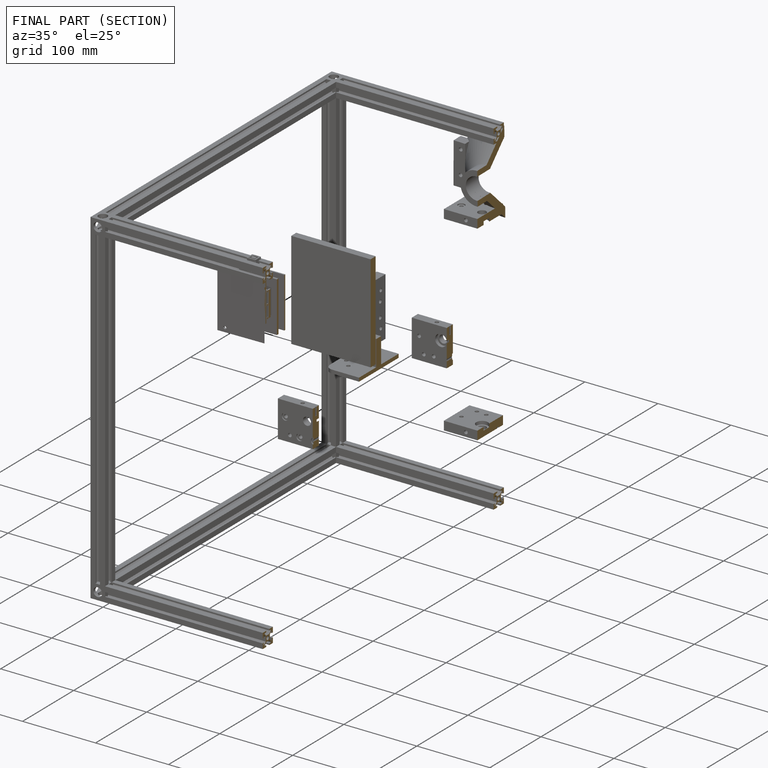
[diagram: finished part — half-section view (interior)]
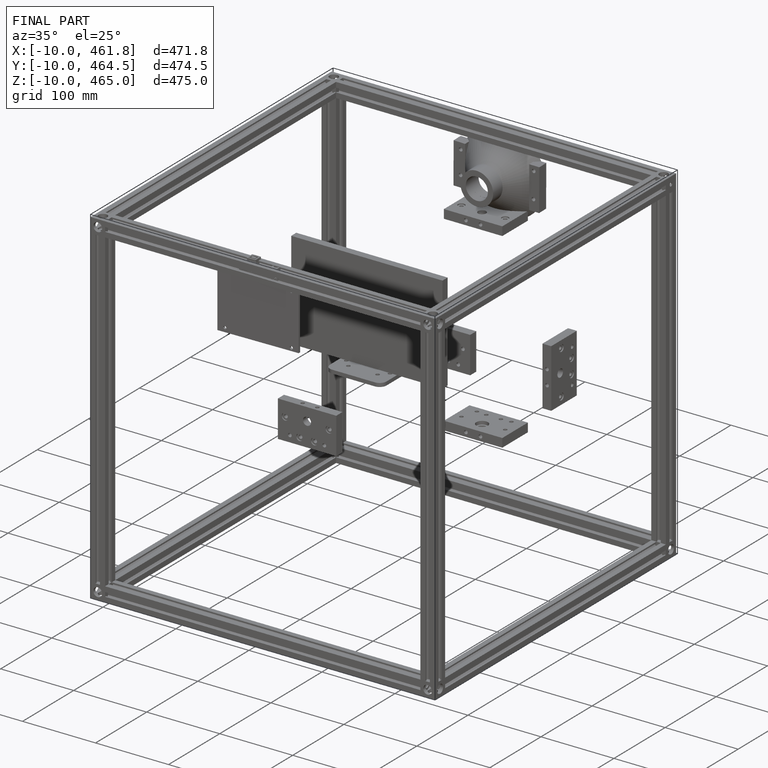
[diagram: finished part — iso view with bounding-box wireframe]
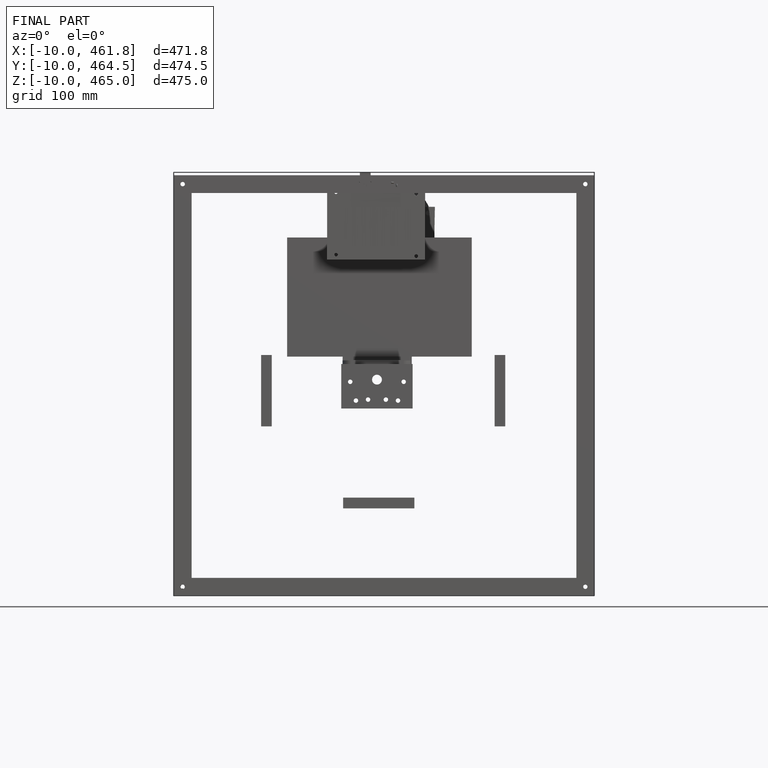
[diagram: finished part — front view with bounding-box wireframe]
